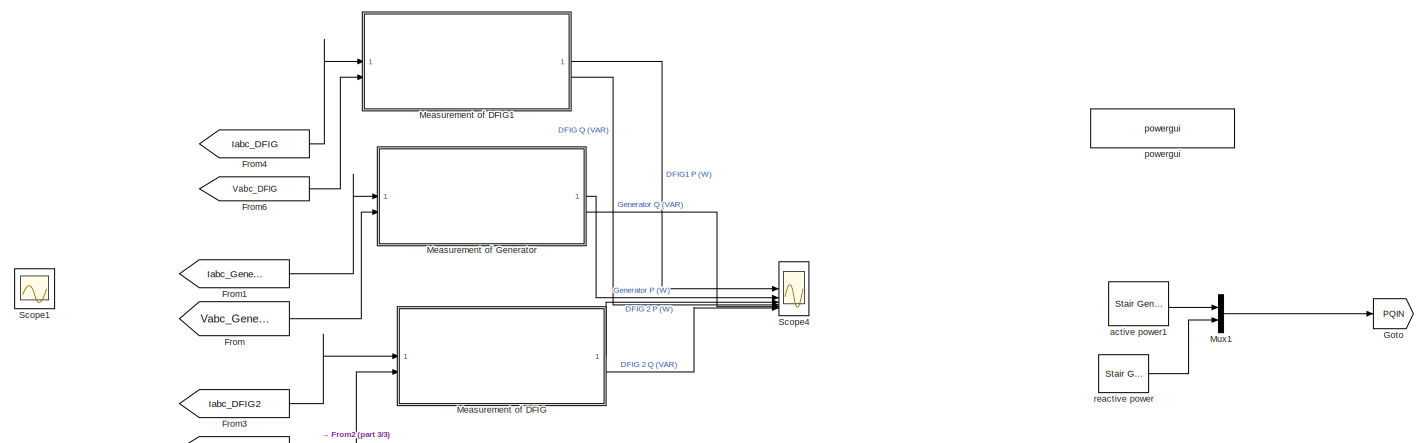
[diagram: root canvas - part 1/3, top left region]
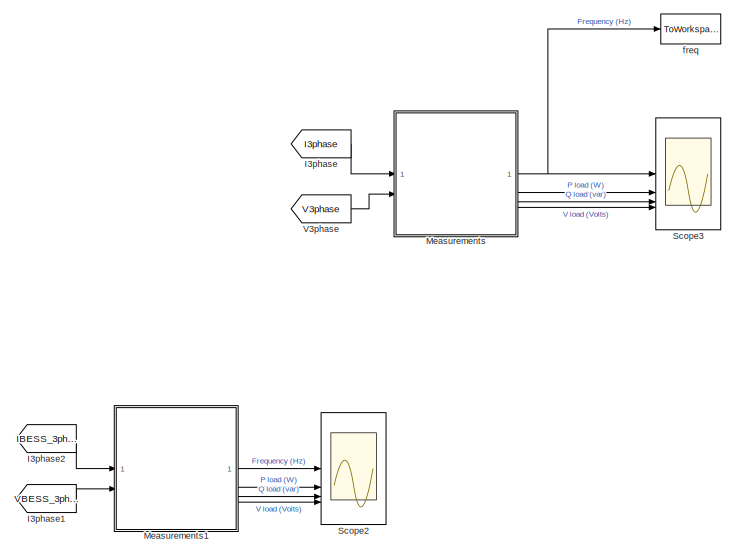
[diagram: root canvas - part 2/3, middle right region]
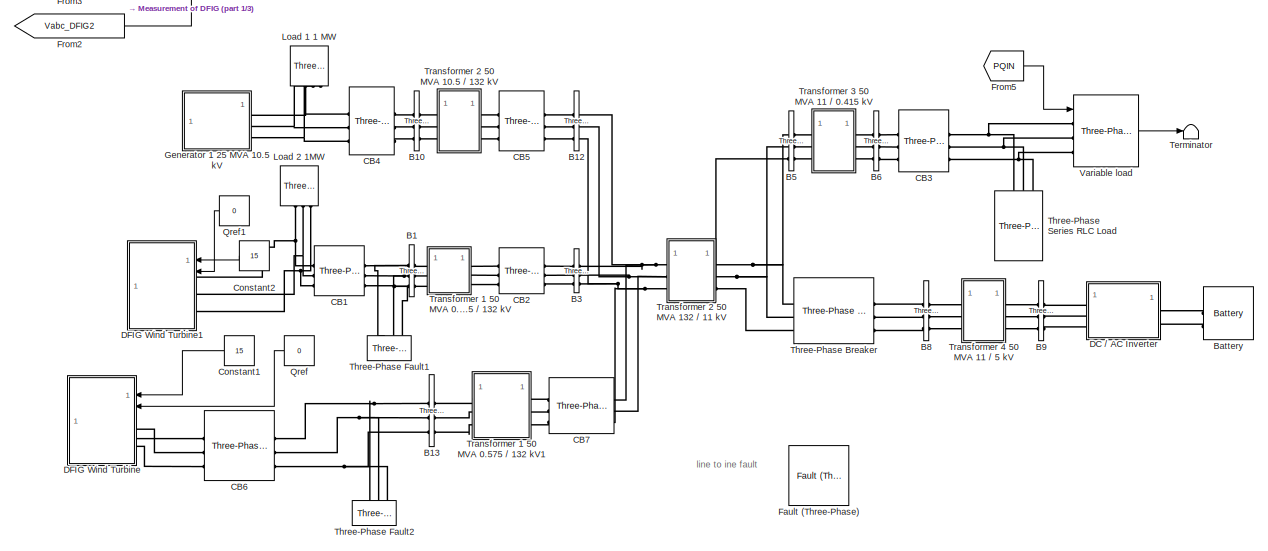
[diagram: root canvas - part 3/3, bottom center region]
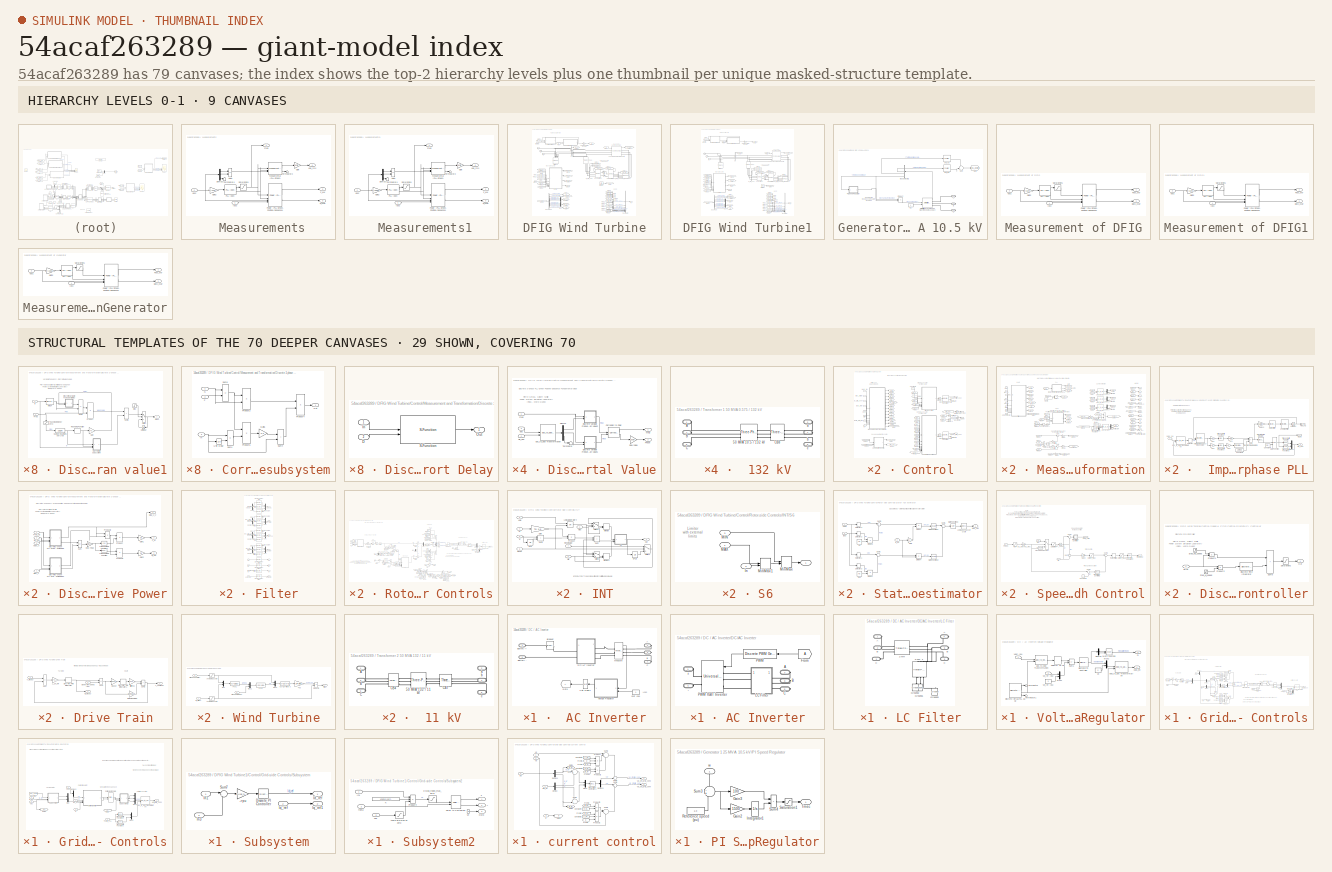
[diagram: thumbnail index - top-2 hierarchy levels (9 canvases) + 29 structural-template representatives of the remaining 70 canvases]
MODEL slx_54acaf263289
KIND model
CONFIG AbsTol = auto
CONFIG EnableMultiTasking = on
CONFIG FixedStep = auto
CONFIG MaxStep = auto
CONFIG MinStep = auto
CONFIG PreLoadFcn = assignin('base','Ts',[2e-6])
CONFIG RelTol = 1e-2
CONFIG SampleTimeConstraint = Unconstrained
CONFIG SolverName = ode45
CONFIG StartTime = 0.0
CONFIG StopTime = 1.05
BLOCK [SubSystem]  Measurements
BLOCK [Sum]  Measurements/Add1
  IconShape = rectangular
  Inputs = +-
BLOCK [Demux]  Measurements/Demux1
  Outputs = 3
BLOCK [Outport]  Measurements/Freq
BLOCK [Reference]  Measurements/Fundamental (PLL-Driven)  REF=spsFundamentalPLLDrivenLib/Fundamental
(PLL-Driven)
  SourceBlock = spsFundamentalPLLDrivenLib/Fundamental\n(PLL-Driven)
  SourceType = Fundamental (PLL-Driven)
BLOCK [Gain]  Measurements/Gain
  Gain = 1/sqrt(2)
BLOCK [Gain]  Measurements/Gain2
  Gain = 1/(415*sqrt(2)/sqrt(3))
BLOCK [Inport]  Measurements/Ipcc
BLOCK [Reference]  Measurements/PLL (3ph)  REF=spsPLL3phLib/PLL
(3ph)
  SourceBlock = spsPLL3phLib/PLL\n(3ph)
  SourceType = PLL (3ph)
BLOCK [Outport]  Measurements/P_kW
  Port = 2
BLOCK [Reference]  Measurements/Power (PLL-Driven, Positive-Sequence)  REF=spsPowerPLLDrivenPositiveSequenceLib/Power
(PLL-Driven,
Positive-Sequence)
  SourceBlock = spsPowerPLLDrivenPositiveSequenceLib/Power\n(PLL-Driven,\nPositive-Sequence)
  SourceType = Power (PLL-Driven, Positive-Sequence)
BLOCK [Outport]  Measurements/Q_kvar
  Port = 3
BLOCK [Saturate]  Measurements/Saturation1
  LowerLimit = 45
  UpperLimit = 55
BLOCK [Terminator]  Measurements/Terminator2
BLOCK [Terminator]  Measurements/Terminator4
BLOCK [Outport]  Measurements/Vab_rms
  Port = 4
BLOCK [Inport]  Measurements/Vpcc
  Port = 2
BLOCK [SubSystem]  Measurements1
BLOCK [Sum]  Measurements1/Add1
  IconShape = rectangular
  Inputs = +-
BLOCK [Demux]  Measurements1/Demux1
  Outputs = 3
BLOCK [Outport]  Measurements1/Freq
BLOCK [Reference]  Measurements1/Fundamental (PLL-Driven)  REF=spsFundamentalPLLDrivenLib/Fundamental
(PLL-Driven)
  SourceBlock = spsFundamentalPLLDrivenLib/Fundamental\n(PLL-Driven)
  SourceType = Fundamental (PLL-Driven)
BLOCK [Gain]  Measurements1/Gain
  Gain = 1/sqrt(2)
BLOCK [Gain]  Measurements1/Gain2
  Gain = 1/(5000*sqrt(2)/sqrt(3))
BLOCK [Inport]  Measurements1/Ipcc
BLOCK [Reference]  Measurements1/PLL (3ph)  REF=spsPLL3phLib/PLL
(3ph)
  SourceBlock = spsPLL3phLib/PLL\n(3ph)
  SourceType = PLL (3ph)
BLOCK [Outport]  Measurements1/P_kW
  Port = 2
BLOCK [Reference]  Measurements1/Power (PLL-Driven, Positive-Sequence)  REF=spsPowerPLLDrivenPositiveSequenceLib/Power
(PLL-Driven,
Positive-Sequence)
  SourceBlock = spsPowerPLLDrivenPositiveSequenceLib/Power\n(PLL-Driven,\nPositive-Sequence)
  SourceType = Power (PLL-Driven, Positive-Sequence)
BLOCK [Outport]  Measurements1/Q_kvar
  Port = 3
BLOCK [Saturate]  Measurements1/Saturation1
  LowerLimit = 45
  UpperLimit = 55
BLOCK [Terminator]  Measurements1/Terminator2
BLOCK [Terminator]  Measurements1/Terminator4
BLOCK [Outport]  Measurements1/Vab_rms
  Port = 4
BLOCK [Inport]  Measurements1/Vpcc
  Port = 2
BLOCK [Reference] B1   REF=spsThreePhaseVIMeasurementLib/Three-Phase
V-I Measurement
  LibrarySourceBlock = sps_lib/Sensors and Measurements/Three-Phase\nV-I Measurement
  SourceBlock = spsThreePhaseVIMeasurementLib/Three-Phase\nV-I Measurement
  SourceType = Three-Phase VI Measurement
BLOCK [Reference] B10  REF=spsThreePhaseVIMeasurementLib/Three-Phase
V-I Measurement
  LibrarySourceBlock = sps_lib/Sensors and Measurements/Three-Phase\nV-I Measurement
  SourceBlock = spsThreePhaseVIMeasurementLib/Three-Phase\nV-I Measurement
  SourceType = Three-Phase VI Measurement
BLOCK [Reference] B12  REF=spsThreePhaseVIMeasurementLib/Three-Phase
V-I Measurement
  LibrarySourceBlock = sps_lib/Sensors and Measurements/Three-Phase\nV-I Measurement
  SourceBlock = spsThreePhaseVIMeasurementLib/Three-Phase\nV-I Measurement
  SourceType = Three-Phase VI Measurement
BLOCK [Reference] B13  REF=spsThreePhaseVIMeasurementLib/Three-Phase
V-I Measurement
  LibrarySourceBlock = sps_lib/Sensors and Measurements/Three-Phase\nV-I Measurement
  SourceBlock = spsThreePhaseVIMeasurementLib/Three-Phase\nV-I Measurement
  SourceType = Three-Phase VI Measurement
BLOCK [Reference] B3   REF=spsThreePhaseVIMeasurementLib/Three-Phase
V-I Measurement
  LibrarySourceBlock = sps_lib/Sensors and Measurements/Three-Phase\nV-I Measurement
  SourceBlock = spsThreePhaseVIMeasurementLib/Three-Phase\nV-I Measurement
  SourceType = Three-Phase VI Measurement
BLOCK [Reference] B5  REF=spsThreePhaseVIMeasurementLib/Three-Phase
V-I Measurement
  LibrarySourceBlock = sps_lib/Sensors and Measurements/Three-Phase\nV-I Measurement
  SourceBlock = spsThreePhaseVIMeasurementLib/Three-Phase\nV-I Measurement
  SourceType = Three-Phase VI Measurement
BLOCK [Reference] B6  REF=spsThreePhaseVIMeasurementLib/Three-Phase
V-I Measurement
  LibrarySourceBlock = sps_lib/Sensors and Measurements/Three-Phase\nV-I Measurement
  SourceBlock = spsThreePhaseVIMeasurementLib/Three-Phase\nV-I Measurement
  SourceType = Three-Phase VI Measurement
BLOCK [Reference] B8  REF=spsThreePhaseVIMeasurementLib/Three-Phase
V-I Measurement
  LibrarySourceBlock = sps_lib/Sensors and Measurements/Three-Phase\nV-I Measurement
  SourceBlock = spsThreePhaseVIMeasurementLib/Three-Phase\nV-I Measurement
  SourceType = Three-Phase VI Measurement
BLOCK [Reference] B9  REF=spsThreePhaseVIMeasurementLib/Three-Phase
V-I Measurement
  LibrarySourceBlock = sps_lib/Sensors and Measurements/Three-Phase\nV-I Measurement
  SourceBlock = spsThreePhaseVIMeasurementLib/Three-Phase\nV-I Measurement
  SourceType = Three-Phase VI Measurement
BLOCK [Reference] Battery  REF=spsBatteryLib/Battery
  LibrarySourceBlock = electricdrivelib/Extra Sources/Battery
  SourceBlock = spsBatteryLib/Battery
  SourceType = Battery
BLOCK [Reference] CB1  REF=spsThreePhaseBreakerLib/Three-Phase Breaker
  LibrarySourceBlock = sps_lib/Power Grid Elements/Three-Phase Breaker
  SourceBlock = spsThreePhaseBreakerLib/Three-Phase Breaker
  SourceType = Three-Phase Breaker
BLOCK [Reference] CB2  REF=spsThreePhaseBreakerLib/Three-Phase Breaker
  LibrarySourceBlock = sps_lib/Power Grid Elements/Three-Phase Breaker
  SourceBlock = spsThreePhaseBreakerLib/Three-Phase Breaker
  SourceType = Three-Phase Breaker
BLOCK [Reference] CB3  REF=spsThreePhaseBreakerLib/Three-Phase Breaker
  LibrarySourceBlock = sps_lib/Power Grid Elements/Three-Phase Breaker
  NameLocation = top
  SourceBlock = spsThreePhaseBreakerLib/Three-Phase Breaker
  SourceType = Three-Phase Breaker
BLOCK [Reference] CB4  REF=spsThreePhaseBreakerLib/Three-Phase Breaker
  LibrarySourceBlock = sps_lib/Power Grid Elements/Three-Phase Breaker
  SourceBlock = spsThreePhaseBreakerLib/Three-Phase Breaker
  SourceType = Three-Phase Breaker
BLOCK [Reference] CB5  REF=spsThreePhaseBreakerLib/Three-Phase Breaker
  LibrarySourceBlock = sps_lib/Power Grid Elements/Three-Phase Breaker
  SourceBlock = spsThreePhaseBreakerLib/Three-Phase Breaker
  SourceType = Three-Phase Breaker
BLOCK [Reference] CB6  REF=spsThreePhaseBreakerLib/Three-Phase Breaker
  LibrarySourceBlock = sps_lib/Power Grid Elements/Three-Phase Breaker
  SourceBlock = spsThreePhaseBreakerLib/Three-Phase Breaker
  SourceType = Three-Phase Breaker
BLOCK [Reference] CB7  REF=spsThreePhaseBreakerLib/Three-Phase Breaker
  LibrarySourceBlock = sps_lib/Power Grid Elements/Three-Phase Breaker
  SourceBlock = spsThreePhaseBreakerLib/Three-Phase Breaker
  SourceType = Three-Phase Breaker
BLOCK [Constant] Constant1
  Value = 15
BLOCK [Constant] Constant2
  Value = 15
BLOCK [SubSystem] DC // AC Inverter
BLOCK [PMIOPort] DC // AC Inverter/A
  Port = 2
  Side = Right
BLOCK [PMIOPort] DC // AC Inverter/B
  Port = 3
  Side = Right
BLOCK [PMIOPort] DC // AC Inverter/Battery +
  Side = Left
BLOCK [PMIOPort] DC // AC Inverter/Battery -
  Port = 5
  Side = Left
BLOCK [Reference] DC // AC Inverter/Breaker  REF=spsBreakerLib/Breaker
  LibrarySourceBlock = sps_lib/Power Grid Elements/Breaker
  SourceBlock = spsBreakerLib/Breaker
  SourceType = Breaker
BLOCK [PMIOPort] DC // AC Inverter/C
  Port = 4
  Side = Right
BLOCK [SubSystem] DC // AC Inverter/DC//AC Inverter
BLOCK [PMIOPort] DC // AC Inverter/DC//AC Inverter/+
  Side = Left
BLOCK [PMIOPort] DC // AC Inverter/DC//AC Inverter/-
  Port = 4
  Side = Left
BLOCK [PMIOPort] DC // AC Inverter/DC//AC Inverter/A
  Port = 2
  Side = Right
BLOCK [PMIOPort] DC // AC Inverter/DC//AC Inverter/B
  Port = 3
  Side = Right
BLOCK [PMIOPort] DC // AC Inverter/DC//AC Inverter/C
  Port = 5
  Side = Right
BLOCK [From] DC // AC Inverter/DC//AC Inverter/From
  IconDisplay = Signal name
  TagVisibility = global
BLOCK [SubSystem] DC // AC Inverter/DC//AC Inverter/LC Filter
BLOCK [Reference] DC // AC Inverter/DC//AC Inverter/LC Filter/2 mF 1  REF=spsThreePhaseSeriesRLCBranchLib/Three-Phase
Series RLC Branch
  AttributesFormatString = \n
  LibrarySourceBlock = sps_lib/Passives/Three-Phase\nSeries RLC Branch
  NameLocation = left
  SourceBlock = spsThreePhaseSeriesRLCBranchLib/Three-Phase\nSeries RLC Branch
  SourceType = Three-Phase Series RLC Branch
BLOCK [Reference] DC // AC Inverter/DC//AC Inverter/LC Filter/2 mH   REF=spsThreePhaseSeriesRLCBranchLib/Three-Phase
Series RLC Branch
  AttributesFormatString = \n
  LibrarySourceBlock = sps_lib/Passives/Three-Phase\nSeries RLC Branch
  SourceBlock = spsThreePhaseSeriesRLCBranchLib/Three-Phase\nSeries RLC Branch
  SourceType = Three-Phase Series RLC Branch
BLOCK [PMIOPort] DC // AC Inverter/DC//AC Inverter/LC Filter/A
  Side = Left
BLOCK [PMIOPort] DC // AC Inverter/DC//AC Inverter/LC Filter/A 
  Port = 4
  Side = Right
BLOCK [PMIOPort] DC // AC Inverter/DC//AC Inverter/LC Filter/B
  Port = 2
  Side = Left
BLOCK [PMIOPort] DC // AC Inverter/DC//AC Inverter/LC Filter/B 
  Port = 5
  Side = Right
BLOCK [PMIOPort] DC // AC Inverter/DC//AC Inverter/LC Filter/C
  Port = 3
  Side = Left
BLOCK [PMIOPort] DC // AC Inverter/DC//AC Inverter/LC Filter/C 
  Port = 6
  Side = Right
BLOCK [Reference] DC // AC Inverter/DC//AC Inverter/LC Filter/Ground1  REF=spsGroundLib/Ground
  LibrarySourceBlock = sps_lib/Utilities/Ground
  NameLocation = right
  SourceBlock = spsGroundLib/Ground
  SourceType = Ground
BLOCK [Reference] DC // AC Inverter/DC//AC Inverter/LC Filter/Ground2  REF=spsGroundLib/Ground
  LibrarySourceBlock = sps_lib/Utilities/Ground
  NameLocation = right
  SourceBlock = spsGroundLib/Ground
  SourceType = Ground
BLOCK [Reference] DC // AC Inverter/DC//AC Inverter/LC Filter/Ground3  REF=spsGroundLib/Ground
  LibrarySourceBlock = sps_lib/Utilities/Ground
  NameLocation = right
  SourceBlock = spsGroundLib/Ground
  SourceType = Ground
BLOCK [Reference] DC // AC Inverter/DC//AC Inverter/PWM  REF=powerlib_extras/Discrete 
Control Blocks/Discrete
PWM Generator
  SourceBlock = powerlib_extras/Discrete \nControl Blocks/Discrete\nPWM Generator
  SourceType = Discrete PWM Generator
BLOCK [Reference] DC // AC Inverter/DC//AC Inverter/PWM IGBT Inverter  REF=spsUniversalBridgeLib/Universal Bridge
  AttributesFormatString = \n
  LibrarySourceBlock = sps_lib/Power Electronics/Universal Bridge
  NameLocation = top
  SourceBlock = spsUniversalBridgeLib/Universal Bridge
  SourceType = Universal Bridge
BLOCK [Goto] DC // AC Inverter/Goto
  IconDisplay = Signal name
  TagVisibility = global
BLOCK [Reference] DC // AC Inverter/Measure  REF=spsThreePhaseVIMeasurementLib/Three-Phase
V-I Measurement
  LibrarySourceBlock = sps_lib/Sensors and Measurements/Three-Phase\nV-I Measurement
  SourceBlock = spsThreePhaseVIMeasurementLib/Three-Phase\nV-I Measurement
  SourceType = Three-Phase VI Measurement
BLOCK [UnitDelay] DC // AC Inverter/Unit Delay1
  HasFrameUpgradeWarning = on
  NameLocation = top
  SampleTime = Ts
BLOCK [SubSystem] DC // AC Inverter/Voltage Regulator
  NameLocation = top
BLOCK [Demux] DC // AC Inverter/Voltage Regulator/Demux
  DisplayOption = none
  Outputs = 2
BLOCK [Reference] DC // AC Inverter/Voltage Regulator/Discrete PI Controller  REF=powerlib_extras/Discrete 
Control Blocks/Discrete
PI Controller
  SourceBlock = powerlib_extras/Discrete \nControl Blocks/Discrete\nPI Controller
  SourceType = Discrete PI Controller
BLOCK [Reference] DC // AC Inverter/Voltage Regulator/Discrete Virtual PLL 50 Hz  REF=powerlib_extras/Discrete 
Control Blocks/Discrete
Virtual PLL
  SourceBlock = powerlib_extras/Discrete \nControl Blocks/Discrete\nVirtual PLL
  SourceType = Discrete Virtual PLL
BLOCK [Math] DC // AC Inverter/Voltage Regulator/Math Function
  Operator = hypot
  SignedPower = on
BLOCK [Mux] DC // AC Inverter/Voltage Regulator/Mux1
  DisplayOption = bar
  Inputs = 2
BLOCK [Mux] DC // AC Inverter/Voltage Regulator/Mux2
  DisplayOption = bar
  Inputs = 2
BLOCK [Selector] DC // AC Inverter/Voltage Regulator/Selector Vd Vq
  IndexOptions = Index vector (dialog)
  Indices = [1 2]
  InputPortWidth = 3
  OutputSizes = 1
BLOCK [Sum] DC // AC Inverter/Voltage Regulator/Sum1
  IconShape = rectangular
  InputSameDT = on
  Inputs = -+
  OutDataTypeStr = Inherit: Same as first input
  SaturateOnIntegerOverflow = on
BLOCK [Terminator] DC // AC Inverter/Voltage Regulator/Terminator
BLOCK [Terminator] DC // AC Inverter/Voltage Regulator/Terminator1
BLOCK [Constant] DC // AC Inverter/Voltage Regulator/V0
  Value = 0
BLOCK [Inport] DC // AC Inverter/Voltage Regulator/Vabc (pu)
BLOCK [Outport] DC // AC Inverter/Voltage Regulator/Vabc_inv
BLOCK [Inport] DC // AC Inverter/Voltage Regulator/Vd_ref (pu)
  Port = 2
BLOCK [Constant] DC // AC Inverter/Voltage Regulator/Vq_ref (pu)
  Value = 0
BLOCK [Reference] DC // AC Inverter/Voltage Regulator/abc_to_dq0 Transformation  REF=powerlib_extras/Measurements/abc_to_dq0
Transformation
  SourceBlock = powerlib_extras/Measurements/abc_to_dq0\nTransformation
  SourceType = abc to dq0 Transformation
BLOCK [Reference] DC // AC Inverter/Voltage Regulator/dq0_to_abc Transformation  REF=powerlib_extras/Measurements/dq0_to_abc
Transformation
  SourceBlock = powerlib_extras/Measurements/dq0_to_abc\nTransformation
  SourceType = dq0 to abc Transformation
BLOCK [Outport] DC // AC Inverter/Voltage Regulator/m
  Port = 2
BLOCK [Constant] DC // AC Inverter/Vref (pu) 
  NameLocation = top
BLOCK [SubSystem] DFIG Wind Turbine
  LoadFcn = %find_system(gcs,'FollowLinks', 'on', 'LookUnderMasks', 'all');
BLOCK [PMIOPort] DFIG Wind Turbine/A
  Side = Left
  Tag = PMCPort
BLOCK [Reference] DFIG Wind Turbine/Asynchronous Machine pu Units  REF=spsAsynchronousMachinepuUnitsLib/Asynchronous Machine
pu Units
  LibrarySourceBlock = sps_lib/Electrical Machines/Asynchronous Machine\npu Units
  SourceBlock = spsAsynchronousMachinepuUnitsLib/Asynchronous Machine\npu Units
  SourceType = Asynchronous Machine
BLOCK [PMIOPort] DFIG Wind Turbine/B
  Port = 2
  Side = Left
  Tag = PMCPort
BLOCK [Reference] DFIG Wind Turbine/B1  REF=spsThreePhaseVIMeasurementLib/Three-Phase
V-I Measurement
  LibrarySourceBlock = sps_lib/Sensors and Measurements/Three-Phase\nV-I Measurement
  SourceBlock = spsThreePhaseVIMeasurementLib/Three-Phase\nV-I Measurement
  SourceType = Three-Phase VI Measurement
BLOCK [Reference] DFIG Wind Turbine/B_grid_conv  REF=spsThreePhaseVIMeasurementLib/Three-Phase
V-I Measurement
  LibrarySourceBlock = sps_lib/Sensors and Measurements/Three-Phase\nV-I Measurement
  SourceBlock = spsThreePhaseVIMeasurementLib/Three-Phase\nV-I Measurement
  SourceType = Three-Phase VI Measurement
BLOCK [Reference] DFIG Wind Turbine/B_rotor_conv  REF=spsThreePhaseVIMeasurementLib/Three-Phase
V-I Measurement
  LibrarySourceBlock = sps_lib/Sensors and Measurements/Three-Phase\nV-I Measurement
  SourceBlock = spsThreePhaseVIMeasurementLib/Three-Phase\nV-I Measurement
  SourceType = Three-Phase VI Measurement
BLOCK [BusCreator] DFIG Wind Turbine/Bus Creator
  DisplayOption = bar
  InheritFromInputs = on
  Inputs = 13
BLOCK [BusSelector] DFIG Wind Turbine/Bus Selector
  OutputSignals = Mechanical.Rotor speed (wm),Mechanical.Rotor angle thetam (rad),Stator measurements.Stator current is_a (pu),Stator measurements.Stator current is_b (pu),Stator measurements.Stator current is_c (pu),Rotor measurements.Rotor current ir_a (pu),Rotor measurements.Rotor current ir_b (pu),Rotor measurements.Rotor current ir_c (pu),Mechanical.Electromagnetic torque Te (pu)
BLOCK [PMIOPort] DFIG Wind Turbine/C
  Port = 3
  Side = Left
  Tag = PMCPort
BLOCK [Reference] DFIG Wind Turbine/C1  REF=spsSeriesRLCBranchLib/Series RLC Branch
  LibrarySourceBlock = sps_lib/Passives/Series RLC Branch
  NameLocation = left
  SourceBlock = spsSeriesRLCBranchLib/Series RLC Branch
  SourceType = Series RLC Branch
BLOCK [Reference] DFIG Wind Turbine/Choke   REF=spsThreePhaseSeriesRLCBranchLib/Three-Phase
Series RLC Branch
  AttributesFormatString = \n
  LibrarySourceBlock = sps_lib/Passives/Three-Phase\nSeries RLC Branch
  NameLocation = left
  SourceBlock = spsThreePhaseSeriesRLCBranchLib/Three-Phase\nSeries RLC Branch
  SourceType = Three-Phase Series RLC Branch
BLOCK [SubSystem] DFIG Wind Turbine/Control
BLOCK [BusCreator] DFIG Wind Turbine/Control/Bus Creator
  DisplayOption = bar
  InheritFromInputs = on
  Inputs = 2
BLOCK [Constant] DFIG Wind Turbine/Control/Constant1
  Value = 0
BLOCK [Reference] DFIG Wind Turbine/Control/Discrete 3-phase PWM Generator  REF=powerlib_extras/Discrete 
Control Blocks/Discrete 3-phase
PWM Generator
  SourceBlock = powerlib_extras/Discrete \nControl Blocks/Discrete 3-phase\nPWM Generator
  SourceType = Discrete 3-phase PWM Generator (2- or 3-level)
BLOCK [Reference] DFIG Wind Turbine/Control/Discrete 3-phase PWM Generator   REF=powerlib_extras/Discrete 
Control Blocks/Discrete 3-phase
PWM Generator
  SourceBlock = powerlib_extras/Discrete \nControl Blocks/Discrete 3-phase\nPWM Generator
  SourceType = Discrete 3-phase PWM Generator (2- or 3-level)
BLOCK [From] DFIG Wind Turbine/Control/From1
  CloseFcn = tagdialog Close
  GotoTag = Idq_gc
BLOCK [From] DFIG Wind Turbine/Control/From10
  CloseFcn = tagdialog Close
  GotoTag = r_angle_transform
BLOCK [From] DFIG Wind Turbine/Control/From11
  CloseFcn = tagdialog Close
  GotoTag = Pitch_deg
BLOCK [From] DFIG Wind Turbine/Control/From12
  CloseFcn = tagdialog Close
  GotoTag = wr
BLOCK [From] DFIG Wind Turbine/Control/From13
  CloseFcn = tagdialog Close
  GotoTag = Qmeas
BLOCK [From] DFIG Wind Turbine/Control/From14
  CloseFcn = tagdialog Close
  GotoTag = Vmeas
BLOCK [From] DFIG Wind Turbine/Control/From16
  CloseFcn = tagdialog Close
  GotoTag = Pmeas
BLOCK [From] DFIG Wind Turbine/Control/From17
  CloseFcn = tagdialog Close
  GotoTag = Qmeas
BLOCK [From] DFIG Wind Turbine/Control/From18
  CloseFcn = tagdialog Close
  GotoTag = Vdqs
BLOCK [From] DFIG Wind Turbine/Control/From2
  CloseFcn = tagdialog Close
  GotoTag = Vdc_meas_V
BLOCK [From] DFIG Wind Turbine/Control/From20
  CloseFcn = tagdialog Close
  GotoTag = Idqr
BLOCK [From] DFIG Wind Turbine/Control/From21
  CloseFcn = tagdialog Close
  GotoTag = Idqs
BLOCK [From] DFIG Wind Turbine/Control/From22
  CloseFcn = tagdialog Close
  GotoTag = w
BLOCK [From] DFIG Wind Turbine/Control/From23
  CloseFcn = tagdialog Close
  GotoTag = Pmeas
BLOCK [From] DFIG Wind Turbine/Control/From3
  CloseFcn = tagdialog Close
  GotoTag = Vdc_meas_V
BLOCK [From] DFIG Wind Turbine/Control/From4
  CloseFcn = tagdialog Close
  GotoTag = Vdqs
BLOCK [From] DFIG Wind Turbine/Control/From5
  CloseFcn = tagdialog Close
  GotoTag = w
BLOCK [From] DFIG Wind Turbine/Control/From6
  CloseFcn = tagdialog Close
  GotoTag = wr
BLOCK [From] DFIG Wind Turbine/Control/From7
  CloseFcn = tagdialog Close
  GotoTag = Tem_cmd
BLOCK [From] DFIG Wind Turbine/Control/From8
  CloseFcn = tagdialog Close
  GotoTag = Qref
BLOCK [From] DFIG Wind Turbine/Control/From9
  CloseFcn = tagdialog Close
  GotoTag = Theta_PLL
BLOCK [Goto] DFIG Wind Turbine/Control/Goto1
  GotoTag = Theta_PLL
BLOCK [Goto] DFIG Wind Turbine/Control/Goto10
  GotoTag = Idq_gc
BLOCK [Goto] DFIG Wind Turbine/Control/Goto11
  GotoTag = Idqs
BLOCK [Goto] DFIG Wind Turbine/Control/Goto12
  GotoTag = Idqr
BLOCK [Goto] DFIG Wind Turbine/Control/Goto13
  GotoTag = w
BLOCK [Goto] DFIG Wind Turbine/Control/Goto14
  GotoTag = Vmeas
BLOCK [Goto] DFIG Wind Turbine/Control/Goto15
  GotoTag = Pmeas
BLOCK [Goto] DFIG Wind Turbine/Control/Goto16
  GotoTag = Pitch_deg
BLOCK [Goto] DFIG Wind Turbine/Control/Goto17
  GotoTag = Qmeas
BLOCK [Goto] DFIG Wind Turbine/Control/Goto2
  GotoTag = Vdc_meas_V
BLOCK [Goto] DFIG Wind Turbine/Control/Goto4
  GotoTag = wr
BLOCK [Goto] DFIG Wind Turbine/Control/Goto5
  GotoTag = Tem_cmd
BLOCK [Goto] DFIG Wind Turbine/Control/Goto6
  GotoTag = Qref
BLOCK [Goto] DFIG Wind Turbine/Control/Goto7
  GotoTag = r_angle_transform
BLOCK [Goto] DFIG Wind Turbine/Control/Goto9
  GotoTag = Vdqs
BLOCK [SubSystem] DFIG Wind Turbine/Control/Grid-side Controls
BLOCK [Gain] DFIG Wind Turbine/Control/Grid-side Controls/->pu
  Gain = 1/Vdc_nom
BLOCK [Saturate] DFIG Wind Turbine/Control/Grid-side Controls/0-Mod_index_max_grid
  LowerLimit = 0
  NameLocation = top
  UpperLimit = Mod_index_max_grid
BLOCK [Saturate] DFIG Wind Turbine/Control/Grid-side Controls/Avoid division by zero
  LowerLimit = 1e-6
  UpperLimit = inf
BLOCK [Reference] DFIG Wind Turbine/Control/Grid-side Controls/Cartesian to Polar1  REF=simulink_extras/Transformations/Cartesian to
Polar
  SourceBlock = simulink_extras/Transformations/Cartesian to\nPolar
  SourceType = Cart2Polar
BLOCK [Constant] DFIG Wind Turbine/Control/Grid-side Controls/Constant1
  Value = L_RL
BLOCK [Constant] DFIG Wind Turbine/Control/Grid-side Controls/Constant2
  Value = L_RL
BLOCK [Constant] DFIG Wind Turbine/Control/Grid-side Controls/Constant3
  Value = R_RL
BLOCK [Constant] DFIG Wind Turbine/Control/Grid-side Controls/Constant4
  Value = R_RL
BLOCK [Demux] DFIG Wind Turbine/Control/Grid-side Controls/Demux
  DisplayOption = none
  Outputs = 2
BLOCK [Demux] DFIG Wind Turbine/Control/Grid-side Controls/Demux1
  DisplayOption = none
  Outputs = 2
BLOCK [Demux] DFIG Wind Turbine/Control/Grid-side Controls/Demux2
  DisplayOption = none
  Outputs = 2
BLOCK [Demux] DFIG Wind Turbine/Control/Grid-side Controls/Demux3
  DisplayOption = none
  Outputs = 2
BLOCK [Reference] DFIG Wind Turbine/Control/Grid-side Controls/Discrete PI Controller  REF=powerlib_extras/Discrete 
Control Blocks/Discrete
PI Controller
  SourceBlock = powerlib_extras/Discrete \nControl Blocks/Discrete\nPI Controller
  SourceType = Discrete PI Controller
BLOCK [Reference] DFIG Wind Turbine/Control/Grid-side Controls/Discrete PI Controller1  REF=powerlib_extras/Discrete 
Control Blocks/Discrete
PI Controller
  SourceBlock = powerlib_extras/Discrete \nControl Blocks/Discrete\nPI Controller
  SourceType = Discrete PI Controller
BLOCK [From] DFIG Wind Turbine/Control/Grid-side Controls/From10
  CloseFcn = tagdialog Close
  GotoTag = id_ref
BLOCK [From] DFIG Wind Turbine/Control/Grid-side Controls/From2
  CloseFcn = tagdialog Close
  GotoTag = w
BLOCK [From] DFIG Wind Turbine/Control/Grid-side Controls/From3
  CloseFcn = tagdialog Close
  GotoTag = iq_ref
BLOCK [From] DFIG Wind Turbine/Control/Grid-side Controls/From4
  CloseFcn = tagdialog Close
  GotoTag = iq_ref
BLOCK [From] DFIG Wind Turbine/Control/Grid-side Controls/From5
  CloseFcn = tagdialog Close
  GotoTag = w
BLOCK [From] DFIG Wind Turbine/Control/Grid-side Controls/From6
  CloseFcn = tagdialog Close
  GotoTag = id_ref
BLOCK [From] DFIG Wind Turbine/Control/Grid-side Controls/From7
  CloseFcn = tagdialog Close
  GotoTag = Vdc
BLOCK [Goto] DFIG Wind Turbine/Control/Grid-side Controls/Goto2
  GotoTag = iq_ref
BLOCK [Goto] DFIG Wind Turbine/Control/Grid-side Controls/Goto3
  GotoTag = id_ref
BLOCK [Goto] DFIG Wind Turbine/Control/Grid-side Controls/Goto4
  GotoTag = w
BLOCK [Goto] DFIG Wind Turbine/Control/Grid-side Controls/Goto5
  GotoTag = Vdc
BLOCK [Inport] DFIG Wind Turbine/Control/Grid-side Controls/Idq_gc
  Port = 2
BLOCK [Inport] DFIG Wind Turbine/Control/Grid-side Controls/Iq_ref
BLOCK [Constant] DFIG Wind Turbine/Control/Grid-side Controls/K
  Value = Vnom*2*sqrt(2/3)
BLOCK [Mux] DFIG Wind Turbine/Control/Grid-side Controls/Mux
  DisplayOption = bar
  Inputs = 2
BLOCK [Mux] DFIG Wind Turbine/Control/Grid-side Controls/Mux2
  DisplayOption = bar
  Inputs = 2
BLOCK [Mux] DFIG Wind Turbine/Control/Grid-side Controls/Mux4
  DisplayOption = bar
  Inputs = 3
BLOCK [Mux] DFIG Wind Turbine/Control/Grid-side Controls/Mux5
  DisplayOption = bar
  Inputs = 2
BLOCK [Reference] DFIG Wind Turbine/Control/Grid-side Controls/Polar to Cartesian  REF=simulink_extras/Transformations/Polar to
Cartesian
  SourceBlock = simulink_extras/Transformations/Polar to\nCartesian
  SourceType = Polar2Cart
BLOCK [Product] DFIG Wind Turbine/Control/Grid-side Controls/Product
  InputSameDT = on
  Inputs = 3
  OutDataTypeStr = Inherit: Same as first input
  SaturateOnIntegerOverflow = on
BLOCK [Product] DFIG Wind Turbine/Control/Grid-side Controls/Product1
  InputSameDT = on
  Inputs = 3
  OutDataTypeStr = Inherit: Same as first input
  SaturateOnIntegerOverflow = on
BLOCK [Product] DFIG Wind Turbine/Control/Grid-side Controls/Product2
  InputSameDT = on
  OutDataTypeStr = Inherit: Same as first input
  SaturateOnIntegerOverflow = on
BLOCK [Product] DFIG Wind Turbine/Control/Grid-side Controls/Product3
  InputSameDT = on
  OutDataTypeStr = Inherit: Same as first input
  SaturateOnIntegerOverflow = on
BLOCK [Product] DFIG Wind Turbine/Control/Grid-side Controls/Product4
  InputSameDT = on
  Inputs = **/
  OutDataTypeStr = Inherit: Same as first input
  SaturateOnIntegerOverflow = on
BLOCK [Sum] DFIG Wind Turbine/Control/Grid-side Controls/Sum1
  InputSameDT = on
  Inputs = +-
  OutDataTypeStr = Inherit: Same as first input
  SaturateOnIntegerOverflow = on
BLOCK [Sum] DFIG Wind Turbine/Control/Grid-side Controls/Sum2
  InputSameDT = on
  Inputs = -+|
  OutDataTypeStr = Inherit: Same as first input
  SaturateOnIntegerOverflow = on
BLOCK [Sum] DFIG Wind Turbine/Control/Grid-side Controls/Sum3
  InputSameDT = on
  Inputs = ||++-
  OutDataTypeStr = Inherit: Same as first input
  SaturateOnIntegerOverflow = on
BLOCK [Sum] DFIG Wind Turbine/Control/Grid-side Controls/Sum4
  InputSameDT = on
  Inputs = |+-
  OutDataTypeStr = Inherit: Same as first input
  SaturateOnIntegerOverflow = on
BLOCK [Sum] DFIG Wind Turbine/Control/Grid-side Controls/Sum5
  InputSameDT = on
  Inputs = |--+
  OutDataTypeStr = Inherit: Same as first input
  SaturateOnIntegerOverflow = on
BLOCK [Sum] DFIG Wind Turbine/Control/Grid-side Controls/Sum6
  InputSameDT = on
  Inputs = |-+
  OutDataTypeStr = Inherit: Same as first input
  SaturateOnIntegerOverflow = on
BLOCK [Sum] DFIG Wind Turbine/Control/Grid-side Controls/Sum7
  InputSameDT = on
  Inputs = |+-
  OutDataTypeStr = Inherit: Same as first input
  SaturateOnIntegerOverflow = on
BLOCK [Inport] DFIG Wind Turbine/Control/Grid-side Controls/Theta_PLL
  Port = 6
BLOCK [Trigonometry] DFIG Wind Turbine/Control/Grid-side Controls/Trigonometric Function2
BLOCK [Trigonometry] DFIG Wind Turbine/Control/Grid-side Controls/Trigonometric Function3
  Operator = cos
BLOCK [Outport] DFIG Wind Turbine/Control/Grid-side Controls/Uctrl_grid_conv
BLOCK [Constant] DFIG Wind Turbine/Control/Grid-side Controls/V0
  Value = 0
BLOCK [Inport] DFIG Wind Turbine/Control/Grid-side Controls/Vdc
  Port = 5
BLOCK [Constant] DFIG Wind Turbine/Control/Grid-side Controls/Vdc_ref (V)
  NameLocation = top
  Value = Vdc_nom
BLOCK [Inport] DFIG Wind Turbine/Control/Grid-side Controls/Vdqs
  Port = 4
BLOCK [Reference] DFIG Wind Turbine/Control/Grid-side Controls/dq0_to_abc Transformation  REF=powerlib_extras/Measurements/dq0_to_abc
Transformation
  SourceBlock = powerlib_extras/Measurements/dq0_to_abc\nTransformation
  SourceType = dq0 to abc Transformation
BLOCK [Inport] DFIG Wind Turbine/Control/Grid-side Controls/w
  Port = 3
BLOCK [Inport] DFIG Wind Turbine/Control/Iabc_grid_conv
  Port = 3
BLOCK [Inport] DFIG Wind Turbine/Control/Iabc_rotor
  Port = 4
BLOCK [Inport] DFIG Wind Turbine/Control/Iabc_stator
  Port = 2
BLOCK [SubSystem] DFIG Wind Turbine/Control/Measurement and Transformation
BLOCK [Reference] DFIG Wind Turbine/Control/Measurement and Transformation/   abc_to_dq0      REF=powerlib_extras/Measurements/abc_to_dq0
Transformation
  SourceBlock = powerlib_extras/Measurements/abc_to_dq0\nTransformation
  SourceType = abc to dq0 Transformation
BLOCK [SubSystem] DFIG Wind Turbine/Control/Measurement and Transformation/ Improved Discrete 3-phase PLL
  OpenFcn = power_openblockproxy();
BLOCK [Reference] DFIG Wind Turbine/Control/Measurement and Transformation/ Improved Discrete 3-phase PLL/2nd-Order Filter  REF=powerlib_extras/Discrete 
Control Blocks/Discrete 
2nd-Order
Filter
  SourceBlock = powerlib_extras/Discrete \nControl Blocks/Discrete \n2nd-Order\nFilter
  SourceType = Discrete 2nd-Order Filter
BLOCK [Constant] DFIG Wind Turbine/Control/Measurement and Transformation/ Improved Discrete 3-phase PLL/Constant1
  NameLocation = top
  Value = 2*pi*Finit
BLOCK [Constant] DFIG Wind Turbine/Control/Measurement and Transformation/ Improved Discrete 3-phase PLL/Constant4
  NameLocation = top
  Value = 2*pi
BLOCK [DiscreteIntegrator] DFIG Wind Turbine/Control/Measurement and Transformation/ Improved Discrete 3-phase PLL/Discrete-Time Integrator
  ICPrevOutput = DiscIntNeverNeededParam
  ICPrevScaledInput = DiscIntNeverNeededParam
  SampleTime = Ts
BLOCK [DiscreteIntegrator] DFIG Wind Turbine/Control/Measurement and Transformation/ Improved Discrete 3-phase PLL/Discrete-Time Integrator1
  ICPrevOutput = DiscIntNeverNeededParam
  ICPrevScaledInput = DiscIntNeverNeededParam
  LimitOutput = on
  LowerSaturationLimit = -2*pi*5
  SampleTime = Ts
  UpperSaturationLimit = 2*pi*5
  gainval = 1
BLOCK [Outport] DFIG Wind Turbine/Control/Measurement and Transformation/ Improved Discrete 3-phase PLL/Freq_Hz
BLOCK [Gain] DFIG Wind Turbine/Control/Measurement and Transformation/ Improved Discrete 3-phase PLL/Gain10
  Gain = 1/2/pi
  OutDataTypeStr = Inherit: Same as input
  ParamDataTypeStr = Inherit: Same as input
  SaturateOnIntegerOverflow = on
BLOCK [Gain] DFIG Wind Turbine/Control/Measurement and Transformation/ Improved Discrete 3-phase PLL/Kp1
  Gain = Kp2
  OutDataTypeStr = Inherit: Same as input
  ParamDataTypeStr = Inherit: Same as input
  SaturateOnIntegerOverflow = on
BLOCK [Gain] DFIG Wind Turbine/Control/Measurement and Transformation/ Improved Discrete 3-phase PLL/Kp2
  Gain = Ki2
  OutDataTypeStr = Inherit: Same as input
  ParamDataTypeStr = Inherit: Same as input
  SaturateOnIntegerOverflow = on
BLOCK [Gain] DFIG Wind Turbine/Control/Measurement and Transformation/ Improved Discrete 3-phase PLL/Kp3
  Gain = Ki1
  OutDataTypeStr = Inherit: Same as input
  ParamDataTypeStr = Inherit: Same as input
  SaturateOnIntegerOverflow = on
BLOCK [Gain] DFIG Wind Turbine/Control/Measurement and Transformation/ Improved Discrete 3-phase PLL/Kp4
  Gain = Kp1
  OutDataTypeStr = Inherit: Same as input
  ParamDataTypeStr = Inherit: Same as input
  SaturateOnIntegerOverflow = on
BLOCK [Math] DFIG Wind Turbine/Control/Measurement and Transformation/ Improved Discrete 3-phase PLL/Math Function
  Operator = mod
  SignedPower = on
BLOCK [Mux] DFIG Wind Turbine/Control/Measurement and Transformation/ Improved Discrete 3-phase PLL/Mux2
  DisplayOption = bar
  Inputs = 2
BLOCK [Reference] DFIG Wind Turbine/Control/Measurement and Transformation/ Improved Discrete 3-phase PLL/Rate Limiter  REF=powerlib_extras/Discrete 
Control Blocks/Discrete
Rate Limiter
  SourceBlock = powerlib_extras/Discrete \nControl Blocks/Discrete\nRate Limiter
  SourceType = Discrete Rate Limiter
BLOCK [Selector] DFIG Wind Turbine/Control/Measurement and Transformation/ Improved Discrete 3-phase PLL/Selector
  IndexOptions = Index vector (dialog)
  Indices = 2
  InputPortWidth = 3
  OutputSizes = 1
BLOCK [Outport] DFIG Wind Turbine/Control/Measurement and Transformation/ Improved Discrete 3-phase PLL/Sin_Cos
  Port = 3
BLOCK [Sum] DFIG Wind Turbine/Control/Measurement and Transformation/ Improved Discrete 3-phase PLL/Sum
  IconShape = rectangular
  Inputs = +++
BLOCK [Trigonometry] DFIG Wind Turbine/Control/Measurement and Transformation/ Improved Discrete 3-phase PLL/Trigonometric Function
BLOCK [Trigonometry] DFIG Wind Turbine/Control/Measurement and Transformation/ Improved Discrete 3-phase PLL/Trigonometric Function1
  Operator = atan
BLOCK [Trigonometry] DFIG Wind Turbine/Control/Measurement and Transformation/ Improved Discrete 3-phase PLL/Trigonometric Function2
  Operator = cos
BLOCK [Trigonometry] DFIG Wind Turbine/Control/Measurement and Transformation/ Improved Discrete 3-phase PLL/Trigonometric Function3
  Operator = atan
BLOCK [UnitDelay] DFIG Wind Turbine/Control/Measurement and Transformation/ Improved Discrete 3-phase PLL/Unit Delay
  HasFrameUpgradeWarning = on
  InitialCondition = Finit
  SampleTime = Ts
BLOCK [Inport] DFIG Wind Turbine/Control/Measurement and Transformation/ Improved Discrete 3-phase PLL/Vabc_pu
  PortDimensions = 3
BLOCK [Reference] DFIG Wind Turbine/Control/Measurement and Transformation/ Improved Discrete 3-phase PLL/Variable Frequency Mean value  REF=powerlib_extras/Discrete
Measurements/Discrete
Variable Frequency
Mean value
  SourceBlock = powerlib_extras/Discrete\nMeasurements/Discrete\nVariable Frequency\nMean value
  SourceType = Discrete Variable-Frequency Mean Value
BLOCK [Reference] DFIG Wind Turbine/Control/Measurement and Transformation/ Improved Discrete 3-phase PLL/abc_to_dq0 Transformation  REF=powerlib_extras/Measurements/abc_to_dq0
Transformation
  SourceBlock = powerlib_extras/Measurements/abc_to_dq0\nTransformation
  SourceType = abc to dq0 Transformation
BLOCK [Outport] DFIG Wind Turbine/Control/Measurement and Transformation/ Improved Discrete 3-phase PLL/wt_rad
  Port = 2
BLOCK [Gain] DFIG Wind Turbine/Control/Measurement and Transformation/# pairs of poles
  Gain = p
  NameLocation = top
  OutDataTypeStr = Inherit: Same as input
  ParamDataTypeStr = Inherit: Same as input
  SaturateOnIntegerOverflow = on
BLOCK [Gain] DFIG Wind Turbine/Control/Measurement and Transformation/C_var_filter
  Gain = C_var_filter
  OutDataTypeStr = Inherit: Same as input
  ParamDataTypeStr = Inherit: Same as input
  SaturateOnIntegerOverflow = on
BLOCK [Gain] DFIG Wind Turbine/Control/Measurement and Transformation/C_var_filter//Q
  Gain = C_var_filter/Q_filter
  NameLocation = top
  OutDataTypeStr = Inherit: Same as input
  ParamDataTypeStr = Inherit: Same as input
  SaturateOnIntegerOverflow = on
BLOCK [Constant] DFIG Wind Turbine/Control/Measurement and Transformation/Constant4
  NameLocation = top
  Value = 2*pi
BLOCK [Demux] DFIG Wind Turbine/Control/Measurement and Transformation/Demux1
  DisplayOption = none
  Outputs = [2 1]
BLOCK [Demux] DFIG Wind Turbine/Control/Measurement and Transformation/Demux2
  DisplayOption = none
  Outputs = [2 1]
BLOCK [Demux] DFIG Wind Turbine/Control/Measurement and Transformation/Demux3
  DisplayOption = none
  Outputs = [2 1]
BLOCK [Demux] DFIG Wind Turbine/Control/Measurement and Transformation/Demux4
  DisplayOption = none
  Outputs = [2 1]
BLOCK [SubSystem] DFIG Wind Turbine/Control/Measurement and Transformation/Discrete 3-phase PLL-Driven Positive-Sequence Active & Reactive Power
  OpenFcn = power_openblockproxy();
BLOCK [Gain] DFIG Wind Turbine/Control/Measurement and Transformation/Discrete 3-phase PLL-Driven Positive-Sequence Active & Reactive Power/Deg->Rad
  Gain = pi/180
  OutDataTypeStr = Inherit: Same as input
  ParamDataTypeStr = Inherit: Same as input
  SaturateOnIntegerOverflow = on
BLOCK [SubSystem] DFIG Wind Turbine/Control/Measurement and Transformation/Discrete 3-phase PLL-Driven Positive-Sequence Active & Reactive Power/Discrete 3-phase PLL-Driven Positive-Sequence Fundamental Value
  OpenFcn = power_openblockproxy();
BLOCK [Reference] DFIG Wind Turbine/Control/Measurement and Transformation/Discrete 3-phase PLL-Driven Positive-Sequence Active & Reactive Power/Discrete 3-phase PLL-Driven Positive-Sequence Fundamental Value/Cartesian to Polar  REF=simulink_extras/Transformations/Cartesian to
Polar
  SourceBlock = simulink_extras/Transformations/Cartesian to\nPolar
  SourceType = Cart2Polar
BLOCK [Demux] DFIG Wind Turbine/Control/Measurement and Transformation/Discrete 3-phase PLL-Driven Positive-Sequence Active & Reactive Power/Discrete 3-phase PLL-Driven Positive-Sequence Fundamental Value/Demux
  DisplayOption = none
  Outputs = 3
BLOCK [SubSystem] DFIG Wind Turbine/Control/Measurement and Transformation/Discrete 3-phase PLL-Driven Positive-Sequence Active & Reactive Power/Discrete 3-phase PLL-Driven Positive-Sequence Fundamental Value/Discrete Variable Frequency Mean value1
  OpenFcn = power_openblockproxy();
BLOCK [SubSystem] DFIG Wind Turbine/Control/Measurement and Transformation/Discrete 3-phase PLL-Driven Positive-Sequence Active & Reactive Power/Discrete 3-phase PLL-Driven Positive-Sequence Fundamental Value/Discrete Variable Frequency Mean value1/Correction subsystem
BLOCK [Inport] DFIG Wind Turbine/Control/Measurement and Transformation/Discrete 3-phase PLL-Driven Positive-Sequence Active & Reactive Power/Discrete 3-phase PLL-Driven Positive-Sequence Fundamental Value/Discrete Variable Frequency Mean value1/Correction subsystem/F
  Port = 2
BLOCK [Gain] DFIG Wind Turbine/Control/Measurement and Transformation/Discrete 3-phase PLL-Driven Positive-Sequence Active & Reactive Power/Discrete 3-phase PLL-Driven Positive-Sequence Fundamental Value/Discrete Variable Frequency Mean value1/Correction subsystem/Gain1
  Gain = 0.5
  OutDataTypeStr = Inherit: Same as input
  ParamDataTypeStr = Inherit: Same as input
  SaturateOnIntegerOverflow = on
BLOCK [Inport] DFIG Wind Turbine/Control/Measurement and Transformation/Discrete 3-phase PLL-Driven Positive-Sequence Active & Reactive Power/Discrete 3-phase PLL-Driven Positive-Sequence Fundamental Value/Discrete Variable Frequency Mean value1/Correction subsystem/In
  Port = 3
BLOCK [Inport] DFIG Wind Turbine/Control/Measurement and Transformation/Discrete 3-phase PLL-Driven Positive-Sequence Active & Reactive Power/Discrete 3-phase PLL-Driven Positive-Sequence Fundamental Value/Discrete Variable Frequency Mean value1/Correction subsystem/N
BLOCK [Outport] DFIG Wind Turbine/Control/Measurement and Transformation/Discrete 3-phase PLL-Driven Positive-Sequence Active & Reactive Power/Discrete 3-phase PLL-Driven Positive-Sequence Fundamental Value/Discrete Variable Frequency Mean value1/Correction subsystem/Out
BLOCK [Product] DFIG Wind Turbine/Control/Measurement and Transformation/Discrete 3-phase PLL-Driven Positive-Sequence Active & Reactive Power/Discrete 3-phase PLL-Driven Positive-Sequence Fundamental Value/Discrete Variable Frequency Mean value1/Correction subsystem/Product2
  InputSameDT = on
  Inputs = */
  OutDataTypeStr = Inherit: Same as first input
  SaturateOnIntegerOverflow = on
BLOCK [Product] DFIG Wind Turbine/Control/Measurement and Transformation/Discrete 3-phase PLL-Driven Positive-Sequence Active & Reactive Power/Discrete 3-phase PLL-Driven Positive-Sequence Fundamental Value/Discrete Variable Frequency Mean value1/Correction subsystem/Product4
  InputSameDT = on
  Inputs = **
  OutDataTypeStr = Inherit: Same as first input
  SaturateOnIntegerOverflow = on
BLOCK [Product] DFIG Wind Turbine/Control/Measurement and Transformation/Discrete 3-phase PLL-Driven Positive-Sequence Active & Reactive Power/Discrete 3-phase PLL-Driven Positive-Sequence Fundamental Value/Discrete Variable Frequency Mean value1/Correction subsystem/Product5
  InputSameDT = on
  Inputs = **
  OutDataTypeStr = Inherit: Same as first input
  SaturateOnIntegerOverflow = on
BLOCK [Sum] DFIG Wind Turbine/Control/Measurement and Transformation/Discrete 3-phase PLL-Driven Positive-Sequence Active & Reactive Power/Discrete 3-phase PLL-Driven Positive-Sequence Fundamental Value/Discrete Variable Frequency Mean value1/Correction subsystem/Sum1
  IconShape = rectangular
  InputSameDT = on
  Inputs = +-
  OutDataTypeStr = Inherit: Same as first input
  SaturateOnIntegerOverflow = on
BLOCK [Sum] DFIG Wind Turbine/Control/Measurement and Transformation/Discrete 3-phase PLL-Driven Positive-Sequence Active & Reactive Power/Discrete 3-phase PLL-Driven Positive-Sequence Fundamental Value/Discrete Variable Frequency Mean value1/Correction subsystem/Sum4
  IconShape = rectangular
  InputSameDT = on
  OutDataTypeStr = Inherit: Same as first input
  SaturateOnIntegerOverflow = on
BLOCK [Sum] DFIG Wind Turbine/Control/Measurement and Transformation/Discrete 3-phase PLL-Driven Positive-Sequence Active & Reactive Power/Discrete 3-phase PLL-Driven Positive-Sequence Fundamental Value/Discrete Variable Frequency Mean value1/Correction subsystem/Sum5
  IconShape = rectangular
  InputSameDT = on
  Inputs = +-
  OutDataTypeStr = Inherit: Same as first input
  SaturateOnIntegerOverflow = on
BLOCK [UnitDelay] DFIG Wind Turbine/Control/Measurement and Transformation/Discrete 3-phase PLL-Driven Positive-Sequence Active & Reactive Power/Discrete 3-phase PLL-Driven Positive-Sequence Fundamental Value/Discrete Variable Frequency Mean value1/Correction subsystem/Unit Delay
  HasFrameUpgradeWarning = on
  SampleTime = Ts
BLOCK [SubSystem] DFIG Wind Turbine/Control/Measurement and Transformation/Discrete 3-phase PLL-Driven Positive-Sequence Active & Reactive Power/Discrete 3-phase PLL-Driven Positive-Sequence Fundamental Value/Discrete Variable Frequency Mean value1/Discrete Variable Transport Delay
  NameLocation = top
BLOCK [Inport] DFIG Wind Turbine/Control/Measurement and Transformation/Discrete 3-phase PLL-Driven Positive-Sequence Active & Reactive Power/Discrete 3-phase PLL-Driven Positive-Sequence Fundamental Value/Discrete Variable Frequency Mean value1/Discrete Variable Transport Delay/D
  Port = 2
BLOCK [Inport] DFIG Wind Turbine/Control/Measurement and Transformation/Discrete 3-phase PLL-Driven Positive-Sequence Active & Reactive Power/Discrete 3-phase PLL-Driven Positive-Sequence Fundamental Value/Discrete Variable Frequency Mean value1/Discrete Variable Transport Delay/In
BLOCK [Outport] DFIG Wind Turbine/Control/Measurement and Transformation/Discrete 3-phase PLL-Driven Positive-Sequence Active & Reactive Power/Discrete 3-phase PLL-Driven Positive-Sequence Fundamental Value/Discrete Variable Frequency Mean value1/Discrete Variable Transport Delay/Out
BLOCK [S-Function] DFIG Wind Turbine/Control/Measurement and Transformation/Discrete 3-phase PLL-Driven Positive-Sequence Active & Reactive Power/Discrete 3-phase PLL-Driven Positive-Sequence Fundamental Value/Discrete Variable Frequency Mean value1/Discrete Variable Transport Delay/S-Function 
  EnableBusSupport = off
  FunctionName = discreteVariableTransportDelay
  Parameters = MaxDelay,Ts,InitialValue
  SFcnIsStateOwnerBlock = off
  SFunctionDeploymentMode = off
BLOCK [Inport] DFIG Wind Turbine/Control/Measurement and Transformation/Discrete 3-phase PLL-Driven Positive-Sequence Active & Reactive Power/Discrete 3-phase PLL-Driven Positive-Sequence Fundamental Value/Discrete Variable Frequency Mean value1/Freq
  PortDimensions = 1
BLOCK [Gain] DFIG Wind Turbine/Control/Measurement and Transformation/Discrete 3-phase PLL-Driven Positive-Sequence Active & Reactive Power/Discrete 3-phase PLL-Driven Positive-Sequence Fundamental Value/Discrete Variable Frequency Mean value1/Gain
  Gain = Ts
  OutDataTypeStr = Inherit: Same as input
  ParamDataTypeStr = Inherit: Same as input
  SaturateOnIntegerOverflow = on
BLOCK [Inport] DFIG Wind Turbine/Control/Measurement and Transformation/Discrete 3-phase PLL-Driven Positive-Sequence Active & Reactive Power/Discrete 3-phase PLL-Driven Positive-Sequence Fundamental Value/Discrete Variable Frequency Mean value1/In
  Port = 2
  PortDimensions = 1
BLOCK [DiscreteIntegrator] DFIG Wind Turbine/Control/Measurement and Transformation/Discrete 3-phase PLL-Driven Positive-Sequence Active & Reactive Power/Discrete 3-phase PLL-Driven Positive-Sequence Fundamental Value/Discrete Variable Frequency Mean value1/Integ4
  ICPrevOutput = DiscIntNeverNeededParam
  ICPrevScaledInput = DiscIntNeverNeededParam
  IntegratorMethod = Integration: Trapezoidal
  SampleTime = Ts
BLOCK [Outport] DFIG Wind Turbine/Control/Measurement and Transformation/Discrete 3-phase PLL-Driven Positive-Sequence Active & Reactive Power/Discrete 3-phase PLL-Driven Positive-Sequence Fundamental Value/Discrete Variable Frequency Mean value1/Mean
BLOCK [Fcn] DFIG Wind Turbine/Control/Measurement and Transformation/Discrete 3-phase PLL-Driven Positive-Sequence Active & Reactive Power/Discrete 3-phase PLL-Driven Positive-Sequence Fundamental Value/Discrete Variable Frequency Mean value1/Number of samples per cycle
  Expr = 1/u[1]/Ts
BLOCK [Product] DFIG Wind Turbine/Control/Measurement and Transformation/Discrete 3-phase PLL-Driven Positive-Sequence Active & Reactive Power/Discrete 3-phase PLL-Driven Positive-Sequence Fundamental Value/Discrete Variable Frequency Mean value1/Product
  InputSameDT = on
  OutDataTypeStr = Inherit: Same as first input
  SaturateOnIntegerOverflow = on
BLOCK [Rounding] DFIG Wind Turbine/Control/Measurement and Transformation/Discrete 3-phase PLL-Driven Positive-Sequence Active & Reactive Power/Discrete 3-phase PLL-Driven Positive-Sequence Fundamental Value/Discrete Variable Frequency Mean value1/Rounding Function
  NameLocation = top
  Operator = ceil
BLOCK [Step] DFIG Wind Turbine/Control/Measurement and Transformation/Discrete 3-phase PLL-Driven Positive-Sequence Active & Reactive Power/Discrete 3-phase PLL-Driven Positive-Sequence Fundamental Value/Discrete Variable Frequency Mean value1/Step
  SampleTime = Ts
  Time = 1/Finit
BLOCK [Sum] DFIG Wind Turbine/Control/Measurement and Transformation/Discrete 3-phase PLL-Driven Positive-Sequence Active & Reactive Power/Discrete 3-phase PLL-Driven Positive-Sequence Fundamental Value/Discrete Variable Frequency Mean value1/Sum5
  IconShape = rectangular
  InputSameDT = on
  OutDataTypeStr = Inherit: Same as first input
  SaturateOnIntegerOverflow = on
BLOCK [Sum] DFIG Wind Turbine/Control/Measurement and Transformation/Discrete 3-phase PLL-Driven Positive-Sequence Active & Reactive Power/Discrete 3-phase PLL-Driven Positive-Sequence Fundamental Value/Discrete Variable Frequency Mean value1/Sum7
  IconShape = rectangular
  InputSameDT = on
  Inputs = -+
  OutDataTypeStr = Inherit: Same as first input
  SaturateOnIntegerOverflow = on
BLOCK [Switch] DFIG Wind Turbine/Control/Measurement and Transformation/Discrete 3-phase PLL-Driven Positive-Sequence Active & Reactive Power/Discrete 3-phase PLL-Driven Positive-Sequence Fundamental Value/Discrete Variable Frequency Mean value1/Switch
  SaturateOnIntegerOverflow = off
  Threshold = 0.5
BLOCK [Saturate] DFIG Wind Turbine/Control/Measurement and Transformation/Discrete 3-phase PLL-Driven Positive-Sequence Active & Reactive Power/Discrete 3-phase PLL-Driven Positive-Sequence Fundamental Value/Discrete Variable Frequency Mean value1/To avoid division by zero
  LowerLimit = 1e-6
  NameLocation = right
  UpperLimit = 1e6
BLOCK [UnitDelay] DFIG Wind Turbine/Control/Measurement and Transformation/Discrete 3-phase PLL-Driven Positive-Sequence Active & Reactive Power/Discrete 3-phase PLL-Driven Positive-Sequence Fundamental Value/Discrete Variable Frequency Mean value1/Unit Delay
  HasFrameUpgradeWarning = on
  InitialCondition = Vinit
  SampleTime = Ts
BLOCK [SubSystem] DFIG Wind Turbine/Control/Measurement and Transformation/Discrete 3-phase PLL-Driven Positive-Sequence Active & Reactive Power/Discrete 3-phase PLL-Driven Positive-Sequence Fundamental Value/Discrete Variable Frequency Mean value2
  OpenFcn = power_openblockproxy();
BLOCK [SubSystem] DFIG Wind Turbine/Control/Measurement and Transformation/Discrete 3-phase PLL-Driven Positive-Sequence Active & Reactive Power/Discrete 3-phase PLL-Driven Positive-Sequence Fundamental Value/Discrete Variable Frequency Mean value2/Correction subsystem
BLOCK [Inport] DFIG Wind Turbine/Control/Measurement and Transformation/Discrete 3-phase PLL-Driven Positive-Sequence Active & Reactive Power/Discrete 3-phase PLL-Driven Positive-Sequence Fundamental Value/Discrete Variable Frequency Mean value2/Correction subsystem/F
  Port = 2
BLOCK [Gain] DFIG Wind Turbine/Control/Measurement and Transformation/Discrete 3-phase PLL-Driven Positive-Sequence Active & Reactive Power/Discrete 3-phase PLL-Driven Positive-Sequence Fundamental Value/Discrete Variable Frequency Mean value2/Correction subsystem/Gain1
  Gain = 0.5
  OutDataTypeStr = Inherit: Same as input
  ParamDataTypeStr = Inherit: Same as input
  SaturateOnIntegerOverflow = on
BLOCK [Inport] DFIG Wind Turbine/Control/Measurement and Transformation/Discrete 3-phase PLL-Driven Positive-Sequence Active & Reactive Power/Discrete 3-phase PLL-Driven Positive-Sequence Fundamental Value/Discrete Variable Frequency Mean value2/Correction subsystem/In
  Port = 3
BLOCK [Inport] DFIG Wind Turbine/Control/Measurement and Transformation/Discrete 3-phase PLL-Driven Positive-Sequence Active & Reactive Power/Discrete 3-phase PLL-Driven Positive-Sequence Fundamental Value/Discrete Variable Frequency Mean value2/Correction subsystem/N
BLOCK [Outport] DFIG Wind Turbine/Control/Measurement and Transformation/Discrete 3-phase PLL-Driven Positive-Sequence Active & Reactive Power/Discrete 3-phase PLL-Driven Positive-Sequence Fundamental Value/Discrete Variable Frequency Mean value2/Correction subsystem/Out
BLOCK [Product] DFIG Wind Turbine/Control/Measurement and Transformation/Discrete 3-phase PLL-Driven Positive-Sequence Active & Reactive Power/Discrete 3-phase PLL-Driven Positive-Sequence Fundamental Value/Discrete Variable Frequency Mean value2/Correction subsystem/Product2
  InputSameDT = on
  Inputs = */
  OutDataTypeStr = Inherit: Same as first input
  SaturateOnIntegerOverflow = on
BLOCK [Product] DFIG Wind Turbine/Control/Measurement and Transformation/Discrete 3-phase PLL-Driven Positive-Sequence Active & Reactive Power/Discrete 3-phase PLL-Driven Positive-Sequence Fundamental Value/Discrete Variable Frequency Mean value2/Correction subsystem/Product4
  InputSameDT = on
  Inputs = **
  OutDataTypeStr = Inherit: Same as first input
  SaturateOnIntegerOverflow = on
BLOCK [Product] DFIG Wind Turbine/Control/Measurement and Transformation/Discrete 3-phase PLL-Driven Positive-Sequence Active & Reactive Power/Discrete 3-phase PLL-Driven Positive-Sequence Fundamental Value/Discrete Variable Frequency Mean value2/Correction subsystem/Product5
  InputSameDT = on
  Inputs = **
  OutDataTypeStr = Inherit: Same as first input
  SaturateOnIntegerOverflow = on
BLOCK [Sum] DFIG Wind Turbine/Control/Measurement and Transformation/Discrete 3-phase PLL-Driven Positive-Sequence Active & Reactive Power/Discrete 3-phase PLL-Driven Positive-Sequence Fundamental Value/Discrete Variable Frequency Mean value2/Correction subsystem/Sum1
  IconShape = rectangular
  InputSameDT = on
  Inputs = +-
  OutDataTypeStr = Inherit: Same as first input
  SaturateOnIntegerOverflow = on
BLOCK [Sum] DFIG Wind Turbine/Control/Measurement and Transformation/Discrete 3-phase PLL-Driven Positive-Sequence Active & Reactive Power/Discrete 3-phase PLL-Driven Positive-Sequence Fundamental Value/Discrete Variable Frequency Mean value2/Correction subsystem/Sum4
  IconShape = rectangular
  InputSameDT = on
  OutDataTypeStr = Inherit: Same as first input
  SaturateOnIntegerOverflow = on
BLOCK [Sum] DFIG Wind Turbine/Control/Measurement and Transformation/Discrete 3-phase PLL-Driven Positive-Sequence Active & Reactive Power/Discrete 3-phase PLL-Driven Positive-Sequence Fundamental Value/Discrete Variable Frequency Mean value2/Correction subsystem/Sum5
  IconShape = rectangular
  InputSameDT = on
  Inputs = +-
  OutDataTypeStr = Inherit: Same as first input
  SaturateOnIntegerOverflow = on
BLOCK [UnitDelay] DFIG Wind Turbine/Control/Measurement and Transformation/Discrete 3-phase PLL-Driven Positive-Sequence Active & Reactive Power/Discrete 3-phase PLL-Driven Positive-Sequence Fundamental Value/Discrete Variable Frequency Mean value2/Correction subsystem/Unit Delay
  HasFrameUpgradeWarning = on
  SampleTime = Ts
BLOCK [SubSystem] DFIG Wind Turbine/Control/Measurement and Transformation/Discrete 3-phase PLL-Driven Positive-Sequence Active & Reactive Power/Discrete 3-phase PLL-Driven Positive-Sequence Fundamental Value/Discrete Variable Frequency Mean value2/Discrete Variable Transport Delay
  NameLocation = top
BLOCK [Inport] DFIG Wind Turbine/Control/Measurement and Transformation/Discrete 3-phase PLL-Driven Positive-Sequence Active & Reactive Power/Discrete 3-phase PLL-Driven Positive-Sequence Fundamental Value/Discrete Variable Frequency Mean value2/Discrete Variable Transport Delay/D
  Port = 2
BLOCK [Inport] DFIG Wind Turbine/Control/Measurement and Transformation/Discrete 3-phase PLL-Driven Positive-Sequence Active & Reactive Power/Discrete 3-phase PLL-Driven Positive-Sequence Fundamental Value/Discrete Variable Frequency Mean value2/Discrete Variable Transport Delay/In
BLOCK [Outport] DFIG Wind Turbine/Control/Measurement and Transformation/Discrete 3-phase PLL-Driven Positive-Sequence Active & Reactive Power/Discrete 3-phase PLL-Driven Positive-Sequence Fundamental Value/Discrete Variable Frequency Mean value2/Discrete Variable Transport Delay/Out
BLOCK [S-Function] DFIG Wind Turbine/Control/Measurement and Transformation/Discrete 3-phase PLL-Driven Positive-Sequence Active & Reactive Power/Discrete 3-phase PLL-Driven Positive-Sequence Fundamental Value/Discrete Variable Frequency Mean value2/Discrete Variable Transport Delay/S-Function 
  EnableBusSupport = off
  FunctionName = discreteVariableTransportDelay
  Parameters = MaxDelay,Ts,InitialValue
  SFcnIsStateOwnerBlock = off
  SFunctionDeploymentMode = off
BLOCK [Inport] DFIG Wind Turbine/Control/Measurement and Transformation/Discrete 3-phase PLL-Driven Positive-Sequence Active & Reactive Power/Discrete 3-phase PLL-Driven Positive-Sequence Fundamental Value/Discrete Variable Frequency Mean value2/Freq
  PortDimensions = 1
BLOCK [Gain] DFIG Wind Turbine/Control/Measurement and Transformation/Discrete 3-phase PLL-Driven Positive-Sequence Active & Reactive Power/Discrete 3-phase PLL-Driven Positive-Sequence Fundamental Value/Discrete Variable Frequency Mean value2/Gain
  Gain = Ts
  OutDataTypeStr = Inherit: Same as input
  ParamDataTypeStr = Inherit: Same as input
  SaturateOnIntegerOverflow = on
BLOCK [Inport] DFIG Wind Turbine/Control/Measurement and Transformation/Discrete 3-phase PLL-Driven Positive-Sequence Active & Reactive Power/Discrete 3-phase PLL-Driven Positive-Sequence Fundamental Value/Discrete Variable Frequency Mean value2/In
  Port = 2
  PortDimensions = 1
BLOCK [DiscreteIntegrator] DFIG Wind Turbine/Control/Measurement and Transformation/Discrete 3-phase PLL-Driven Positive-Sequence Active & Reactive Power/Discrete 3-phase PLL-Driven Positive-Sequence Fundamental Value/Discrete Variable Frequency Mean value2/Integ4
  ICPrevOutput = DiscIntNeverNeededParam
  ICPrevScaledInput = DiscIntNeverNeededParam
  IntegratorMethod = Integration: Trapezoidal
  SampleTime = Ts
BLOCK [Outport] DFIG Wind Turbine/Control/Measurement and Transformation/Discrete 3-phase PLL-Driven Positive-Sequence Active & Reactive Power/Discrete 3-phase PLL-Driven Positive-Sequence Fundamental Value/Discrete Variable Frequency Mean value2/Mean
BLOCK [Fcn] DFIG Wind Turbine/Control/Measurement and Transformation/Discrete 3-phase PLL-Driven Positive-Sequence Active & Reactive Power/Discrete 3-phase PLL-Driven Positive-Sequence Fundamental Value/Discrete Variable Frequency Mean value2/Number of samples per cycle
  Expr = 1/u[1]/Ts
BLOCK [Product] DFIG Wind Turbine/Control/Measurement and Transformation/Discrete 3-phase PLL-Driven Positive-Sequence Active & Reactive Power/Discrete 3-phase PLL-Driven Positive-Sequence Fundamental Value/Discrete Variable Frequency Mean value2/Product
  InputSameDT = on
  OutDataTypeStr = Inherit: Same as first input
  SaturateOnIntegerOverflow = on
BLOCK [Rounding] DFIG Wind Turbine/Control/Measurement and Transformation/Discrete 3-phase PLL-Driven Positive-Sequence Active & Reactive Power/Discrete 3-phase PLL-Driven Positive-Sequence Fundamental Value/Discrete Variable Frequency Mean value2/Rounding Function
  NameLocation = top
  Operator = ceil
BLOCK [Step] DFIG Wind Turbine/Control/Measurement and Transformation/Discrete 3-phase PLL-Driven Positive-Sequence Active & Reactive Power/Discrete 3-phase PLL-Driven Positive-Sequence Fundamental Value/Discrete Variable Frequency Mean value2/Step
  SampleTime = Ts
  Time = 1/Finit
BLOCK [Sum] DFIG Wind Turbine/Control/Measurement and Transformation/Discrete 3-phase PLL-Driven Positive-Sequence Active & Reactive Power/Discrete 3-phase PLL-Driven Positive-Sequence Fundamental Value/Discrete Variable Frequency Mean value2/Sum5
  IconShape = rectangular
  InputSameDT = on
  OutDataTypeStr = Inherit: Same as first input
  SaturateOnIntegerOverflow = on
BLOCK [Sum] DFIG Wind Turbine/Control/Measurement and Transformation/Discrete 3-phase PLL-Driven Positive-Sequence Active & Reactive Power/Discrete 3-phase PLL-Driven Positive-Sequence Fundamental Value/Discrete Variable Frequency Mean value2/Sum7
  IconShape = rectangular
  InputSameDT = on
  Inputs = -+
  OutDataTypeStr = Inherit: Same as first input
  SaturateOnIntegerOverflow = on
BLOCK [Switch] DFIG Wind Turbine/Control/Measurement and Transformation/Discrete 3-phase PLL-Driven Positive-Sequence Active & Reactive Power/Discrete 3-phase PLL-Driven Positive-Sequence Fundamental Value/Discrete Variable Frequency Mean value2/Switch
  SaturateOnIntegerOverflow = off
  Threshold = 0.5
BLOCK [Saturate] DFIG Wind Turbine/Control/Measurement and Transformation/Discrete 3-phase PLL-Driven Positive-Sequence Active & Reactive Power/Discrete 3-phase PLL-Driven Positive-Sequence Fundamental Value/Discrete Variable Frequency Mean value2/To avoid division by zero
  LowerLimit = 1e-6
  NameLocation = right
  UpperLimit = 1e6
BLOCK [UnitDelay] DFIG Wind Turbine/Control/Measurement and Transformation/Discrete 3-phase PLL-Driven Positive-Sequence Active & Reactive Power/Discrete 3-phase PLL-Driven Positive-Sequence Fundamental Value/Discrete Variable Frequency Mean value2/Unit Delay
  HasFrameUpgradeWarning = on
  InitialCondition = Vinit
  SampleTime = Ts
BLOCK [Inport] DFIG Wind Turbine/Control/Measurement and Transformation/Discrete 3-phase PLL-Driven Positive-Sequence Active & Reactive Power/Discrete 3-phase PLL-Driven Positive-Sequence Fundamental Value/Freq
BLOCK [Outport] DFIG Wind Turbine/Control/Measurement and Transformation/Discrete 3-phase PLL-Driven Positive-Sequence Active & Reactive Power/Discrete 3-phase PLL-Driven Positive-Sequence Fundamental Value/Mag
BLOCK [Outport] DFIG Wind Turbine/Control/Measurement and Transformation/Discrete 3-phase PLL-Driven Positive-Sequence Active & Reactive Power/Discrete 3-phase PLL-Driven Positive-Sequence Fundamental Value/Phase
  Port = 2
BLOCK [Gain] DFIG Wind Turbine/Control/Measurement and Transformation/Discrete 3-phase PLL-Driven Positive-Sequence Active & Reactive Power/Discrete 3-phase PLL-Driven Positive-Sequence Fundamental Value/Rad->Deg.
  Gain = 180/pi
  OutDataTypeStr = Inherit: Same as input
  ParamDataTypeStr = Inherit: Same as input
  SaturateOnIntegerOverflow = on
BLOCK [Inport] DFIG Wind Turbine/Control/Measurement and Transformation/Discrete 3-phase PLL-Driven Positive-Sequence Active & Reactive Power/Discrete 3-phase PLL-Driven Positive-Sequence Fundamental Value/Sin_Cos
  Port = 2
  PortDimensions = 2
BLOCK [Terminator] DFIG Wind Turbine/Control/Measurement and Transformation/Discrete 3-phase PLL-Driven Positive-Sequence Active & Reactive Power/Discrete 3-phase PLL-Driven Positive-Sequence Fundamental Value/Terminator
BLOCK [Inport] DFIG Wind Turbine/Control/Measurement and Transformation/Discrete 3-phase PLL-Driven Positive-Sequence Active & Reactive Power/Discrete 3-phase PLL-Driven Positive-Sequence Fundamental Value/abc
  Port = 3
  PortDimensions = 3
BLOCK [Reference] DFIG Wind Turbine/Control/Measurement and Transformation/Discrete 3-phase PLL-Driven Positive-Sequence Active & Reactive Power/Discrete 3-phase PLL-Driven Positive-Sequence Fundamental Value/abc_to_dq0 Transformation  REF=powerlib_extras/Measurements/abc_to_dq0
Transformation
  SourceBlock = powerlib_extras/Measurements/abc_to_dq0\nTransformation
  SourceType = abc to dq0 Transformation
BLOCK [SubSystem] DFIG Wind Turbine/Control/Measurement and Transformation/Discrete 3-phase PLL-Driven Positive-Sequence Active & Reactive Power/Discrete 3-phase PLL-Driven Positive-Sequence Fundamental Value2
  OpenFcn = power_openblockproxy();
BLOCK [Reference] DFIG Wind Turbine/Control/Measurement and Transformation/Discrete 3-phase PLL-Driven Positive-Sequence Active & Reactive Power/Discrete 3-phase PLL-Driven Positive-Sequence Fundamental Value2/Cartesian to Polar  REF=simulink_extras/Transformations/Cartesian to
Polar
  SourceBlock = simulink_extras/Transformations/Cartesian to\nPolar
  SourceType = Cart2Polar
BLOCK [Demux] DFIG Wind Turbine/Control/Measurement and Transformation/Discrete 3-phase PLL-Driven Positive-Sequence Active & Reactive Power/Discrete 3-phase PLL-Driven Positive-Sequence Fundamental Value2/Demux
  DisplayOption = none
  Outputs = 3
BLOCK [SubSystem] DFIG Wind Turbine/Control/Measurement and Transformation/Discrete 3-phase PLL-Driven Positive-Sequence Active & Reactive Power/Discrete 3-phase PLL-Driven Positive-Sequence Fundamental Value2/Discrete Variable Frequency Mean value1
  OpenFcn = power_openblockproxy();
BLOCK [SubSystem] DFIG Wind Turbine/Control/Measurement and Transformation/Discrete 3-phase PLL-Driven Positive-Sequence Active & Reactive Power/Discrete 3-phase PLL-Driven Positive-Sequence Fundamental Value2/Discrete Variable Frequency Mean value1/Correction subsystem
BLOCK [Inport] DFIG Wind Turbine/Control/Measurement and Transformation/Discrete 3-phase PLL-Driven Positive-Sequence Active & Reactive Power/Discrete 3-phase PLL-Driven Positive-Sequence Fundamental Value2/Discrete Variable Frequency Mean value1/Correction subsystem/F
  Port = 2
BLOCK [Gain] DFIG Wind Turbine/Control/Measurement and Transformation/Discrete 3-phase PLL-Driven Positive-Sequence Active & Reactive Power/Discrete 3-phase PLL-Driven Positive-Sequence Fundamental Value2/Discrete Variable Frequency Mean value1/Correction subsystem/Gain1
  Gain = 0.5
  OutDataTypeStr = Inherit: Same as input
  ParamDataTypeStr = Inherit: Same as input
  SaturateOnIntegerOverflow = on
BLOCK [Inport] DFIG Wind Turbine/Control/Measurement and Transformation/Discrete 3-phase PLL-Driven Positive-Sequence Active & Reactive Power/Discrete 3-phase PLL-Driven Positive-Sequence Fundamental Value2/Discrete Variable Frequency Mean value1/Correction subsystem/In
  Port = 3
BLOCK [Inport] DFIG Wind Turbine/Control/Measurement and Transformation/Discrete 3-phase PLL-Driven Positive-Sequence Active & Reactive Power/Discrete 3-phase PLL-Driven Positive-Sequence Fundamental Value2/Discrete Variable Frequency Mean value1/Correction subsystem/N
BLOCK [Outport] DFIG Wind Turbine/Control/Measurement and Transformation/Discrete 3-phase PLL-Driven Positive-Sequence Active & Reactive Power/Discrete 3-phase PLL-Driven Positive-Sequence Fundamental Value2/Discrete Variable Frequency Mean value1/Correction subsystem/Out
BLOCK [Product] DFIG Wind Turbine/Control/Measurement and Transformation/Discrete 3-phase PLL-Driven Positive-Sequence Active & Reactive Power/Discrete 3-phase PLL-Driven Positive-Sequence Fundamental Value2/Discrete Variable Frequency Mean value1/Correction subsystem/Product2
  InputSameDT = on
  Inputs = */
  OutDataTypeStr = Inherit: Same as first input
  SaturateOnIntegerOverflow = on
BLOCK [Product] DFIG Wind Turbine/Control/Measurement and Transformation/Discrete 3-phase PLL-Driven Positive-Sequence Active & Reactive Power/Discrete 3-phase PLL-Driven Positive-Sequence Fundamental Value2/Discrete Variable Frequency Mean value1/Correction subsystem/Product4
  InputSameDT = on
  Inputs = **
  OutDataTypeStr = Inherit: Same as first input
  SaturateOnIntegerOverflow = on
BLOCK [Product] DFIG Wind Turbine/Control/Measurement and Transformation/Discrete 3-phase PLL-Driven Positive-Sequence Active & Reactive Power/Discrete 3-phase PLL-Driven Positive-Sequence Fundamental Value2/Discrete Variable Frequency Mean value1/Correction subsystem/Product5
  InputSameDT = on
  Inputs = **
  OutDataTypeStr = Inherit: Same as first input
  SaturateOnIntegerOverflow = on
BLOCK [Sum] DFIG Wind Turbine/Control/Measurement and Transformation/Discrete 3-phase PLL-Driven Positive-Sequence Active & Reactive Power/Discrete 3-phase PLL-Driven Positive-Sequence Fundamental Value2/Discrete Variable Frequency Mean value1/Correction subsystem/Sum1
  IconShape = rectangular
  InputSameDT = on
  Inputs = +-
  OutDataTypeStr = Inherit: Same as first input
  SaturateOnIntegerOverflow = on
BLOCK [Sum] DFIG Wind Turbine/Control/Measurement and Transformation/Discrete 3-phase PLL-Driven Positive-Sequence Active & Reactive Power/Discrete 3-phase PLL-Driven Positive-Sequence Fundamental Value2/Discrete Variable Frequency Mean value1/Correction subsystem/Sum4
  IconShape = rectangular
  InputSameDT = on
  OutDataTypeStr = Inherit: Same as first input
  SaturateOnIntegerOverflow = on
BLOCK [Sum] DFIG Wind Turbine/Control/Measurement and Transformation/Discrete 3-phase PLL-Driven Positive-Sequence Active & Reactive Power/Discrete 3-phase PLL-Driven Positive-Sequence Fundamental Value2/Discrete Variable Frequency Mean value1/Correction subsystem/Sum5
  IconShape = rectangular
  InputSameDT = on
  Inputs = +-
  OutDataTypeStr = Inherit: Same as first input
  SaturateOnIntegerOverflow = on
BLOCK [UnitDelay] DFIG Wind Turbine/Control/Measurement and Transformation/Discrete 3-phase PLL-Driven Positive-Sequence Active & Reactive Power/Discrete 3-phase PLL-Driven Positive-Sequence Fundamental Value2/Discrete Variable Frequency Mean value1/Correction subsystem/Unit Delay
  HasFrameUpgradeWarning = on
  SampleTime = Ts
BLOCK [SubSystem] DFIG Wind Turbine/Control/Measurement and Transformation/Discrete 3-phase PLL-Driven Positive-Sequence Active & Reactive Power/Discrete 3-phase PLL-Driven Positive-Sequence Fundamental Value2/Discrete Variable Frequency Mean value1/Discrete Variable Transport Delay
  NameLocation = top
BLOCK [Inport] DFIG Wind Turbine/Control/Measurement and Transformation/Discrete 3-phase PLL-Driven Positive-Sequence Active & Reactive Power/Discrete 3-phase PLL-Driven Positive-Sequence Fundamental Value2/Discrete Variable Frequency Mean value1/Discrete Variable Transport Delay/D
  Port = 2
BLOCK [Inport] DFIG Wind Turbine/Control/Measurement and Transformation/Discrete 3-phase PLL-Driven Positive-Sequence Active & Reactive Power/Discrete 3-phase PLL-Driven Positive-Sequence Fundamental Value2/Discrete Variable Frequency Mean value1/Discrete Variable Transport Delay/In
BLOCK [Outport] DFIG Wind Turbine/Control/Measurement and Transformation/Discrete 3-phase PLL-Driven Positive-Sequence Active & Reactive Power/Discrete 3-phase PLL-Driven Positive-Sequence Fundamental Value2/Discrete Variable Frequency Mean value1/Discrete Variable Transport Delay/Out
BLOCK [S-Function] DFIG Wind Turbine/Control/Measurement and Transformation/Discrete 3-phase PLL-Driven Positive-Sequence Active & Reactive Power/Discrete 3-phase PLL-Driven Positive-Sequence Fundamental Value2/Discrete Variable Frequency Mean value1/Discrete Variable Transport Delay/S-Function 
  EnableBusSupport = off
  FunctionName = discreteVariableTransportDelay
  Parameters = MaxDelay,Ts,InitialValue
  SFcnIsStateOwnerBlock = off
  SFunctionDeploymentMode = off
BLOCK [Inport] DFIG Wind Turbine/Control/Measurement and Transformation/Discrete 3-phase PLL-Driven Positive-Sequence Active & Reactive Power/Discrete 3-phase PLL-Driven Positive-Sequence Fundamental Value2/Discrete Variable Frequency Mean value1/Freq
  PortDimensions = 1
BLOCK [Gain] DFIG Wind Turbine/Control/Measurement and Transformation/Discrete 3-phase PLL-Driven Positive-Sequence Active & Reactive Power/Discrete 3-phase PLL-Driven Positive-Sequence Fundamental Value2/Discrete Variable Frequency Mean value1/Gain
  Gain = Ts
  OutDataTypeStr = Inherit: Same as input
  ParamDataTypeStr = Inherit: Same as input
  SaturateOnIntegerOverflow = on
BLOCK [Inport] DFIG Wind Turbine/Control/Measurement and Transformation/Discrete 3-phase PLL-Driven Positive-Sequence Active & Reactive Power/Discrete 3-phase PLL-Driven Positive-Sequence Fundamental Value2/Discrete Variable Frequency Mean value1/In
  Port = 2
  PortDimensions = 1
BLOCK [DiscreteIntegrator] DFIG Wind Turbine/Control/Measurement and Transformation/Discrete 3-phase PLL-Driven Positive-Sequence Active & Reactive Power/Discrete 3-phase PLL-Driven Positive-Sequence Fundamental Value2/Discrete Variable Frequency Mean value1/Integ4
  ICPrevOutput = DiscIntNeverNeededParam
  ICPrevScaledInput = DiscIntNeverNeededParam
  IntegratorMethod = Integration: Trapezoidal
  SampleTime = Ts
BLOCK [Outport] DFIG Wind Turbine/Control/Measurement and Transformation/Discrete 3-phase PLL-Driven Positive-Sequence Active & Reactive Power/Discrete 3-phase PLL-Driven Positive-Sequence Fundamental Value2/Discrete Variable Frequency Mean value1/Mean
BLOCK [Fcn] DFIG Wind Turbine/Control/Measurement and Transformation/Discrete 3-phase PLL-Driven Positive-Sequence Active & Reactive Power/Discrete 3-phase PLL-Driven Positive-Sequence Fundamental Value2/Discrete Variable Frequency Mean value1/Number of samples per cycle
  Expr = 1/u[1]/Ts
BLOCK [Product] DFIG Wind Turbine/Control/Measurement and Transformation/Discrete 3-phase PLL-Driven Positive-Sequence Active & Reactive Power/Discrete 3-phase PLL-Driven Positive-Sequence Fundamental Value2/Discrete Variable Frequency Mean value1/Product
  InputSameDT = on
  OutDataTypeStr = Inherit: Same as first input
  SaturateOnIntegerOverflow = on
BLOCK [Rounding] DFIG Wind Turbine/Control/Measurement and Transformation/Discrete 3-phase PLL-Driven Positive-Sequence Active & Reactive Power/Discrete 3-phase PLL-Driven Positive-Sequence Fundamental Value2/Discrete Variable Frequency Mean value1/Rounding Function
  NameLocation = top
  Operator = ceil
BLOCK [Step] DFIG Wind Turbine/Control/Measurement and Transformation/Discrete 3-phase PLL-Driven Positive-Sequence Active & Reactive Power/Discrete 3-phase PLL-Driven Positive-Sequence Fundamental Value2/Discrete Variable Frequency Mean value1/Step
  SampleTime = Ts
  Time = 1/Finit
BLOCK [Sum] DFIG Wind Turbine/Control/Measurement and Transformation/Discrete 3-phase PLL-Driven Positive-Sequence Active & Reactive Power/Discrete 3-phase PLL-Driven Positive-Sequence Fundamental Value2/Discrete Variable Frequency Mean value1/Sum5
  IconShape = rectangular
  InputSameDT = on
  OutDataTypeStr = Inherit: Same as first input
  SaturateOnIntegerOverflow = on
BLOCK [Sum] DFIG Wind Turbine/Control/Measurement and Transformation/Discrete 3-phase PLL-Driven Positive-Sequence Active & Reactive Power/Discrete 3-phase PLL-Driven Positive-Sequence Fundamental Value2/Discrete Variable Frequency Mean value1/Sum7
  IconShape = rectangular
  InputSameDT = on
  Inputs = -+
  OutDataTypeStr = Inherit: Same as first input
  SaturateOnIntegerOverflow = on
BLOCK [Switch] DFIG Wind Turbine/Control/Measurement and Transformation/Discrete 3-phase PLL-Driven Positive-Sequence Active & Reactive Power/Discrete 3-phase PLL-Driven Positive-Sequence Fundamental Value2/Discrete Variable Frequency Mean value1/Switch
  SaturateOnIntegerOverflow = off
  Threshold = 0.5
BLOCK [Saturate] DFIG Wind Turbine/Control/Measurement and Transformation/Discrete 3-phase PLL-Driven Positive-Sequence Active & Reactive Power/Discrete 3-phase PLL-Driven Positive-Sequence Fundamental Value2/Discrete Variable Frequency Mean value1/To avoid division by zero
  LowerLimit = 1e-6
  NameLocation = right
  UpperLimit = 1e6
BLOCK [UnitDelay] DFIG Wind Turbine/Control/Measurement and Transformation/Discrete 3-phase PLL-Driven Positive-Sequence Active & Reactive Power/Discrete 3-phase PLL-Driven Positive-Sequence Fundamental Value2/Discrete Variable Frequency Mean value1/Unit Delay
  HasFrameUpgradeWarning = on
  InitialCondition = Vinit
  SampleTime = Ts
BLOCK [SubSystem] DFIG Wind Turbine/Control/Measurement and Transformation/Discrete 3-phase PLL-Driven Positive-Sequence Active & Reactive Power/Discrete 3-phase PLL-Driven Positive-Sequence Fundamental Value2/Discrete Variable Frequency Mean value2
  OpenFcn = power_openblockproxy();
BLOCK [SubSystem] DFIG Wind Turbine/Control/Measurement and Transformation/Discrete 3-phase PLL-Driven Positive-Sequence Active & Reactive Power/Discrete 3-phase PLL-Driven Positive-Sequence Fundamental Value2/Discrete Variable Frequency Mean value2/Correction subsystem
BLOCK [Inport] DFIG Wind Turbine/Control/Measurement and Transformation/Discrete 3-phase PLL-Driven Positive-Sequence Active & Reactive Power/Discrete 3-phase PLL-Driven Positive-Sequence Fundamental Value2/Discrete Variable Frequency Mean value2/Correction subsystem/F
  Port = 2
BLOCK [Gain] DFIG Wind Turbine/Control/Measurement and Transformation/Discrete 3-phase PLL-Driven Positive-Sequence Active & Reactive Power/Discrete 3-phase PLL-Driven Positive-Sequence Fundamental Value2/Discrete Variable Frequency Mean value2/Correction subsystem/Gain1
  Gain = 0.5
  OutDataTypeStr = Inherit: Same as input
  ParamDataTypeStr = Inherit: Same as input
  SaturateOnIntegerOverflow = on
BLOCK [Inport] DFIG Wind Turbine/Control/Measurement and Transformation/Discrete 3-phase PLL-Driven Positive-Sequence Active & Reactive Power/Discrete 3-phase PLL-Driven Positive-Sequence Fundamental Value2/Discrete Variable Frequency Mean value2/Correction subsystem/In
  Port = 3
BLOCK [Inport] DFIG Wind Turbine/Control/Measurement and Transformation/Discrete 3-phase PLL-Driven Positive-Sequence Active & Reactive Power/Discrete 3-phase PLL-Driven Positive-Sequence Fundamental Value2/Discrete Variable Frequency Mean value2/Correction subsystem/N
BLOCK [Outport] DFIG Wind Turbine/Control/Measurement and Transformation/Discrete 3-phase PLL-Driven Positive-Sequence Active & Reactive Power/Discrete 3-phase PLL-Driven Positive-Sequence Fundamental Value2/Discrete Variable Frequency Mean value2/Correction subsystem/Out
BLOCK [Product] DFIG Wind Turbine/Control/Measurement and Transformation/Discrete 3-phase PLL-Driven Positive-Sequence Active & Reactive Power/Discrete 3-phase PLL-Driven Positive-Sequence Fundamental Value2/Discrete Variable Frequency Mean value2/Correction subsystem/Product2
  InputSameDT = on
  Inputs = */
  OutDataTypeStr = Inherit: Same as first input
  SaturateOnIntegerOverflow = on
BLOCK [Product] DFIG Wind Turbine/Control/Measurement and Transformation/Discrete 3-phase PLL-Driven Positive-Sequence Active & Reactive Power/Discrete 3-phase PLL-Driven Positive-Sequence Fundamental Value2/Discrete Variable Frequency Mean value2/Correction subsystem/Product4
  InputSameDT = on
  Inputs = **
  OutDataTypeStr = Inherit: Same as first input
  SaturateOnIntegerOverflow = on
BLOCK [Product] DFIG Wind Turbine/Control/Measurement and Transformation/Discrete 3-phase PLL-Driven Positive-Sequence Active & Reactive Power/Discrete 3-phase PLL-Driven Positive-Sequence Fundamental Value2/Discrete Variable Frequency Mean value2/Correction subsystem/Product5
  InputSameDT = on
  Inputs = **
  OutDataTypeStr = Inherit: Same as first input
  SaturateOnIntegerOverflow = on
BLOCK [Sum] DFIG Wind Turbine/Control/Measurement and Transformation/Discrete 3-phase PLL-Driven Positive-Sequence Active & Reactive Power/Discrete 3-phase PLL-Driven Positive-Sequence Fundamental Value2/Discrete Variable Frequency Mean value2/Correction subsystem/Sum1
  IconShape = rectangular
  InputSameDT = on
  Inputs = +-
  OutDataTypeStr = Inherit: Same as first input
  SaturateOnIntegerOverflow = on
BLOCK [Sum] DFIG Wind Turbine/Control/Measurement and Transformation/Discrete 3-phase PLL-Driven Positive-Sequence Active & Reactive Power/Discrete 3-phase PLL-Driven Positive-Sequence Fundamental Value2/Discrete Variable Frequency Mean value2/Correction subsystem/Sum4
  IconShape = rectangular
  InputSameDT = on
  OutDataTypeStr = Inherit: Same as first input
  SaturateOnIntegerOverflow = on
BLOCK [Sum] DFIG Wind Turbine/Control/Measurement and Transformation/Discrete 3-phase PLL-Driven Positive-Sequence Active & Reactive Power/Discrete 3-phase PLL-Driven Positive-Sequence Fundamental Value2/Discrete Variable Frequency Mean value2/Correction subsystem/Sum5
  IconShape = rectangular
  InputSameDT = on
  Inputs = +-
  OutDataTypeStr = Inherit: Same as first input
  SaturateOnIntegerOverflow = on
BLOCK [UnitDelay] DFIG Wind Turbine/Control/Measurement and Transformation/Discrete 3-phase PLL-Driven Positive-Sequence Active & Reactive Power/Discrete 3-phase PLL-Driven Positive-Sequence Fundamental Value2/Discrete Variable Frequency Mean value2/Correction subsystem/Unit Delay
  HasFrameUpgradeWarning = on
  SampleTime = Ts
BLOCK [SubSystem] DFIG Wind Turbine/Control/Measurement and Transformation/Discrete 3-phase PLL-Driven Positive-Sequence Active & Reactive Power/Discrete 3-phase PLL-Driven Positive-Sequence Fundamental Value2/Discrete Variable Frequency Mean value2/Discrete Variable Transport Delay
  NameLocation = top
BLOCK [Inport] DFIG Wind Turbine/Control/Measurement and Transformation/Discrete 3-phase PLL-Driven Positive-Sequence Active & Reactive Power/Discrete 3-phase PLL-Driven Positive-Sequence Fundamental Value2/Discrete Variable Frequency Mean value2/Discrete Variable Transport Delay/D
  Port = 2
BLOCK [Inport] DFIG Wind Turbine/Control/Measurement and Transformation/Discrete 3-phase PLL-Driven Positive-Sequence Active & Reactive Power/Discrete 3-phase PLL-Driven Positive-Sequence Fundamental Value2/Discrete Variable Frequency Mean value2/Discrete Variable Transport Delay/In
BLOCK [Outport] DFIG Wind Turbine/Control/Measurement and Transformation/Discrete 3-phase PLL-Driven Positive-Sequence Active & Reactive Power/Discrete 3-phase PLL-Driven Positive-Sequence Fundamental Value2/Discrete Variable Frequency Mean value2/Discrete Variable Transport Delay/Out
BLOCK [S-Function] DFIG Wind Turbine/Control/Measurement and Transformation/Discrete 3-phase PLL-Driven Positive-Sequence Active & Reactive Power/Discrete 3-phase PLL-Driven Positive-Sequence Fundamental Value2/Discrete Variable Frequency Mean value2/Discrete Variable Transport Delay/S-Function 
  EnableBusSupport = off
  FunctionName = discreteVariableTransportDelay
  Parameters = MaxDelay,Ts,InitialValue
  SFcnIsStateOwnerBlock = off
  SFunctionDeploymentMode = off
BLOCK [Inport] DFIG Wind Turbine/Control/Measurement and Transformation/Discrete 3-phase PLL-Driven Positive-Sequence Active & Reactive Power/Discrete 3-phase PLL-Driven Positive-Sequence Fundamental Value2/Discrete Variable Frequency Mean value2/Freq
  PortDimensions = 1
BLOCK [Gain] DFIG Wind Turbine/Control/Measurement and Transformation/Discrete 3-phase PLL-Driven Positive-Sequence Active & Reactive Power/Discrete 3-phase PLL-Driven Positive-Sequence Fundamental Value2/Discrete Variable Frequency Mean value2/Gain
  Gain = Ts
  OutDataTypeStr = Inherit: Same as input
  ParamDataTypeStr = Inherit: Same as input
  SaturateOnIntegerOverflow = on
BLOCK [Inport] DFIG Wind Turbine/Control/Measurement and Transformation/Discrete 3-phase PLL-Driven Positive-Sequence Active & Reactive Power/Discrete 3-phase PLL-Driven Positive-Sequence Fundamental Value2/Discrete Variable Frequency Mean value2/In
  Port = 2
  PortDimensions = 1
BLOCK [DiscreteIntegrator] DFIG Wind Turbine/Control/Measurement and Transformation/Discrete 3-phase PLL-Driven Positive-Sequence Active & Reactive Power/Discrete 3-phase PLL-Driven Positive-Sequence Fundamental Value2/Discrete Variable Frequency Mean value2/Integ4
  ICPrevOutput = DiscIntNeverNeededParam
  ICPrevScaledInput = DiscIntNeverNeededParam
  IntegratorMethod = Integration: Trapezoidal
  SampleTime = Ts
BLOCK [Outport] DFIG Wind Turbine/Control/Measurement and Transformation/Discrete 3-phase PLL-Driven Positive-Sequence Active & Reactive Power/Discrete 3-phase PLL-Driven Positive-Sequence Fundamental Value2/Discrete Variable Frequency Mean value2/Mean
BLOCK [Fcn] DFIG Wind Turbine/Control/Measurement and Transformation/Discrete 3-phase PLL-Driven Positive-Sequence Active & Reactive Power/Discrete 3-phase PLL-Driven Positive-Sequence Fundamental Value2/Discrete Variable Frequency Mean value2/Number of samples per cycle
  Expr = 1/u[1]/Ts
BLOCK [Product] DFIG Wind Turbine/Control/Measurement and Transformation/Discrete 3-phase PLL-Driven Positive-Sequence Active & Reactive Power/Discrete 3-phase PLL-Driven Positive-Sequence Fundamental Value2/Discrete Variable Frequency Mean value2/Product
  InputSameDT = on
  OutDataTypeStr = Inherit: Same as first input
  SaturateOnIntegerOverflow = on
BLOCK [Rounding] DFIG Wind Turbine/Control/Measurement and Transformation/Discrete 3-phase PLL-Driven Positive-Sequence Active & Reactive Power/Discrete 3-phase PLL-Driven Positive-Sequence Fundamental Value2/Discrete Variable Frequency Mean value2/Rounding Function
  NameLocation = top
  Operator = ceil
BLOCK [Step] DFIG Wind Turbine/Control/Measurement and Transformation/Discrete 3-phase PLL-Driven Positive-Sequence Active & Reactive Power/Discrete 3-phase PLL-Driven Positive-Sequence Fundamental Value2/Discrete Variable Frequency Mean value2/Step
  SampleTime = Ts
  Time = 1/Finit
BLOCK [Sum] DFIG Wind Turbine/Control/Measurement and Transformation/Discrete 3-phase PLL-Driven Positive-Sequence Active & Reactive Power/Discrete 3-phase PLL-Driven Positive-Sequence Fundamental Value2/Discrete Variable Frequency Mean value2/Sum5
  IconShape = rectangular
  InputSameDT = on
  OutDataTypeStr = Inherit: Same as first input
  SaturateOnIntegerOverflow = on
BLOCK [Sum] DFIG Wind Turbine/Control/Measurement and Transformation/Discrete 3-phase PLL-Driven Positive-Sequence Active & Reactive Power/Discrete 3-phase PLL-Driven Positive-Sequence Fundamental Value2/Discrete Variable Frequency Mean value2/Sum7
  IconShape = rectangular
  InputSameDT = on
  Inputs = -+
  OutDataTypeStr = Inherit: Same as first input
  SaturateOnIntegerOverflow = on
BLOCK [Switch] DFIG Wind Turbine/Control/Measurement and Transformation/Discrete 3-phase PLL-Driven Positive-Sequence Active & Reactive Power/Discrete 3-phase PLL-Driven Positive-Sequence Fundamental Value2/Discrete Variable Frequency Mean value2/Switch
  SaturateOnIntegerOverflow = off
  Threshold = 0.5
BLOCK [Saturate] DFIG Wind Turbine/Control/Measurement and Transformation/Discrete 3-phase PLL-Driven Positive-Sequence Active & Reactive Power/Discrete 3-phase PLL-Driven Positive-Sequence Fundamental Value2/Discrete Variable Frequency Mean value2/To avoid division by zero
  LowerLimit = 1e-6
  NameLocation = right
  UpperLimit = 1e6
BLOCK [UnitDelay] DFIG Wind Turbine/Control/Measurement and Transformation/Discrete 3-phase PLL-Driven Positive-Sequence Active & Reactive Power/Discrete 3-phase PLL-Driven Positive-Sequence Fundamental Value2/Discrete Variable Frequency Mean value2/Unit Delay
  HasFrameUpgradeWarning = on
  InitialCondition = Vinit
  SampleTime = Ts
BLOCK [Inport] DFIG Wind Turbine/Control/Measurement and Transformation/Discrete 3-phase PLL-Driven Positive-Sequence Active & Reactive Power/Discrete 3-phase PLL-Driven Positive-Sequence Fundamental Value2/Freq
BLOCK [Outport] DFIG Wind Turbine/Control/Measurement and Transformation/Discrete 3-phase PLL-Driven Positive-Sequence Active & Reactive Power/Discrete 3-phase PLL-Driven Positive-Sequence Fundamental Value2/Mag
BLOCK [Outport] DFIG Wind Turbine/Control/Measurement and Transformation/Discrete 3-phase PLL-Driven Positive-Sequence Active & Reactive Power/Discrete 3-phase PLL-Driven Positive-Sequence Fundamental Value2/Phase
  Port = 2
BLOCK [Gain] DFIG Wind Turbine/Control/Measurement and Transformation/Discrete 3-phase PLL-Driven Positive-Sequence Active & Reactive Power/Discrete 3-phase PLL-Driven Positive-Sequence Fundamental Value2/Rad->Deg.
  Gain = 180/pi
  OutDataTypeStr = Inherit: Same as input
  ParamDataTypeStr = Inherit: Same as input
  SaturateOnIntegerOverflow = on
BLOCK [Inport] DFIG Wind Turbine/Control/Measurement and Transformation/Discrete 3-phase PLL-Driven Positive-Sequence Active & Reactive Power/Discrete 3-phase PLL-Driven Positive-Sequence Fundamental Value2/Sin_Cos
  Port = 2
  PortDimensions = 2
BLOCK [Terminator] DFIG Wind Turbine/Control/Measurement and Transformation/Discrete 3-phase PLL-Driven Positive-Sequence Active & Reactive Power/Discrete 3-phase PLL-Driven Positive-Sequence Fundamental Value2/Terminator
BLOCK [Inport] DFIG Wind Turbine/Control/Measurement and Transformation/Discrete 3-phase PLL-Driven Positive-Sequence Active & Reactive Power/Discrete 3-phase PLL-Driven Positive-Sequence Fundamental Value2/abc
  Port = 3
  PortDimensions = 3
BLOCK [Reference] DFIG Wind Turbine/Control/Measurement and Transformation/Discrete 3-phase PLL-Driven Positive-Sequence Active & Reactive Power/Discrete 3-phase PLL-Driven Positive-Sequence Fundamental Value2/abc_to_dq0 Transformation  REF=powerlib_extras/Measurements/abc_to_dq0
Transformation
  SourceBlock = powerlib_extras/Measurements/abc_to_dq0\nTransformation
  SourceType = abc to dq0 Transformation
BLOCK [Inport] DFIG Wind Turbine/Control/Measurement and Transformation/Discrete 3-phase PLL-Driven Positive-Sequence Active & Reactive Power/Freq_Hz
  PortDimensions = 1
BLOCK [Gain] DFIG Wind Turbine/Control/Measurement and Transformation/Discrete 3-phase PLL-Driven Positive-Sequence Active & Reactive Power/Gain1
  Gain = 3/2
  OutDataTypeStr = Inherit: Same as input
  ParamDataTypeStr = Inherit: Same as input
  SaturateOnIntegerOverflow = on
BLOCK [Gain] DFIG Wind Turbine/Control/Measurement and Transformation/Discrete 3-phase PLL-Driven Positive-Sequence Active & Reactive Power/Gain2
  Gain = 3/2
  OutDataTypeStr = Inherit: Same as input
  ParamDataTypeStr = Inherit: Same as input
  SaturateOnIntegerOverflow = on
BLOCK [Inport] DFIG Wind Turbine/Control/Measurement and Transformation/Discrete 3-phase PLL-Driven Positive-Sequence Active & Reactive Power/Iabc_A
  Port = 4
  PortDimensions = 3
BLOCK [Outport] DFIG Wind Turbine/Control/Measurement and Transformation/Discrete 3-phase PLL-Driven Positive-Sequence Active & Reactive Power/Mag_V_V
BLOCK [Outport] DFIG Wind Turbine/Control/Measurement and Transformation/Discrete 3-phase PLL-Driven Positive-Sequence Active & Reactive Power/P_W
  Port = 2
BLOCK [Product] DFIG Wind Turbine/Control/Measurement and Transformation/Discrete 3-phase PLL-Driven Positive-Sequence Active & Reactive Power/Product
  InputSameDT = on
  OutDataTypeStr = Inherit: Same as first input
  SaturateOnIntegerOverflow = on
BLOCK [Product] DFIG Wind Turbine/Control/Measurement and Transformation/Discrete 3-phase PLL-Driven Positive-Sequence Active & Reactive Power/Product1
  InputSameDT = on
  OutDataTypeStr = Inherit: Same as first input
  SaturateOnIntegerOverflow = on
BLOCK [Product] DFIG Wind Turbine/Control/Measurement and Transformation/Discrete 3-phase PLL-Driven Positive-Sequence Active & Reactive Power/Product2
  InputSameDT = on
  OutDataTypeStr = Inherit: Same as first input
  SaturateOnIntegerOverflow = on
BLOCK [Outport] DFIG Wind Turbine/Control/Measurement and Transformation/Discrete 3-phase PLL-Driven Positive-Sequence Active & Reactive Power/Q_Var
  Port = 3
BLOCK [Inport] DFIG Wind Turbine/Control/Measurement and Transformation/Discrete 3-phase PLL-Driven Positive-Sequence Active & Reactive Power/Sin_Cos
  Port = 2
  PortDimensions = 2
BLOCK [Sum] DFIG Wind Turbine/Control/Measurement and Transformation/Discrete 3-phase PLL-Driven Positive-Sequence Active & Reactive Power/Sum
  IconShape = rectangular
  InputSameDT = on
  Inputs = +-
  OutDataTypeStr = Inherit: Same as first input
  SaturateOnIntegerOverflow = on
BLOCK [Trigonometry] DFIG Wind Turbine/Control/Measurement and Transformation/Discrete 3-phase PLL-Driven Positive-Sequence Active & Reactive Power/Trigonometric Function
BLOCK [Trigonometry] DFIG Wind Turbine/Control/Measurement and Transformation/Discrete 3-phase PLL-Driven Positive-Sequence Active & Reactive Power/Trigonometric Function1
  Operator = cos
BLOCK [Inport] DFIG Wind Turbine/Control/Measurement and Transformation/Discrete 3-phase PLL-Driven Positive-Sequence Active & Reactive Power/Vabc_V
  Port = 3
  PortDimensions = 3
BLOCK [Product] DFIG Wind Turbine/Control/Measurement and Transformation/Divide
  Inputs = */
BLOCK [Product] DFIG Wind Turbine/Control/Measurement and Transformation/Divide3
  Inputs = */
BLOCK [SubSystem] DFIG Wind Turbine/Control/Measurement and Transformation/Filter
BLOCK [Demux] DFIG Wind Turbine/Control/Measurement and Transformation/Filter/Demux
  DisplayOption = none
  Outputs = 3
BLOCK [Demux] DFIG Wind Turbine/Control/Measurement and Transformation/Filter/Demux1
  DisplayOption = none
  Outputs = 3
BLOCK [Demux] DFIG Wind Turbine/Control/Measurement and Transformation/Filter/Demux2
  DisplayOption = none
  Outputs = 3
BLOCK [Demux] DFIG Wind Turbine/Control/Measurement and Transformation/Filter/Demux3
  DisplayOption = none
  Outputs = 3
BLOCK [Reference] DFIG Wind Turbine/Control/Measurement and Transformation/Filter/Discrete 2nd-Order Filter1  REF=powerlib_extras/Discrete 
Control Blocks/Discrete 
2nd-Order
Filter
  SourceBlock = powerlib_extras/Discrete \nControl Blocks/Discrete \n2nd-Order\nFilter
  SourceType = Discrete 2nd-Order Filter
BLOCK [Reference] DFIG Wind Turbine/Control/Measurement and Transformation/Filter/Discrete 2nd-Order Filter10  REF=powerlib_extras/Discrete 
Control Blocks/Discrete 
2nd-Order
Filter
  SourceBlock = powerlib_extras/Discrete \nControl Blocks/Discrete \n2nd-Order\nFilter
  SourceType = Discrete 2nd-Order Filter
BLOCK [Reference] DFIG Wind Turbine/Control/Measurement and Transformation/Filter/Discrete 2nd-Order Filter11  REF=powerlib_extras/Discrete 
Control Blocks/Discrete 
2nd-Order
Filter
  SourceBlock = powerlib_extras/Discrete \nControl Blocks/Discrete \n2nd-Order\nFilter
  SourceType = Discrete 2nd-Order Filter
BLOCK [Reference] DFIG Wind Turbine/Control/Measurement and Transformation/Filter/Discrete 2nd-Order Filter12  REF=powerlib_extras/Discrete 
Control Blocks/Discrete 
2nd-Order
Filter
  SourceBlock = powerlib_extras/Discrete \nControl Blocks/Discrete \n2nd-Order\nFilter
  SourceType = Discrete 2nd-Order Filter
BLOCK [Reference] DFIG Wind Turbine/Control/Measurement and Transformation/Filter/Discrete 2nd-Order Filter13  REF=powerlib_extras/Discrete 
Control Blocks/Discrete 
2nd-Order
Filter
  SourceBlock = powerlib_extras/Discrete \nControl Blocks/Discrete \n2nd-Order\nFilter
  SourceType = Discrete 2nd-Order Filter
BLOCK [Reference] DFIG Wind Turbine/Control/Measurement and Transformation/Filter/Discrete 2nd-Order Filter14  REF=powerlib_extras/Discrete 
Control Blocks/Discrete 
2nd-Order
Filter
  SourceBlock = powerlib_extras/Discrete \nControl Blocks/Discrete \n2nd-Order\nFilter
  SourceType = Discrete 2nd-Order Filter
BLOCK [Reference] DFIG Wind Turbine/Control/Measurement and Transformation/Filter/Discrete 2nd-Order Filter15  REF=powerlib_extras/Discrete 
Control Blocks/Discrete 
2nd-Order
Filter
  SourceBlock = powerlib_extras/Discrete \nControl Blocks/Discrete \n2nd-Order\nFilter
  SourceType = Discrete 2nd-Order Filter
BLOCK [Reference] DFIG Wind Turbine/Control/Measurement and Transformation/Filter/Discrete 2nd-Order Filter16  REF=powerlib_extras/Discrete 
Control Blocks/Discrete 
2nd-Order
Filter
  SourceBlock = powerlib_extras/Discrete \nControl Blocks/Discrete \n2nd-Order\nFilter
  SourceType = Discrete 2nd-Order Filter
BLOCK [Reference] DFIG Wind Turbine/Control/Measurement and Transformation/Filter/Discrete 2nd-Order Filter2  REF=powerlib_extras/Discrete 
Control Blocks/Discrete 
2nd-Order
Filter
  SourceBlock = powerlib_extras/Discrete \nControl Blocks/Discrete \n2nd-Order\nFilter
  SourceType = Discrete 2nd-Order Filter
BLOCK [Reference] DFIG Wind Turbine/Control/Measurement and Transformation/Filter/Discrete 2nd-Order Filter3  REF=powerlib_extras/Discrete 
Control Blocks/Discrete 
2nd-Order
Filter
  SourceBlock = powerlib_extras/Discrete \nControl Blocks/Discrete \n2nd-Order\nFilter
  SourceType = Discrete 2nd-Order Filter
BLOCK [Reference] DFIG Wind Turbine/Control/Measurement and Transformation/Filter/Discrete 2nd-Order Filter4  REF=powerlib_extras/Discrete 
Control Blocks/Discrete 
2nd-Order
Filter
  SourceBlock = powerlib_extras/Discrete \nControl Blocks/Discrete \n2nd-Order\nFilter
  SourceType = Discrete 2nd-Order Filter
BLOCK [Reference] DFIG Wind Turbine/Control/Measurement and Transformation/Filter/Discrete 2nd-Order Filter5  REF=powerlib_extras/Discrete 
Control Blocks/Discrete 
2nd-Order
Filter
  SourceBlock = powerlib_extras/Discrete \nControl Blocks/Discrete \n2nd-Order\nFilter
  SourceType = Discrete 2nd-Order Filter
BLOCK [Reference] DFIG Wind Turbine/Control/Measurement and Transformation/Filter/Discrete 2nd-Order Filter6  REF=powerlib_extras/Discrete 
Control Blocks/Discrete 
2nd-Order
Filter
  SourceBlock = powerlib_extras/Discrete \nControl Blocks/Discrete \n2nd-Order\nFilter
  SourceType = Discrete 2nd-Order Filter
BLOCK [Reference] DFIG Wind Turbine/Control/Measurement and Transformation/Filter/Discrete 2nd-Order Filter7  REF=powerlib_extras/Discrete 
Control Blocks/Discrete 
2nd-Order
Filter
  SourceBlock = powerlib_extras/Discrete \nControl Blocks/Discrete \n2nd-Order\nFilter
  SourceType = Discrete 2nd-Order Filter
BLOCK [Reference] DFIG Wind Turbine/Control/Measurement and Transformation/Filter/Discrete 2nd-Order Filter8  REF=powerlib_extras/Discrete 
Control Blocks/Discrete 
2nd-Order
Filter
  SourceBlock = powerlib_extras/Discrete \nControl Blocks/Discrete \n2nd-Order\nFilter
  SourceType = Discrete 2nd-Order Filter
BLOCK [Reference] DFIG Wind Turbine/Control/Measurement and Transformation/Filter/Discrete 2nd-Order Filter9  REF=powerlib_extras/Discrete 
Control Blocks/Discrete 
2nd-Order
Filter
  SourceBlock = powerlib_extras/Discrete \nControl Blocks/Discrete \n2nd-Order\nFilter
  SourceType = Discrete 2nd-Order Filter
BLOCK [Inport] DFIG Wind Turbine/Control/Measurement and Transformation/Filter/Iabc_grid_conv
  Port = 3
BLOCK [Outport] DFIG Wind Turbine/Control/Measurement and Transformation/Filter/Iabc_grid_conv 
  Port = 3
BLOCK [Inport] DFIG Wind Turbine/Control/Measurement and Transformation/Filter/Iabc_rotor
  Port = 4
BLOCK [Outport] DFIG Wind Turbine/Control/Measurement and Transformation/Filter/Iabc_rotor 
  Port = 4
BLOCK [Inport] DFIG Wind Turbine/Control/Measurement and Transformation/Filter/Iabc_stator
  Port = 2
BLOCK [Outport] DFIG Wind Turbine/Control/Measurement and Transformation/Filter/Iabc_stator 
  Port = 2
BLOCK [Mux] DFIG Wind Turbine/Control/Measurement and Transformation/Filter/Mux
  DisplayOption = bar
  Inputs = 3
BLOCK [Mux] DFIG Wind Turbine/Control/Measurement and Transformation/Filter/Mux1
  DisplayOption = bar
  Inputs = 3
BLOCK [Mux] DFIG Wind Turbine/Control/Measurement and Transformation/Filter/Mux2
  DisplayOption = bar
  Inputs = 3
BLOCK [Mux] DFIG Wind Turbine/Control/Measurement and Transformation/Filter/Mux3
  DisplayOption = bar
  Inputs = 3
BLOCK [Inport] DFIG Wind Turbine/Control/Measurement and Transformation/Filter/Qref
  Port = 6
BLOCK [Outport] DFIG Wind Turbine/Control/Measurement and Transformation/Filter/Qref 
  Port = 6
BLOCK [Inport] DFIG Wind Turbine/Control/Measurement and Transformation/Filter/Vabc_B1
BLOCK [Outport] DFIG Wind Turbine/Control/Measurement and Transformation/Filter/Vabc_B1 
BLOCK [Inport] DFIG Wind Turbine/Control/Measurement and Transformation/Filter/Vdc
  Port = 5
BLOCK [Outport] DFIG Wind Turbine/Control/Measurement and Transformation/Filter/Vdc 
  Port = 5
BLOCK [Inport] DFIG Wind Turbine/Control/Measurement and Transformation/Filter/angle_rotor
  Port = 8
BLOCK [Outport] DFIG Wind Turbine/Control/Measurement and Transformation/Filter/angle_rotor 
  Port = 8
BLOCK [Inport] DFIG Wind Turbine/Control/Measurement and Transformation/Filter/wr
  Port = 7
BLOCK [Outport] DFIG Wind Turbine/Control/Measurement and Transformation/Filter/wr 
  Port = 7
BLOCK [Constant] DFIG Wind Turbine/Control/Measurement and Transformation/Fnom
  Value = Fnom
BLOCK [From] DFIG Wind Turbine/Control/Measurement and Transformation/From
  CloseFcn = tagdialog Close
  GotoTag = Freq_Hz
BLOCK [From] DFIG Wind Turbine/Control/Measurement and Transformation/From1
  CloseFcn = tagdialog Close
  GotoTag = Freq_Hz
BLOCK [From] DFIG Wind Turbine/Control/Measurement and Transformation/From10
  CloseFcn = tagdialog Close
  GotoTag = Iabc_gc
BLOCK [From] DFIG Wind Turbine/Control/Measurement and Transformation/From11
  CloseFcn = tagdialog Close
  GotoTag = Iabc_s
BLOCK [From] DFIG Wind Turbine/Control/Measurement and Transformation/From12
  CloseFcn = tagdialog Close
  GotoTag = Iabc_gc
BLOCK [From] DFIG Wind Turbine/Control/Measurement and Transformation/From13
  CloseFcn = tagdialog Close
  GotoTag = Iabc_s
BLOCK [From] DFIG Wind Turbine/Control/Measurement and Transformation/From14
  CloseFcn = tagdialog Close
  GotoTag = Iabc_r
BLOCK [From] DFIG Wind Turbine/Control/Measurement and Transformation/From15
  CloseFcn = tagdialog Close
  GotoTag = angle_rotor_rad
BLOCK [From] DFIG Wind Turbine/Control/Measurement and Transformation/From16
  CloseFcn = tagdialog Close
  GotoTag = r_angle_transform
BLOCK [From] DFIG Wind Turbine/Control/Measurement and Transformation/From18
  CloseFcn = tagdialog Close
  GotoTag = Vdqs
BLOCK [From] DFIG Wind Turbine/Control/Measurement and Transformation/From19
  CloseFcn = tagdialog Close
  GotoTag = Idq_gc
BLOCK [From] DFIG Wind Turbine/Control/Measurement and Transformation/From2
  CloseFcn = tagdialog Close
  GotoTag = Vabc
BLOCK [From] DFIG Wind Turbine/Control/Measurement and Transformation/From20
  CloseFcn = tagdialog Close
  GotoTag = Idqr
BLOCK [From] DFIG Wind Turbine/Control/Measurement and Transformation/From21
  CloseFcn = tagdialog Close
  GotoTag = Idqs
BLOCK [From] DFIG Wind Turbine/Control/Measurement and Transformation/From22
  CloseFcn = tagdialog Close
  GotoTag = w
BLOCK [From] DFIG Wind Turbine/Control/Measurement and Transformation/From23
  CloseFcn = tagdialog Close
  GotoTag = Pmeas
BLOCK [From] DFIG Wind Turbine/Control/Measurement and Transformation/From24
  CloseFcn = tagdialog Close
  GotoTag = Vmeas
BLOCK [From] DFIG Wind Turbine/Control/Measurement and Transformation/From25
  CloseFcn = tagdialog Close
  GotoTag = r_angle_transform
BLOCK [From] DFIG Wind Turbine/Control/Measurement and Transformation/From26
  CloseFcn = tagdialog Close
  GotoTag = P_Watt
BLOCK [From] DFIG Wind Turbine/Control/Measurement and Transformation/From27
  CloseFcn = tagdialog Close
  GotoTag = Vdc_meas_V
BLOCK [From] DFIG Wind Turbine/Control/Measurement and Transformation/From28
  CloseFcn = tagdialog Close
  GotoTag = Qref
BLOCK [From] DFIG Wind Turbine/Control/Measurement and Transformation/From29
  CloseFcn = tagdialog Close
  GotoTag = wr
BLOCK [From] DFIG Wind Turbine/Control/Measurement and Transformation/From3
  CloseFcn = tagdialog Close
  GotoTag = Theta_rad
BLOCK [From] DFIG Wind Turbine/Control/Measurement and Transformation/From31
  CloseFcn = tagdialog Close
  GotoTag = Q_Var
BLOCK [From] DFIG Wind Turbine/Control/Measurement and Transformation/From32
  CloseFcn = tagdialog Close
  GotoTag = Qmeas
BLOCK [From] DFIG Wind Turbine/Control/Measurement and Transformation/From34
  CloseFcn = tagdialog Close
  GotoTag = V_volt
BLOCK [From] DFIG Wind Turbine/Control/Measurement and Transformation/From36
  CloseFcn = tagdialog Close
  GotoTag = Theta_rad
BLOCK [From] DFIG Wind Turbine/Control/Measurement and Transformation/From4
  CloseFcn = tagdialog Close
  GotoTag = Vabc
BLOCK [From] DFIG Wind Turbine/Control/Measurement and Transformation/From42
  CloseFcn = tagdialog Close
  GotoTag = V_volt
BLOCK [From] DFIG Wind Turbine/Control/Measurement and Transformation/From5
  CloseFcn = tagdialog Close
  GotoTag = Vabc
BLOCK [From] DFIG Wind Turbine/Control/Measurement and Transformation/From6
  CloseFcn = tagdialog Close
  GotoTag = sin_cos
BLOCK [From] DFIG Wind Turbine/Control/Measurement and Transformation/From7
  CloseFcn = tagdialog Close
  GotoTag = sin_cos
BLOCK [From] DFIG Wind Turbine/Control/Measurement and Transformation/From8
  CloseFcn = tagdialog Close
  GotoTag = sin_cos
BLOCK [From] DFIG Wind Turbine/Control/Measurement and Transformation/From9
  CloseFcn = tagdialog Close
  GotoTag = sin_cos
BLOCK [Goto] DFIG Wind Turbine/Control/Measurement and Transformation/Goto
  GotoTag = Freq_Hz
BLOCK [Goto] DFIG Wind Turbine/Control/Measurement and Transformation/Goto1
  GotoTag = Theta_rad
BLOCK [Goto] DFIG Wind Turbine/Control/Measurement and Transformation/Goto10
  GotoTag = Idq_gc
BLOCK [Goto] DFIG Wind Turbine/Control/Measurement and Transformation/Goto11
  GotoTag = Idqs
BLOCK [Goto] DFIG Wind Turbine/Control/Measurement and Transformation/Goto12
  GotoTag = Idqr
BLOCK [Goto] DFIG Wind Turbine/Control/Measurement and Transformation/Goto13
  GotoTag = w
BLOCK [Goto] DFIG Wind Turbine/Control/Measurement and Transformation/Goto14
  GotoTag = V_volt
BLOCK [Goto] DFIG Wind Turbine/Control/Measurement and Transformation/Goto15
  GotoTag = Pmeas
BLOCK [Goto] DFIG Wind Turbine/Control/Measurement and Transformation/Goto16
  GotoTag = P_Watt
BLOCK [Goto] DFIG Wind Turbine/Control/Measurement and Transformation/Goto17
  GotoTag = Vdc_meas_V
BLOCK [Goto] DFIG Wind Turbine/Control/Measurement and Transformation/Goto18
  GotoTag = wr
BLOCK [Goto] DFIG Wind Turbine/Control/Measurement and Transformation/Goto19
  GotoTag = Qref
BLOCK [Goto] DFIG Wind Turbine/Control/Measurement and Transformation/Goto2
  GotoTag = Vabc
BLOCK [Goto] DFIG Wind Turbine/Control/Measurement and Transformation/Goto21
  GotoTag = Qmeas
BLOCK [Goto] DFIG Wind Turbine/Control/Measurement and Transformation/Goto22
  GotoTag = Vmeas
BLOCK [Goto] DFIG Wind Turbine/Control/Measurement and Transformation/Goto23
  GotoTag = Q_Var
BLOCK [Goto] DFIG Wind Turbine/Control/Measurement and Transformation/Goto3
  GotoTag = Iabc_gc
BLOCK [Goto] DFIG Wind Turbine/Control/Measurement and Transformation/Goto4
  GotoTag = sin_cos
BLOCK [Goto] DFIG Wind Turbine/Control/Measurement and Transformation/Goto5
  GotoTag = Iabc_s
BLOCK [Goto] DFIG Wind Turbine/Control/Measurement and Transformation/Goto6
  GotoTag = Iabc_r
BLOCK [Goto] DFIG Wind Turbine/Control/Measurement and Transformation/Goto7
  GotoTag = angle_rotor_rad
BLOCK [Goto] DFIG Wind Turbine/Control/Measurement and Transformation/Goto8
  GotoTag = r_angle_transform
BLOCK [Goto] DFIG Wind Turbine/Control/Measurement and Transformation/Goto9
  GotoTag = Vdqs
BLOCK [Inport] DFIG Wind Turbine/Control/Measurement and Transformation/Iabc_gc
  Port = 3
BLOCK [Inport] DFIG Wind Turbine/Control/Measurement and Transformation/Iabc_r
  Port = 4
BLOCK [Inport] DFIG Wind Turbine/Control/Measurement and Transformation/Iabc_s
  Port = 2
BLOCK [Outport] DFIG Wind Turbine/Control/Measurement and Transformation/Idq_gc
  Port = 3
BLOCK [Outport] DFIG Wind Turbine/Control/Measurement and Transformation/Idqr
  Port = 4
BLOCK [Outport] DFIG Wind Turbine/Control/Measurement and Transformation/Idqs
  Port = 2
BLOCK [Math] DFIG Wind Turbine/Control/Measurement and Transformation/Math Function
  Operator = mod
  SignedPower = on
BLOCK [Math] DFIG Wind Turbine/Control/Measurement and Transformation/Math Function1
  Operator = square
  SignedPower = on
BLOCK [Mux] DFIG Wind Turbine/Control/Measurement and Transformation/Mux2
  DisplayOption = bar
  Inputs = 2
BLOCK [Outport] DFIG Wind Turbine/Control/Measurement and Transformation/Pmeas
  Port = 6
BLOCK [Outport] DFIG Wind Turbine/Control/Measurement and Transformation/Qmeas
  Port = 7
BLOCK [Inport] DFIG Wind Turbine/Control/Measurement and Transformation/Qref
  Port = 6
BLOCK [Outport] DFIG Wind Turbine/Control/Measurement and Transformation/Qref 
  Port = 11
BLOCK [Sum] DFIG Wind Turbine/Control/Measurement and Transformation/Sum
  Inputs = |-+
BLOCK [Sum] DFIG Wind Turbine/Control/Measurement and Transformation/Sum of Elements
  IconShape = rectangular
BLOCK [Sum] DFIG Wind Turbine/Control/Measurement and Transformation/Sum1
  IconShape = rectangular
  InputSameDT = on
  Inputs = +-
  OutDataTypeStr = Inherit: Same as first input
  SaturateOnIntegerOverflow = on
BLOCK [Sum] DFIG Wind Turbine/Control/Measurement and Transformation/Sum2
  Inputs = |++
BLOCK [Terminator] DFIG Wind Turbine/Control/Measurement and Transformation/Terminator1
BLOCK [Terminator] DFIG Wind Turbine/Control/Measurement and Transformation/Terminator2
BLOCK [Terminator] DFIG Wind Turbine/Control/Measurement and Transformation/Terminator3
BLOCK [Terminator] DFIG Wind Turbine/Control/Measurement and Transformation/Terminator4
BLOCK [Outport] DFIG Wind Turbine/Control/Measurement and Transformation/Theta_PLL
  Port = 12
BLOCK [Trigonometry] DFIG Wind Turbine/Control/Measurement and Transformation/Trigonometric Function4
BLOCK [Trigonometry] DFIG Wind Turbine/Control/Measurement and Transformation/Trigonometric Function5
  Operator = cos
BLOCK [Gain] DFIG Wind Turbine/Control/Measurement and Transformation/V->pu
  Gain = 1/(Vnom/sqrt(3)*sqrt(2))
  OutDataTypeStr = Inherit: Same as input
  ParamDataTypeStr = Inherit: Same as input
  SaturateOnIntegerOverflow = on
BLOCK [Inport] DFIG Wind Turbine/Control/Measurement and Transformation/Vabc
BLOCK [Inport] DFIG Wind Turbine/Control/Measurement and Transformation/Vdc_V
  Port = 5
BLOCK [Outport] DFIG Wind Turbine/Control/Measurement and Transformation/Vdc_meas_V
  Port = 5
BLOCK [Outport] DFIG Wind Turbine/Control/Measurement and Transformation/Vdqs
BLOCK [Outport] DFIG Wind Turbine/Control/Measurement and Transformation/Vmeas
  Port = 8
BLOCK [Constant] DFIG Wind Turbine/Control/Measurement and Transformation/Vnom
  Value = Vnom/sqrt(3)*sqrt(2)
BLOCK [Gain] DFIG Wind Turbine/Control/Measurement and Transformation/W->pu
  Gain = -1/Pnom
  OutDataTypeStr = Inherit: Same as input
  ParamDataTypeStr = Inherit: Same as input
  SaturateOnIntegerOverflow = on
BLOCK [Reference] DFIG Wind Turbine/Control/Measurement and Transformation/abc_to_dq0  REF=powerlib_extras/Measurements/abc_to_dq0
Transformation
  SourceBlock = powerlib_extras/Measurements/abc_to_dq0\nTransformation
  SourceType = abc to dq0 Transformation
BLOCK [Reference] DFIG Wind Turbine/Control/Measurement and Transformation/abc_to_dq0   REF=powerlib_extras/Measurements/abc_to_dq0
Transformation
  SourceBlock = powerlib_extras/Measurements/abc_to_dq0\nTransformation
  SourceType = abc to dq0 Transformation
BLOCK [Reference] DFIG Wind Turbine/Control/Measurement and Transformation/abc_to_dq0    REF=powerlib_extras/Measurements/abc_to_dq0
Transformation
  SourceBlock = powerlib_extras/Measurements/abc_to_dq0\nTransformation
  SourceType = abc to dq0 Transformation
BLOCK [Inport] DFIG Wind Turbine/Control/Measurement and Transformation/angle_rotor_rad
  Port = 7
BLOCK [Gain] DFIG Wind Turbine/Control/Measurement and Transformation/pu->A
  Gain = Pnom/sqrt(3)/Vnom*sqrt(2)
  OutDataTypeStr = Inherit: Same as input
  ParamDataTypeStr = Inherit: Same as input
  SaturateOnIntegerOverflow = on
BLOCK [Gain] DFIG Wind Turbine/Control/Measurement and Transformation/pu->V
  Gain = Vnom/sqrt(3)*sqrt(2)
  OutDataTypeStr = Inherit: Same as input
  ParamDataTypeStr = Inherit: Same as input
  SaturateOnIntegerOverflow = on
BLOCK [Outport] DFIG Wind Turbine/Control/Measurement and Transformation/r_angle_transform
  Port = 13
BLOCK [Gain] DFIG Wind Turbine/Control/Measurement and Transformation/var->pu 
  Gain = -1/Pnom
  OutDataTypeStr = Inherit: Same as input
  ParamDataTypeStr = Inherit: Same as input
  SaturateOnIntegerOverflow = on
BLOCK [Outport] DFIG Wind Turbine/Control/Measurement and Transformation/w
  Port = 9
BLOCK [Inport] DFIG Wind Turbine/Control/Measurement and Transformation/wr
  Port = 8
BLOCK [Outport] DFIG Wind Turbine/Control/Measurement and Transformation/wr 
  Port = 10
BLOCK [Outport] DFIG Wind Turbine/Control/PQ_pu
  Port = 4
BLOCK [Outport] DFIG Wind Turbine/Control/Pitch_deg
  Port = 3
BLOCK [Outport] DFIG Wind Turbine/Control/Pulses_grid_conv
BLOCK [Outport] DFIG Wind Turbine/Control/Pulses_rotor_conv
  Port = 2
BLOCK [Inport] DFIG Wind Turbine/Control/Qref
  Port = 6
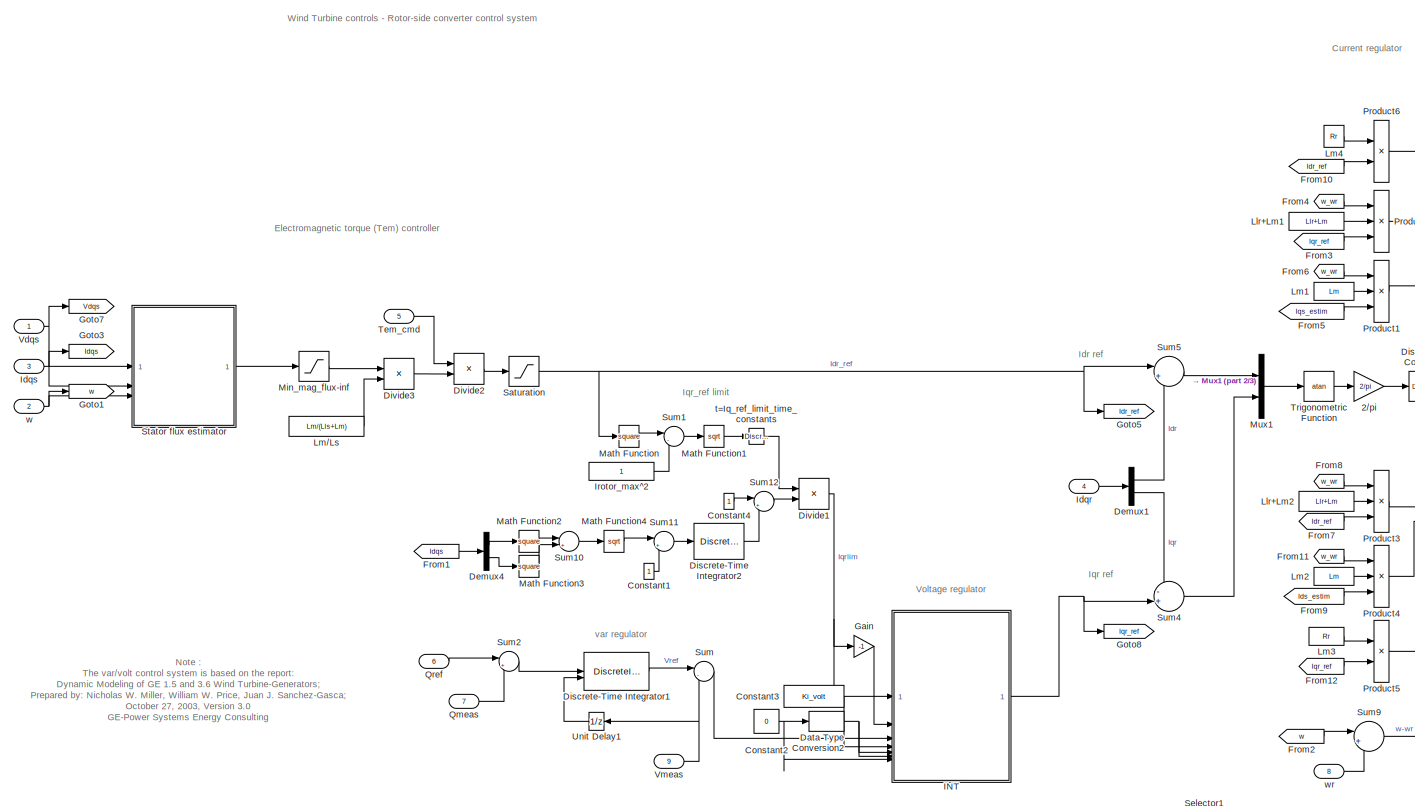
[diagram: DFIG Wind Turbine/Control/Rotor-side Controls - part 1/3, left side, full height]
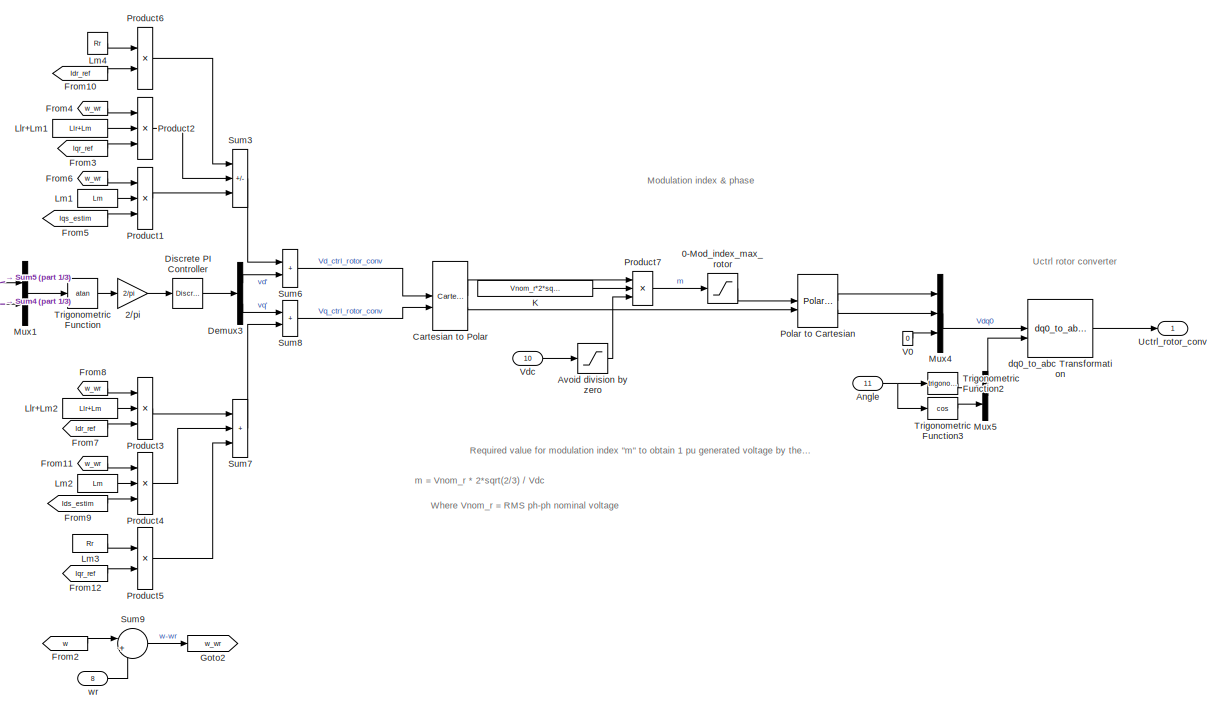
[diagram: DFIG Wind Turbine/Control/Rotor-side Controls - part 2/3, middle right region]
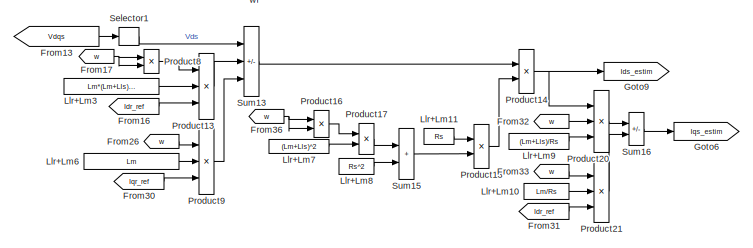
[diagram: DFIG Wind Turbine/Control/Rotor-side Controls - part 3/3, bottom center region]
BLOCK [SubSystem] DFIG Wind Turbine/Control/Rotor-side Controls
BLOCK [Saturate] DFIG Wind Turbine/Control/Rotor-side Controls/0-Mod_index_max_rotor
  LowerLimit = 0
  NameLocation = top
  UpperLimit = Mod_index_max_rotor
BLOCK [Gain] DFIG Wind Turbine/Control/Rotor-side Controls/2//pi
  Gain = 2/pi
BLOCK [Inport] DFIG Wind Turbine/Control/Rotor-side Controls/Angle
  Port = 11
BLOCK [Saturate] DFIG Wind Turbine/Control/Rotor-side Controls/Avoid division by zero
  LowerLimit = 1e-6
  UpperLimit = inf
BLOCK [Reference] DFIG Wind Turbine/Control/Rotor-side Controls/Cartesian to Polar  REF=simulink_extras/Transformations/Cartesian to
Polar
  SourceBlock = simulink_extras/Transformations/Cartesian to\nPolar
  SourceType = Cart2Polar
BLOCK [Constant] DFIG Wind Turbine/Control/Rotor-side Controls/Constant1
BLOCK [Constant] DFIG Wind Turbine/Control/Rotor-side Controls/Constant2
  Value = 0
BLOCK [Constant] DFIG Wind Turbine/Control/Rotor-side Controls/Constant3
  Value = Ki_volt
BLOCK [Constant] DFIG Wind Turbine/Control/Rotor-side Controls/Constant4
BLOCK [DataTypeConversion] DFIG Wind Turbine/Control/Rotor-side Controls/Data Type Conversion2
  OutDataTypeStr = boolean
  RndMeth = Floor
  SaturateOnIntegerOverflow = off
BLOCK [Demux] DFIG Wind Turbine/Control/Rotor-side Controls/Demux1
  DisplayOption = none
  Outputs = 2
BLOCK [Demux] DFIG Wind Turbine/Control/Rotor-side Controls/Demux3
  DisplayOption = none
  Outputs = 2
BLOCK [Demux] DFIG Wind Turbine/Control/Rotor-side Controls/Demux4
  DisplayOption = none
  Outputs = 2
BLOCK [Reference] DFIG Wind Turbine/Control/Rotor-side Controls/Discrete PI Controller  REF=powerlib_extras/Discrete 
Control Blocks/Discrete
PI Controller
  SourceBlock = powerlib_extras/Discrete \nControl Blocks/Discrete\nPI Controller
  SourceType = Discrete PI Controller
BLOCK [DiscreteIntegrator] DFIG Wind Turbine/Control/Rotor-side Controls/Discrete-Time Integrator1
  ICPrevOutput = DiscIntNeverNeededParam
  ICPrevScaledInput = DiscIntNeverNeededParam
  InitialCondition = 1
  InitialConditionSource = external
  LimitOutput = on
  LowerSaturationLimit = Min_var_reg
  SampleTime = Ts
  UpperSaturationLimit = Max_var_reg
  gainval = Ki_var
BLOCK [DiscreteIntegrator] DFIG Wind Turbine/Control/Rotor-side Controls/Discrete-Time Integrator2
  ICPrevOutput = DiscIntNeverNeededParam
  ICPrevScaledInput = DiscIntNeverNeededParam
  LimitOutput = on
  LowerSaturationLimit = 0
  SampleTime = Ts
  UpperSaturationLimit = 1
  gainval = 10
BLOCK [Product] DFIG Wind Turbine/Control/Rotor-side Controls/Divide1
  Inputs = **
BLOCK [Product] DFIG Wind Turbine/Control/Rotor-side Controls/Divide2
  Inputs = */
BLOCK [Product] DFIG Wind Turbine/Control/Rotor-side Controls/Divide3
  Inputs = **
BLOCK [From] DFIG Wind Turbine/Control/Rotor-side Controls/From1
  CloseFcn = tagdialog Close
  GotoTag = Idqs
BLOCK [From] DFIG Wind Turbine/Control/Rotor-side Controls/From10
  CloseFcn = tagdialog Close
  GotoTag = Idr_ref
BLOCK [From] DFIG Wind Turbine/Control/Rotor-side Controls/From11
  CloseFcn = tagdialog Close
  GotoTag = w_wr
BLOCK [From] DFIG Wind Turbine/Control/Rotor-side Controls/From12
  CloseFcn = tagdialog Close
  GotoTag = Iqr_ref
BLOCK [From] DFIG Wind Turbine/Control/Rotor-side Controls/From13
  CloseFcn = tagdialog Close
  GotoTag = Vdqs
BLOCK [From] DFIG Wind Turbine/Control/Rotor-side Controls/From16
  CloseFcn = tagdialog Close
  GotoTag = Idr_ref
BLOCK [From] DFIG Wind Turbine/Control/Rotor-side Controls/From17
  CloseFcn = tagdialog Close
  GotoTag = w
BLOCK [From] DFIG Wind Turbine/Control/Rotor-side Controls/From2
  CloseFcn = tagdialog Close
  GotoTag = w
BLOCK [From] DFIG Wind Turbine/Control/Rotor-side Controls/From26
  CloseFcn = tagdialog Close
  GotoTag = w
BLOCK [From] DFIG Wind Turbine/Control/Rotor-side Controls/From3
  CloseFcn = tagdialog Close
  GotoTag = Iqr_ref
BLOCK [From] DFIG Wind Turbine/Control/Rotor-side Controls/From30
  CloseFcn = tagdialog Close
  GotoTag = Iqr_ref
BLOCK [From] DFIG Wind Turbine/Control/Rotor-side Controls/From31
  CloseFcn = tagdialog Close
  GotoTag = Idr_ref
BLOCK [From] DFIG Wind Turbine/Control/Rotor-side Controls/From32
  CloseFcn = tagdialog Close
  GotoTag = w
BLOCK [From] DFIG Wind Turbine/Control/Rotor-side Controls/From33
  CloseFcn = tagdialog Close
  GotoTag = w
BLOCK [From] DFIG Wind Turbine/Control/Rotor-side Controls/From36
  CloseFcn = tagdialog Close
  GotoTag = w
BLOCK [From] DFIG Wind Turbine/Control/Rotor-side Controls/From4
  CloseFcn = tagdialog Close
  GotoTag = w_wr
BLOCK [From] DFIG Wind Turbine/Control/Rotor-side Controls/From5
  CloseFcn = tagdialog Close
  GotoTag = Iqs_estim
BLOCK [From] DFIG Wind Turbine/Control/Rotor-side Controls/From6
  CloseFcn = tagdialog Close
  GotoTag = w_wr
BLOCK [From] DFIG Wind Turbine/Control/Rotor-side Controls/From7
  CloseFcn = tagdialog Close
  GotoTag = Idr_ref
BLOCK [From] DFIG Wind Turbine/Control/Rotor-side Controls/From8
  CloseFcn = tagdialog Close
  GotoTag = w_wr
BLOCK [From] DFIG Wind Turbine/Control/Rotor-side Controls/From9
  CloseFcn = tagdialog Close
  GotoTag = Ids_estim
BLOCK [Gain] DFIG Wind Turbine/Control/Rotor-side Controls/Gain
  Gain = -1
  OutDataTypeStr = Inherit: Same as input
  ParamDataTypeStr = Inherit: Same as input
  SaturateOnIntegerOverflow = on
BLOCK [Goto] DFIG Wind Turbine/Control/Rotor-side Controls/Goto1
  GotoTag = w
BLOCK [Goto] DFIG Wind Turbine/Control/Rotor-side Controls/Goto2
  GotoTag = w_wr
BLOCK [Goto] DFIG Wind Turbine/Control/Rotor-side Controls/Goto3
  GotoTag = Idqs
BLOCK [Goto] DFIG Wind Turbine/Control/Rotor-side Controls/Goto5
  GotoTag = Idr_ref
BLOCK [Goto] DFIG Wind Turbine/Control/Rotor-side Controls/Goto6
  GotoTag = Iqs_estim
BLOCK [Goto] DFIG Wind Turbine/Control/Rotor-side Controls/Goto7
  GotoTag = Vdqs
BLOCK [Goto] DFIG Wind Turbine/Control/Rotor-side Controls/Goto8
  GotoTag = Iqr_ref
BLOCK [Goto] DFIG Wind Turbine/Control/Rotor-side Controls/Goto9
  GotoTag = Ids_estim
BLOCK [SubSystem] DFIG Wind Turbine/Control/Rotor-side Controls/INT
BLOCK [Gain] DFIG Wind Turbine/Control/Rotor-side Controls/INT/Gain
  Gain = Ts* 0.5
  OutDataTypeStr = Inherit: Same as input
  ParamDataTypeStr = Inherit: Same as input
  SaturateOnIntegerOverflow = on
BLOCK [Inport] DFIG Wind Turbine/Control/Rotor-side Controls/INT/Hold
  Port = 5
BLOCK [UnitDelay] DFIG Wind Turbine/Control/Rotor-side Controls/INT/IC = 0
  HasFrameUpgradeWarning = on
  SampleTime = Ts
BLOCK [UnitDelay] DFIG Wind Turbine/Control/Rotor-side Controls/INT/IC = i_ic
  HasFrameUpgradeWarning = on
  SampleTime = Ts
BLOCK [Inport] DFIG Wind Turbine/Control/Rotor-side Controls/INT/In
  Port = 3
BLOCK [Inport] DFIG Wind Turbine/Control/Rotor-side Controls/INT/Ki
  Port = 4
BLOCK [Logic] DFIG Wind Turbine/Control/Rotor-side Controls/INT/Logical Operator4
  Operator = OR
BLOCK [Inport] DFIG Wind Turbine/Control/Rotor-side Controls/INT/Max
BLOCK [Inport] DFIG Wind Turbine/Control/Rotor-side Controls/INT/Min
  Port = 2
BLOCK [MinMax] DFIG Wind Turbine/Control/Rotor-side Controls/INT/MinMax
  InputSameDT = on
  Inputs = 2
  SaturateOnIntegerOverflow = on
BLOCK [MinMax] DFIG Wind Turbine/Control/Rotor-side Controls/INT/MinMax1
  Function = max
  InputSameDT = on
  Inputs = 2
  SaturateOnIntegerOverflow = on
BLOCK [Outport] DFIG Wind Turbine/Control/Rotor-side Controls/INT/Out
  InitialOutput = 0
BLOCK [Product] DFIG Wind Turbine/Control/Rotor-side Controls/INT/Product
  OutDataTypeStr = Inherit: Same as first input
  SaturateOnIntegerOverflow = on
BLOCK [Inport] DFIG Wind Turbine/Control/Rotor-side Controls/INT/Reset
  Port = 6
BLOCK [Inport] DFIG Wind Turbine/Control/Rotor-side Controls/INT/Reset Value
  NameLocation = top
  Port = 7
BLOCK [SubSystem] DFIG Wind Turbine/Control/Rotor-side Controls/INT/S6
BLOCK [Outport] DFIG Wind Turbine/Control/Rotor-side Controls/INT/S6/  
  InitialOutput = 0
BLOCK [Inport] DFIG Wind Turbine/Control/Rotor-side Controls/INT/S6/In
  Port = 2
BLOCK [Inport] DFIG Wind Turbine/Control/Rotor-side Controls/INT/S6/MAX
BLOCK [Inport] DFIG Wind Turbine/Control/Rotor-side Controls/INT/S6/MIN
  Port = 3
BLOCK [MinMax] DFIG Wind Turbine/Control/Rotor-side Controls/INT/S6/MinMax
  Function = max
  InputSameDT = on
  Inputs = 2
  SaturateOnIntegerOverflow = on
BLOCK [MinMax] DFIG Wind Turbine/Control/Rotor-side Controls/INT/S6/MinMax1
  InputSameDT = on
  Inputs = 2
  SaturateOnIntegerOverflow = on
BLOCK [Sum] DFIG Wind Turbine/Control/Rotor-side Controls/INT/Sum
  IconShape = rectangular
  InputSameDT = on
  OutDataTypeStr = Inherit: Same as first input
  SaturateOnIntegerOverflow = on
BLOCK [Sum] DFIG Wind Turbine/Control/Rotor-side Controls/INT/Sum1
  IconShape = rectangular
  InputSameDT = on
  OutDataTypeStr = Inherit: Same as first input
  SaturateOnIntegerOverflow = on
BLOCK [Switch] DFIG Wind Turbine/Control/Rotor-side Controls/INT/Switch2
  Threshold = 0.5
BLOCK [Switch] DFIG Wind Turbine/Control/Rotor-side Controls/INT/Switch3
  Threshold = 0.5
BLOCK [Switch] DFIG Wind Turbine/Control/Rotor-side Controls/INT/Switch7
  Threshold = 0.5
BLOCK [Inport] DFIG Wind Turbine/Control/Rotor-side Controls/Idqr
  NameLocation = top
  Port = 4
BLOCK [Inport] DFIG Wind Turbine/Control/Rotor-side Controls/Idqs
  Port = 3
BLOCK [Constant] DFIG Wind Turbine/Control/Rotor-side Controls/Irotor_max^2
BLOCK [Constant] DFIG Wind Turbine/Control/Rotor-side Controls/K
  Value = Vnom_r*2*sqrt(2/3)
BLOCK [Constant] DFIG Wind Turbine/Control/Rotor-side Controls/Llr+Lm1
  Value = Llr+Lm
BLOCK [Constant] DFIG Wind Turbine/Control/Rotor-side Controls/Llr+Lm10
  Value = Lm/Rs
BLOCK [Constant] DFIG Wind Turbine/Control/Rotor-side Controls/Llr+Lm11
  Value = Rs
BLOCK [Constant] DFIG Wind Turbine/Control/Rotor-side Controls/Llr+Lm2
  Value = Llr+Lm
BLOCK [Constant] DFIG Wind Turbine/Control/Rotor-side Controls/Llr+Lm3
  Value = Lm*(Lm+Lls)/Rs
BLOCK [Constant] DFIG Wind Turbine/Control/Rotor-side Controls/Llr+Lm6
  Value = Lm
BLOCK [Constant] DFIG Wind Turbine/Control/Rotor-side Controls/Llr+Lm7
  Value = (Lm+Lls)^2
BLOCK [Constant] DFIG Wind Turbine/Control/Rotor-side Controls/Llr+Lm8
  Value = Rs^2
BLOCK [Constant] DFIG Wind Turbine/Control/Rotor-side Controls/Llr+Lm9
  Value = (Lm+Lls)/Rs
BLOCK [Constant] DFIG Wind Turbine/Control/Rotor-side Controls/Lm//Ls
  Value = Lm/(Lls+Lm)
BLOCK [Constant] DFIG Wind Turbine/Control/Rotor-side Controls/Lm1
  Value = Lm
BLOCK [Constant] DFIG Wind Turbine/Control/Rotor-side Controls/Lm2
  Value = Lm
BLOCK [Constant] DFIG Wind Turbine/Control/Rotor-side Controls/Lm3
  Value = Rr
BLOCK [Constant] DFIG Wind Turbine/Control/Rotor-side Controls/Lm4
  Value = Rr
  VectorParams1D = off
BLOCK [Math] DFIG Wind Turbine/Control/Rotor-side Controls/Math Function
  Operator = square
  SignedPower = on
BLOCK [Math] DFIG Wind Turbine/Control/Rotor-side Controls/Math Function1
  Operator = sqrt
  SignedPower = on
BLOCK [Math] DFIG Wind Turbine/Control/Rotor-side Controls/Math Function2
  Operator = square
  SignedPower = on
BLOCK [Math] DFIG Wind Turbine/Control/Rotor-side Controls/Math Function3
  Operator = square
  SignedPower = on
BLOCK [Math] DFIG Wind Turbine/Control/Rotor-side Controls/Math Function4
  Operator = sqrt
  SignedPower = on
BLOCK [Saturate] DFIG Wind Turbine/Control/Rotor-side Controls/Min_mag_flux-inf
  LowerLimit = Min_mag_flux
  UpperLimit = inf
BLOCK [Mux] DFIG Wind Turbine/Control/Rotor-side Controls/Mux1
  DisplayOption = bar
  Inputs = 2
BLOCK [Mux] DFIG Wind Turbine/Control/Rotor-side Controls/Mux4
  DisplayOption = bar
  Inputs = 3
BLOCK [Mux] DFIG Wind Turbine/Control/Rotor-side Controls/Mux5
  DisplayOption = bar
  Inputs = 2
BLOCK [Reference] DFIG Wind Turbine/Control/Rotor-side Controls/Polar to Cartesian  REF=simulink_extras/Transformations/Polar to
Cartesian
  SourceBlock = simulink_extras/Transformations/Polar to\nCartesian
  SourceType = Polar2Cart
BLOCK [Product] DFIG Wind Turbine/Control/Rotor-side Controls/Product1
  Inputs = 3
  OutDataTypeStr = Inherit: Same as first input
  SaturateOnIntegerOverflow = on
BLOCK [Product] DFIG Wind Turbine/Control/Rotor-side Controls/Product13
  Inputs = 3
  OutDataTypeStr = Inherit: Same as first input
  SaturateOnIntegerOverflow = on
BLOCK [Product] DFIG Wind Turbine/Control/Rotor-side Controls/Product14
  OutDataTypeStr = Inherit: Same as first input
  SaturateOnIntegerOverflow = on
BLOCK [Product] DFIG Wind Turbine/Control/Rotor-side Controls/Product16
  OutDataTypeStr = Inherit: Same as first input
  SaturateOnIntegerOverflow = on
BLOCK [Product] DFIG Wind Turbine/Control/Rotor-side Controls/Product17
  OutDataTypeStr = Inherit: Same as first input
  SaturateOnIntegerOverflow = on
BLOCK [Product] DFIG Wind Turbine/Control/Rotor-side Controls/Product18
  Inputs = */
  OutDataTypeStr = Inherit: Same as first input
  SaturateOnIntegerOverflow = on
BLOCK [Product] DFIG Wind Turbine/Control/Rotor-side Controls/Product2
  Inputs = 3
  OutDataTypeStr = Inherit: Same as first input
  SaturateOnIntegerOverflow = on
BLOCK [Product] DFIG Wind Turbine/Control/Rotor-side Controls/Product20
  Inputs = 3
  OutDataTypeStr = Inherit: Same as first input
  SaturateOnIntegerOverflow = on
BLOCK [Product] DFIG Wind Turbine/Control/Rotor-side Controls/Product21
  Inputs = 3
  OutDataTypeStr = Inherit: Same as first input
  SaturateOnIntegerOverflow = on
BLOCK [Product] DFIG Wind Turbine/Control/Rotor-side Controls/Product3
  Inputs = 3
  OutDataTypeStr = Inherit: Same as first input
  SaturateOnIntegerOverflow = on
BLOCK [Product] DFIG Wind Turbine/Control/Rotor-side Controls/Product4
  Inputs = 3
  OutDataTypeStr = Inherit: Same as first input
  SaturateOnIntegerOverflow = on
BLOCK [Product] DFIG Wind Turbine/Control/Rotor-side Controls/Product5
  OutDataTypeStr = Inherit: Same as first input
  SaturateOnIntegerOverflow = on
BLOCK [Product] DFIG Wind Turbine/Control/Rotor-side Controls/Product6
  OutDataTypeStr = Inherit: Same as first input
  SaturateOnIntegerOverflow = on
BLOCK [Product] DFIG Wind Turbine/Control/Rotor-side Controls/Product7
  InputSameDT = on
  Inputs = **/
  OutDataTypeStr = Inherit: Same as first input
  SaturateOnIntegerOverflow = on
BLOCK [Product] DFIG Wind Turbine/Control/Rotor-side Controls/Product8
  OutDataTypeStr = Inherit: Same as first input
  SaturateOnIntegerOverflow = on
BLOCK [Product] DFIG Wind Turbine/Control/Rotor-side Controls/Product9
  Inputs = 3
  OutDataTypeStr = Inherit: Same as first input
  SaturateOnIntegerOverflow = on
BLOCK [Inport] DFIG Wind Turbine/Control/Rotor-side Controls/Qmeas
  Port = 7
BLOCK [Inport] DFIG Wind Turbine/Control/Rotor-side Controls/Qref
  Port = 6
BLOCK [Saturate] DFIG Wind Turbine/Control/Rotor-side Controls/Saturation
  LowerLimit = 0
  UpperLimit = Max_Idr_ref
BLOCK [Selector] DFIG Wind Turbine/Control/Rotor-side Controls/Selector1
  IndexOptions = Index vector (dialog)
  Indices = 1
  InputPortWidth = 2
  OutputSizes = [(-2)]
BLOCK [SubSystem] DFIG Wind Turbine/Control/Rotor-side Controls/Stator flux estimator
BLOCK [Product] DFIG Wind Turbine/Control/Rotor-side Controls/Stator flux estimator/Divide1
  Inputs = */
BLOCK [Product] DFIG Wind Turbine/Control/Rotor-side Controls/Stator flux estimator/Divide2
  Inputs = **
BLOCK [Product] DFIG Wind Turbine/Control/Rotor-side Controls/Stator flux estimator/Divide4
  Inputs = */
BLOCK [Product] DFIG Wind Turbine/Control/Rotor-side Controls/Stator flux estimator/Divide6
  Inputs = **
BLOCK [Gain] DFIG Wind Turbine/Control/Rotor-side Controls/Stator flux estimator/Gain
  Gain = -1
BLOCK [Inport] DFIG Wind Turbine/Control/Rotor-side Controls/Stator flux estimator/Idqs
  Port = 2
BLOCK [Reference] DFIG Wind Turbine/Control/Rotor-side Controls/Stator flux estimator/Lowpass Tau=1//4 cycle  REF=powerlib_extras/Discrete 
Control Blocks/Discrete
1st-Order
Filter
  SourceBlock = powerlib_extras/Discrete \nControl Blocks/Discrete\n1st-Order\nFilter
  SourceType = Discrete 1st-Order Filter
BLOCK [Outport] DFIG Wind Turbine/Control/Rotor-side Controls/Stator flux estimator/Mag_Flux
BLOCK [Math] DFIG Wind Turbine/Control/Rotor-side Controls/Stator flux estimator/Math Function1
  Operator = square
  SignedPower = on
BLOCK [Math] DFIG Wind Turbine/Control/Rotor-side Controls/Stator flux estimator/Math Function2
  Operator = square
  SignedPower = on
BLOCK [Math] DFIG Wind Turbine/Control/Rotor-side Controls/Stator flux estimator/Math Function3
  Operator = sqrt
  SignedPower = on
BLOCK [Constant] DFIG Wind Turbine/Control/Rotor-side Controls/Stator flux estimator/Rs
  Value = Rs
BLOCK [Constant] DFIG Wind Turbine/Control/Rotor-side Controls/Stator flux estimator/Rs2
  Value = Rs
BLOCK [Selector] DFIG Wind Turbine/Control/Rotor-side Controls/Stator flux estimator/Selector1
  IndexOptions = Index vector (dialog)
  Indices = 2
  InputPortWidth = 2
  OutputSizes = 1
BLOCK [Selector] DFIG Wind Turbine/Control/Rotor-side Controls/Stator flux estimator/Selector2
  IndexOptions = Index vector (dialog)
  Indices = 1
  InputPortWidth = 2
  OutputSizes = 1
BLOCK [Selector] DFIG Wind Turbine/Control/Rotor-side Controls/Stator flux estimator/Selector3
  IndexOptions = Index vector (dialog)
  Indices = 2
  InputPortWidth = 2
  OutputSizes = 1
BLOCK [Selector] DFIG Wind Turbine/Control/Rotor-side Controls/Stator flux estimator/Selector4
  IndexOptions = Index vector (dialog)
  Indices = 1
  InputPortWidth = 2
  OutputSizes = 1
BLOCK [Sum] DFIG Wind Turbine/Control/Rotor-side Controls/Stator flux estimator/Sum1
  Inputs = |++
BLOCK [Sum] DFIG Wind Turbine/Control/Rotor-side Controls/Stator flux estimator/Sum2
  Inputs = |+-
BLOCK [Sum] DFIG Wind Turbine/Control/Rotor-side Controls/Stator flux estimator/Sum3
  Inputs = |+-
BLOCK [Inport] DFIG Wind Turbine/Control/Rotor-side Controls/Stator flux estimator/Vdqs
BLOCK [Inport] DFIG Wind Turbine/Control/Rotor-side Controls/Stator flux estimator/w_pu
  Port = 3
BLOCK [Sum] DFIG Wind Turbine/Control/Rotor-side Controls/Sum
  InputSameDT = on
  Inputs = |-+
  OutDataTypeStr = Inherit: Same as first input
  SaturateOnIntegerOverflow = on
BLOCK [Sum] DFIG Wind Turbine/Control/Rotor-side Controls/Sum1
  InputSameDT = on
  Inputs = |-+
  OutDataTypeStr = Inherit: Same as first input
  SaturateOnIntegerOverflow = on
BLOCK [Sum] DFIG Wind Turbine/Control/Rotor-side Controls/Sum10
  InputSameDT = on
  Inputs = |++
  OutDataTypeStr = Inherit: Same as first input
  SaturateOnIntegerOverflow = on
BLOCK [Sum] DFIG Wind Turbine/Control/Rotor-side Controls/Sum11
  InputSameDT = on
  Inputs = |+-
  OutDataTypeStr = Inherit: Same as first input
  SaturateOnIntegerOverflow = on
BLOCK [Sum] DFIG Wind Turbine/Control/Rotor-side Controls/Sum12
  InputSameDT = on
  Inputs = |+-
  OutDataTypeStr = Inherit: Same as first input
  SaturateOnIntegerOverflow = on
BLOCK [Sum] DFIG Wind Turbine/Control/Rotor-side Controls/Sum13
  IconShape = rectangular
  InputSameDT = on
  Inputs = +-+
  OutDataTypeStr = Inherit: Same as first input
  SaturateOnIntegerOverflow = on
BLOCK [Sum] DFIG Wind Turbine/Control/Rotor-side Controls/Sum15
  IconShape = rectangular
  InputSameDT = on
  OutDataTypeStr = Inherit: Same as first input
  SaturateOnIntegerOverflow = on
BLOCK [Sum] DFIG Wind Turbine/Control/Rotor-side Controls/Sum16
  IconShape = rectangular
  InputSameDT = on
  Inputs = --
  OutDataTypeStr = Inherit: Same as first input
  SaturateOnIntegerOverflow = on
BLOCK [Sum] DFIG Wind Turbine/Control/Rotor-side Controls/Sum2
  InputSameDT = on
  Inputs = |+-
  OutDataTypeStr = Inherit: Same as first input
  SaturateOnIntegerOverflow = on
BLOCK [Sum] DFIG Wind Turbine/Control/Rotor-side Controls/Sum3
  IconShape = rectangular
  InputSameDT = on
  Inputs = +--
  OutDataTypeStr = Inherit: Same as first input
  SaturateOnIntegerOverflow = on
BLOCK [Sum] DFIG Wind Turbine/Control/Rotor-side Controls/Sum4
  InputSameDT = on
  Inputs = -+|
  OutDataTypeStr = Inherit: Same as first input
  SaturateOnIntegerOverflow = on
BLOCK [Sum] DFIG Wind Turbine/Control/Rotor-side Controls/Sum5
  InputSameDT = on
  Inputs = |+-
  OutDataTypeStr = Inherit: Same as first input
  SaturateOnIntegerOverflow = on
BLOCK [Sum] DFIG Wind Turbine/Control/Rotor-side Controls/Sum6
  IconShape = rectangular
  InputSameDT = on
  OutDataTypeStr = Inherit: Same as first input
  SaturateOnIntegerOverflow = on
BLOCK [Sum] DFIG Wind Turbine/Control/Rotor-side Controls/Sum7
  IconShape = rectangular
  InputSameDT = on
  Inputs = +++
  OutDataTypeStr = Inherit: Same as first input
  SaturateOnIntegerOverflow = on
BLOCK [Sum] DFIG Wind Turbine/Control/Rotor-side Controls/Sum8
  IconShape = rectangular
  InputSameDT = on
  OutDataTypeStr = Inherit: Same as first input
  SaturateOnIntegerOverflow = on
BLOCK [Sum] DFIG Wind Turbine/Control/Rotor-side Controls/Sum9
  InputSameDT = on
  Inputs = |+-
  OutDataTypeStr = Inherit: Same as first input
  SaturateOnIntegerOverflow = on
BLOCK [Inport] DFIG Wind Turbine/Control/Rotor-side Controls/Tem_cmd
  Port = 5
BLOCK [Trigonometry] DFIG Wind Turbine/Control/Rotor-side Controls/Trigonometric Function
  Operator = atan
BLOCK [Trigonometry] DFIG Wind Turbine/Control/Rotor-side Controls/Trigonometric Function2
BLOCK [Trigonometry] DFIG Wind Turbine/Control/Rotor-side Controls/Trigonometric Function3
  Operator = cos
BLOCK [Outport] DFIG Wind Turbine/Control/Rotor-side Controls/Uctrl_rotor_conv
BLOCK [UnitDelay] DFIG Wind Turbine/Control/Rotor-side Controls/Unit Delay1
  HasFrameUpgradeWarning = on
  InitialCondition = 1
  SampleTime = Ts
BLOCK [Constant] DFIG Wind Turbine/Control/Rotor-side Controls/V0
  Value = 0
BLOCK [Inport] DFIG Wind Turbine/Control/Rotor-side Controls/Vdc
  Port = 10
BLOCK [Inport] DFIG Wind Turbine/Control/Rotor-side Controls/Vdqs
BLOCK [Inport] DFIG Wind Turbine/Control/Rotor-side Controls/Vmeas
  Port = 9
BLOCK [Reference] DFIG Wind Turbine/Control/Rotor-side Controls/dq0_to_abc Transformation  REF=powerlib_extras/Measurements/dq0_to_abc
Transformation
  SourceBlock = powerlib_extras/Measurements/dq0_to_abc\nTransformation
  SourceType = dq0 to abc Transformation
BLOCK [Reference] DFIG Wind Turbine/Control/Rotor-side Controls/t=Iq_ref_limit_time_constants  REF=powerlib_extras/Discrete 
Control Blocks/Discrete
1st-Order
Filter
  SourceBlock = powerlib_extras/Discrete \nControl Blocks/Discrete\n1st-Order\nFilter
  SourceType = Discrete 1st-Order Filter
BLOCK [Inport] DFIG Wind Turbine/Control/Rotor-side Controls/w
  Port = 2
BLOCK [Inport] DFIG Wind Turbine/Control/Rotor-side Controls/wr
  Port = 8
BLOCK [SubSystem] DFIG Wind Turbine/Control/Speed & Pitch Control
BLOCK [Saturate] DFIG Wind Turbine/Control/Speed & Pitch Control/0-inf
  LowerLimit = 0
  UpperLimit = inf
BLOCK [Saturate] DFIG Wind Turbine/Control/Speed & Pitch Control/0-pitch_max
  LowerLimit = 0
  UpperLimit = pitch_max
BLOCK [Saturate] DFIG Wind Turbine/Control/Speed & Pitch Control/0-pitch_max 
  LowerLimit = 0
  UpperLimit = pitch_max
BLOCK [Constant] DFIG Wind Turbine/Control/Speed & Pitch Control/Constant2
BLOCK [SubSystem] DFIG Wind Turbine/Control/Speed & Pitch Control/Discrete PI Controller
  DialogController = POWERSYS.PowerSysDialog
BLOCK [DiscreteIntegrator] DFIG Wind Turbine/Control/Speed & Pitch Control/Discrete PI Controller/Discrete-Time Integrator
  ICPrevOutput = DiscIntNeverNeededParam
  ICPrevScaledInput = DiscIntNeverNeededParam
  InitialCondition = Init
  LimitOutput = on
  LowerSaturationLimit = LowerLimit
  SampleTime = Ts
  UpperSaturationLimit = UpperLimit
BLOCK [Inport] DFIG Wind Turbine/Control/Speed & Pitch Control/Discrete PI Controller/Error
BLOCK [Outport] DFIG Wind Turbine/Control/Speed & Pitch Control/Discrete PI Controller/Out
  InitialOutput = 0
BLOCK [Product] DFIG Wind Turbine/Control/Speed & Pitch Control/Discrete PI Controller/Product1
  RndMeth = Zero
BLOCK [Product] DFIG Wind Turbine/Control/Speed & Pitch Control/Discrete PI Controller/Product2
  RndMeth = Zero
BLOCK [Saturate] DFIG Wind Turbine/Control/Speed & Pitch Control/Discrete PI Controller/Saturation2
  LowerLimit = LowerLimit
  NameLocation = top
  UpperLimit = UpperLimit
BLOCK [Step] DFIG Wind Turbine/Control/Speed & Pitch Control/Discrete PI Controller/Step_Ki_speed
  After = Ki
  Before = Ki
  SampleTime = Ts
  Time = 999
BLOCK [Step] DFIG Wind Turbine/Control/Speed & Pitch Control/Discrete PI Controller/Step_Kp_speed
  After = Kp
  Before = Kp
  SampleTime = Ts
  Time = 999
BLOCK [Sum] DFIG Wind Turbine/Control/Speed & Pitch Control/Discrete PI Controller/Sum6
  IconShape = rectangular
  InputSameDT = on
  OutDataTypeStr = Inherit: Same as first input
  SaturateOnIntegerOverflow = on
BLOCK [Reference] DFIG Wind Turbine/Control/Speed & Pitch Control/Discrete PI Controller1  REF=powerlib_extras/Discrete 
Control Blocks/Discrete
PI Controller
  SourceBlock = powerlib_extras/Discrete \nControl Blocks/Discrete\nPI Controller
  SourceType = Discrete PI Controller
BLOCK [Gain] DFIG Wind Turbine/Control/Speed & Pitch Control/Gain2
  Gain = Kp_pitch
  OutDataTypeStr = Inherit: Same as input
  ParamDataTypeStr = Inherit: Same as input
  SaturateOnIntegerOverflow = on
BLOCK [Outport] DFIG Wind Turbine/Control/Speed & Pitch Control/Pitch (deg)
  Port = 2
BLOCK [Inport] DFIG Wind Turbine/Control/Speed & Pitch Control/Pmeas
  Port = 2
BLOCK [RateLimiter] DFIG Wind Turbine/Control/Speed & Pitch Control/Rate Limiter   1
  FallingSlewLimit = -pitch_rate
  RisingSlewLimit = pitch_rate
BLOCK [Saturate] DFIG Wind Turbine/Control/Speed & Pitch Control/Saturation
  LowerLimit = Speed_min
  UpperLimit = Speed_max
BLOCK [Sum] DFIG Wind Turbine/Control/Speed & Pitch Control/Sum
  Inputs = -+
  SaturateOnIntegerOverflow = on
BLOCK [Sum] DFIG Wind Turbine/Control/Speed & Pitch Control/Sum1
  Inputs = |+-
BLOCK [Sum] DFIG Wind Turbine/Control/Speed & Pitch Control/Sum2
  Inputs = |+-
  SaturateOnIntegerOverflow = on
BLOCK [Sum] DFIG Wind Turbine/Control/Speed & Pitch Control/Sum3
  Inputs = |++
BLOCK [Switch] DFIG Wind Turbine/Control/Speed & Pitch Control/Switch
  InputSameDT = off
  SaturateOnIntegerOverflow = off
  Threshold = 0.75
BLOCK [Outport] DFIG Wind Turbine/Control/Speed & Pitch Control/Tem_cmd
BLOCK [Fcn] DFIG Wind Turbine/Control/Speed & Pitch Control/Tracking Curve
  Expr = -0.67*u(1)^2+1.42*u(1)+0.51
BLOCK [Gain] DFIG Wind Turbine/Control/Speed & Pitch Control/pu_elec->pu_mec
  Gain = Pnom/Pmec
BLOCK [Reference] DFIG Wind Turbine/Control/Speed & Pitch Control/t=Pitch_time_constant  REF=powerlib_extras/Discrete 
Control Blocks/Discrete
1st-Order
Filter
  SourceBlock = powerlib_extras/Discrete \nControl Blocks/Discrete\n1st-Order\nFilter
  SourceType = Discrete 1st-Order Filter
BLOCK [Reference] DFIG Wind Turbine/Control/Speed & Pitch Control/t=T_speed  REF=powerlib_extras/Discrete 
Control Blocks/Discrete
1st-Order
Filter
  SourceBlock = powerlib_extras/Discrete \nControl Blocks/Discrete\n1st-Order\nFilter
  SourceType = Discrete 1st-Order Filter
BLOCK [Inport] DFIG Wind Turbine/Control/Speed & Pitch Control/wr
BLOCK [Constant] DFIG Wind Turbine/Control/Speed & Pitch Control/wref
  Value = 1.2
BLOCK [Terminator] DFIG Wind Turbine/Control/Terminator
BLOCK [Terminator] DFIG Wind Turbine/Control/Terminator1
BLOCK [UnitDelay] DFIG Wind Turbine/Control/Unit Delay1
  HasFrameUpgradeWarning = on
  SampleTime = Ts
BLOCK [UnitDelay] DFIG Wind Turbine/Control/Unit Delay2
  HasFrameUpgradeWarning = on
  SampleTime = Ts
BLOCK [UnitDelay] DFIG Wind Turbine/Control/Unit Delay4
  HasFrameUpgradeWarning = on
  SampleTime = Ts
BLOCK [UnitDelay] DFIG Wind Turbine/Control/Unit Delay5
  HasFrameUpgradeWarning = on
  SampleTime = Ts
BLOCK [UnitDelay] DFIG Wind Turbine/Control/Unit Delay6
  HasFrameUpgradeWarning = on
  SampleTime = Ts
BLOCK [Inport] DFIG Wind Turbine/Control/Vabc_B1
BLOCK [Inport] DFIG Wind Turbine/Control/Vdc_V
  Port = 5
BLOCK [Inport] DFIG Wind Turbine/Control/angle_rotor_rad
  Port = 7
BLOCK [Inport] DFIG Wind Turbine/Control/wr
  Port = 8
BLOCK [SubSystem] DFIG Wind Turbine/Drive Train
BLOCK [Gain] DFIG Wind Turbine/Drive Train/1_2H_WT
  Gain = 1/(2*H_WT)
  OutDataTypeStr = Inherit: Same as input
  ParamDataTypeStr = Inherit: Same as input
  SaturateOnIntegerOverflow = on
BLOCK [DiscreteIntegrator] DFIG Wind Turbine/Drive Train/Discrete-Time Integrator
  ICPrevOutput = DiscIntNeverNeededParam
  ICPrevScaledInput = DiscIntNeverNeededParam
  InitialCondition = w_wt0
  SampleTime = Ts
BLOCK [DiscreteIntegrator] DFIG Wind Turbine/Drive Train/Discrete-Time Integrator1
  ICPrevOutput = DiscIntNeverNeededParam
  ICPrevScaledInput = DiscIntNeverNeededParam
  InitialCondition = torque0/Ksh
  SampleTime = Ts
BLOCK [Inport] DFIG Wind Turbine/Drive Train/Generator speed (pu)
  Port = 2
BLOCK [Gain] DFIG Wind Turbine/Drive Train/Mutual damping
  Gain = D_mutual
  OutDataTypeStr = Inherit: Same as input
  ParamDataTypeStr = Inherit: Same as input
  SaturateOnIntegerOverflow = on
BLOCK [Gain] DFIG Wind Turbine/Drive Train/Stiffness
  Gain = Ksh
  OutDataTypeStr = Inherit: Same as input
  ParamDataTypeStr = Inherit: Same as input
  SaturateOnIntegerOverflow = on
BLOCK [Sum] DFIG Wind Turbine/Drive Train/Sum
  IconShape = rectangular
  InputSameDT = on
  Inputs = +-
  OutDataTypeStr = Inherit: Same as first input
  SaturateOnIntegerOverflow = on
BLOCK [Sum] DFIG Wind Turbine/Drive Train/Sum1
  IconShape = rectangular
  InputSameDT = on
  Inputs = +-
  OutDataTypeStr = Inherit: Same as first input
  SaturateOnIntegerOverflow = on
BLOCK [Sum] DFIG Wind Turbine/Drive Train/Sum2
  IconShape = rectangular
  InputSameDT = on
  OutDataTypeStr = Inherit: Same as first input
  SaturateOnIntegerOverflow = on
BLOCK [Outport] DFIG Wind Turbine/Drive Train/T_shaft (pu)
  Port = 2
BLOCK [Inport] DFIG Wind Turbine/Drive Train/T_wt (pu)
BLOCK [Outport] DFIG Wind Turbine/Drive Train/W_wt (pu)
BLOCK [Gain] DFIG Wind Turbine/Drive Train/wbase
  Gain = wbase
  OutDataTypeStr = Inherit: Same as input
  ParamDataTypeStr = Inherit: Same as input
  SaturateOnIntegerOverflow = on
BLOCK [Reference] DFIG Wind Turbine/Filter Q=50  REF=spsThreePhaseSeriesRLCLoadLib/Three-Phase
Series RLC Load
  AttributesFormatString = \n
  LibrarySourceBlock = sps_lib/Passives/Three-Phase\nSeries RLC Load
  NameLocation = left
  SourceBlock = spsThreePhaseSeriesRLCLoadLib/Three-Phase\nSeries RLC Load
  SourceType = Three-Phase Series RLC Load
BLOCK [From] DFIG Wind Turbine/From
  CloseFcn = tagdialog Close
  GotoTag = wr
BLOCK [From] DFIG Wind Turbine/From1
  CloseFcn = tagdialog Close
  GotoTag = Vdc_V
BLOCK [From] DFIG Wind Turbine/From10
  CloseFcn = tagdialog Close
  GotoTag = Iabc_rotor
BLOCK [From] DFIG Wind Turbine/From11
  CloseFcn = tagdialog Close
  GotoTag = angle_rotor_rad
BLOCK [From] DFIG Wind Turbine/From12
  CloseFcn = tagdialog Close
  GotoTag = Pulses_grid_conv
BLOCK [From] DFIG Wind Turbine/From13
  CloseFcn = tagdialog Close
  GotoTag = wr
BLOCK [From] DFIG Wind Turbine/From14
  CloseFcn = tagdialog Close
  GotoTag = Tm
BLOCK [From] DFIG Wind Turbine/From15
  CloseFcn = tagdialog Close
  GotoTag = Vabc_B1
BLOCK [From] DFIG Wind Turbine/From16
  CloseFcn = tagdialog Close
  GotoTag = wr
BLOCK [From] DFIG Wind Turbine/From17
  CloseFcn = tagdialog Close
  GotoTag = Pulses_rotor_conv
BLOCK [From] DFIG Wind Turbine/From18
  CloseFcn = tagdialog Close
  GotoTag = Pitch_deg
BLOCK [From] DFIG Wind Turbine/From2
  CloseFcn = tagdialog Close
  GotoTag = Tm
BLOCK [From] DFIG Wind Turbine/From21
  CloseFcn = tagdialog Close
  GotoTag = Iabc_grid_conv
BLOCK [From] DFIG Wind Turbine/From22
  CloseFcn = tagdialog Close
  GotoTag = Vdc_V
BLOCK [From] DFIG Wind Turbine/From23
  CloseFcn = tagdialog Close
  GotoTag = Vabc_grid_conv
BLOCK [From] DFIG Wind Turbine/From24
  CloseFcn = tagdialog Close
  GotoTag = PQ_pu
BLOCK [From] DFIG Wind Turbine/From25
  CloseFcn = tagdialog Close
  GotoTag = Tem
BLOCK [From] DFIG Wind Turbine/From26
  CloseFcn = tagdialog Close
  GotoTag = AsyncMac_sig
BLOCK [From] DFIG Wind Turbine/From27
  CloseFcn = tagdialog Close
  GotoTag = TurbineSpeed
BLOCK [From] DFIG Wind Turbine/From3
  CloseFcn = tagdialog Close
  GotoTag = Iabc_grid_conv
BLOCK [From] DFIG Wind Turbine/From4
  CloseFcn = tagdialog Close
  GotoTag = Vabc_B1
BLOCK [From] DFIG Wind Turbine/From5
  CloseFcn = tagdialog Close
  GotoTag = Iabc_rotor
BLOCK [From] DFIG Wind Turbine/From6
  CloseFcn = tagdialog Close
  GotoTag = Vabc_rotor
BLOCK [From] DFIG Wind Turbine/From7
  CloseFcn = tagdialog Close
  GotoTag = Pitch_deg
BLOCK [From] DFIG Wind Turbine/From8
  CloseFcn = tagdialog Close
  GotoTag = Iabc_stator
BLOCK [From] DFIG Wind Turbine/From9
  CloseFcn = tagdialog Close
  GotoTag = Iabc_stator
BLOCK [Goto] DFIG Wind Turbine/Goto1
  GotoTag = Tm
BLOCK [Goto] DFIG Wind Turbine/Goto10
  GotoTag = angle_rotor_rad
BLOCK [Goto] DFIG Wind Turbine/Goto11
  GotoTag = wr
BLOCK [Goto] DFIG Wind Turbine/Goto12
  GotoTag = Vabc_rotor
BLOCK [Goto] DFIG Wind Turbine/Goto13
  GotoTag = Vabc_grid_conv
BLOCK [Goto] DFIG Wind Turbine/Goto14
  GotoTag = PQ_pu
BLOCK [Goto] DFIG Wind Turbine/Goto16
  GotoTag = AsyncMac_sig
BLOCK [Goto] DFIG Wind Turbine/Goto18
  GotoTag = Pulses_grid_conv
BLOCK [Goto] DFIG Wind Turbine/Goto2
  GotoTag = Pulses_rotor_conv
BLOCK [Goto] DFIG Wind Turbine/Goto3
  GotoTag = Pitch_deg
BLOCK [Goto] DFIG Wind Turbine/Goto4
  GotoTag = Tem
BLOCK [Goto] DFIG Wind Turbine/Goto5
  GotoTag = Iabc_rotor
BLOCK [Goto] DFIG Wind Turbine/Goto6
  GotoTag = Vdc_V
BLOCK [Goto] DFIG Wind Turbine/Goto7
  GotoTag = Vabc_B1
BLOCK [Goto] DFIG Wind Turbine/Goto8
  GotoTag = Iabc_grid_conv
BLOCK [Goto] DFIG Wind Turbine/Goto9
  GotoTag = Iabc_stator
BLOCK [Reference] DFIG Wind Turbine/Multimeter  REF=spsMultimeterLib/Multimeter
  LibrarySourceBlock = sps_lib/Sensors and Measurements/Multimeter
  SourceBlock = spsMultimeterLib/Multimeter
  SourceType = Multimeter
BLOCK [Mux] DFIG Wind Turbine/Mux
  DisplayOption = bar
  Inputs = 3
BLOCK [Mux] DFIG Wind Turbine/Mux1
  DisplayOption = bar
  Inputs = 3
BLOCK [Gain] DFIG Wind Turbine/Power base for the Generator
  Gain = -Pmec/Pnom
  OutDataTypeStr = Inherit: Same as input
  ParamDataTypeStr = Inherit: Same as input
  SaturateOnIntegerOverflow = on
BLOCK [Inport] DFIG Wind Turbine/Qref_pu
  Port = 2
BLOCK [Reference] DFIG Wind Turbine/Universal Bridge  REF=spsUniversalBridgeLib/Universal Bridge
  LibrarySourceBlock = sps_lib/Power Electronics/Universal Bridge
  SourceBlock = spsUniversalBridgeLib/Universal Bridge
  SourceType = Universal Bridge
BLOCK [Reference] DFIG Wind Turbine/Universal Bridge1  REF=spsUniversalBridgeLib/Universal Bridge
  LibrarySourceBlock = sps_lib/Power Electronics/Universal Bridge
  SourceBlock = spsUniversalBridgeLib/Universal Bridge
  SourceType = Universal Bridge
BLOCK [Reference] DFIG Wind Turbine/Vnom_r//Vnom Z=0%  REF=spsThreePhaseTransformerTwoWindingsLib/Three-Phase
Transformer
(Two Windings)
  LibrarySourceBlock = sps_lib/Power Grid Elements/Three-Phase\nTransformer\n(Two Windings)
  SourceBlock = spsThreePhaseTransformerTwoWindingsLib/Three-Phase\nTransformer\n(Two Windings)
  SourceType = Three-Phase Transformer (Two Windings)
BLOCK [Inport] DFIG Wind Turbine/Wind (m//s) 
BLOCK [SubSystem] DFIG Wind Turbine/Wind Turbine
  OpenFcn = power_openblockproxy();
BLOCK [Gain] DFIG Wind Turbine/Wind Turbine/->pu
  Gain = 1/Prated
BLOCK [Saturate] DFIG Wind Turbine/Wind Turbine/Avoid div. by zero
  LowerLimit = eps
  UpperLimit = inf
BLOCK [Saturate] DFIG Wind Turbine/Wind Turbine/Avoid div. by zero 
  LowerLimit = eps
  UpperLimit = inf
BLOCK [Fcn] DFIG Wind Turbine/Wind Turbine/Fcn1
  Expr = K1*u[2]/u[1]
BLOCK [Fcn] DFIG Wind Turbine/Wind Turbine/Fcn2
  Expr = c1*(c6*u[1] + (-c4 - c3*(2.5 + u[2]) + c2*(1/(u[1] + c7*(2.5 + u[2])) -c8/(1 + (2.5 + u[2])^3)))/exp(c5*(1/(u[1] + c7*(2.5 + u[2])) - c8/(1 + (2.5 + u[2])^3))))
BLOCK [Fcn] DFIG Wind Turbine/Wind Turbine/K2*Cp*wind^3 
  Expr = K2*u[1]^3*u[2]
BLOCK [Mux] DFIG Wind Turbine/Wind Turbine/Mux
  DisplayOption = bar
  Inputs = 2
BLOCK [Mux] DFIG Wind Turbine/Wind Turbine/Mux1
  DisplayOption = bar
  Inputs = 2
BLOCK [Mux] DFIG Wind Turbine/Wind Turbine/Mux2
  DisplayOption = bar
  Inputs = 2
BLOCK [Inport] DFIG Wind Turbine/Wind Turbine/Pitch angle (deg)
  Port = 2
BLOCK [Product] DFIG Wind Turbine/Wind Turbine/Product2
  InputSameDT = on
  Inputs = */
  OutDataTypeStr = Inherit: Same as first input
  SaturateOnIntegerOverflow = on
BLOCK [Outport] DFIG Wind Turbine/Wind Turbine/Tt (pu)
BLOCK [Inport] DFIG Wind Turbine/Wind Turbine/W_wt (pu)
BLOCK [Inport] DFIG Wind Turbine/Wind Turbine/Wind speed (m//s)
  Port = 3
BLOCK [Outport] DFIG Wind Turbine/m
BLOCK [SubSystem] DFIG Wind Turbine1
  LoadFcn = %find_system(gcs,'FollowLinks', 'on', 'LookUnderMasks', 'all');
BLOCK [PMIOPort] DFIG Wind Turbine1/A
  Side = Left
  Tag = PMCPort
BLOCK [Reference] DFIG Wind Turbine1/Asynchronous Machine pu Units  REF=spsAsynchronousMachinepuUnitsLib/Asynchronous Machine
pu Units
  LibrarySourceBlock = sps_lib/Electrical Machines/Asynchronous Machine\npu Units
  SourceBlock = spsAsynchronousMachinepuUnitsLib/Asynchronous Machine\npu Units
  SourceType = Asynchronous Machine
BLOCK [PMIOPort] DFIG Wind Turbine1/B
  Port = 2
  Side = Left
  Tag = PMCPort
BLOCK [Reference] DFIG Wind Turbine1/B1  REF=spsThreePhaseVIMeasurementLib/Three-Phase
V-I Measurement
  LibrarySourceBlock = sps_lib/Sensors and Measurements/Three-Phase\nV-I Measurement
  SourceBlock = spsThreePhaseVIMeasurementLib/Three-Phase\nV-I Measurement
  SourceType = Three-Phase VI Measurement
BLOCK [Reference] DFIG Wind Turbine1/B_grid_conv  REF=spsThreePhaseVIMeasurementLib/Three-Phase
V-I Measurement
  LibrarySourceBlock = sps_lib/Sensors and Measurements/Three-Phase\nV-I Measurement
  SourceBlock = spsThreePhaseVIMeasurementLib/Three-Phase\nV-I Measurement
  SourceType = Three-Phase VI Measurement
BLOCK [Reference] DFIG Wind Turbine1/B_rotor_conv  REF=spsThreePhaseVIMeasurementLib/Three-Phase
V-I Measurement
  LibrarySourceBlock = sps_lib/Sensors and Measurements/Three-Phase\nV-I Measurement
  SourceBlock = spsThreePhaseVIMeasurementLib/Three-Phase\nV-I Measurement
  SourceType = Three-Phase VI Measurement
BLOCK [BusCreator] DFIG Wind Turbine1/Bus Creator
  DisplayOption = bar
  InheritFromInputs = on
  Inputs = 13
BLOCK [BusSelector] DFIG Wind Turbine1/Bus Selector
  OutputSignals = Mechanical.Rotor speed (wm),Mechanical.Rotor angle thetam (rad),Stator measurements.Stator current is_a (pu),Stator measurements.Stator current is_b (pu),Stator measurements.Stator current is_c (pu),Rotor measurements.Rotor current ir_a (pu),Rotor measurements.Rotor current ir_b (pu),Rotor measurements.Rotor current ir_c (pu),Mechanical.Electromagnetic torque Te (pu)
BLOCK [PMIOPort] DFIG Wind Turbine1/C
  Port = 3
  Side = Left
  Tag = PMCPort
BLOCK [Reference] DFIG Wind Turbine1/C1  REF=spsSeriesRLCBranchLib/Series RLC Branch
  LibrarySourceBlock = sps_lib/Passives/Series RLC Branch
  NameLocation = left
  SourceBlock = spsSeriesRLCBranchLib/Series RLC Branch
  SourceType = Series RLC Branch
BLOCK [Reference] DFIG Wind Turbine1/Choke   REF=spsThreePhaseSeriesRLCBranchLib/Three-Phase
Series RLC Branch
  AttributesFormatString = \n
  LibrarySourceBlock = sps_lib/Passives/Three-Phase\nSeries RLC Branch
  NameLocation = left
  SourceBlock = spsThreePhaseSeriesRLCBranchLib/Three-Phase\nSeries RLC Branch
  SourceType = Three-Phase Series RLC Branch
BLOCK [SubSystem] DFIG Wind Turbine1/Control
BLOCK [BusCreator] DFIG Wind Turbine1/Control/Bus Creator
  DisplayOption = bar
  InheritFromInputs = on
  Inputs = 2
BLOCK [Constant] DFIG Wind Turbine1/Control/Constant1
  Value = 0
BLOCK [Reference] DFIG Wind Turbine1/Control/Discrete 3-phase PWM Generator  REF=powerlib_extras/Discrete 
Control Blocks/Discrete 3-phase
PWM Generator
  SourceBlock = powerlib_extras/Discrete \nControl Blocks/Discrete 3-phase\nPWM Generator
  SourceType = Discrete 3-phase PWM Generator (2- or 3-level)
BLOCK [Reference] DFIG Wind Turbine1/Control/Discrete 3-phase PWM Generator   REF=powerlib_extras/Discrete 
Control Blocks/Discrete 3-phase
PWM Generator
  SourceBlock = powerlib_extras/Discrete \nControl Blocks/Discrete 3-phase\nPWM Generator
  SourceType = Discrete 3-phase PWM Generator (2- or 3-level)
BLOCK [From] DFIG Wind Turbine1/Control/From1
  CloseFcn = tagdialog Close
  GotoTag = Idq_gc
BLOCK [From] DFIG Wind Turbine1/Control/From10
  CloseFcn = tagdialog Close
  GotoTag = r_angle_transform
BLOCK [From] DFIG Wind Turbine1/Control/From11
  CloseFcn = tagdialog Close
  GotoTag = Pitch_deg
BLOCK [From] DFIG Wind Turbine1/Control/From12
  CloseFcn = tagdialog Close
  GotoTag = wr
BLOCK [From] DFIG Wind Turbine1/Control/From13
  CloseFcn = tagdialog Close
  GotoTag = Qmeas
BLOCK [From] DFIG Wind Turbine1/Control/From14
  CloseFcn = tagdialog Close
  GotoTag = Vmeas
BLOCK [From] DFIG Wind Turbine1/Control/From16
  CloseFcn = tagdialog Close
  GotoTag = Pmeas
BLOCK [From] DFIG Wind Turbine1/Control/From17
  CloseFcn = tagdialog Close
  GotoTag = Qmeas
BLOCK [From] DFIG Wind Turbine1/Control/From18
  CloseFcn = tagdialog Close
  GotoTag = Vdqs
BLOCK [From] DFIG Wind Turbine1/Control/From2
  CloseFcn = tagdialog Close
  GotoTag = Vdc_meas_V
BLOCK [From] DFIG Wind Turbine1/Control/From20
  CloseFcn = tagdialog Close
  GotoTag = Idqr
BLOCK [From] DFIG Wind Turbine1/Control/From21
  CloseFcn = tagdialog Close
  GotoTag = Idqs
BLOCK [From] DFIG Wind Turbine1/Control/From22
  CloseFcn = tagdialog Close
  GotoTag = w
BLOCK [From] DFIG Wind Turbine1/Control/From23
  CloseFcn = tagdialog Close
  GotoTag = Pmeas
BLOCK [From] DFIG Wind Turbine1/Control/From3
  CloseFcn = tagdialog Close
  GotoTag = Vdc_meas_V
BLOCK [From] DFIG Wind Turbine1/Control/From4
  CloseFcn = tagdialog Close
  GotoTag = Vdqs
BLOCK [From] DFIG Wind Turbine1/Control/From5
  CloseFcn = tagdialog Close
  GotoTag = w
BLOCK [From] DFIG Wind Turbine1/Control/From6
  CloseFcn = tagdialog Close
  GotoTag = wr
BLOCK [From] DFIG Wind Turbine1/Control/From7
  CloseFcn = tagdialog Close
  GotoTag = Tem_cmd
BLOCK [From] DFIG Wind Turbine1/Control/From8
  CloseFcn = tagdialog Close
  GotoTag = Qref
BLOCK [From] DFIG Wind Turbine1/Control/From9
  CloseFcn = tagdialog Close
  GotoTag = Theta_PLL
BLOCK [Goto] DFIG Wind Turbine1/Control/Goto1
  GotoTag = Theta_PLL
BLOCK [Goto] DFIG Wind Turbine1/Control/Goto10
  GotoTag = Idq_gc
BLOCK [Goto] DFIG Wind Turbine1/Control/Goto11
  GotoTag = Idqs
BLOCK [Goto] DFIG Wind Turbine1/Control/Goto12
  GotoTag = Idqr
BLOCK [Goto] DFIG Wind Turbine1/Control/Goto13
  GotoTag = w
BLOCK [Goto] DFIG Wind Turbine1/Control/Goto14
  GotoTag = Vmeas
BLOCK [Goto] DFIG Wind Turbine1/Control/Goto15
  GotoTag = Pmeas
BLOCK [Goto] DFIG Wind Turbine1/Control/Goto16
  GotoTag = Pitch_deg
BLOCK [Goto] DFIG Wind Turbine1/Control/Goto17
  GotoTag = Qmeas
BLOCK [Goto] DFIG Wind Turbine1/Control/Goto2
  GotoTag = Vdc_meas_V
BLOCK [Goto] DFIG Wind Turbine1/Control/Goto4
  GotoTag = wr
BLOCK [Goto] DFIG Wind Turbine1/Control/Goto5
  GotoTag = Tem_cmd
BLOCK [Goto] DFIG Wind Turbine1/Control/Goto6
  GotoTag = Qref
BLOCK [Goto] DFIG Wind Turbine1/Control/Goto7
  GotoTag = r_angle_transform
BLOCK [Goto] DFIG Wind Turbine1/Control/Goto9
  GotoTag = Vdqs
BLOCK [SubSystem] DFIG Wind Turbine1/Control/Grid-side Controls
BLOCK [Reference] DFIG Wind Turbine1/Control/Grid-side Controls/Cartesian to Polar1  REF=simulink_extras/Transformations/Cartesian to
Polar
  SourceBlock = simulink_extras/Transformations/Cartesian to\nPolar
  SourceType = Cart2Polar
BLOCK [Demux] DFIG Wind Turbine1/Control/Grid-side Controls/Demux2
  DisplayOption = none
  Outputs = 2
BLOCK [From] DFIG Wind Turbine1/Control/Grid-side Controls/From
  GotoTag = Vdc
BLOCK [Goto] DFIG Wind Turbine1/Control/Grid-side Controls/Goto5
  GotoTag = Vdc
BLOCK [Inport] DFIG Wind Turbine1/Control/Grid-side Controls/Idq_gc
  Port = 2
BLOCK [Inport] DFIG Wind Turbine1/Control/Grid-side Controls/Iq_ref
BLOCK [Mux] DFIG Wind Turbine1/Control/Grid-side Controls/Mux
  DisplayOption = bar
  Inputs = 2
BLOCK [Mux] DFIG Wind Turbine1/Control/Grid-side Controls/Mux4
  DisplayOption = bar
  Inputs = 3
BLOCK [Mux] DFIG Wind Turbine1/Control/Grid-side Controls/Mux5
  DisplayOption = bar
  Inputs = 2
BLOCK [SubSystem] DFIG Wind Turbine1/Control/Grid-side Controls/Subsystem
BLOCK [Gain] DFIG Wind Turbine1/Control/Grid-side Controls/Subsystem/->pu
  Gain = 1/Vdc_nom
BLOCK [Reference] DFIG Wind Turbine1/Control/Grid-side Controls/Subsystem/Discrete PI Controller  REF=powerlib_extras/Discrete 
Control Blocks/Discrete
PI Controller
  SourceBlock = powerlib_extras/Discrete \nControl Blocks/Discrete\nPI Controller
  SourceType = Discrete PI Controller
BLOCK [Outport] DFIG Wind Turbine1/Control/Grid-side Controls/Subsystem/Id_ref
BLOCK [Inport] DFIG Wind Turbine1/Control/Grid-side Controls/Subsystem/In1
BLOCK [Inport] DFIG Wind Turbine1/Control/Grid-side Controls/Subsystem/In3
  Port = 3
BLOCK [Inport] DFIG Wind Turbine1/Control/Grid-side Controls/Subsystem/Iq_ref
  Port = 2
BLOCK [Outport] DFIG Wind Turbine1/Control/Grid-side Controls/Subsystem/Iq_ref1
  Port = 2
BLOCK [Sum] DFIG Wind Turbine1/Control/Grid-side Controls/Subsystem/Sum7
  InputSameDT = on
  Inputs = |+-
  OutDataTypeStr = Inherit: Same as first input
  SaturateOnIntegerOverflow = on
BLOCK [SubSystem] DFIG Wind Turbine1/Control/Grid-side Controls/Subsystem2
BLOCK [Saturate] DFIG Wind Turbine1/Control/Grid-side Controls/Subsystem2/0-Mod_index_max_grid
  LowerLimit = 0
  NameLocation = top
  UpperLimit = Mod_index_max_grid
BLOCK [Saturate] DFIG Wind Turbine1/Control/Grid-side Controls/Subsystem2/Avoid division by zero
  LowerLimit = 1e-6
  UpperLimit = inf
BLOCK [Inport] DFIG Wind Turbine1/Control/Grid-side Controls/Subsystem2/In1
BLOCK [Constant] DFIG Wind Turbine1/Control/Grid-side Controls/Subsystem2/K
  Value = Vnom*2*sqrt(2/3)
BLOCK [Outport] DFIG Wind Turbine1/Control/Grid-side Controls/Subsystem2/Out3
  Port = 3
BLOCK [Reference] DFIG Wind Turbine1/Control/Grid-side Controls/Subsystem2/Polar to Cartesian  REF=simulink_extras/Transformations/Polar to
Cartesian
  SourceBlock = simulink_extras/Transformations/Polar to\nCartesian
  SourceType = Polar2Cart
BLOCK [Product] DFIG Wind Turbine1/Control/Grid-side Controls/Subsystem2/Product4
  InputSameDT = on
  Inputs = **/
  OutDataTypeStr = Inherit: Same as first input
  SaturateOnIntegerOverflow = on
BLOCK [Constant] DFIG Wind Turbine1/Control/Grid-side Controls/Subsystem2/V0
  Value = 0
BLOCK [Inport] DFIG Wind Turbine1/Control/Grid-side Controls/Subsystem2/theta 
  Port = 2
BLOCK [Inport] DFIG Wind Turbine1/Control/Grid-side Controls/Subsystem2/vdc
  Port = 3
BLOCK [Outport] DFIG Wind Turbine1/Control/Grid-side Controls/Subsystem2/x
BLOCK [Outport] DFIG Wind Turbine1/Control/Grid-side Controls/Subsystem2/y
  Port = 2
BLOCK [Inport] DFIG Wind Turbine1/Control/Grid-side Controls/Theta_PLL
  Port = 6
BLOCK [Trigonometry] DFIG Wind Turbine1/Control/Grid-side Controls/Trigonometric Function2
BLOCK [Trigonometry] DFIG Wind Turbine1/Control/Grid-side Controls/Trigonometric Function3
  Operator = cos
BLOCK [Outport] DFIG Wind Turbine1/Control/Grid-side Controls/Uctrl_grid_conv
BLOCK [Inport] DFIG Wind Turbine1/Control/Grid-side Controls/Vdc
  Port = 5
BLOCK [Constant] DFIG Wind Turbine1/Control/Grid-side Controls/Vdc_ref (V)
  NameLocation = top
  Value = Vdc_nom
BLOCK [Inport] DFIG Wind Turbine1/Control/Grid-side Controls/Vdqs
  Port = 4
BLOCK [SubSystem] DFIG Wind Turbine1/Control/Grid-side Controls/current control
BLOCK [Constant] DFIG Wind Turbine1/Control/Grid-side Controls/current control/Constant1
  Value = L_RL
BLOCK [Constant] DFIG Wind Turbine1/Control/Grid-side Controls/current control/Constant2
  Value = L_RL
BLOCK [Constant] DFIG Wind Turbine1/Control/Grid-side Controls/current control/Constant3
  Value = R_RL
BLOCK [Constant] DFIG Wind Turbine1/Control/Grid-side Controls/current control/Constant4
  Value = R_RL
BLOCK [Demux] DFIG Wind Turbine1/Control/Grid-side Controls/current control/Demux
  DisplayOption = none
  Outputs = 2
BLOCK [Demux] DFIG Wind Turbine1/Control/Grid-side Controls/current control/Demux1
  DisplayOption = none
  Outputs = 2
BLOCK [Demux] DFIG Wind Turbine1/Control/Grid-side Controls/current control/Demux3
  DisplayOption = none
  Outputs = 2
BLOCK [Reference] DFIG Wind Turbine1/Control/Grid-side Controls/current control/Discrete PI Controller1  REF=powerlib_extras/Discrete 
Control Blocks/Discrete
PI Controller
  SourceBlock = powerlib_extras/Discrete \nControl Blocks/Discrete\nPI Controller
  SourceType = Discrete PI Controller
BLOCK [From] DFIG Wind Turbine1/Control/Grid-side Controls/current control/From10
  CloseFcn = tagdialog Close
  GotoTag = id_ref
BLOCK [From] DFIG Wind Turbine1/Control/Grid-side Controls/current control/From2
  CloseFcn = tagdialog Close
  GotoTag = w
BLOCK [From] DFIG Wind Turbine1/Control/Grid-side Controls/current control/From3
  CloseFcn = tagdialog Close
  GotoTag = iq_ref
BLOCK [From] DFIG Wind Turbine1/Control/Grid-side Controls/current control/From4
  CloseFcn = tagdialog Close
  GotoTag = iq_ref
BLOCK [From] DFIG Wind Turbine1/Control/Grid-side Controls/current control/From5
  CloseFcn = tagdialog Close
  GotoTag = w
BLOCK [From] DFIG Wind Turbine1/Control/Grid-side Controls/current control/From6
  CloseFcn = tagdialog Close
  GotoTag = id_ref
BLOCK [Goto] DFIG Wind Turbine1/Control/Grid-side Controls/current control/Goto2
  GotoTag = iq_ref
BLOCK [Goto] DFIG Wind Turbine1/Control/Grid-side Controls/current control/Goto3
  GotoTag = id_ref
BLOCK [Goto] DFIG Wind Turbine1/Control/Grid-side Controls/current control/Goto4
  GotoTag = w
BLOCK [Inport] DFIG Wind Turbine1/Control/Grid-side Controls/current control/Idq
  Port = 3
BLOCK [Inport] DFIG Wind Turbine1/Control/Grid-side Controls/current control/Idq_gc
  Port = 4
BLOCK [Mux] DFIG Wind Turbine1/Control/Grid-side Controls/current control/Mux2
  DisplayOption = bar
  Inputs = 2
BLOCK [Product] DFIG Wind Turbine1/Control/Grid-side Controls/current control/Product
  InputSameDT = on
  Inputs = 3
  OutDataTypeStr = Inherit: Same as first input
  SaturateOnIntegerOverflow = on
BLOCK [Product] DFIG Wind Turbine1/Control/Grid-side Controls/current control/Product1
  InputSameDT = on
  Inputs = 3
  OutDataTypeStr = Inherit: Same as first input
  SaturateOnIntegerOverflow = on
BLOCK [Product] DFIG Wind Turbine1/Control/Grid-side Controls/current control/Product2
  InputSameDT = on
  OutDataTypeStr = Inherit: Same as first input
  SaturateOnIntegerOverflow = on
BLOCK [Product] DFIG Wind Turbine1/Control/Grid-side Controls/current control/Product3
  InputSameDT = on
  OutDataTypeStr = Inherit: Same as first input
  SaturateOnIntegerOverflow = on
BLOCK [Sum] DFIG Wind Turbine1/Control/Grid-side Controls/current control/Sum1
  InputSameDT = on
  Inputs = +-
  OutDataTypeStr = Inherit: Same as first input
  SaturateOnIntegerOverflow = on
BLOCK [Sum] DFIG Wind Turbine1/Control/Grid-side Controls/current control/Sum2
  InputSameDT = on
  Inputs = -+|
  OutDataTypeStr = Inherit: Same as first input
  SaturateOnIntegerOverflow = on
BLOCK [Sum] DFIG Wind Turbine1/Control/Grid-side Controls/current control/Sum3
  InputSameDT = on
  Inputs = ||++-
  OutDataTypeStr = Inherit: Same as first input
  SaturateOnIntegerOverflow = on
BLOCK [Sum] DFIG Wind Turbine1/Control/Grid-side Controls/current control/Sum4
  InputSameDT = on
  Inputs = |+-
  OutDataTypeStr = Inherit: Same as first input
  SaturateOnIntegerOverflow = on
BLOCK [Sum] DFIG Wind Turbine1/Control/Grid-side Controls/current control/Sum5
  InputSameDT = on
  Inputs = |--+
  OutDataTypeStr = Inherit: Same as first input
  SaturateOnIntegerOverflow = on
BLOCK [Sum] DFIG Wind Turbine1/Control/Grid-side Controls/current control/Sum6
  InputSameDT = on
  Inputs = |-+
  OutDataTypeStr = Inherit: Same as first input
  SaturateOnIntegerOverflow = on
BLOCK [Inport] DFIG Wind Turbine1/Control/Grid-side Controls/current control/Vd
BLOCK [Outport] DFIG Wind Turbine1/Control/Grid-side Controls/current control/Vd_ctrl_grid_conv
BLOCK [Inport] DFIG Wind Turbine1/Control/Grid-side Controls/current control/Vq
  Port = 2
BLOCK [Outport] DFIG Wind Turbine1/Control/Grid-side Controls/current control/Vq_ctrl_grid_conv
  Port = 2
BLOCK [Inport] DFIG Wind Turbine1/Control/Grid-side Controls/current control/w
  Port = 5
BLOCK [Reference] DFIG Wind Turbine1/Control/Grid-side Controls/dq0_to_abc Transformation  REF=powerlib_extras/Measurements/dq0_to_abc
Transformation
  SourceBlock = powerlib_extras/Measurements/dq0_to_abc\nTransformation
  SourceType = dq0 to abc Transformation
BLOCK [Inport] DFIG Wind Turbine1/Control/Grid-side Controls/w
  Port = 3
BLOCK [Inport] DFIG Wind Turbine1/Control/Iabc_grid_conv
  Port = 3
BLOCK [Inport] DFIG Wind Turbine1/Control/Iabc_rotor
  Port = 4
BLOCK [Inport] DFIG Wind Turbine1/Control/Iabc_stator
  Port = 2
BLOCK [SubSystem] DFIG Wind Turbine1/Control/Measurement and Transformation
BLOCK [Reference] DFIG Wind Turbine1/Control/Measurement and Transformation/   abc_to_dq0      REF=powerlib_extras/Measurements/abc_to_dq0
Transformation
  SourceBlock = powerlib_extras/Measurements/abc_to_dq0\nTransformation
  SourceType = abc to dq0 Transformation
BLOCK [SubSystem] DFIG Wind Turbine1/Control/Measurement and Transformation/ Improved Discrete 3-phase PLL
  OpenFcn = power_openblockproxy();
BLOCK [Reference] DFIG Wind Turbine1/Control/Measurement and Transformation/ Improved Discrete 3-phase PLL/2nd-Order Filter  REF=powerlib_extras/Discrete 
Control Blocks/Discrete 
2nd-Order
Filter
  SourceBlock = powerlib_extras/Discrete \nControl Blocks/Discrete \n2nd-Order\nFilter
  SourceType = Discrete 2nd-Order Filter
BLOCK [Constant] DFIG Wind Turbine1/Control/Measurement and Transformation/ Improved Discrete 3-phase PLL/Constant1
  NameLocation = top
  Value = 2*pi*Finit
BLOCK [Constant] DFIG Wind Turbine1/Control/Measurement and Transformation/ Improved Discrete 3-phase PLL/Constant4
  NameLocation = top
  Value = 2*pi
BLOCK [DiscreteIntegrator] DFIG Wind Turbine1/Control/Measurement and Transformation/ Improved Discrete 3-phase PLL/Discrete-Time Integrator
  ICPrevOutput = DiscIntNeverNeededParam
  ICPrevScaledInput = DiscIntNeverNeededParam
  SampleTime = Ts
BLOCK [DiscreteIntegrator] DFIG Wind Turbine1/Control/Measurement and Transformation/ Improved Discrete 3-phase PLL/Discrete-Time Integrator1
  ICPrevOutput = DiscIntNeverNeededParam
  ICPrevScaledInput = DiscIntNeverNeededParam
  LimitOutput = on
  LowerSaturationLimit = -2*pi*5
  SampleTime = Ts
  UpperSaturationLimit = 2*pi*5
  gainval = 1
BLOCK [Outport] DFIG Wind Turbine1/Control/Measurement and Transformation/ Improved Discrete 3-phase PLL/Freq_Hz
BLOCK [Gain] DFIG Wind Turbine1/Control/Measurement and Transformation/ Improved Discrete 3-phase PLL/Gain10
  Gain = 1/2/pi
  OutDataTypeStr = Inherit: Same as input
  ParamDataTypeStr = Inherit: Same as input
  SaturateOnIntegerOverflow = on
BLOCK [Gain] DFIG Wind Turbine1/Control/Measurement and Transformation/ Improved Discrete 3-phase PLL/Kp1
  Gain = Kp2
  OutDataTypeStr = Inherit: Same as input
  ParamDataTypeStr = Inherit: Same as input
  SaturateOnIntegerOverflow = on
BLOCK [Gain] DFIG Wind Turbine1/Control/Measurement and Transformation/ Improved Discrete 3-phase PLL/Kp2
  Gain = Ki2
  OutDataTypeStr = Inherit: Same as input
  ParamDataTypeStr = Inherit: Same as input
  SaturateOnIntegerOverflow = on
BLOCK [Gain] DFIG Wind Turbine1/Control/Measurement and Transformation/ Improved Discrete 3-phase PLL/Kp3
  Gain = Ki1
  OutDataTypeStr = Inherit: Same as input
  ParamDataTypeStr = Inherit: Same as input
  SaturateOnIntegerOverflow = on
BLOCK [Gain] DFIG Wind Turbine1/Control/Measurement and Transformation/ Improved Discrete 3-phase PLL/Kp4
  Gain = Kp1
  OutDataTypeStr = Inherit: Same as input
  ParamDataTypeStr = Inherit: Same as input
  SaturateOnIntegerOverflow = on
BLOCK [Math] DFIG Wind Turbine1/Control/Measurement and Transformation/ Improved Discrete 3-phase PLL/Math Function
  Operator = mod
  SignedPower = on
BLOCK [Mux] DFIG Wind Turbine1/Control/Measurement and Transformation/ Improved Discrete 3-phase PLL/Mux2
  DisplayOption = bar
  Inputs = 2
BLOCK [Reference] DFIG Wind Turbine1/Control/Measurement and Transformation/ Improved Discrete 3-phase PLL/Rate Limiter  REF=powerlib_extras/Discrete 
Control Blocks/Discrete
Rate Limiter
  SourceBlock = powerlib_extras/Discrete \nControl Blocks/Discrete\nRate Limiter
  SourceType = Discrete Rate Limiter
BLOCK [Selector] DFIG Wind Turbine1/Control/Measurement and Transformation/ Improved Discrete 3-phase PLL/Selector
  IndexOptions = Index vector (dialog)
  Indices = 2
  InputPortWidth = 3
  OutputSizes = 1
BLOCK [Outport] DFIG Wind Turbine1/Control/Measurement and Transformation/ Improved Discrete 3-phase PLL/Sin_Cos
  Port = 3
BLOCK [Sum] DFIG Wind Turbine1/Control/Measurement and Transformation/ Improved Discrete 3-phase PLL/Sum
  IconShape = rectangular
  Inputs = +++
BLOCK [Trigonometry] DFIG Wind Turbine1/Control/Measurement and Transformation/ Improved Discrete 3-phase PLL/Trigonometric Function
BLOCK [Trigonometry] DFIG Wind Turbine1/Control/Measurement and Transformation/ Improved Discrete 3-phase PLL/Trigonometric Function1
  Operator = atan
BLOCK [Trigonometry] DFIG Wind Turbine1/Control/Measurement and Transformation/ Improved Discrete 3-phase PLL/Trigonometric Function2
  Operator = cos
BLOCK [Trigonometry] DFIG Wind Turbine1/Control/Measurement and Transformation/ Improved Discrete 3-phase PLL/Trigonometric Function3
  Operator = atan
BLOCK [UnitDelay] DFIG Wind Turbine1/Control/Measurement and Transformation/ Improved Discrete 3-phase PLL/Unit Delay
  HasFrameUpgradeWarning = on
  InitialCondition = Finit
  SampleTime = Ts
BLOCK [Inport] DFIG Wind Turbine1/Control/Measurement and Transformation/ Improved Discrete 3-phase PLL/Vabc_pu
  PortDimensions = 3
BLOCK [Reference] DFIG Wind Turbine1/Control/Measurement and Transformation/ Improved Discrete 3-phase PLL/Variable Frequency Mean value  REF=powerlib_extras/Discrete
Measurements/Discrete
Variable Frequency
Mean value
  SourceBlock = powerlib_extras/Discrete\nMeasurements/Discrete\nVariable Frequency\nMean value
  SourceType = Discrete Variable-Frequency Mean Value
BLOCK [Reference] DFIG Wind Turbine1/Control/Measurement and Transformation/ Improved Discrete 3-phase PLL/abc_to_dq0 Transformation  REF=powerlib_extras/Measurements/abc_to_dq0
Transformation
  SourceBlock = powerlib_extras/Measurements/abc_to_dq0\nTransformation
  SourceType = abc to dq0 Transformation
BLOCK [Outport] DFIG Wind Turbine1/Control/Measurement and Transformation/ Improved Discrete 3-phase PLL/wt_rad
  Port = 2
BLOCK [Gain] DFIG Wind Turbine1/Control/Measurement and Transformation/# pairs of poles
  Gain = p
  NameLocation = top
  OutDataTypeStr = Inherit: Same as input
  ParamDataTypeStr = Inherit: Same as input
  SaturateOnIntegerOverflow = on
BLOCK [Gain] DFIG Wind Turbine1/Control/Measurement and Transformation/C_var_filter
  Gain = C_var_filter
  OutDataTypeStr = Inherit: Same as input
  ParamDataTypeStr = Inherit: Same as input
  SaturateOnIntegerOverflow = on
BLOCK [Gain] DFIG Wind Turbine1/Control/Measurement and Transformation/C_var_filter//Q
  Gain = C_var_filter/Q_filter
  NameLocation = top
  OutDataTypeStr = Inherit: Same as input
  ParamDataTypeStr = Inherit: Same as input
  SaturateOnIntegerOverflow = on
BLOCK [Constant] DFIG Wind Turbine1/Control/Measurement and Transformation/Constant4
  NameLocation = top
  Value = 2*pi
BLOCK [Demux] DFIG Wind Turbine1/Control/Measurement and Transformation/Demux1
  DisplayOption = none
  Outputs = [2 1]
BLOCK [Demux] DFIG Wind Turbine1/Control/Measurement and Transformation/Demux2
  DisplayOption = none
  Outputs = [2 1]
BLOCK [Demux] DFIG Wind Turbine1/Control/Measurement and Transformation/Demux3
  DisplayOption = none
  Outputs = [2 1]
BLOCK [Demux] DFIG Wind Turbine1/Control/Measurement and Transformation/Demux4
  DisplayOption = none
  Outputs = [2 1]
BLOCK [SubSystem] DFIG Wind Turbine1/Control/Measurement and Transformation/Discrete 3-phase PLL-Driven Positive-Sequence Active & Reactive Power
  OpenFcn = power_openblockproxy();
BLOCK [Gain] DFIG Wind Turbine1/Control/Measurement and Transformation/Discrete 3-phase PLL-Driven Positive-Sequence Active & Reactive Power/Deg->Rad
  Gain = pi/180
  OutDataTypeStr = Inherit: Same as input
  ParamDataTypeStr = Inherit: Same as input
  SaturateOnIntegerOverflow = on
BLOCK [SubSystem] DFIG Wind Turbine1/Control/Measurement and Transformation/Discrete 3-phase PLL-Driven Positive-Sequence Active & Reactive Power/Discrete 3-phase PLL-Driven Positive-Sequence Fundamental Value
  OpenFcn = power_openblockproxy();
BLOCK [Reference] DFIG Wind Turbine1/Control/Measurement and Transformation/Discrete 3-phase PLL-Driven Positive-Sequence Active & Reactive Power/Discrete 3-phase PLL-Driven Positive-Sequence Fundamental Value/Cartesian to Polar  REF=simulink_extras/Transformations/Cartesian to
Polar
  SourceBlock = simulink_extras/Transformations/Cartesian to\nPolar
  SourceType = Cart2Polar
BLOCK [Demux] DFIG Wind Turbine1/Control/Measurement and Transformation/Discrete 3-phase PLL-Driven Positive-Sequence Active & Reactive Power/Discrete 3-phase PLL-Driven Positive-Sequence Fundamental Value/Demux
  DisplayOption = none
  Outputs = 3
BLOCK [SubSystem] DFIG Wind Turbine1/Control/Measurement and Transformation/Discrete 3-phase PLL-Driven Positive-Sequence Active & Reactive Power/Discrete 3-phase PLL-Driven Positive-Sequence Fundamental Value/Discrete Variable Frequency Mean value1
  OpenFcn = power_openblockproxy();
BLOCK [SubSystem] DFIG Wind Turbine1/Control/Measurement and Transformation/Discrete 3-phase PLL-Driven Positive-Sequence Active & Reactive Power/Discrete 3-phase PLL-Driven Positive-Sequence Fundamental Value/Discrete Variable Frequency Mean value1/Correction subsystem
BLOCK [Inport] DFIG Wind Turbine1/Control/Measurement and Transformation/Discrete 3-phase PLL-Driven Positive-Sequence Active & Reactive Power/Discrete 3-phase PLL-Driven Positive-Sequence Fundamental Value/Discrete Variable Frequency Mean value1/Correction subsystem/F
  Port = 2
BLOCK [Gain] DFIG Wind Turbine1/Control/Measurement and Transformation/Discrete 3-phase PLL-Driven Positive-Sequence Active & Reactive Power/Discrete 3-phase PLL-Driven Positive-Sequence Fundamental Value/Discrete Variable Frequency Mean value1/Correction subsystem/Gain1
  Gain = 0.5
  OutDataTypeStr = Inherit: Same as input
  ParamDataTypeStr = Inherit: Same as input
  SaturateOnIntegerOverflow = on
BLOCK [Inport] DFIG Wind Turbine1/Control/Measurement and Transformation/Discrete 3-phase PLL-Driven Positive-Sequence Active & Reactive Power/Discrete 3-phase PLL-Driven Positive-Sequence Fundamental Value/Discrete Variable Frequency Mean value1/Correction subsystem/In
  Port = 3
BLOCK [Inport] DFIG Wind Turbine1/Control/Measurement and Transformation/Discrete 3-phase PLL-Driven Positive-Sequence Active & Reactive Power/Discrete 3-phase PLL-Driven Positive-Sequence Fundamental Value/Discrete Variable Frequency Mean value1/Correction subsystem/N
BLOCK [Outport] DFIG Wind Turbine1/Control/Measurement and Transformation/Discrete 3-phase PLL-Driven Positive-Sequence Active & Reactive Power/Discrete 3-phase PLL-Driven Positive-Sequence Fundamental Value/Discrete Variable Frequency Mean value1/Correction subsystem/Out
BLOCK [Product] DFIG Wind Turbine1/Control/Measurement and Transformation/Discrete 3-phase PLL-Driven Positive-Sequence Active & Reactive Power/Discrete 3-phase PLL-Driven Positive-Sequence Fundamental Value/Discrete Variable Frequency Mean value1/Correction subsystem/Product2
  InputSameDT = on
  Inputs = */
  OutDataTypeStr = Inherit: Same as first input
  SaturateOnIntegerOverflow = on
BLOCK [Product] DFIG Wind Turbine1/Control/Measurement and Transformation/Discrete 3-phase PLL-Driven Positive-Sequence Active & Reactive Power/Discrete 3-phase PLL-Driven Positive-Sequence Fundamental Value/Discrete Variable Frequency Mean value1/Correction subsystem/Product4
  InputSameDT = on
  Inputs = **
  OutDataTypeStr = Inherit: Same as first input
  SaturateOnIntegerOverflow = on
BLOCK [Product] DFIG Wind Turbine1/Control/Measurement and Transformation/Discrete 3-phase PLL-Driven Positive-Sequence Active & Reactive Power/Discrete 3-phase PLL-Driven Positive-Sequence Fundamental Value/Discrete Variable Frequency Mean value1/Correction subsystem/Product5
  InputSameDT = on
  Inputs = **
  OutDataTypeStr = Inherit: Same as first input
  SaturateOnIntegerOverflow = on
BLOCK [Sum] DFIG Wind Turbine1/Control/Measurement and Transformation/Discrete 3-phase PLL-Driven Positive-Sequence Active & Reactive Power/Discrete 3-phase PLL-Driven Positive-Sequence Fundamental Value/Discrete Variable Frequency Mean value1/Correction subsystem/Sum1
  IconShape = rectangular
  InputSameDT = on
  Inputs = +-
  OutDataTypeStr = Inherit: Same as first input
  SaturateOnIntegerOverflow = on
BLOCK [Sum] DFIG Wind Turbine1/Control/Measurement and Transformation/Discrete 3-phase PLL-Driven Positive-Sequence Active & Reactive Power/Discrete 3-phase PLL-Driven Positive-Sequence Fundamental Value/Discrete Variable Frequency Mean value1/Correction subsystem/Sum4
  IconShape = rectangular
  InputSameDT = on
  OutDataTypeStr = Inherit: Same as first input
  SaturateOnIntegerOverflow = on
BLOCK [Sum] DFIG Wind Turbine1/Control/Measurement and Transformation/Discrete 3-phase PLL-Driven Positive-Sequence Active & Reactive Power/Discrete 3-phase PLL-Driven Positive-Sequence Fundamental Value/Discrete Variable Frequency Mean value1/Correction subsystem/Sum5
  IconShape = rectangular
  InputSameDT = on
  Inputs = +-
  OutDataTypeStr = Inherit: Same as first input
  SaturateOnIntegerOverflow = on
BLOCK [UnitDelay] DFIG Wind Turbine1/Control/Measurement and Transformation/Discrete 3-phase PLL-Driven Positive-Sequence Active & Reactive Power/Discrete 3-phase PLL-Driven Positive-Sequence Fundamental Value/Discrete Variable Frequency Mean value1/Correction subsystem/Unit Delay
  HasFrameUpgradeWarning = on
  SampleTime = Ts
BLOCK [SubSystem] DFIG Wind Turbine1/Control/Measurement and Transformation/Discrete 3-phase PLL-Driven Positive-Sequence Active & Reactive Power/Discrete 3-phase PLL-Driven Positive-Sequence Fundamental Value/Discrete Variable Frequency Mean value1/Discrete Variable Transport Delay
  NameLocation = top
BLOCK [Inport] DFIG Wind Turbine1/Control/Measurement and Transformation/Discrete 3-phase PLL-Driven Positive-Sequence Active & Reactive Power/Discrete 3-phase PLL-Driven Positive-Sequence Fundamental Value/Discrete Variable Frequency Mean value1/Discrete Variable Transport Delay/D
  Port = 2
BLOCK [Inport] DFIG Wind Turbine1/Control/Measurement and Transformation/Discrete 3-phase PLL-Driven Positive-Sequence Active & Reactive Power/Discrete 3-phase PLL-Driven Positive-Sequence Fundamental Value/Discrete Variable Frequency Mean value1/Discrete Variable Transport Delay/In
BLOCK [Outport] DFIG Wind Turbine1/Control/Measurement and Transformation/Discrete 3-phase PLL-Driven Positive-Sequence Active & Reactive Power/Discrete 3-phase PLL-Driven Positive-Sequence Fundamental Value/Discrete Variable Frequency Mean value1/Discrete Variable Transport Delay/Out
BLOCK [S-Function] DFIG Wind Turbine1/Control/Measurement and Transformation/Discrete 3-phase PLL-Driven Positive-Sequence Active & Reactive Power/Discrete 3-phase PLL-Driven Positive-Sequence Fundamental Value/Discrete Variable Frequency Mean value1/Discrete Variable Transport Delay/S-Function 
  EnableBusSupport = off
  FunctionName = discreteVariableTransportDelay
  Parameters = MaxDelay,Ts,InitialValue
  SFcnIsStateOwnerBlock = off
  SFunctionDeploymentMode = off
BLOCK [Inport] DFIG Wind Turbine1/Control/Measurement and Transformation/Discrete 3-phase PLL-Driven Positive-Sequence Active & Reactive Power/Discrete 3-phase PLL-Driven Positive-Sequence Fundamental Value/Discrete Variable Frequency Mean value1/Freq
  PortDimensions = 1
BLOCK [Gain] DFIG Wind Turbine1/Control/Measurement and Transformation/Discrete 3-phase PLL-Driven Positive-Sequence Active & Reactive Power/Discrete 3-phase PLL-Driven Positive-Sequence Fundamental Value/Discrete Variable Frequency Mean value1/Gain
  Gain = Ts
  OutDataTypeStr = Inherit: Same as input
  ParamDataTypeStr = Inherit: Same as input
  SaturateOnIntegerOverflow = on
BLOCK [Inport] DFIG Wind Turbine1/Control/Measurement and Transformation/Discrete 3-phase PLL-Driven Positive-Sequence Active & Reactive Power/Discrete 3-phase PLL-Driven Positive-Sequence Fundamental Value/Discrete Variable Frequency Mean value1/In
  Port = 2
  PortDimensions = 1
BLOCK [DiscreteIntegrator] DFIG Wind Turbine1/Control/Measurement and Transformation/Discrete 3-phase PLL-Driven Positive-Sequence Active & Reactive Power/Discrete 3-phase PLL-Driven Positive-Sequence Fundamental Value/Discrete Variable Frequency Mean value1/Integ4
  ICPrevOutput = DiscIntNeverNeededParam
  ICPrevScaledInput = DiscIntNeverNeededParam
  IntegratorMethod = Integration: Trapezoidal
  SampleTime = Ts
BLOCK [Outport] DFIG Wind Turbine1/Control/Measurement and Transformation/Discrete 3-phase PLL-Driven Positive-Sequence Active & Reactive Power/Discrete 3-phase PLL-Driven Positive-Sequence Fundamental Value/Discrete Variable Frequency Mean value1/Mean
BLOCK [Fcn] DFIG Wind Turbine1/Control/Measurement and Transformation/Discrete 3-phase PLL-Driven Positive-Sequence Active & Reactive Power/Discrete 3-phase PLL-Driven Positive-Sequence Fundamental Value/Discrete Variable Frequency Mean value1/Number of samples per cycle
  Expr = 1/u[1]/Ts
BLOCK [Product] DFIG Wind Turbine1/Control/Measurement and Transformation/Discrete 3-phase PLL-Driven Positive-Sequence Active & Reactive Power/Discrete 3-phase PLL-Driven Positive-Sequence Fundamental Value/Discrete Variable Frequency Mean value1/Product
  InputSameDT = on
  OutDataTypeStr = Inherit: Same as first input
  SaturateOnIntegerOverflow = on
BLOCK [Rounding] DFIG Wind Turbine1/Control/Measurement and Transformation/Discrete 3-phase PLL-Driven Positive-Sequence Active & Reactive Power/Discrete 3-phase PLL-Driven Positive-Sequence Fundamental Value/Discrete Variable Frequency Mean value1/Rounding Function
  NameLocation = top
  Operator = ceil
BLOCK [Step] DFIG Wind Turbine1/Control/Measurement and Transformation/Discrete 3-phase PLL-Driven Positive-Sequence Active & Reactive Power/Discrete 3-phase PLL-Driven Positive-Sequence Fundamental Value/Discrete Variable Frequency Mean value1/Step
  SampleTime = Ts
  Time = 1/Finit
BLOCK [Sum] DFIG Wind Turbine1/Control/Measurement and Transformation/Discrete 3-phase PLL-Driven Positive-Sequence Active & Reactive Power/Discrete 3-phase PLL-Driven Positive-Sequence Fundamental Value/Discrete Variable Frequency Mean value1/Sum5
  IconShape = rectangular
  InputSameDT = on
  OutDataTypeStr = Inherit: Same as first input
  SaturateOnIntegerOverflow = on
BLOCK [Sum] DFIG Wind Turbine1/Control/Measurement and Transformation/Discrete 3-phase PLL-Driven Positive-Sequence Active & Reactive Power/Discrete 3-phase PLL-Driven Positive-Sequence Fundamental Value/Discrete Variable Frequency Mean value1/Sum7
  IconShape = rectangular
  InputSameDT = on
  Inputs = -+
  OutDataTypeStr = Inherit: Same as first input
  SaturateOnIntegerOverflow = on
BLOCK [Switch] DFIG Wind Turbine1/Control/Measurement and Transformation/Discrete 3-phase PLL-Driven Positive-Sequence Active & Reactive Power/Discrete 3-phase PLL-Driven Positive-Sequence Fundamental Value/Discrete Variable Frequency Mean value1/Switch
  SaturateOnIntegerOverflow = off
  Threshold = 0.5
BLOCK [Saturate] DFIG Wind Turbine1/Control/Measurement and Transformation/Discrete 3-phase PLL-Driven Positive-Sequence Active & Reactive Power/Discrete 3-phase PLL-Driven Positive-Sequence Fundamental Value/Discrete Variable Frequency Mean value1/To avoid division by zero
  LowerLimit = 1e-6
  NameLocation = right
  UpperLimit = 1e6
BLOCK [UnitDelay] DFIG Wind Turbine1/Control/Measurement and Transformation/Discrete 3-phase PLL-Driven Positive-Sequence Active & Reactive Power/Discrete 3-phase PLL-Driven Positive-Sequence Fundamental Value/Discrete Variable Frequency Mean value1/Unit Delay
  HasFrameUpgradeWarning = on
  InitialCondition = Vinit
  SampleTime = Ts
BLOCK [SubSystem] DFIG Wind Turbine1/Control/Measurement and Transformation/Discrete 3-phase PLL-Driven Positive-Sequence Active & Reactive Power/Discrete 3-phase PLL-Driven Positive-Sequence Fundamental Value/Discrete Variable Frequency Mean value2
  OpenFcn = power_openblockproxy();
BLOCK [SubSystem] DFIG Wind Turbine1/Control/Measurement and Transformation/Discrete 3-phase PLL-Driven Positive-Sequence Active & Reactive Power/Discrete 3-phase PLL-Driven Positive-Sequence Fundamental Value/Discrete Variable Frequency Mean value2/Correction subsystem
BLOCK [Inport] DFIG Wind Turbine1/Control/Measurement and Transformation/Discrete 3-phase PLL-Driven Positive-Sequence Active & Reactive Power/Discrete 3-phase PLL-Driven Positive-Sequence Fundamental Value/Discrete Variable Frequency Mean value2/Correction subsystem/F
  Port = 2
BLOCK [Gain] DFIG Wind Turbine1/Control/Measurement and Transformation/Discrete 3-phase PLL-Driven Positive-Sequence Active & Reactive Power/Discrete 3-phase PLL-Driven Positive-Sequence Fundamental Value/Discrete Variable Frequency Mean value2/Correction subsystem/Gain1
  Gain = 0.5
  OutDataTypeStr = Inherit: Same as input
  ParamDataTypeStr = Inherit: Same as input
  SaturateOnIntegerOverflow = on
BLOCK [Inport] DFIG Wind Turbine1/Control/Measurement and Transformation/Discrete 3-phase PLL-Driven Positive-Sequence Active & Reactive Power/Discrete 3-phase PLL-Driven Positive-Sequence Fundamental Value/Discrete Variable Frequency Mean value2/Correction subsystem/In
  Port = 3
BLOCK [Inport] DFIG Wind Turbine1/Control/Measurement and Transformation/Discrete 3-phase PLL-Driven Positive-Sequence Active & Reactive Power/Discrete 3-phase PLL-Driven Positive-Sequence Fundamental Value/Discrete Variable Frequency Mean value2/Correction subsystem/N
BLOCK [Outport] DFIG Wind Turbine1/Control/Measurement and Transformation/Discrete 3-phase PLL-Driven Positive-Sequence Active & Reactive Power/Discrete 3-phase PLL-Driven Positive-Sequence Fundamental Value/Discrete Variable Frequency Mean value2/Correction subsystem/Out
BLOCK [Product] DFIG Wind Turbine1/Control/Measurement and Transformation/Discrete 3-phase PLL-Driven Positive-Sequence Active & Reactive Power/Discrete 3-phase PLL-Driven Positive-Sequence Fundamental Value/Discrete Variable Frequency Mean value2/Correction subsystem/Product2
  InputSameDT = on
  Inputs = */
  OutDataTypeStr = Inherit: Same as first input
  SaturateOnIntegerOverflow = on
BLOCK [Product] DFIG Wind Turbine1/Control/Measurement and Transformation/Discrete 3-phase PLL-Driven Positive-Sequence Active & Reactive Power/Discrete 3-phase PLL-Driven Positive-Sequence Fundamental Value/Discrete Variable Frequency Mean value2/Correction subsystem/Product4
  InputSameDT = on
  Inputs = **
  OutDataTypeStr = Inherit: Same as first input
  SaturateOnIntegerOverflow = on
BLOCK [Product] DFIG Wind Turbine1/Control/Measurement and Transformation/Discrete 3-phase PLL-Driven Positive-Sequence Active & Reactive Power/Discrete 3-phase PLL-Driven Positive-Sequence Fundamental Value/Discrete Variable Frequency Mean value2/Correction subsystem/Product5
  InputSameDT = on
  Inputs = **
  OutDataTypeStr = Inherit: Same as first input
  SaturateOnIntegerOverflow = on
BLOCK [Sum] DFIG Wind Turbine1/Control/Measurement and Transformation/Discrete 3-phase PLL-Driven Positive-Sequence Active & Reactive Power/Discrete 3-phase PLL-Driven Positive-Sequence Fundamental Value/Discrete Variable Frequency Mean value2/Correction subsystem/Sum1
  IconShape = rectangular
  InputSameDT = on
  Inputs = +-
  OutDataTypeStr = Inherit: Same as first input
  SaturateOnIntegerOverflow = on
BLOCK [Sum] DFIG Wind Turbine1/Control/Measurement and Transformation/Discrete 3-phase PLL-Driven Positive-Sequence Active & Reactive Power/Discrete 3-phase PLL-Driven Positive-Sequence Fundamental Value/Discrete Variable Frequency Mean value2/Correction subsystem/Sum4
  IconShape = rectangular
  InputSameDT = on
  OutDataTypeStr = Inherit: Same as first input
  SaturateOnIntegerOverflow = on
BLOCK [Sum] DFIG Wind Turbine1/Control/Measurement and Transformation/Discrete 3-phase PLL-Driven Positive-Sequence Active & Reactive Power/Discrete 3-phase PLL-Driven Positive-Sequence Fundamental Value/Discrete Variable Frequency Mean value2/Correction subsystem/Sum5
  IconShape = rectangular
  InputSameDT = on
  Inputs = +-
  OutDataTypeStr = Inherit: Same as first input
  SaturateOnIntegerOverflow = on
BLOCK [UnitDelay] DFIG Wind Turbine1/Control/Measurement and Transformation/Discrete 3-phase PLL-Driven Positive-Sequence Active & Reactive Power/Discrete 3-phase PLL-Driven Positive-Sequence Fundamental Value/Discrete Variable Frequency Mean value2/Correction subsystem/Unit Delay
  HasFrameUpgradeWarning = on
  SampleTime = Ts
BLOCK [SubSystem] DFIG Wind Turbine1/Control/Measurement and Transformation/Discrete 3-phase PLL-Driven Positive-Sequence Active & Reactive Power/Discrete 3-phase PLL-Driven Positive-Sequence Fundamental Value/Discrete Variable Frequency Mean value2/Discrete Variable Transport Delay
  NameLocation = top
BLOCK [Inport] DFIG Wind Turbine1/Control/Measurement and Transformation/Discrete 3-phase PLL-Driven Positive-Sequence Active & Reactive Power/Discrete 3-phase PLL-Driven Positive-Sequence Fundamental Value/Discrete Variable Frequency Mean value2/Discrete Variable Transport Delay/D
  Port = 2
BLOCK [Inport] DFIG Wind Turbine1/Control/Measurement and Transformation/Discrete 3-phase PLL-Driven Positive-Sequence Active & Reactive Power/Discrete 3-phase PLL-Driven Positive-Sequence Fundamental Value/Discrete Variable Frequency Mean value2/Discrete Variable Transport Delay/In
BLOCK [Outport] DFIG Wind Turbine1/Control/Measurement and Transformation/Discrete 3-phase PLL-Driven Positive-Sequence Active & Reactive Power/Discrete 3-phase PLL-Driven Positive-Sequence Fundamental Value/Discrete Variable Frequency Mean value2/Discrete Variable Transport Delay/Out
BLOCK [S-Function] DFIG Wind Turbine1/Control/Measurement and Transformation/Discrete 3-phase PLL-Driven Positive-Sequence Active & Reactive Power/Discrete 3-phase PLL-Driven Positive-Sequence Fundamental Value/Discrete Variable Frequency Mean value2/Discrete Variable Transport Delay/S-Function 
  EnableBusSupport = off
  FunctionName = discreteVariableTransportDelay
  Parameters = MaxDelay,Ts,InitialValue
  SFcnIsStateOwnerBlock = off
  SFunctionDeploymentMode = off
BLOCK [Inport] DFIG Wind Turbine1/Control/Measurement and Transformation/Discrete 3-phase PLL-Driven Positive-Sequence Active & Reactive Power/Discrete 3-phase PLL-Driven Positive-Sequence Fundamental Value/Discrete Variable Frequency Mean value2/Freq
  PortDimensions = 1
BLOCK [Gain] DFIG Wind Turbine1/Control/Measurement and Transformation/Discrete 3-phase PLL-Driven Positive-Sequence Active & Reactive Power/Discrete 3-phase PLL-Driven Positive-Sequence Fundamental Value/Discrete Variable Frequency Mean value2/Gain
  Gain = Ts
  OutDataTypeStr = Inherit: Same as input
  ParamDataTypeStr = Inherit: Same as input
  SaturateOnIntegerOverflow = on
BLOCK [Inport] DFIG Wind Turbine1/Control/Measurement and Transformation/Discrete 3-phase PLL-Driven Positive-Sequence Active & Reactive Power/Discrete 3-phase PLL-Driven Positive-Sequence Fundamental Value/Discrete Variable Frequency Mean value2/In
  Port = 2
  PortDimensions = 1
BLOCK [DiscreteIntegrator] DFIG Wind Turbine1/Control/Measurement and Transformation/Discrete 3-phase PLL-Driven Positive-Sequence Active & Reactive Power/Discrete 3-phase PLL-Driven Positive-Sequence Fundamental Value/Discrete Variable Frequency Mean value2/Integ4
  ICPrevOutput = DiscIntNeverNeededParam
  ICPrevScaledInput = DiscIntNeverNeededParam
  IntegratorMethod = Integration: Trapezoidal
  SampleTime = Ts
BLOCK [Outport] DFIG Wind Turbine1/Control/Measurement and Transformation/Discrete 3-phase PLL-Driven Positive-Sequence Active & Reactive Power/Discrete 3-phase PLL-Driven Positive-Sequence Fundamental Value/Discrete Variable Frequency Mean value2/Mean
BLOCK [Fcn] DFIG Wind Turbine1/Control/Measurement and Transformation/Discrete 3-phase PLL-Driven Positive-Sequence Active & Reactive Power/Discrete 3-phase PLL-Driven Positive-Sequence Fundamental Value/Discrete Variable Frequency Mean value2/Number of samples per cycle
  Expr = 1/u[1]/Ts
BLOCK [Product] DFIG Wind Turbine1/Control/Measurement and Transformation/Discrete 3-phase PLL-Driven Positive-Sequence Active & Reactive Power/Discrete 3-phase PLL-Driven Positive-Sequence Fundamental Value/Discrete Variable Frequency Mean value2/Product
  InputSameDT = on
  OutDataTypeStr = Inherit: Same as first input
  SaturateOnIntegerOverflow = on
BLOCK [Rounding] DFIG Wind Turbine1/Control/Measurement and Transformation/Discrete 3-phase PLL-Driven Positive-Sequence Active & Reactive Power/Discrete 3-phase PLL-Driven Positive-Sequence Fundamental Value/Discrete Variable Frequency Mean value2/Rounding Function
  NameLocation = top
  Operator = ceil
BLOCK [Step] DFIG Wind Turbine1/Control/Measurement and Transformation/Discrete 3-phase PLL-Driven Positive-Sequence Active & Reactive Power/Discrete 3-phase PLL-Driven Positive-Sequence Fundamental Value/Discrete Variable Frequency Mean value2/Step
  SampleTime = Ts
  Time = 1/Finit
BLOCK [Sum] DFIG Wind Turbine1/Control/Measurement and Transformation/Discrete 3-phase PLL-Driven Positive-Sequence Active & Reactive Power/Discrete 3-phase PLL-Driven Positive-Sequence Fundamental Value/Discrete Variable Frequency Mean value2/Sum5
  IconShape = rectangular
  InputSameDT = on
  OutDataTypeStr = Inherit: Same as first input
  SaturateOnIntegerOverflow = on
BLOCK [Sum] DFIG Wind Turbine1/Control/Measurement and Transformation/Discrete 3-phase PLL-Driven Positive-Sequence Active & Reactive Power/Discrete 3-phase PLL-Driven Positive-Sequence Fundamental Value/Discrete Variable Frequency Mean value2/Sum7
  IconShape = rectangular
  InputSameDT = on
  Inputs = -+
  OutDataTypeStr = Inherit: Same as first input
  SaturateOnIntegerOverflow = on
BLOCK [Switch] DFIG Wind Turbine1/Control/Measurement and Transformation/Discrete 3-phase PLL-Driven Positive-Sequence Active & Reactive Power/Discrete 3-phase PLL-Driven Positive-Sequence Fundamental Value/Discrete Variable Frequency Mean value2/Switch
  SaturateOnIntegerOverflow = off
  Threshold = 0.5
BLOCK [Saturate] DFIG Wind Turbine1/Control/Measurement and Transformation/Discrete 3-phase PLL-Driven Positive-Sequence Active & Reactive Power/Discrete 3-phase PLL-Driven Positive-Sequence Fundamental Value/Discrete Variable Frequency Mean value2/To avoid division by zero
  LowerLimit = 1e-6
  NameLocation = right
  UpperLimit = 1e6
BLOCK [UnitDelay] DFIG Wind Turbine1/Control/Measurement and Transformation/Discrete 3-phase PLL-Driven Positive-Sequence Active & Reactive Power/Discrete 3-phase PLL-Driven Positive-Sequence Fundamental Value/Discrete Variable Frequency Mean value2/Unit Delay
  HasFrameUpgradeWarning = on
  InitialCondition = Vinit
  SampleTime = Ts
BLOCK [Inport] DFIG Wind Turbine1/Control/Measurement and Transformation/Discrete 3-phase PLL-Driven Positive-Sequence Active & Reactive Power/Discrete 3-phase PLL-Driven Positive-Sequence Fundamental Value/Freq
BLOCK [Outport] DFIG Wind Turbine1/Control/Measurement and Transformation/Discrete 3-phase PLL-Driven Positive-Sequence Active & Reactive Power/Discrete 3-phase PLL-Driven Positive-Sequence Fundamental Value/Mag
BLOCK [Outport] DFIG Wind Turbine1/Control/Measurement and Transformation/Discrete 3-phase PLL-Driven Positive-Sequence Active & Reactive Power/Discrete 3-phase PLL-Driven Positive-Sequence Fundamental Value/Phase
  Port = 2
BLOCK [Gain] DFIG Wind Turbine1/Control/Measurement and Transformation/Discrete 3-phase PLL-Driven Positive-Sequence Active & Reactive Power/Discrete 3-phase PLL-Driven Positive-Sequence Fundamental Value/Rad->Deg.
  Gain = 180/pi
  OutDataTypeStr = Inherit: Same as input
  ParamDataTypeStr = Inherit: Same as input
  SaturateOnIntegerOverflow = on
BLOCK [Inport] DFIG Wind Turbine1/Control/Measurement and Transformation/Discrete 3-phase PLL-Driven Positive-Sequence Active & Reactive Power/Discrete 3-phase PLL-Driven Positive-Sequence Fundamental Value/Sin_Cos
  Port = 2
  PortDimensions = 2
BLOCK [Terminator] DFIG Wind Turbine1/Control/Measurement and Transformation/Discrete 3-phase PLL-Driven Positive-Sequence Active & Reactive Power/Discrete 3-phase PLL-Driven Positive-Sequence Fundamental Value/Terminator
BLOCK [Inport] DFIG Wind Turbine1/Control/Measurement and Transformation/Discrete 3-phase PLL-Driven Positive-Sequence Active & Reactive Power/Discrete 3-phase PLL-Driven Positive-Sequence Fundamental Value/abc
  Port = 3
  PortDimensions = 3
BLOCK [Reference] DFIG Wind Turbine1/Control/Measurement and Transformation/Discrete 3-phase PLL-Driven Positive-Sequence Active & Reactive Power/Discrete 3-phase PLL-Driven Positive-Sequence Fundamental Value/abc_to_dq0 Transformation  REF=powerlib_extras/Measurements/abc_to_dq0
Transformation
  SourceBlock = powerlib_extras/Measurements/abc_to_dq0\nTransformation
  SourceType = abc to dq0 Transformation
BLOCK [SubSystem] DFIG Wind Turbine1/Control/Measurement and Transformation/Discrete 3-phase PLL-Driven Positive-Sequence Active & Reactive Power/Discrete 3-phase PLL-Driven Positive-Sequence Fundamental Value2
  OpenFcn = power_openblockproxy();
BLOCK [Reference] DFIG Wind Turbine1/Control/Measurement and Transformation/Discrete 3-phase PLL-Driven Positive-Sequence Active & Reactive Power/Discrete 3-phase PLL-Driven Positive-Sequence Fundamental Value2/Cartesian to Polar  REF=simulink_extras/Transformations/Cartesian to
Polar
  SourceBlock = simulink_extras/Transformations/Cartesian to\nPolar
  SourceType = Cart2Polar
BLOCK [Demux] DFIG Wind Turbine1/Control/Measurement and Transformation/Discrete 3-phase PLL-Driven Positive-Sequence Active & Reactive Power/Discrete 3-phase PLL-Driven Positive-Sequence Fundamental Value2/Demux
  DisplayOption = none
  Outputs = 3
BLOCK [SubSystem] DFIG Wind Turbine1/Control/Measurement and Transformation/Discrete 3-phase PLL-Driven Positive-Sequence Active & Reactive Power/Discrete 3-phase PLL-Driven Positive-Sequence Fundamental Value2/Discrete Variable Frequency Mean value1
  OpenFcn = power_openblockproxy();
BLOCK [SubSystem] DFIG Wind Turbine1/Control/Measurement and Transformation/Discrete 3-phase PLL-Driven Positive-Sequence Active & Reactive Power/Discrete 3-phase PLL-Driven Positive-Sequence Fundamental Value2/Discrete Variable Frequency Mean value1/Correction subsystem
BLOCK [Inport] DFIG Wind Turbine1/Control/Measurement and Transformation/Discrete 3-phase PLL-Driven Positive-Sequence Active & Reactive Power/Discrete 3-phase PLL-Driven Positive-Sequence Fundamental Value2/Discrete Variable Frequency Mean value1/Correction subsystem/F
  Port = 2
BLOCK [Gain] DFIG Wind Turbine1/Control/Measurement and Transformation/Discrete 3-phase PLL-Driven Positive-Sequence Active & Reactive Power/Discrete 3-phase PLL-Driven Positive-Sequence Fundamental Value2/Discrete Variable Frequency Mean value1/Correction subsystem/Gain1
  Gain = 0.5
  OutDataTypeStr = Inherit: Same as input
  ParamDataTypeStr = Inherit: Same as input
  SaturateOnIntegerOverflow = on
BLOCK [Inport] DFIG Wind Turbine1/Control/Measurement and Transformation/Discrete 3-phase PLL-Driven Positive-Sequence Active & Reactive Power/Discrete 3-phase PLL-Driven Positive-Sequence Fundamental Value2/Discrete Variable Frequency Mean value1/Correction subsystem/In
  Port = 3
BLOCK [Inport] DFIG Wind Turbine1/Control/Measurement and Transformation/Discrete 3-phase PLL-Driven Positive-Sequence Active & Reactive Power/Discrete 3-phase PLL-Driven Positive-Sequence Fundamental Value2/Discrete Variable Frequency Mean value1/Correction subsystem/N
BLOCK [Outport] DFIG Wind Turbine1/Control/Measurement and Transformation/Discrete 3-phase PLL-Driven Positive-Sequence Active & Reactive Power/Discrete 3-phase PLL-Driven Positive-Sequence Fundamental Value2/Discrete Variable Frequency Mean value1/Correction subsystem/Out
BLOCK [Product] DFIG Wind Turbine1/Control/Measurement and Transformation/Discrete 3-phase PLL-Driven Positive-Sequence Active & Reactive Power/Discrete 3-phase PLL-Driven Positive-Sequence Fundamental Value2/Discrete Variable Frequency Mean value1/Correction subsystem/Product2
  InputSameDT = on
  Inputs = */
  OutDataTypeStr = Inherit: Same as first input
  SaturateOnIntegerOverflow = on
BLOCK [Product] DFIG Wind Turbine1/Control/Measurement and Transformation/Discrete 3-phase PLL-Driven Positive-Sequence Active & Reactive Power/Discrete 3-phase PLL-Driven Positive-Sequence Fundamental Value2/Discrete Variable Frequency Mean value1/Correction subsystem/Product4
  InputSameDT = on
  Inputs = **
  OutDataTypeStr = Inherit: Same as first input
  SaturateOnIntegerOverflow = on
BLOCK [Product] DFIG Wind Turbine1/Control/Measurement and Transformation/Discrete 3-phase PLL-Driven Positive-Sequence Active & Reactive Power/Discrete 3-phase PLL-Driven Positive-Sequence Fundamental Value2/Discrete Variable Frequency Mean value1/Correction subsystem/Product5
  InputSameDT = on
  Inputs = **
  OutDataTypeStr = Inherit: Same as first input
  SaturateOnIntegerOverflow = on
BLOCK [Sum] DFIG Wind Turbine1/Control/Measurement and Transformation/Discrete 3-phase PLL-Driven Positive-Sequence Active & Reactive Power/Discrete 3-phase PLL-Driven Positive-Sequence Fundamental Value2/Discrete Variable Frequency Mean value1/Correction subsystem/Sum1
  IconShape = rectangular
  InputSameDT = on
  Inputs = +-
  OutDataTypeStr = Inherit: Same as first input
  SaturateOnIntegerOverflow = on
BLOCK [Sum] DFIG Wind Turbine1/Control/Measurement and Transformation/Discrete 3-phase PLL-Driven Positive-Sequence Active & Reactive Power/Discrete 3-phase PLL-Driven Positive-Sequence Fundamental Value2/Discrete Variable Frequency Mean value1/Correction subsystem/Sum4
  IconShape = rectangular
  InputSameDT = on
  OutDataTypeStr = Inherit: Same as first input
  SaturateOnIntegerOverflow = on
BLOCK [Sum] DFIG Wind Turbine1/Control/Measurement and Transformation/Discrete 3-phase PLL-Driven Positive-Sequence Active & Reactive Power/Discrete 3-phase PLL-Driven Positive-Sequence Fundamental Value2/Discrete Variable Frequency Mean value1/Correction subsystem/Sum5
  IconShape = rectangular
  InputSameDT = on
  Inputs = +-
  OutDataTypeStr = Inherit: Same as first input
  SaturateOnIntegerOverflow = on
BLOCK [UnitDelay] DFIG Wind Turbine1/Control/Measurement and Transformation/Discrete 3-phase PLL-Driven Positive-Sequence Active & Reactive Power/Discrete 3-phase PLL-Driven Positive-Sequence Fundamental Value2/Discrete Variable Frequency Mean value1/Correction subsystem/Unit Delay
  HasFrameUpgradeWarning = on
  SampleTime = Ts
BLOCK [SubSystem] DFIG Wind Turbine1/Control/Measurement and Transformation/Discrete 3-phase PLL-Driven Positive-Sequence Active & Reactive Power/Discrete 3-phase PLL-Driven Positive-Sequence Fundamental Value2/Discrete Variable Frequency Mean value1/Discrete Variable Transport Delay
  NameLocation = top
BLOCK [Inport] DFIG Wind Turbine1/Control/Measurement and Transformation/Discrete 3-phase PLL-Driven Positive-Sequence Active & Reactive Power/Discrete 3-phase PLL-Driven Positive-Sequence Fundamental Value2/Discrete Variable Frequency Mean value1/Discrete Variable Transport Delay/D
  Port = 2
BLOCK [Inport] DFIG Wind Turbine1/Control/Measurement and Transformation/Discrete 3-phase PLL-Driven Positive-Sequence Active & Reactive Power/Discrete 3-phase PLL-Driven Positive-Sequence Fundamental Value2/Discrete Variable Frequency Mean value1/Discrete Variable Transport Delay/In
BLOCK [Outport] DFIG Wind Turbine1/Control/Measurement and Transformation/Discrete 3-phase PLL-Driven Positive-Sequence Active & Reactive Power/Discrete 3-phase PLL-Driven Positive-Sequence Fundamental Value2/Discrete Variable Frequency Mean value1/Discrete Variable Transport Delay/Out
BLOCK [S-Function] DFIG Wind Turbine1/Control/Measurement and Transformation/Discrete 3-phase PLL-Driven Positive-Sequence Active & Reactive Power/Discrete 3-phase PLL-Driven Positive-Sequence Fundamental Value2/Discrete Variable Frequency Mean value1/Discrete Variable Transport Delay/S-Function 
  EnableBusSupport = off
  FunctionName = discreteVariableTransportDelay
  Parameters = MaxDelay,Ts,InitialValue
  SFcnIsStateOwnerBlock = off
  SFunctionDeploymentMode = off
BLOCK [Inport] DFIG Wind Turbine1/Control/Measurement and Transformation/Discrete 3-phase PLL-Driven Positive-Sequence Active & Reactive Power/Discrete 3-phase PLL-Driven Positive-Sequence Fundamental Value2/Discrete Variable Frequency Mean value1/Freq
  PortDimensions = 1
BLOCK [Gain] DFIG Wind Turbine1/Control/Measurement and Transformation/Discrete 3-phase PLL-Driven Positive-Sequence Active & Reactive Power/Discrete 3-phase PLL-Driven Positive-Sequence Fundamental Value2/Discrete Variable Frequency Mean value1/Gain
  Gain = Ts
  OutDataTypeStr = Inherit: Same as input
  ParamDataTypeStr = Inherit: Same as input
  SaturateOnIntegerOverflow = on
BLOCK [Inport] DFIG Wind Turbine1/Control/Measurement and Transformation/Discrete 3-phase PLL-Driven Positive-Sequence Active & Reactive Power/Discrete 3-phase PLL-Driven Positive-Sequence Fundamental Value2/Discrete Variable Frequency Mean value1/In
  Port = 2
  PortDimensions = 1
BLOCK [DiscreteIntegrator] DFIG Wind Turbine1/Control/Measurement and Transformation/Discrete 3-phase PLL-Driven Positive-Sequence Active & Reactive Power/Discrete 3-phase PLL-Driven Positive-Sequence Fundamental Value2/Discrete Variable Frequency Mean value1/Integ4
  ICPrevOutput = DiscIntNeverNeededParam
  ICPrevScaledInput = DiscIntNeverNeededParam
  IntegratorMethod = Integration: Trapezoidal
  SampleTime = Ts
BLOCK [Outport] DFIG Wind Turbine1/Control/Measurement and Transformation/Discrete 3-phase PLL-Driven Positive-Sequence Active & Reactive Power/Discrete 3-phase PLL-Driven Positive-Sequence Fundamental Value2/Discrete Variable Frequency Mean value1/Mean
BLOCK [Fcn] DFIG Wind Turbine1/Control/Measurement and Transformation/Discrete 3-phase PLL-Driven Positive-Sequence Active & Reactive Power/Discrete 3-phase PLL-Driven Positive-Sequence Fundamental Value2/Discrete Variable Frequency Mean value1/Number of samples per cycle
  Expr = 1/u[1]/Ts
BLOCK [Product] DFIG Wind Turbine1/Control/Measurement and Transformation/Discrete 3-phase PLL-Driven Positive-Sequence Active & Reactive Power/Discrete 3-phase PLL-Driven Positive-Sequence Fundamental Value2/Discrete Variable Frequency Mean value1/Product
  InputSameDT = on
  OutDataTypeStr = Inherit: Same as first input
  SaturateOnIntegerOverflow = on
BLOCK [Rounding] DFIG Wind Turbine1/Control/Measurement and Transformation/Discrete 3-phase PLL-Driven Positive-Sequence Active & Reactive Power/Discrete 3-phase PLL-Driven Positive-Sequence Fundamental Value2/Discrete Variable Frequency Mean value1/Rounding Function
  NameLocation = top
  Operator = ceil
BLOCK [Step] DFIG Wind Turbine1/Control/Measurement and Transformation/Discrete 3-phase PLL-Driven Positive-Sequence Active & Reactive Power/Discrete 3-phase PLL-Driven Positive-Sequence Fundamental Value2/Discrete Variable Frequency Mean value1/Step
  SampleTime = Ts
  Time = 1/Finit
BLOCK [Sum] DFIG Wind Turbine1/Control/Measurement and Transformation/Discrete 3-phase PLL-Driven Positive-Sequence Active & Reactive Power/Discrete 3-phase PLL-Driven Positive-Sequence Fundamental Value2/Discrete Variable Frequency Mean value1/Sum5
  IconShape = rectangular
  InputSameDT = on
  OutDataTypeStr = Inherit: Same as first input
  SaturateOnIntegerOverflow = on
BLOCK [Sum] DFIG Wind Turbine1/Control/Measurement and Transformation/Discrete 3-phase PLL-Driven Positive-Sequence Active & Reactive Power/Discrete 3-phase PLL-Driven Positive-Sequence Fundamental Value2/Discrete Variable Frequency Mean value1/Sum7
  IconShape = rectangular
  InputSameDT = on
  Inputs = -+
  OutDataTypeStr = Inherit: Same as first input
  SaturateOnIntegerOverflow = on
BLOCK [Switch] DFIG Wind Turbine1/Control/Measurement and Transformation/Discrete 3-phase PLL-Driven Positive-Sequence Active & Reactive Power/Discrete 3-phase PLL-Driven Positive-Sequence Fundamental Value2/Discrete Variable Frequency Mean value1/Switch
  SaturateOnIntegerOverflow = off
  Threshold = 0.5
BLOCK [Saturate] DFIG Wind Turbine1/Control/Measurement and Transformation/Discrete 3-phase PLL-Driven Positive-Sequence Active & Reactive Power/Discrete 3-phase PLL-Driven Positive-Sequence Fundamental Value2/Discrete Variable Frequency Mean value1/To avoid division by zero
  LowerLimit = 1e-6
  NameLocation = right
  UpperLimit = 1e6
BLOCK [UnitDelay] DFIG Wind Turbine1/Control/Measurement and Transformation/Discrete 3-phase PLL-Driven Positive-Sequence Active & Reactive Power/Discrete 3-phase PLL-Driven Positive-Sequence Fundamental Value2/Discrete Variable Frequency Mean value1/Unit Delay
  HasFrameUpgradeWarning = on
  InitialCondition = Vinit
  SampleTime = Ts
BLOCK [SubSystem] DFIG Wind Turbine1/Control/Measurement and Transformation/Discrete 3-phase PLL-Driven Positive-Sequence Active & Reactive Power/Discrete 3-phase PLL-Driven Positive-Sequence Fundamental Value2/Discrete Variable Frequency Mean value2
  OpenFcn = power_openblockproxy();
BLOCK [SubSystem] DFIG Wind Turbine1/Control/Measurement and Transformation/Discrete 3-phase PLL-Driven Positive-Sequence Active & Reactive Power/Discrete 3-phase PLL-Driven Positive-Sequence Fundamental Value2/Discrete Variable Frequency Mean value2/Correction subsystem
BLOCK [Inport] DFIG Wind Turbine1/Control/Measurement and Transformation/Discrete 3-phase PLL-Driven Positive-Sequence Active & Reactive Power/Discrete 3-phase PLL-Driven Positive-Sequence Fundamental Value2/Discrete Variable Frequency Mean value2/Correction subsystem/F
  Port = 2
BLOCK [Gain] DFIG Wind Turbine1/Control/Measurement and Transformation/Discrete 3-phase PLL-Driven Positive-Sequence Active & Reactive Power/Discrete 3-phase PLL-Driven Positive-Sequence Fundamental Value2/Discrete Variable Frequency Mean value2/Correction subsystem/Gain1
  Gain = 0.5
  OutDataTypeStr = Inherit: Same as input
  ParamDataTypeStr = Inherit: Same as input
  SaturateOnIntegerOverflow = on
BLOCK [Inport] DFIG Wind Turbine1/Control/Measurement and Transformation/Discrete 3-phase PLL-Driven Positive-Sequence Active & Reactive Power/Discrete 3-phase PLL-Driven Positive-Sequence Fundamental Value2/Discrete Variable Frequency Mean value2/Correction subsystem/In
  Port = 3
BLOCK [Inport] DFIG Wind Turbine1/Control/Measurement and Transformation/Discrete 3-phase PLL-Driven Positive-Sequence Active & Reactive Power/Discrete 3-phase PLL-Driven Positive-Sequence Fundamental Value2/Discrete Variable Frequency Mean value2/Correction subsystem/N
BLOCK [Outport] DFIG Wind Turbine1/Control/Measurement and Transformation/Discrete 3-phase PLL-Driven Positive-Sequence Active & Reactive Power/Discrete 3-phase PLL-Driven Positive-Sequence Fundamental Value2/Discrete Variable Frequency Mean value2/Correction subsystem/Out
BLOCK [Product] DFIG Wind Turbine1/Control/Measurement and Transformation/Discrete 3-phase PLL-Driven Positive-Sequence Active & Reactive Power/Discrete 3-phase PLL-Driven Positive-Sequence Fundamental Value2/Discrete Variable Frequency Mean value2/Correction subsystem/Product2
  InputSameDT = on
  Inputs = */
  OutDataTypeStr = Inherit: Same as first input
  SaturateOnIntegerOverflow = on
BLOCK [Product] DFIG Wind Turbine1/Control/Measurement and Transformation/Discrete 3-phase PLL-Driven Positive-Sequence Active & Reactive Power/Discrete 3-phase PLL-Driven Positive-Sequence Fundamental Value2/Discrete Variable Frequency Mean value2/Correction subsystem/Product4
  InputSameDT = on
  Inputs = **
  OutDataTypeStr = Inherit: Same as first input
  SaturateOnIntegerOverflow = on
BLOCK [Product] DFIG Wind Turbine1/Control/Measurement and Transformation/Discrete 3-phase PLL-Driven Positive-Sequence Active & Reactive Power/Discrete 3-phase PLL-Driven Positive-Sequence Fundamental Value2/Discrete Variable Frequency Mean value2/Correction subsystem/Product5
  InputSameDT = on
  Inputs = **
  OutDataTypeStr = Inherit: Same as first input
  SaturateOnIntegerOverflow = on
BLOCK [Sum] DFIG Wind Turbine1/Control/Measurement and Transformation/Discrete 3-phase PLL-Driven Positive-Sequence Active & Reactive Power/Discrete 3-phase PLL-Driven Positive-Sequence Fundamental Value2/Discrete Variable Frequency Mean value2/Correction subsystem/Sum1
  IconShape = rectangular
  InputSameDT = on
  Inputs = +-
  OutDataTypeStr = Inherit: Same as first input
  SaturateOnIntegerOverflow = on
BLOCK [Sum] DFIG Wind Turbine1/Control/Measurement and Transformation/Discrete 3-phase PLL-Driven Positive-Sequence Active & Reactive Power/Discrete 3-phase PLL-Driven Positive-Sequence Fundamental Value2/Discrete Variable Frequency Mean value2/Correction subsystem/Sum4
  IconShape = rectangular
  InputSameDT = on
  OutDataTypeStr = Inherit: Same as first input
  SaturateOnIntegerOverflow = on
BLOCK [Sum] DFIG Wind Turbine1/Control/Measurement and Transformation/Discrete 3-phase PLL-Driven Positive-Sequence Active & Reactive Power/Discrete 3-phase PLL-Driven Positive-Sequence Fundamental Value2/Discrete Variable Frequency Mean value2/Correction subsystem/Sum5
  IconShape = rectangular
  InputSameDT = on
  Inputs = +-
  OutDataTypeStr = Inherit: Same as first input
  SaturateOnIntegerOverflow = on
BLOCK [UnitDelay] DFIG Wind Turbine1/Control/Measurement and Transformation/Discrete 3-phase PLL-Driven Positive-Sequence Active & Reactive Power/Discrete 3-phase PLL-Driven Positive-Sequence Fundamental Value2/Discrete Variable Frequency Mean value2/Correction subsystem/Unit Delay
  HasFrameUpgradeWarning = on
  SampleTime = Ts
BLOCK [SubSystem] DFIG Wind Turbine1/Control/Measurement and Transformation/Discrete 3-phase PLL-Driven Positive-Sequence Active & Reactive Power/Discrete 3-phase PLL-Driven Positive-Sequence Fundamental Value2/Discrete Variable Frequency Mean value2/Discrete Variable Transport Delay
  NameLocation = top
BLOCK [Inport] DFIG Wind Turbine1/Control/Measurement and Transformation/Discrete 3-phase PLL-Driven Positive-Sequence Active & Reactive Power/Discrete 3-phase PLL-Driven Positive-Sequence Fundamental Value2/Discrete Variable Frequency Mean value2/Discrete Variable Transport Delay/D
  Port = 2
BLOCK [Inport] DFIG Wind Turbine1/Control/Measurement and Transformation/Discrete 3-phase PLL-Driven Positive-Sequence Active & Reactive Power/Discrete 3-phase PLL-Driven Positive-Sequence Fundamental Value2/Discrete Variable Frequency Mean value2/Discrete Variable Transport Delay/In
BLOCK [Outport] DFIG Wind Turbine1/Control/Measurement and Transformation/Discrete 3-phase PLL-Driven Positive-Sequence Active & Reactive Power/Discrete 3-phase PLL-Driven Positive-Sequence Fundamental Value2/Discrete Variable Frequency Mean value2/Discrete Variable Transport Delay/Out
BLOCK [S-Function] DFIG Wind Turbine1/Control/Measurement and Transformation/Discrete 3-phase PLL-Driven Positive-Sequence Active & Reactive Power/Discrete 3-phase PLL-Driven Positive-Sequence Fundamental Value2/Discrete Variable Frequency Mean value2/Discrete Variable Transport Delay/S-Function 
  EnableBusSupport = off
  FunctionName = discreteVariableTransportDelay
  Parameters = MaxDelay,Ts,InitialValue
  SFcnIsStateOwnerBlock = off
  SFunctionDeploymentMode = off
BLOCK [Inport] DFIG Wind Turbine1/Control/Measurement and Transformation/Discrete 3-phase PLL-Driven Positive-Sequence Active & Reactive Power/Discrete 3-phase PLL-Driven Positive-Sequence Fundamental Value2/Discrete Variable Frequency Mean value2/Freq
  PortDimensions = 1
BLOCK [Gain] DFIG Wind Turbine1/Control/Measurement and Transformation/Discrete 3-phase PLL-Driven Positive-Sequence Active & Reactive Power/Discrete 3-phase PLL-Driven Positive-Sequence Fundamental Value2/Discrete Variable Frequency Mean value2/Gain
  Gain = Ts
  OutDataTypeStr = Inherit: Same as input
  ParamDataTypeStr = Inherit: Same as input
  SaturateOnIntegerOverflow = on
BLOCK [Inport] DFIG Wind Turbine1/Control/Measurement and Transformation/Discrete 3-phase PLL-Driven Positive-Sequence Active & Reactive Power/Discrete 3-phase PLL-Driven Positive-Sequence Fundamental Value2/Discrete Variable Frequency Mean value2/In
  Port = 2
  PortDimensions = 1
BLOCK [DiscreteIntegrator] DFIG Wind Turbine1/Control/Measurement and Transformation/Discrete 3-phase PLL-Driven Positive-Sequence Active & Reactive Power/Discrete 3-phase PLL-Driven Positive-Sequence Fundamental Value2/Discrete Variable Frequency Mean value2/Integ4
  ICPrevOutput = DiscIntNeverNeededParam
  ICPrevScaledInput = DiscIntNeverNeededParam
  IntegratorMethod = Integration: Trapezoidal
  SampleTime = Ts
BLOCK [Outport] DFIG Wind Turbine1/Control/Measurement and Transformation/Discrete 3-phase PLL-Driven Positive-Sequence Active & Reactive Power/Discrete 3-phase PLL-Driven Positive-Sequence Fundamental Value2/Discrete Variable Frequency Mean value2/Mean
BLOCK [Fcn] DFIG Wind Turbine1/Control/Measurement and Transformation/Discrete 3-phase PLL-Driven Positive-Sequence Active & Reactive Power/Discrete 3-phase PLL-Driven Positive-Sequence Fundamental Value2/Discrete Variable Frequency Mean value2/Number of samples per cycle
  Expr = 1/u[1]/Ts
BLOCK [Product] DFIG Wind Turbine1/Control/Measurement and Transformation/Discrete 3-phase PLL-Driven Positive-Sequence Active & Reactive Power/Discrete 3-phase PLL-Driven Positive-Sequence Fundamental Value2/Discrete Variable Frequency Mean value2/Product
  InputSameDT = on
  OutDataTypeStr = Inherit: Same as first input
  SaturateOnIntegerOverflow = on
BLOCK [Rounding] DFIG Wind Turbine1/Control/Measurement and Transformation/Discrete 3-phase PLL-Driven Positive-Sequence Active & Reactive Power/Discrete 3-phase PLL-Driven Positive-Sequence Fundamental Value2/Discrete Variable Frequency Mean value2/Rounding Function
  NameLocation = top
  Operator = ceil
BLOCK [Step] DFIG Wind Turbine1/Control/Measurement and Transformation/Discrete 3-phase PLL-Driven Positive-Sequence Active & Reactive Power/Discrete 3-phase PLL-Driven Positive-Sequence Fundamental Value2/Discrete Variable Frequency Mean value2/Step
  SampleTime = Ts
  Time = 1/Finit
BLOCK [Sum] DFIG Wind Turbine1/Control/Measurement and Transformation/Discrete 3-phase PLL-Driven Positive-Sequence Active & Reactive Power/Discrete 3-phase PLL-Driven Positive-Sequence Fundamental Value2/Discrete Variable Frequency Mean value2/Sum5
  IconShape = rectangular
  InputSameDT = on
  OutDataTypeStr = Inherit: Same as first input
  SaturateOnIntegerOverflow = on
BLOCK [Sum] DFIG Wind Turbine1/Control/Measurement and Transformation/Discrete 3-phase PLL-Driven Positive-Sequence Active & Reactive Power/Discrete 3-phase PLL-Driven Positive-Sequence Fundamental Value2/Discrete Variable Frequency Mean value2/Sum7
  IconShape = rectangular
  InputSameDT = on
  Inputs = -+
  OutDataTypeStr = Inherit: Same as first input
  SaturateOnIntegerOverflow = on
BLOCK [Switch] DFIG Wind Turbine1/Control/Measurement and Transformation/Discrete 3-phase PLL-Driven Positive-Sequence Active & Reactive Power/Discrete 3-phase PLL-Driven Positive-Sequence Fundamental Value2/Discrete Variable Frequency Mean value2/Switch
  SaturateOnIntegerOverflow = off
  Threshold = 0.5
BLOCK [Saturate] DFIG Wind Turbine1/Control/Measurement and Transformation/Discrete 3-phase PLL-Driven Positive-Sequence Active & Reactive Power/Discrete 3-phase PLL-Driven Positive-Sequence Fundamental Value2/Discrete Variable Frequency Mean value2/To avoid division by zero
  LowerLimit = 1e-6
  NameLocation = right
  UpperLimit = 1e6
BLOCK [UnitDelay] DFIG Wind Turbine1/Control/Measurement and Transformation/Discrete 3-phase PLL-Driven Positive-Sequence Active & Reactive Power/Discrete 3-phase PLL-Driven Positive-Sequence Fundamental Value2/Discrete Variable Frequency Mean value2/Unit Delay
  HasFrameUpgradeWarning = on
  InitialCondition = Vinit
  SampleTime = Ts
BLOCK [Inport] DFIG Wind Turbine1/Control/Measurement and Transformation/Discrete 3-phase PLL-Driven Positive-Sequence Active & Reactive Power/Discrete 3-phase PLL-Driven Positive-Sequence Fundamental Value2/Freq
BLOCK [Outport] DFIG Wind Turbine1/Control/Measurement and Transformation/Discrete 3-phase PLL-Driven Positive-Sequence Active & Reactive Power/Discrete 3-phase PLL-Driven Positive-Sequence Fundamental Value2/Mag
BLOCK [Outport] DFIG Wind Turbine1/Control/Measurement and Transformation/Discrete 3-phase PLL-Driven Positive-Sequence Active & Reactive Power/Discrete 3-phase PLL-Driven Positive-Sequence Fundamental Value2/Phase
  Port = 2
BLOCK [Gain] DFIG Wind Turbine1/Control/Measurement and Transformation/Discrete 3-phase PLL-Driven Positive-Sequence Active & Reactive Power/Discrete 3-phase PLL-Driven Positive-Sequence Fundamental Value2/Rad->Deg.
  Gain = 180/pi
  OutDataTypeStr = Inherit: Same as input
  ParamDataTypeStr = Inherit: Same as input
  SaturateOnIntegerOverflow = on
BLOCK [Inport] DFIG Wind Turbine1/Control/Measurement and Transformation/Discrete 3-phase PLL-Driven Positive-Sequence Active & Reactive Power/Discrete 3-phase PLL-Driven Positive-Sequence Fundamental Value2/Sin_Cos
  Port = 2
  PortDimensions = 2
BLOCK [Terminator] DFIG Wind Turbine1/Control/Measurement and Transformation/Discrete 3-phase PLL-Driven Positive-Sequence Active & Reactive Power/Discrete 3-phase PLL-Driven Positive-Sequence Fundamental Value2/Terminator
BLOCK [Inport] DFIG Wind Turbine1/Control/Measurement and Transformation/Discrete 3-phase PLL-Driven Positive-Sequence Active & Reactive Power/Discrete 3-phase PLL-Driven Positive-Sequence Fundamental Value2/abc
  Port = 3
  PortDimensions = 3
BLOCK [Reference] DFIG Wind Turbine1/Control/Measurement and Transformation/Discrete 3-phase PLL-Driven Positive-Sequence Active & Reactive Power/Discrete 3-phase PLL-Driven Positive-Sequence Fundamental Value2/abc_to_dq0 Transformation  REF=powerlib_extras/Measurements/abc_to_dq0
Transformation
  SourceBlock = powerlib_extras/Measurements/abc_to_dq0\nTransformation
  SourceType = abc to dq0 Transformation
BLOCK [Inport] DFIG Wind Turbine1/Control/Measurement and Transformation/Discrete 3-phase PLL-Driven Positive-Sequence Active & Reactive Power/Freq_Hz
  PortDimensions = 1
BLOCK [Gain] DFIG Wind Turbine1/Control/Measurement and Transformation/Discrete 3-phase PLL-Driven Positive-Sequence Active & Reactive Power/Gain1
  Gain = 3/2
  OutDataTypeStr = Inherit: Same as input
  ParamDataTypeStr = Inherit: Same as input
  SaturateOnIntegerOverflow = on
BLOCK [Gain] DFIG Wind Turbine1/Control/Measurement and Transformation/Discrete 3-phase PLL-Driven Positive-Sequence Active & Reactive Power/Gain2
  Gain = 3/2
  OutDataTypeStr = Inherit: Same as input
  ParamDataTypeStr = Inherit: Same as input
  SaturateOnIntegerOverflow = on
BLOCK [Inport] DFIG Wind Turbine1/Control/Measurement and Transformation/Discrete 3-phase PLL-Driven Positive-Sequence Active & Reactive Power/Iabc_A
  Port = 4
  PortDimensions = 3
BLOCK [Outport] DFIG Wind Turbine1/Control/Measurement and Transformation/Discrete 3-phase PLL-Driven Positive-Sequence Active & Reactive Power/Mag_V_V
BLOCK [Outport] DFIG Wind Turbine1/Control/Measurement and Transformation/Discrete 3-phase PLL-Driven Positive-Sequence Active & Reactive Power/P_W
  Port = 2
BLOCK [Product] DFIG Wind Turbine1/Control/Measurement and Transformation/Discrete 3-phase PLL-Driven Positive-Sequence Active & Reactive Power/Product
  InputSameDT = on
  OutDataTypeStr = Inherit: Same as first input
  SaturateOnIntegerOverflow = on
BLOCK [Product] DFIG Wind Turbine1/Control/Measurement and Transformation/Discrete 3-phase PLL-Driven Positive-Sequence Active & Reactive Power/Product1
  InputSameDT = on
  OutDataTypeStr = Inherit: Same as first input
  SaturateOnIntegerOverflow = on
BLOCK [Product] DFIG Wind Turbine1/Control/Measurement and Transformation/Discrete 3-phase PLL-Driven Positive-Sequence Active & Reactive Power/Product2
  InputSameDT = on
  OutDataTypeStr = Inherit: Same as first input
  SaturateOnIntegerOverflow = on
BLOCK [Outport] DFIG Wind Turbine1/Control/Measurement and Transformation/Discrete 3-phase PLL-Driven Positive-Sequence Active & Reactive Power/Q_Var
  Port = 3
BLOCK [Inport] DFIG Wind Turbine1/Control/Measurement and Transformation/Discrete 3-phase PLL-Driven Positive-Sequence Active & Reactive Power/Sin_Cos
  Port = 2
  PortDimensions = 2
BLOCK [Sum] DFIG Wind Turbine1/Control/Measurement and Transformation/Discrete 3-phase PLL-Driven Positive-Sequence Active & Reactive Power/Sum
  IconShape = rectangular
  InputSameDT = on
  Inputs = +-
  OutDataTypeStr = Inherit: Same as first input
  SaturateOnIntegerOverflow = on
BLOCK [Trigonometry] DFIG Wind Turbine1/Control/Measurement and Transformation/Discrete 3-phase PLL-Driven Positive-Sequence Active & Reactive Power/Trigonometric Function
BLOCK [Trigonometry] DFIG Wind Turbine1/Control/Measurement and Transformation/Discrete 3-phase PLL-Driven Positive-Sequence Active & Reactive Power/Trigonometric Function1
  Operator = cos
BLOCK [Inport] DFIG Wind Turbine1/Control/Measurement and Transformation/Discrete 3-phase PLL-Driven Positive-Sequence Active & Reactive Power/Vabc_V
  Port = 3
  PortDimensions = 3
BLOCK [Product] DFIG Wind Turbine1/Control/Measurement and Transformation/Divide
  Inputs = */
BLOCK [Product] DFIG Wind Turbine1/Control/Measurement and Transformation/Divide3
  Inputs = */
BLOCK [SubSystem] DFIG Wind Turbine1/Control/Measurement and Transformation/Filter
BLOCK [Demux] DFIG Wind Turbine1/Control/Measurement and Transformation/Filter/Demux
  DisplayOption = none
  Outputs = 3
BLOCK [Demux] DFIG Wind Turbine1/Control/Measurement and Transformation/Filter/Demux1
  DisplayOption = none
  Outputs = 3
BLOCK [Demux] DFIG Wind Turbine1/Control/Measurement and Transformation/Filter/Demux2
  DisplayOption = none
  Outputs = 3
BLOCK [Demux] DFIG Wind Turbine1/Control/Measurement and Transformation/Filter/Demux3
  DisplayOption = none
  Outputs = 3
BLOCK [Reference] DFIG Wind Turbine1/Control/Measurement and Transformation/Filter/Discrete 2nd-Order Filter1  REF=powerlib_extras/Discrete 
Control Blocks/Discrete 
2nd-Order
Filter
  SourceBlock = powerlib_extras/Discrete \nControl Blocks/Discrete \n2nd-Order\nFilter
  SourceType = Discrete 2nd-Order Filter
BLOCK [Reference] DFIG Wind Turbine1/Control/Measurement and Transformation/Filter/Discrete 2nd-Order Filter10  REF=powerlib_extras/Discrete 
Control Blocks/Discrete 
2nd-Order
Filter
  SourceBlock = powerlib_extras/Discrete \nControl Blocks/Discrete \n2nd-Order\nFilter
  SourceType = Discrete 2nd-Order Filter
BLOCK [Reference] DFIG Wind Turbine1/Control/Measurement and Transformation/Filter/Discrete 2nd-Order Filter11  REF=powerlib_extras/Discrete 
Control Blocks/Discrete 
2nd-Order
Filter
  SourceBlock = powerlib_extras/Discrete \nControl Blocks/Discrete \n2nd-Order\nFilter
  SourceType = Discrete 2nd-Order Filter
BLOCK [Reference] DFIG Wind Turbine1/Control/Measurement and Transformation/Filter/Discrete 2nd-Order Filter12  REF=powerlib_extras/Discrete 
Control Blocks/Discrete 
2nd-Order
Filter
  SourceBlock = powerlib_extras/Discrete \nControl Blocks/Discrete \n2nd-Order\nFilter
  SourceType = Discrete 2nd-Order Filter
BLOCK [Reference] DFIG Wind Turbine1/Control/Measurement and Transformation/Filter/Discrete 2nd-Order Filter13  REF=powerlib_extras/Discrete 
Control Blocks/Discrete 
2nd-Order
Filter
  SourceBlock = powerlib_extras/Discrete \nControl Blocks/Discrete \n2nd-Order\nFilter
  SourceType = Discrete 2nd-Order Filter
BLOCK [Reference] DFIG Wind Turbine1/Control/Measurement and Transformation/Filter/Discrete 2nd-Order Filter14  REF=powerlib_extras/Discrete 
Control Blocks/Discrete 
2nd-Order
Filter
  SourceBlock = powerlib_extras/Discrete \nControl Blocks/Discrete \n2nd-Order\nFilter
  SourceType = Discrete 2nd-Order Filter
BLOCK [Reference] DFIG Wind Turbine1/Control/Measurement and Transformation/Filter/Discrete 2nd-Order Filter15  REF=powerlib_extras/Discrete 
Control Blocks/Discrete 
2nd-Order
Filter
  SourceBlock = powerlib_extras/Discrete \nControl Blocks/Discrete \n2nd-Order\nFilter
  SourceType = Discrete 2nd-Order Filter
BLOCK [Reference] DFIG Wind Turbine1/Control/Measurement and Transformation/Filter/Discrete 2nd-Order Filter16  REF=powerlib_extras/Discrete 
Control Blocks/Discrete 
2nd-Order
Filter
  SourceBlock = powerlib_extras/Discrete \nControl Blocks/Discrete \n2nd-Order\nFilter
  SourceType = Discrete 2nd-Order Filter
BLOCK [Reference] DFIG Wind Turbine1/Control/Measurement and Transformation/Filter/Discrete 2nd-Order Filter2  REF=powerlib_extras/Discrete 
Control Blocks/Discrete 
2nd-Order
Filter
  SourceBlock = powerlib_extras/Discrete \nControl Blocks/Discrete \n2nd-Order\nFilter
  SourceType = Discrete 2nd-Order Filter
BLOCK [Reference] DFIG Wind Turbine1/Control/Measurement and Transformation/Filter/Discrete 2nd-Order Filter3  REF=powerlib_extras/Discrete 
Control Blocks/Discrete 
2nd-Order
Filter
  SourceBlock = powerlib_extras/Discrete \nControl Blocks/Discrete \n2nd-Order\nFilter
  SourceType = Discrete 2nd-Order Filter
BLOCK [Reference] DFIG Wind Turbine1/Control/Measurement and Transformation/Filter/Discrete 2nd-Order Filter4  REF=powerlib_extras/Discrete 
Control Blocks/Discrete 
2nd-Order
Filter
  SourceBlock = powerlib_extras/Discrete \nControl Blocks/Discrete \n2nd-Order\nFilter
  SourceType = Discrete 2nd-Order Filter
BLOCK [Reference] DFIG Wind Turbine1/Control/Measurement and Transformation/Filter/Discrete 2nd-Order Filter5  REF=powerlib_extras/Discrete 
Control Blocks/Discrete 
2nd-Order
Filter
  SourceBlock = powerlib_extras/Discrete \nControl Blocks/Discrete \n2nd-Order\nFilter
  SourceType = Discrete 2nd-Order Filter
BLOCK [Reference] DFIG Wind Turbine1/Control/Measurement and Transformation/Filter/Discrete 2nd-Order Filter6  REF=powerlib_extras/Discrete 
Control Blocks/Discrete 
2nd-Order
Filter
  SourceBlock = powerlib_extras/Discrete \nControl Blocks/Discrete \n2nd-Order\nFilter
  SourceType = Discrete 2nd-Order Filter
BLOCK [Reference] DFIG Wind Turbine1/Control/Measurement and Transformation/Filter/Discrete 2nd-Order Filter7  REF=powerlib_extras/Discrete 
Control Blocks/Discrete 
2nd-Order
Filter
  SourceBlock = powerlib_extras/Discrete \nControl Blocks/Discrete \n2nd-Order\nFilter
  SourceType = Discrete 2nd-Order Filter
BLOCK [Reference] DFIG Wind Turbine1/Control/Measurement and Transformation/Filter/Discrete 2nd-Order Filter8  REF=powerlib_extras/Discrete 
Control Blocks/Discrete 
2nd-Order
Filter
  SourceBlock = powerlib_extras/Discrete \nControl Blocks/Discrete \n2nd-Order\nFilter
  SourceType = Discrete 2nd-Order Filter
BLOCK [Reference] DFIG Wind Turbine1/Control/Measurement and Transformation/Filter/Discrete 2nd-Order Filter9  REF=powerlib_extras/Discrete 
Control Blocks/Discrete 
2nd-Order
Filter
  SourceBlock = powerlib_extras/Discrete \nControl Blocks/Discrete \n2nd-Order\nFilter
  SourceType = Discrete 2nd-Order Filter
BLOCK [Inport] DFIG Wind Turbine1/Control/Measurement and Transformation/Filter/Iabc_grid_conv
  Port = 3
BLOCK [Outport] DFIG Wind Turbine1/Control/Measurement and Transformation/Filter/Iabc_grid_conv 
  Port = 3
BLOCK [Inport] DFIG Wind Turbine1/Control/Measurement and Transformation/Filter/Iabc_rotor
  Port = 4
BLOCK [Outport] DFIG Wind Turbine1/Control/Measurement and Transformation/Filter/Iabc_rotor 
  Port = 4
BLOCK [Inport] DFIG Wind Turbine1/Control/Measurement and Transformation/Filter/Iabc_stator
  Port = 2
BLOCK [Outport] DFIG Wind Turbine1/Control/Measurement and Transformation/Filter/Iabc_stator 
  Port = 2
BLOCK [Mux] DFIG Wind Turbine1/Control/Measurement and Transformation/Filter/Mux
  DisplayOption = bar
  Inputs = 3
BLOCK [Mux] DFIG Wind Turbine1/Control/Measurement and Transformation/Filter/Mux1
  DisplayOption = bar
  Inputs = 3
BLOCK [Mux] DFIG Wind Turbine1/Control/Measurement and Transformation/Filter/Mux2
  DisplayOption = bar
  Inputs = 3
BLOCK [Mux] DFIG Wind Turbine1/Control/Measurement and Transformation/Filter/Mux3
  DisplayOption = bar
  Inputs = 3
BLOCK [Inport] DFIG Wind Turbine1/Control/Measurement and Transformation/Filter/Qref
  Port = 6
BLOCK [Outport] DFIG Wind Turbine1/Control/Measurement and Transformation/Filter/Qref 
  Port = 6
BLOCK [Inport] DFIG Wind Turbine1/Control/Measurement and Transformation/Filter/Vabc_B1
BLOCK [Outport] DFIG Wind Turbine1/Control/Measurement and Transformation/Filter/Vabc_B1 
BLOCK [Inport] DFIG Wind Turbine1/Control/Measurement and Transformation/Filter/Vdc
  Port = 5
BLOCK [Outport] DFIG Wind Turbine1/Control/Measurement and Transformation/Filter/Vdc 
  Port = 5
BLOCK [Inport] DFIG Wind Turbine1/Control/Measurement and Transformation/Filter/angle_rotor
  Port = 8
BLOCK [Outport] DFIG Wind Turbine1/Control/Measurement and Transformation/Filter/angle_rotor 
  Port = 8
BLOCK [Inport] DFIG Wind Turbine1/Control/Measurement and Transformation/Filter/wr
  Port = 7
BLOCK [Outport] DFIG Wind Turbine1/Control/Measurement and Transformation/Filter/wr 
  Port = 7
BLOCK [Constant] DFIG Wind Turbine1/Control/Measurement and Transformation/Fnom
  Value = Fnom
BLOCK [From] DFIG Wind Turbine1/Control/Measurement and Transformation/From
  CloseFcn = tagdialog Close
  GotoTag = Freq_Hz
BLOCK [From] DFIG Wind Turbine1/Control/Measurement and Transformation/From1
  CloseFcn = tagdialog Close
  GotoTag = Freq_Hz
BLOCK [From] DFIG Wind Turbine1/Control/Measurement and Transformation/From10
  CloseFcn = tagdialog Close
  GotoTag = Iabc_gc
BLOCK [From] DFIG Wind Turbine1/Control/Measurement and Transformation/From11
  CloseFcn = tagdialog Close
  GotoTag = Iabc_s
BLOCK [From] DFIG Wind Turbine1/Control/Measurement and Transformation/From12
  CloseFcn = tagdialog Close
  GotoTag = Iabc_gc
BLOCK [From] DFIG Wind Turbine1/Control/Measurement and Transformation/From13
  CloseFcn = tagdialog Close
  GotoTag = Iabc_s
BLOCK [From] DFIG Wind Turbine1/Control/Measurement and Transformation/From14
  CloseFcn = tagdialog Close
  GotoTag = Iabc_r
BLOCK [From] DFIG Wind Turbine1/Control/Measurement and Transformation/From15
  CloseFcn = tagdialog Close
  GotoTag = angle_rotor_rad
BLOCK [From] DFIG Wind Turbine1/Control/Measurement and Transformation/From16
  CloseFcn = tagdialog Close
  GotoTag = r_angle_transform
BLOCK [From] DFIG Wind Turbine1/Control/Measurement and Transformation/From18
  CloseFcn = tagdialog Close
  GotoTag = Vdqs
BLOCK [From] DFIG Wind Turbine1/Control/Measurement and Transformation/From19
  CloseFcn = tagdialog Close
  GotoTag = Idq_gc
BLOCK [From] DFIG Wind Turbine1/Control/Measurement and Transformation/From2
  CloseFcn = tagdialog Close
  GotoTag = Vabc
BLOCK [From] DFIG Wind Turbine1/Control/Measurement and Transformation/From20
  CloseFcn = tagdialog Close
  GotoTag = Idqr
BLOCK [From] DFIG Wind Turbine1/Control/Measurement and Transformation/From21
  CloseFcn = tagdialog Close
  GotoTag = Idqs
BLOCK [From] DFIG Wind Turbine1/Control/Measurement and Transformation/From22
  CloseFcn = tagdialog Close
  GotoTag = w
BLOCK [From] DFIG Wind Turbine1/Control/Measurement and Transformation/From23
  CloseFcn = tagdialog Close
  GotoTag = Pmeas
BLOCK [From] DFIG Wind Turbine1/Control/Measurement and Transformation/From24
  CloseFcn = tagdialog Close
  GotoTag = Vmeas
BLOCK [From] DFIG Wind Turbine1/Control/Measurement and Transformation/From25
  CloseFcn = tagdialog Close
  GotoTag = r_angle_transform
BLOCK [From] DFIG Wind Turbine1/Control/Measurement and Transformation/From26
  CloseFcn = tagdialog Close
  GotoTag = P_Watt
BLOCK [From] DFIG Wind Turbine1/Control/Measurement and Transformation/From27
  CloseFcn = tagdialog Close
  GotoTag = Vdc_meas_V
BLOCK [From] DFIG Wind Turbine1/Control/Measurement and Transformation/From28
  CloseFcn = tagdialog Close
  GotoTag = Qref
BLOCK [From] DFIG Wind Turbine1/Control/Measurement and Transformation/From29
  CloseFcn = tagdialog Close
  GotoTag = wr
BLOCK [From] DFIG Wind Turbine1/Control/Measurement and Transformation/From3
  CloseFcn = tagdialog Close
  GotoTag = Theta_rad
BLOCK [From] DFIG Wind Turbine1/Control/Measurement and Transformation/From31
  CloseFcn = tagdialog Close
  GotoTag = Q_Var
BLOCK [From] DFIG Wind Turbine1/Control/Measurement and Transformation/From32
  CloseFcn = tagdialog Close
  GotoTag = Qmeas
BLOCK [From] DFIG Wind Turbine1/Control/Measurement and Transformation/From34
  CloseFcn = tagdialog Close
  GotoTag = V_volt
BLOCK [From] DFIG Wind Turbine1/Control/Measurement and Transformation/From36
  CloseFcn = tagdialog Close
  GotoTag = Theta_rad
BLOCK [From] DFIG Wind Turbine1/Control/Measurement and Transformation/From4
  CloseFcn = tagdialog Close
  GotoTag = Vabc
BLOCK [From] DFIG Wind Turbine1/Control/Measurement and Transformation/From42
  CloseFcn = tagdialog Close
  GotoTag = V_volt
BLOCK [From] DFIG Wind Turbine1/Control/Measurement and Transformation/From5
  CloseFcn = tagdialog Close
  GotoTag = Vabc
BLOCK [From] DFIG Wind Turbine1/Control/Measurement and Transformation/From6
  CloseFcn = tagdialog Close
  GotoTag = sin_cos
BLOCK [From] DFIG Wind Turbine1/Control/Measurement and Transformation/From7
  CloseFcn = tagdialog Close
  GotoTag = sin_cos
BLOCK [From] DFIG Wind Turbine1/Control/Measurement and Transformation/From8
  CloseFcn = tagdialog Close
  GotoTag = sin_cos
BLOCK [From] DFIG Wind Turbine1/Control/Measurement and Transformation/From9
  CloseFcn = tagdialog Close
  GotoTag = sin_cos
BLOCK [Goto] DFIG Wind Turbine1/Control/Measurement and Transformation/Goto
  GotoTag = Freq_Hz
BLOCK [Goto] DFIG Wind Turbine1/Control/Measurement and Transformation/Goto1
  GotoTag = Theta_rad
BLOCK [Goto] DFIG Wind Turbine1/Control/Measurement and Transformation/Goto10
  GotoTag = Idq_gc
BLOCK [Goto] DFIG Wind Turbine1/Control/Measurement and Transformation/Goto11
  GotoTag = Idqs
BLOCK [Goto] DFIG Wind Turbine1/Control/Measurement and Transformation/Goto12
  GotoTag = Idqr
BLOCK [Goto] DFIG Wind Turbine1/Control/Measurement and Transformation/Goto13
  GotoTag = w
BLOCK [Goto] DFIG Wind Turbine1/Control/Measurement and Transformation/Goto14
  GotoTag = V_volt
BLOCK [Goto] DFIG Wind Turbine1/Control/Measurement and Transformation/Goto15
  GotoTag = Pmeas
BLOCK [Goto] DFIG Wind Turbine1/Control/Measurement and Transformation/Goto16
  GotoTag = P_Watt
BLOCK [Goto] DFIG Wind Turbine1/Control/Measurement and Transformation/Goto17
  GotoTag = Vdc_meas_V
BLOCK [Goto] DFIG Wind Turbine1/Control/Measurement and Transformation/Goto18
  GotoTag = wr
BLOCK [Goto] DFIG Wind Turbine1/Control/Measurement and Transformation/Goto19
  GotoTag = Qref
BLOCK [Goto] DFIG Wind Turbine1/Control/Measurement and Transformation/Goto2
  GotoTag = Vabc
BLOCK [Goto] DFIG Wind Turbine1/Control/Measurement and Transformation/Goto21
  GotoTag = Qmeas
BLOCK [Goto] DFIG Wind Turbine1/Control/Measurement and Transformation/Goto22
  GotoTag = Vmeas
BLOCK [Goto] DFIG Wind Turbine1/Control/Measurement and Transformation/Goto23
  GotoTag = Q_Var
BLOCK [Goto] DFIG Wind Turbine1/Control/Measurement and Transformation/Goto3
  GotoTag = Iabc_gc
BLOCK [Goto] DFIG Wind Turbine1/Control/Measurement and Transformation/Goto4
  GotoTag = sin_cos
BLOCK [Goto] DFIG Wind Turbine1/Control/Measurement and Transformation/Goto5
  GotoTag = Iabc_s
BLOCK [Goto] DFIG Wind Turbine1/Control/Measurement and Transformation/Goto6
  GotoTag = Iabc_r
BLOCK [Goto] DFIG Wind Turbine1/Control/Measurement and Transformation/Goto7
  GotoTag = angle_rotor_rad
BLOCK [Goto] DFIG Wind Turbine1/Control/Measurement and Transformation/Goto8
  GotoTag = r_angle_transform
BLOCK [Goto] DFIG Wind Turbine1/Control/Measurement and Transformation/Goto9
  GotoTag = Vdqs
BLOCK [Inport] DFIG Wind Turbine1/Control/Measurement and Transformation/Iabc_gc
  Port = 3
BLOCK [Inport] DFIG Wind Turbine1/Control/Measurement and Transformation/Iabc_r
  Port = 4
BLOCK [Inport] DFIG Wind Turbine1/Control/Measurement and Transformation/Iabc_s
  Port = 2
BLOCK [Outport] DFIG Wind Turbine1/Control/Measurement and Transformation/Idq_gc
  Port = 3
BLOCK [Outport] DFIG Wind Turbine1/Control/Measurement and Transformation/Idqr
  Port = 4
BLOCK [Outport] DFIG Wind Turbine1/Control/Measurement and Transformation/Idqs
  Port = 2
BLOCK [Math] DFIG Wind Turbine1/Control/Measurement and Transformation/Math Function
  Operator = mod
  SignedPower = on
BLOCK [Math] DFIG Wind Turbine1/Control/Measurement and Transformation/Math Function1
  Operator = square
  SignedPower = on
BLOCK [Mux] DFIG Wind Turbine1/Control/Measurement and Transformation/Mux2
  DisplayOption = bar
  Inputs = 2
BLOCK [Outport] DFIG Wind Turbine1/Control/Measurement and Transformation/Pmeas
  Port = 6
BLOCK [Outport] DFIG Wind Turbine1/Control/Measurement and Transformation/Qmeas
  Port = 7
BLOCK [Inport] DFIG Wind Turbine1/Control/Measurement and Transformation/Qref
  Port = 6
BLOCK [Outport] DFIG Wind Turbine1/Control/Measurement and Transformation/Qref 
  Port = 11
BLOCK [Sum] DFIG Wind Turbine1/Control/Measurement and Transformation/Sum
  Inputs = |-+
BLOCK [Sum] DFIG Wind Turbine1/Control/Measurement and Transformation/Sum of Elements
  IconShape = rectangular
BLOCK [Sum] DFIG Wind Turbine1/Control/Measurement and Transformation/Sum1
  IconShape = rectangular
  InputSameDT = on
  Inputs = +-
  OutDataTypeStr = Inherit: Same as first input
  SaturateOnIntegerOverflow = on
BLOCK [Sum] DFIG Wind Turbine1/Control/Measurement and Transformation/Sum2
  Inputs = |++
BLOCK [Terminator] DFIG Wind Turbine1/Control/Measurement and Transformation/Terminator1
BLOCK [Terminator] DFIG Wind Turbine1/Control/Measurement and Transformation/Terminator2
BLOCK [Terminator] DFIG Wind Turbine1/Control/Measurement and Transformation/Terminator3
BLOCK [Terminator] DFIG Wind Turbine1/Control/Measurement and Transformation/Terminator4
BLOCK [Outport] DFIG Wind Turbine1/Control/Measurement and Transformation/Theta_PLL
  Port = 12
BLOCK [Trigonometry] DFIG Wind Turbine1/Control/Measurement and Transformation/Trigonometric Function4
BLOCK [Trigonometry] DFIG Wind Turbine1/Control/Measurement and Transformation/Trigonometric Function5
  Operator = cos
BLOCK [Gain] DFIG Wind Turbine1/Control/Measurement and Transformation/V->pu
  Gain = 1/(Vnom/sqrt(3)*sqrt(2))
  OutDataTypeStr = Inherit: Same as input
  ParamDataTypeStr = Inherit: Same as input
  SaturateOnIntegerOverflow = on
BLOCK [Inport] DFIG Wind Turbine1/Control/Measurement and Transformation/Vabc
BLOCK [Inport] DFIG Wind Turbine1/Control/Measurement and Transformation/Vdc_V
  Port = 5
BLOCK [Outport] DFIG Wind Turbine1/Control/Measurement and Transformation/Vdc_meas_V
  Port = 5
BLOCK [Outport] DFIG Wind Turbine1/Control/Measurement and Transformation/Vdqs
BLOCK [Outport] DFIG Wind Turbine1/Control/Measurement and Transformation/Vmeas
  Port = 8
BLOCK [Constant] DFIG Wind Turbine1/Control/Measurement and Transformation/Vnom
  Value = Vnom/sqrt(3)*sqrt(2)
BLOCK [Gain] DFIG Wind Turbine1/Control/Measurement and Transformation/W->pu
  Gain = -1/Pnom
  OutDataTypeStr = Inherit: Same as input
  ParamDataTypeStr = Inherit: Same as input
  SaturateOnIntegerOverflow = on
BLOCK [Reference] DFIG Wind Turbine1/Control/Measurement and Transformation/abc_to_dq0  REF=powerlib_extras/Measurements/abc_to_dq0
Transformation
  SourceBlock = powerlib_extras/Measurements/abc_to_dq0\nTransformation
  SourceType = abc to dq0 Transformation
BLOCK [Reference] DFIG Wind Turbine1/Control/Measurement and Transformation/abc_to_dq0   REF=powerlib_extras/Measurements/abc_to_dq0
Transformation
  SourceBlock = powerlib_extras/Measurements/abc_to_dq0\nTransformation
  SourceType = abc to dq0 Transformation
BLOCK [Reference] DFIG Wind Turbine1/Control/Measurement and Transformation/abc_to_dq0    REF=powerlib_extras/Measurements/abc_to_dq0
Transformation
  SourceBlock = powerlib_extras/Measurements/abc_to_dq0\nTransformation
  SourceType = abc to dq0 Transformation
BLOCK [Inport] DFIG Wind Turbine1/Control/Measurement and Transformation/angle_rotor_rad
  Port = 7
BLOCK [Gain] DFIG Wind Turbine1/Control/Measurement and Transformation/pu->A
  Gain = Pnom/sqrt(3)/Vnom*sqrt(2)
  OutDataTypeStr = Inherit: Same as input
  ParamDataTypeStr = Inherit: Same as input
  SaturateOnIntegerOverflow = on
BLOCK [Gain] DFIG Wind Turbine1/Control/Measurement and Transformation/pu->V
  Gain = Vnom/sqrt(3)*sqrt(2)
  OutDataTypeStr = Inherit: Same as input
  ParamDataTypeStr = Inherit: Same as input
  SaturateOnIntegerOverflow = on
BLOCK [Outport] DFIG Wind Turbine1/Control/Measurement and Transformation/r_angle_transform
  Port = 13
BLOCK [Gain] DFIG Wind Turbine1/Control/Measurement and Transformation/var->pu 
  Gain = -1/Pnom
  OutDataTypeStr = Inherit: Same as input
  ParamDataTypeStr = Inherit: Same as input
  SaturateOnIntegerOverflow = on
BLOCK [Outport] DFIG Wind Turbine1/Control/Measurement and Transformation/w
  Port = 9
BLOCK [Inport] DFIG Wind Turbine1/Control/Measurement and Transformation/wr
  Port = 8
BLOCK [Outport] DFIG Wind Turbine1/Control/Measurement and Transformation/wr 
  Port = 10
BLOCK [Outport] DFIG Wind Turbine1/Control/PQ_pu
  Port = 4
BLOCK [Outport] DFIG Wind Turbine1/Control/Pitch_deg
  Port = 3
BLOCK [Outport] DFIG Wind Turbine1/Control/Pulses_grid_conv
BLOCK [Outport] DFIG Wind Turbine1/Control/Pulses_rotor_conv
  Port = 2
BLOCK [Inport] DFIG Wind Turbine1/Control/Qref
  Port = 6
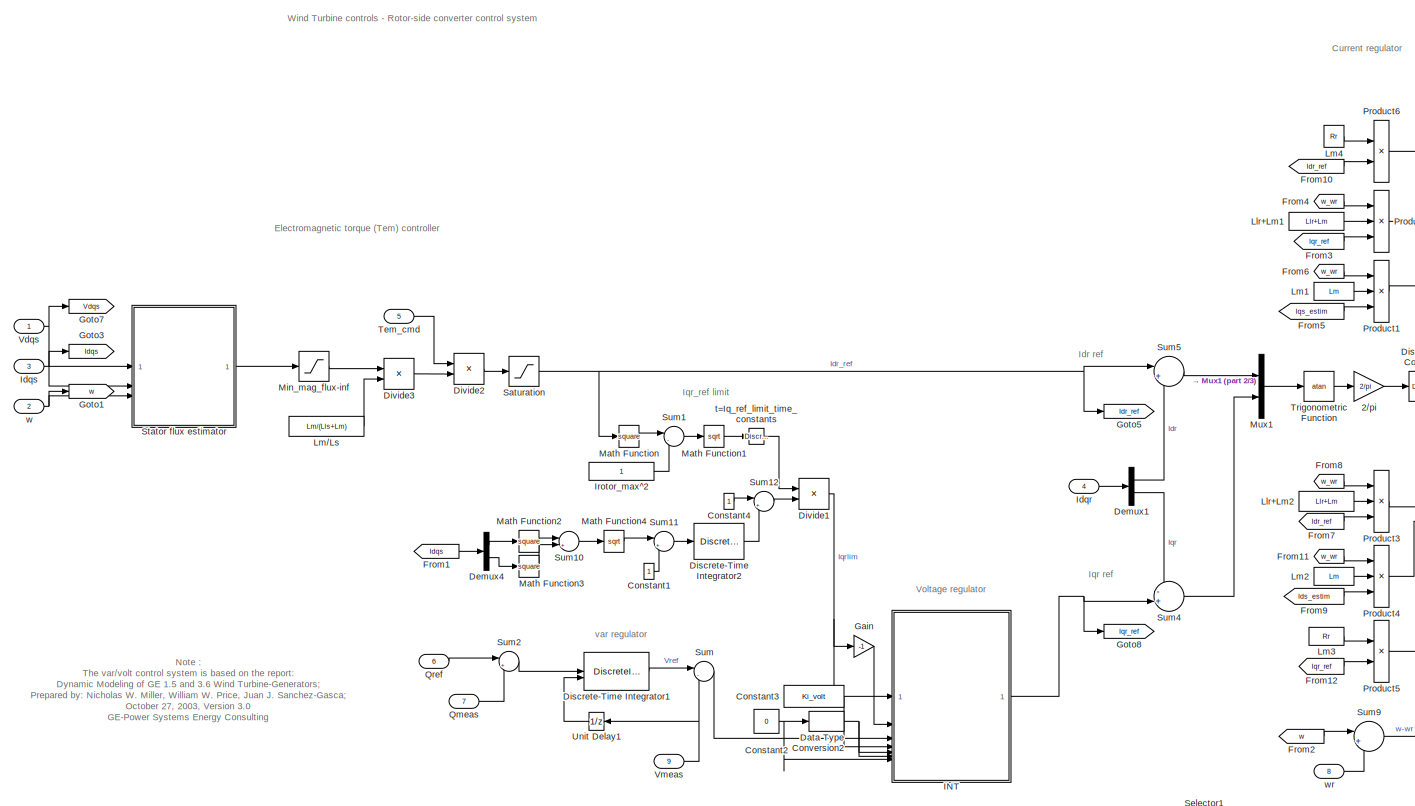
[diagram: DFIG Wind Turbine1/Control/Rotor-side Controls - part 1/3, left side, full height]
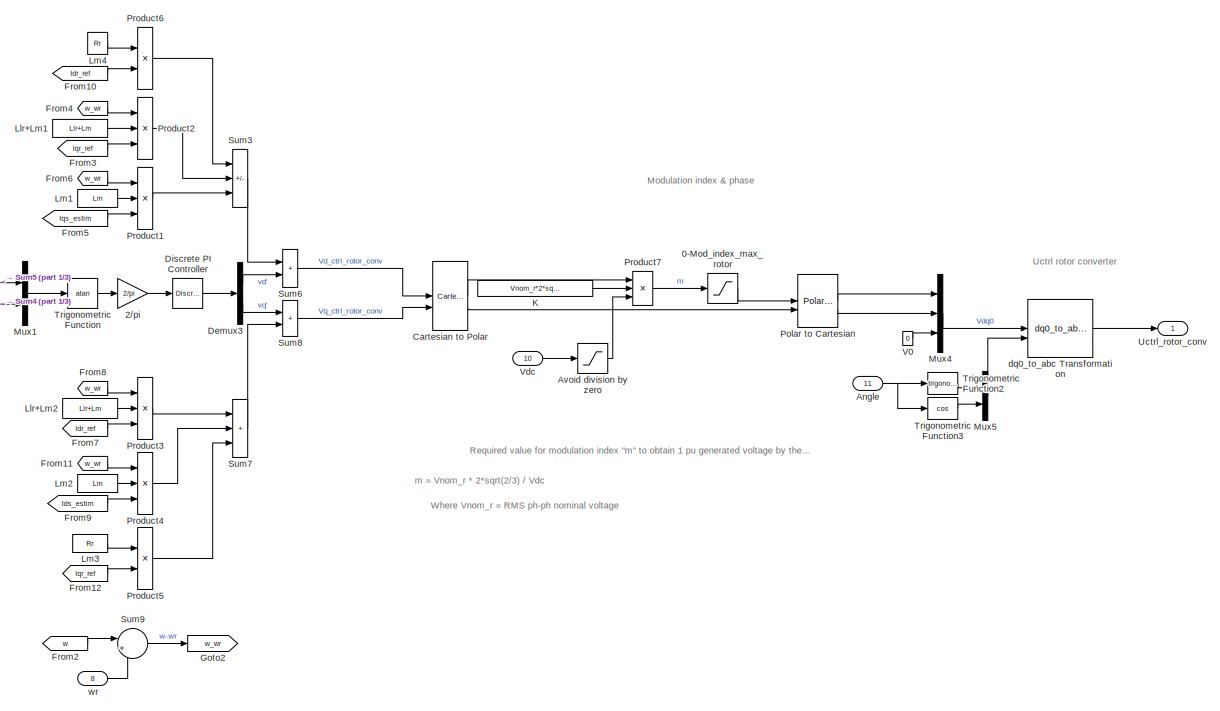
[diagram: DFIG Wind Turbine1/Control/Rotor-side Controls - part 2/3, middle right region]
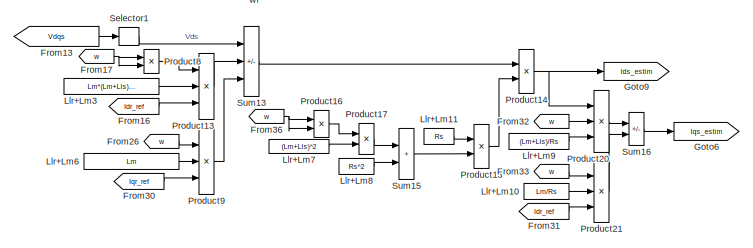
[diagram: DFIG Wind Turbine1/Control/Rotor-side Controls - part 3/3, bottom center region]
BLOCK [SubSystem] DFIG Wind Turbine1/Control/Rotor-side Controls
BLOCK [Saturate] DFIG Wind Turbine1/Control/Rotor-side Controls/0-Mod_index_max_rotor
  LowerLimit = 0
  NameLocation = top
  UpperLimit = Mod_index_max_rotor
BLOCK [Gain] DFIG Wind Turbine1/Control/Rotor-side Controls/2//pi
  Gain = 2/pi
BLOCK [Inport] DFIG Wind Turbine1/Control/Rotor-side Controls/Angle
  Port = 11
BLOCK [Saturate] DFIG Wind Turbine1/Control/Rotor-side Controls/Avoid division by zero
  LowerLimit = 1e-6
  UpperLimit = inf
BLOCK [Reference] DFIG Wind Turbine1/Control/Rotor-side Controls/Cartesian to Polar  REF=simulink_extras/Transformations/Cartesian to
Polar
  SourceBlock = simulink_extras/Transformations/Cartesian to\nPolar
  SourceType = Cart2Polar
BLOCK [Constant] DFIG Wind Turbine1/Control/Rotor-side Controls/Constant1
BLOCK [Constant] DFIG Wind Turbine1/Control/Rotor-side Controls/Constant2
  Value = 0
BLOCK [Constant] DFIG Wind Turbine1/Control/Rotor-side Controls/Constant3
  Value = Ki_volt
BLOCK [Constant] DFIG Wind Turbine1/Control/Rotor-side Controls/Constant4
BLOCK [DataTypeConversion] DFIG Wind Turbine1/Control/Rotor-side Controls/Data Type Conversion2
  OutDataTypeStr = boolean
  RndMeth = Floor
  SaturateOnIntegerOverflow = off
BLOCK [Demux] DFIG Wind Turbine1/Control/Rotor-side Controls/Demux1
  DisplayOption = none
  Outputs = 2
BLOCK [Demux] DFIG Wind Turbine1/Control/Rotor-side Controls/Demux3
  DisplayOption = none
  Outputs = 2
BLOCK [Demux] DFIG Wind Turbine1/Control/Rotor-side Controls/Demux4
  DisplayOption = none
  Outputs = 2
BLOCK [Reference] DFIG Wind Turbine1/Control/Rotor-side Controls/Discrete PI Controller  REF=powerlib_extras/Discrete 
Control Blocks/Discrete
PI Controller
  SourceBlock = powerlib_extras/Discrete \nControl Blocks/Discrete\nPI Controller
  SourceType = Discrete PI Controller
BLOCK [DiscreteIntegrator] DFIG Wind Turbine1/Control/Rotor-side Controls/Discrete-Time Integrator1
  ICPrevOutput = DiscIntNeverNeededParam
  ICPrevScaledInput = DiscIntNeverNeededParam
  InitialCondition = 1
  InitialConditionSource = external
  LimitOutput = on
  LowerSaturationLimit = Min_var_reg
  SampleTime = Ts
  UpperSaturationLimit = Max_var_reg
  gainval = Ki_var
BLOCK [DiscreteIntegrator] DFIG Wind Turbine1/Control/Rotor-side Controls/Discrete-Time Integrator2
  ICPrevOutput = DiscIntNeverNeededParam
  ICPrevScaledInput = DiscIntNeverNeededParam
  LimitOutput = on
  LowerSaturationLimit = 0
  SampleTime = Ts
  UpperSaturationLimit = 1
  gainval = 10
BLOCK [Product] DFIG Wind Turbine1/Control/Rotor-side Controls/Divide1
  Inputs = **
BLOCK [Product] DFIG Wind Turbine1/Control/Rotor-side Controls/Divide2
  Inputs = */
BLOCK [Product] DFIG Wind Turbine1/Control/Rotor-side Controls/Divide3
  Inputs = **
BLOCK [From] DFIG Wind Turbine1/Control/Rotor-side Controls/From1
  CloseFcn = tagdialog Close
  GotoTag = Idqs
BLOCK [From] DFIG Wind Turbine1/Control/Rotor-side Controls/From10
  CloseFcn = tagdialog Close
  GotoTag = Idr_ref
BLOCK [From] DFIG Wind Turbine1/Control/Rotor-side Controls/From11
  CloseFcn = tagdialog Close
  GotoTag = w_wr
BLOCK [From] DFIG Wind Turbine1/Control/Rotor-side Controls/From12
  CloseFcn = tagdialog Close
  GotoTag = Iqr_ref
BLOCK [From] DFIG Wind Turbine1/Control/Rotor-side Controls/From13
  CloseFcn = tagdialog Close
  GotoTag = Vdqs
BLOCK [From] DFIG Wind Turbine1/Control/Rotor-side Controls/From16
  CloseFcn = tagdialog Close
  GotoTag = Idr_ref
BLOCK [From] DFIG Wind Turbine1/Control/Rotor-side Controls/From17
  CloseFcn = tagdialog Close
  GotoTag = w
BLOCK [From] DFIG Wind Turbine1/Control/Rotor-side Controls/From2
  CloseFcn = tagdialog Close
  GotoTag = w
BLOCK [From] DFIG Wind Turbine1/Control/Rotor-side Controls/From26
  CloseFcn = tagdialog Close
  GotoTag = w
BLOCK [From] DFIG Wind Turbine1/Control/Rotor-side Controls/From3
  CloseFcn = tagdialog Close
  GotoTag = Iqr_ref
BLOCK [From] DFIG Wind Turbine1/Control/Rotor-side Controls/From30
  CloseFcn = tagdialog Close
  GotoTag = Iqr_ref
BLOCK [From] DFIG Wind Turbine1/Control/Rotor-side Controls/From31
  CloseFcn = tagdialog Close
  GotoTag = Idr_ref
BLOCK [From] DFIG Wind Turbine1/Control/Rotor-side Controls/From32
  CloseFcn = tagdialog Close
  GotoTag = w
BLOCK [From] DFIG Wind Turbine1/Control/Rotor-side Controls/From33
  CloseFcn = tagdialog Close
  GotoTag = w
BLOCK [From] DFIG Wind Turbine1/Control/Rotor-side Controls/From36
  CloseFcn = tagdialog Close
  GotoTag = w
BLOCK [From] DFIG Wind Turbine1/Control/Rotor-side Controls/From4
  CloseFcn = tagdialog Close
  GotoTag = w_wr
BLOCK [From] DFIG Wind Turbine1/Control/Rotor-side Controls/From5
  CloseFcn = tagdialog Close
  GotoTag = Iqs_estim
BLOCK [From] DFIG Wind Turbine1/Control/Rotor-side Controls/From6
  CloseFcn = tagdialog Close
  GotoTag = w_wr
BLOCK [From] DFIG Wind Turbine1/Control/Rotor-side Controls/From7
  CloseFcn = tagdialog Close
  GotoTag = Idr_ref
BLOCK [From] DFIG Wind Turbine1/Control/Rotor-side Controls/From8
  CloseFcn = tagdialog Close
  GotoTag = w_wr
BLOCK [From] DFIG Wind Turbine1/Control/Rotor-side Controls/From9
  CloseFcn = tagdialog Close
  GotoTag = Ids_estim
BLOCK [Gain] DFIG Wind Turbine1/Control/Rotor-side Controls/Gain
  Gain = -1
  OutDataTypeStr = Inherit: Same as input
  ParamDataTypeStr = Inherit: Same as input
  SaturateOnIntegerOverflow = on
BLOCK [Goto] DFIG Wind Turbine1/Control/Rotor-side Controls/Goto1
  GotoTag = w
BLOCK [Goto] DFIG Wind Turbine1/Control/Rotor-side Controls/Goto2
  GotoTag = w_wr
BLOCK [Goto] DFIG Wind Turbine1/Control/Rotor-side Controls/Goto3
  GotoTag = Idqs
BLOCK [Goto] DFIG Wind Turbine1/Control/Rotor-side Controls/Goto5
  GotoTag = Idr_ref
BLOCK [Goto] DFIG Wind Turbine1/Control/Rotor-side Controls/Goto6
  GotoTag = Iqs_estim
BLOCK [Goto] DFIG Wind Turbine1/Control/Rotor-side Controls/Goto7
  GotoTag = Vdqs
BLOCK [Goto] DFIG Wind Turbine1/Control/Rotor-side Controls/Goto8
  GotoTag = Iqr_ref
BLOCK [Goto] DFIG Wind Turbine1/Control/Rotor-side Controls/Goto9
  GotoTag = Ids_estim
BLOCK [SubSystem] DFIG Wind Turbine1/Control/Rotor-side Controls/INT
BLOCK [Gain] DFIG Wind Turbine1/Control/Rotor-side Controls/INT/Gain
  Gain = Ts* 0.5
  OutDataTypeStr = Inherit: Same as input
  ParamDataTypeStr = Inherit: Same as input
  SaturateOnIntegerOverflow = on
BLOCK [Inport] DFIG Wind Turbine1/Control/Rotor-side Controls/INT/Hold
  Port = 5
BLOCK [UnitDelay] DFIG Wind Turbine1/Control/Rotor-side Controls/INT/IC = 0
  HasFrameUpgradeWarning = on
  SampleTime = Ts
BLOCK [UnitDelay] DFIG Wind Turbine1/Control/Rotor-side Controls/INT/IC = i_ic
  HasFrameUpgradeWarning = on
  SampleTime = Ts
BLOCK [Inport] DFIG Wind Turbine1/Control/Rotor-side Controls/INT/In
  Port = 3
BLOCK [Inport] DFIG Wind Turbine1/Control/Rotor-side Controls/INT/Ki
  Port = 4
BLOCK [Logic] DFIG Wind Turbine1/Control/Rotor-side Controls/INT/Logical Operator4
  Operator = OR
BLOCK [Inport] DFIG Wind Turbine1/Control/Rotor-side Controls/INT/Max
BLOCK [Inport] DFIG Wind Turbine1/Control/Rotor-side Controls/INT/Min
  Port = 2
BLOCK [MinMax] DFIG Wind Turbine1/Control/Rotor-side Controls/INT/MinMax
  InputSameDT = on
  Inputs = 2
  SaturateOnIntegerOverflow = on
BLOCK [MinMax] DFIG Wind Turbine1/Control/Rotor-side Controls/INT/MinMax1
  Function = max
  InputSameDT = on
  Inputs = 2
  SaturateOnIntegerOverflow = on
BLOCK [Outport] DFIG Wind Turbine1/Control/Rotor-side Controls/INT/Out
  InitialOutput = 0
BLOCK [Product] DFIG Wind Turbine1/Control/Rotor-side Controls/INT/Product
  OutDataTypeStr = Inherit: Same as first input
  SaturateOnIntegerOverflow = on
BLOCK [Inport] DFIG Wind Turbine1/Control/Rotor-side Controls/INT/Reset
  Port = 6
BLOCK [Inport] DFIG Wind Turbine1/Control/Rotor-side Controls/INT/Reset Value
  NameLocation = top
  Port = 7
BLOCK [SubSystem] DFIG Wind Turbine1/Control/Rotor-side Controls/INT/S6
BLOCK [Outport] DFIG Wind Turbine1/Control/Rotor-side Controls/INT/S6/  
  InitialOutput = 0
BLOCK [Inport] DFIG Wind Turbine1/Control/Rotor-side Controls/INT/S6/In
  Port = 2
BLOCK [Inport] DFIG Wind Turbine1/Control/Rotor-side Controls/INT/S6/MAX
BLOCK [Inport] DFIG Wind Turbine1/Control/Rotor-side Controls/INT/S6/MIN
  Port = 3
BLOCK [MinMax] DFIG Wind Turbine1/Control/Rotor-side Controls/INT/S6/MinMax
  Function = max
  InputSameDT = on
  Inputs = 2
  SaturateOnIntegerOverflow = on
BLOCK [MinMax] DFIG Wind Turbine1/Control/Rotor-side Controls/INT/S6/MinMax1
  InputSameDT = on
  Inputs = 2
  SaturateOnIntegerOverflow = on
BLOCK [Sum] DFIG Wind Turbine1/Control/Rotor-side Controls/INT/Sum
  IconShape = rectangular
  InputSameDT = on
  OutDataTypeStr = Inherit: Same as first input
  SaturateOnIntegerOverflow = on
BLOCK [Sum] DFIG Wind Turbine1/Control/Rotor-side Controls/INT/Sum1
  IconShape = rectangular
  InputSameDT = on
  OutDataTypeStr = Inherit: Same as first input
  SaturateOnIntegerOverflow = on
BLOCK [Switch] DFIG Wind Turbine1/Control/Rotor-side Controls/INT/Switch2
  Threshold = 0.5
BLOCK [Switch] DFIG Wind Turbine1/Control/Rotor-side Controls/INT/Switch3
  Threshold = 0.5
BLOCK [Switch] DFIG Wind Turbine1/Control/Rotor-side Controls/INT/Switch7
  Threshold = 0.5
BLOCK [Inport] DFIG Wind Turbine1/Control/Rotor-side Controls/Idqr
  NameLocation = top
  Port = 4
BLOCK [Inport] DFIG Wind Turbine1/Control/Rotor-side Controls/Idqs
  Port = 3
BLOCK [Constant] DFIG Wind Turbine1/Control/Rotor-side Controls/Irotor_max^2
BLOCK [Constant] DFIG Wind Turbine1/Control/Rotor-side Controls/K
  Value = Vnom_r*2*sqrt(2/3)
BLOCK [Constant] DFIG Wind Turbine1/Control/Rotor-side Controls/Llr+Lm1
  Value = Llr+Lm
BLOCK [Constant] DFIG Wind Turbine1/Control/Rotor-side Controls/Llr+Lm10
  Value = Lm/Rs
BLOCK [Constant] DFIG Wind Turbine1/Control/Rotor-side Controls/Llr+Lm11
  Value = Rs
BLOCK [Constant] DFIG Wind Turbine1/Control/Rotor-side Controls/Llr+Lm2
  Value = Llr+Lm
BLOCK [Constant] DFIG Wind Turbine1/Control/Rotor-side Controls/Llr+Lm3
  Value = Lm*(Lm+Lls)/Rs
BLOCK [Constant] DFIG Wind Turbine1/Control/Rotor-side Controls/Llr+Lm6
  Value = Lm
BLOCK [Constant] DFIG Wind Turbine1/Control/Rotor-side Controls/Llr+Lm7
  Value = (Lm+Lls)^2
BLOCK [Constant] DFIG Wind Turbine1/Control/Rotor-side Controls/Llr+Lm8
  Value = Rs^2
BLOCK [Constant] DFIG Wind Turbine1/Control/Rotor-side Controls/Llr+Lm9
  Value = (Lm+Lls)/Rs
BLOCK [Constant] DFIG Wind Turbine1/Control/Rotor-side Controls/Lm//Ls
  Value = Lm/(Lls+Lm)
BLOCK [Constant] DFIG Wind Turbine1/Control/Rotor-side Controls/Lm1
  Value = Lm
BLOCK [Constant] DFIG Wind Turbine1/Control/Rotor-side Controls/Lm2
  Value = Lm
BLOCK [Constant] DFIG Wind Turbine1/Control/Rotor-side Controls/Lm3
  Value = Rr
BLOCK [Constant] DFIG Wind Turbine1/Control/Rotor-side Controls/Lm4
  Value = Rr
  VectorParams1D = off
BLOCK [Math] DFIG Wind Turbine1/Control/Rotor-side Controls/Math Function
  Operator = square
  SignedPower = on
BLOCK [Math] DFIG Wind Turbine1/Control/Rotor-side Controls/Math Function1
  Operator = sqrt
  SignedPower = on
BLOCK [Math] DFIG Wind Turbine1/Control/Rotor-side Controls/Math Function2
  Operator = square
  SignedPower = on
BLOCK [Math] DFIG Wind Turbine1/Control/Rotor-side Controls/Math Function3
  Operator = square
  SignedPower = on
BLOCK [Math] DFIG Wind Turbine1/Control/Rotor-side Controls/Math Function4
  Operator = sqrt
  SignedPower = on
BLOCK [Saturate] DFIG Wind Turbine1/Control/Rotor-side Controls/Min_mag_flux-inf
  LowerLimit = Min_mag_flux
  UpperLimit = inf
BLOCK [Mux] DFIG Wind Turbine1/Control/Rotor-side Controls/Mux1
  DisplayOption = bar
  Inputs = 2
BLOCK [Mux] DFIG Wind Turbine1/Control/Rotor-side Controls/Mux4
  DisplayOption = bar
  Inputs = 3
BLOCK [Mux] DFIG Wind Turbine1/Control/Rotor-side Controls/Mux5
  DisplayOption = bar
  Inputs = 2
BLOCK [Reference] DFIG Wind Turbine1/Control/Rotor-side Controls/Polar to Cartesian  REF=simulink_extras/Transformations/Polar to
Cartesian
  SourceBlock = simulink_extras/Transformations/Polar to\nCartesian
  SourceType = Polar2Cart
BLOCK [Product] DFIG Wind Turbine1/Control/Rotor-side Controls/Product1
  Inputs = 3
  OutDataTypeStr = Inherit: Same as first input
  SaturateOnIntegerOverflow = on
BLOCK [Product] DFIG Wind Turbine1/Control/Rotor-side Controls/Product13
  Inputs = 3
  OutDataTypeStr = Inherit: Same as first input
  SaturateOnIntegerOverflow = on
BLOCK [Product] DFIG Wind Turbine1/Control/Rotor-side Controls/Product14
  OutDataTypeStr = Inherit: Same as first input
  SaturateOnIntegerOverflow = on
BLOCK [Product] DFIG Wind Turbine1/Control/Rotor-side Controls/Product16
  OutDataTypeStr = Inherit: Same as first input
  SaturateOnIntegerOverflow = on
BLOCK [Product] DFIG Wind Turbine1/Control/Rotor-side Controls/Product17
  OutDataTypeStr = Inherit: Same as first input
  SaturateOnIntegerOverflow = on
BLOCK [Product] DFIG Wind Turbine1/Control/Rotor-side Controls/Product18
  Inputs = */
  OutDataTypeStr = Inherit: Same as first input
  SaturateOnIntegerOverflow = on
BLOCK [Product] DFIG Wind Turbine1/Control/Rotor-side Controls/Product2
  Inputs = 3
  OutDataTypeStr = Inherit: Same as first input
  SaturateOnIntegerOverflow = on
BLOCK [Product] DFIG Wind Turbine1/Control/Rotor-side Controls/Product20
  Inputs = 3
  OutDataTypeStr = Inherit: Same as first input
  SaturateOnIntegerOverflow = on
BLOCK [Product] DFIG Wind Turbine1/Control/Rotor-side Controls/Product21
  Inputs = 3
  OutDataTypeStr = Inherit: Same as first input
  SaturateOnIntegerOverflow = on
BLOCK [Product] DFIG Wind Turbine1/Control/Rotor-side Controls/Product3
  Inputs = 3
  OutDataTypeStr = Inherit: Same as first input
  SaturateOnIntegerOverflow = on
BLOCK [Product] DFIG Wind Turbine1/Control/Rotor-side Controls/Product4
  Inputs = 3
  OutDataTypeStr = Inherit: Same as first input
  SaturateOnIntegerOverflow = on
BLOCK [Product] DFIG Wind Turbine1/Control/Rotor-side Controls/Product5
  OutDataTypeStr = Inherit: Same as first input
  SaturateOnIntegerOverflow = on
BLOCK [Product] DFIG Wind Turbine1/Control/Rotor-side Controls/Product6
  OutDataTypeStr = Inherit: Same as first input
  SaturateOnIntegerOverflow = on
BLOCK [Product] DFIG Wind Turbine1/Control/Rotor-side Controls/Product7
  InputSameDT = on
  Inputs = **/
  OutDataTypeStr = Inherit: Same as first input
  SaturateOnIntegerOverflow = on
BLOCK [Product] DFIG Wind Turbine1/Control/Rotor-side Controls/Product8
  OutDataTypeStr = Inherit: Same as first input
  SaturateOnIntegerOverflow = on
BLOCK [Product] DFIG Wind Turbine1/Control/Rotor-side Controls/Product9
  Inputs = 3
  OutDataTypeStr = Inherit: Same as first input
  SaturateOnIntegerOverflow = on
BLOCK [Inport] DFIG Wind Turbine1/Control/Rotor-side Controls/Qmeas
  Port = 7
BLOCK [Inport] DFIG Wind Turbine1/Control/Rotor-side Controls/Qref
  Port = 6
BLOCK [Saturate] DFIG Wind Turbine1/Control/Rotor-side Controls/Saturation
  LowerLimit = 0
  UpperLimit = Max_Idr_ref
BLOCK [Selector] DFIG Wind Turbine1/Control/Rotor-side Controls/Selector1
  IndexOptions = Index vector (dialog)
  Indices = 1
  InputPortWidth = 2
  OutputSizes = [(-2)]
BLOCK [SubSystem] DFIG Wind Turbine1/Control/Rotor-side Controls/Stator flux estimator
BLOCK [Product] DFIG Wind Turbine1/Control/Rotor-side Controls/Stator flux estimator/Divide1
  Inputs = */
BLOCK [Product] DFIG Wind Turbine1/Control/Rotor-side Controls/Stator flux estimator/Divide2
  Inputs = **
BLOCK [Product] DFIG Wind Turbine1/Control/Rotor-side Controls/Stator flux estimator/Divide4
  Inputs = */
BLOCK [Product] DFIG Wind Turbine1/Control/Rotor-side Controls/Stator flux estimator/Divide6
  Inputs = **
BLOCK [Gain] DFIG Wind Turbine1/Control/Rotor-side Controls/Stator flux estimator/Gain
  Gain = -1
BLOCK [Inport] DFIG Wind Turbine1/Control/Rotor-side Controls/Stator flux estimator/Idqs
  Port = 2
BLOCK [Reference] DFIG Wind Turbine1/Control/Rotor-side Controls/Stator flux estimator/Lowpass Tau=1//4 cycle  REF=powerlib_extras/Discrete 
Control Blocks/Discrete
1st-Order
Filter
  SourceBlock = powerlib_extras/Discrete \nControl Blocks/Discrete\n1st-Order\nFilter
  SourceType = Discrete 1st-Order Filter
BLOCK [Outport] DFIG Wind Turbine1/Control/Rotor-side Controls/Stator flux estimator/Mag_Flux
BLOCK [Math] DFIG Wind Turbine1/Control/Rotor-side Controls/Stator flux estimator/Math Function1
  Operator = square
  SignedPower = on
BLOCK [Math] DFIG Wind Turbine1/Control/Rotor-side Controls/Stator flux estimator/Math Function2
  Operator = square
  SignedPower = on
BLOCK [Math] DFIG Wind Turbine1/Control/Rotor-side Controls/Stator flux estimator/Math Function3
  Operator = sqrt
  SignedPower = on
BLOCK [Constant] DFIG Wind Turbine1/Control/Rotor-side Controls/Stator flux estimator/Rs
  Value = Rs
BLOCK [Constant] DFIG Wind Turbine1/Control/Rotor-side Controls/Stator flux estimator/Rs2
  Value = Rs
BLOCK [Selector] DFIG Wind Turbine1/Control/Rotor-side Controls/Stator flux estimator/Selector1
  IndexOptions = Index vector (dialog)
  Indices = 2
  InputPortWidth = 2
  OutputSizes = 1
BLOCK [Selector] DFIG Wind Turbine1/Control/Rotor-side Controls/Stator flux estimator/Selector2
  IndexOptions = Index vector (dialog)
  Indices = 1
  InputPortWidth = 2
  OutputSizes = 1
BLOCK [Selector] DFIG Wind Turbine1/Control/Rotor-side Controls/Stator flux estimator/Selector3
  IndexOptions = Index vector (dialog)
  Indices = 2
  InputPortWidth = 2
  OutputSizes = 1
BLOCK [Selector] DFIG Wind Turbine1/Control/Rotor-side Controls/Stator flux estimator/Selector4
  IndexOptions = Index vector (dialog)
  Indices = 1
  InputPortWidth = 2
  OutputSizes = 1
BLOCK [Sum] DFIG Wind Turbine1/Control/Rotor-side Controls/Stator flux estimator/Sum1
  Inputs = |++
BLOCK [Sum] DFIG Wind Turbine1/Control/Rotor-side Controls/Stator flux estimator/Sum2
  Inputs = |+-
BLOCK [Sum] DFIG Wind Turbine1/Control/Rotor-side Controls/Stator flux estimator/Sum3
  Inputs = |+-
BLOCK [Inport] DFIG Wind Turbine1/Control/Rotor-side Controls/Stator flux estimator/Vdqs
BLOCK [Inport] DFIG Wind Turbine1/Control/Rotor-side Controls/Stator flux estimator/w_pu
  Port = 3
BLOCK [Sum] DFIG Wind Turbine1/Control/Rotor-side Controls/Sum
  InputSameDT = on
  Inputs = |-+
  OutDataTypeStr = Inherit: Same as first input
  SaturateOnIntegerOverflow = on
BLOCK [Sum] DFIG Wind Turbine1/Control/Rotor-side Controls/Sum1
  InputSameDT = on
  Inputs = |-+
  OutDataTypeStr = Inherit: Same as first input
  SaturateOnIntegerOverflow = on
BLOCK [Sum] DFIG Wind Turbine1/Control/Rotor-side Controls/Sum10
  InputSameDT = on
  Inputs = |++
  OutDataTypeStr = Inherit: Same as first input
  SaturateOnIntegerOverflow = on
BLOCK [Sum] DFIG Wind Turbine1/Control/Rotor-side Controls/Sum11
  InputSameDT = on
  Inputs = |+-
  OutDataTypeStr = Inherit: Same as first input
  SaturateOnIntegerOverflow = on
BLOCK [Sum] DFIG Wind Turbine1/Control/Rotor-side Controls/Sum12
  InputSameDT = on
  Inputs = |+-
  OutDataTypeStr = Inherit: Same as first input
  SaturateOnIntegerOverflow = on
BLOCK [Sum] DFIG Wind Turbine1/Control/Rotor-side Controls/Sum13
  IconShape = rectangular
  InputSameDT = on
  Inputs = +-+
  OutDataTypeStr = Inherit: Same as first input
  SaturateOnIntegerOverflow = on
BLOCK [Sum] DFIG Wind Turbine1/Control/Rotor-side Controls/Sum15
  IconShape = rectangular
  InputSameDT = on
  OutDataTypeStr = Inherit: Same as first input
  SaturateOnIntegerOverflow = on
BLOCK [Sum] DFIG Wind Turbine1/Control/Rotor-side Controls/Sum16
  IconShape = rectangular
  InputSameDT = on
  Inputs = --
  OutDataTypeStr = Inherit: Same as first input
  SaturateOnIntegerOverflow = on
BLOCK [Sum] DFIG Wind Turbine1/Control/Rotor-side Controls/Sum2
  InputSameDT = on
  Inputs = |+-
  OutDataTypeStr = Inherit: Same as first input
  SaturateOnIntegerOverflow = on
BLOCK [Sum] DFIG Wind Turbine1/Control/Rotor-side Controls/Sum3
  IconShape = rectangular
  InputSameDT = on
  Inputs = +--
  OutDataTypeStr = Inherit: Same as first input
  SaturateOnIntegerOverflow = on
BLOCK [Sum] DFIG Wind Turbine1/Control/Rotor-side Controls/Sum4
  InputSameDT = on
  Inputs = -+|
  OutDataTypeStr = Inherit: Same as first input
  SaturateOnIntegerOverflow = on
BLOCK [Sum] DFIG Wind Turbine1/Control/Rotor-side Controls/Sum5
  InputSameDT = on
  Inputs = |+-
  OutDataTypeStr = Inherit: Same as first input
  SaturateOnIntegerOverflow = on
BLOCK [Sum] DFIG Wind Turbine1/Control/Rotor-side Controls/Sum6
  IconShape = rectangular
  InputSameDT = on
  OutDataTypeStr = Inherit: Same as first input
  SaturateOnIntegerOverflow = on
BLOCK [Sum] DFIG Wind Turbine1/Control/Rotor-side Controls/Sum7
  IconShape = rectangular
  InputSameDT = on
  Inputs = +++
  OutDataTypeStr = Inherit: Same as first input
  SaturateOnIntegerOverflow = on
BLOCK [Sum] DFIG Wind Turbine1/Control/Rotor-side Controls/Sum8
  IconShape = rectangular
  InputSameDT = on
  OutDataTypeStr = Inherit: Same as first input
  SaturateOnIntegerOverflow = on
BLOCK [Sum] DFIG Wind Turbine1/Control/Rotor-side Controls/Sum9
  InputSameDT = on
  Inputs = |+-
  OutDataTypeStr = Inherit: Same as first input
  SaturateOnIntegerOverflow = on
BLOCK [Inport] DFIG Wind Turbine1/Control/Rotor-side Controls/Tem_cmd
  Port = 5
BLOCK [Trigonometry] DFIG Wind Turbine1/Control/Rotor-side Controls/Trigonometric Function
  Operator = atan
BLOCK [Trigonometry] DFIG Wind Turbine1/Control/Rotor-side Controls/Trigonometric Function2
BLOCK [Trigonometry] DFIG Wind Turbine1/Control/Rotor-side Controls/Trigonometric Function3
  Operator = cos
BLOCK [Outport] DFIG Wind Turbine1/Control/Rotor-side Controls/Uctrl_rotor_conv
BLOCK [UnitDelay] DFIG Wind Turbine1/Control/Rotor-side Controls/Unit Delay1
  HasFrameUpgradeWarning = on
  InitialCondition = 1
  SampleTime = Ts
BLOCK [Constant] DFIG Wind Turbine1/Control/Rotor-side Controls/V0
  Value = 0
BLOCK [Inport] DFIG Wind Turbine1/Control/Rotor-side Controls/Vdc
  Port = 10
BLOCK [Inport] DFIG Wind Turbine1/Control/Rotor-side Controls/Vdqs
BLOCK [Inport] DFIG Wind Turbine1/Control/Rotor-side Controls/Vmeas
  Port = 9
BLOCK [Reference] DFIG Wind Turbine1/Control/Rotor-side Controls/dq0_to_abc Transformation  REF=powerlib_extras/Measurements/dq0_to_abc
Transformation
  SourceBlock = powerlib_extras/Measurements/dq0_to_abc\nTransformation
  SourceType = dq0 to abc Transformation
BLOCK [Reference] DFIG Wind Turbine1/Control/Rotor-side Controls/t=Iq_ref_limit_time_constants  REF=powerlib_extras/Discrete 
Control Blocks/Discrete
1st-Order
Filter
  SourceBlock = powerlib_extras/Discrete \nControl Blocks/Discrete\n1st-Order\nFilter
  SourceType = Discrete 1st-Order Filter
BLOCK [Inport] DFIG Wind Turbine1/Control/Rotor-side Controls/w
  Port = 2
BLOCK [Inport] DFIG Wind Turbine1/Control/Rotor-side Controls/wr
  Port = 8
BLOCK [SubSystem] DFIG Wind Turbine1/Control/Speed & Pitch Control
BLOCK [Saturate] DFIG Wind Turbine1/Control/Speed & Pitch Control/0-inf
  LowerLimit = 0
  UpperLimit = inf
BLOCK [Saturate] DFIG Wind Turbine1/Control/Speed & Pitch Control/0-pitch_max
  LowerLimit = 0
  UpperLimit = pitch_max
BLOCK [Saturate] DFIG Wind Turbine1/Control/Speed & Pitch Control/0-pitch_max 
  LowerLimit = 0
  UpperLimit = pitch_max
BLOCK [Constant] DFIG Wind Turbine1/Control/Speed & Pitch Control/Constant2
BLOCK [SubSystem] DFIG Wind Turbine1/Control/Speed & Pitch Control/Discrete PI Controller
  DialogController = POWERSYS.PowerSysDialog
BLOCK [DiscreteIntegrator] DFIG Wind Turbine1/Control/Speed & Pitch Control/Discrete PI Controller/Discrete-Time Integrator
  ICPrevOutput = DiscIntNeverNeededParam
  ICPrevScaledInput = DiscIntNeverNeededParam
  InitialCondition = Init
  LimitOutput = on
  LowerSaturationLimit = LowerLimit
  SampleTime = Ts
  UpperSaturationLimit = UpperLimit
BLOCK [Inport] DFIG Wind Turbine1/Control/Speed & Pitch Control/Discrete PI Controller/Error
BLOCK [Outport] DFIG Wind Turbine1/Control/Speed & Pitch Control/Discrete PI Controller/Out
  InitialOutput = 0
BLOCK [Product] DFIG Wind Turbine1/Control/Speed & Pitch Control/Discrete PI Controller/Product1
  RndMeth = Zero
BLOCK [Product] DFIG Wind Turbine1/Control/Speed & Pitch Control/Discrete PI Controller/Product2
  RndMeth = Zero
BLOCK [Saturate] DFIG Wind Turbine1/Control/Speed & Pitch Control/Discrete PI Controller/Saturation2
  LowerLimit = LowerLimit
  NameLocation = top
  UpperLimit = UpperLimit
BLOCK [Step] DFIG Wind Turbine1/Control/Speed & Pitch Control/Discrete PI Controller/Step_Ki_speed
  After = Ki
  Before = Ki
  SampleTime = Ts
  Time = 999
BLOCK [Step] DFIG Wind Turbine1/Control/Speed & Pitch Control/Discrete PI Controller/Step_Kp_speed
  After = Kp
  Before = Kp
  SampleTime = Ts
  Time = 999
BLOCK [Sum] DFIG Wind Turbine1/Control/Speed & Pitch Control/Discrete PI Controller/Sum6
  IconShape = rectangular
  InputSameDT = on
  OutDataTypeStr = Inherit: Same as first input
  SaturateOnIntegerOverflow = on
BLOCK [Reference] DFIG Wind Turbine1/Control/Speed & Pitch Control/Discrete PI Controller1  REF=powerlib_extras/Discrete 
Control Blocks/Discrete
PI Controller
  SourceBlock = powerlib_extras/Discrete \nControl Blocks/Discrete\nPI Controller
  SourceType = Discrete PI Controller
BLOCK [Gain] DFIG Wind Turbine1/Control/Speed & Pitch Control/Gain2
  Gain = Kp_pitch
  OutDataTypeStr = Inherit: Same as input
  ParamDataTypeStr = Inherit: Same as input
  SaturateOnIntegerOverflow = on
BLOCK [Outport] DFIG Wind Turbine1/Control/Speed & Pitch Control/Pitch (deg)
  Port = 2
BLOCK [Inport] DFIG Wind Turbine1/Control/Speed & Pitch Control/Pmeas
  Port = 2
BLOCK [RateLimiter] DFIG Wind Turbine1/Control/Speed & Pitch Control/Rate Limiter   1
  FallingSlewLimit = -pitch_rate
  RisingSlewLimit = pitch_rate
BLOCK [Saturate] DFIG Wind Turbine1/Control/Speed & Pitch Control/Saturation
  LowerLimit = Speed_min
  UpperLimit = Speed_max
BLOCK [Sum] DFIG Wind Turbine1/Control/Speed & Pitch Control/Sum
  Inputs = -+
  SaturateOnIntegerOverflow = on
BLOCK [Sum] DFIG Wind Turbine1/Control/Speed & Pitch Control/Sum1
  Inputs = |+-
BLOCK [Sum] DFIG Wind Turbine1/Control/Speed & Pitch Control/Sum2
  Inputs = |+-
  SaturateOnIntegerOverflow = on
BLOCK [Sum] DFIG Wind Turbine1/Control/Speed & Pitch Control/Sum3
  Inputs = |++
BLOCK [Switch] DFIG Wind Turbine1/Control/Speed & Pitch Control/Switch
  InputSameDT = off
  SaturateOnIntegerOverflow = off
  Threshold = 0.75
BLOCK [Outport] DFIG Wind Turbine1/Control/Speed & Pitch Control/Tem_cmd
BLOCK [Fcn] DFIG Wind Turbine1/Control/Speed & Pitch Control/Tracking Curve
  Expr = -0.67*u(1)^2+1.42*u(1)+0.51
BLOCK [Gain] DFIG Wind Turbine1/Control/Speed & Pitch Control/pu_elec->pu_mec
  Gain = Pnom/Pmec
BLOCK [Reference] DFIG Wind Turbine1/Control/Speed & Pitch Control/t=Pitch_time_constant  REF=powerlib_extras/Discrete 
Control Blocks/Discrete
1st-Order
Filter
  SourceBlock = powerlib_extras/Discrete \nControl Blocks/Discrete\n1st-Order\nFilter
  SourceType = Discrete 1st-Order Filter
BLOCK [Reference] DFIG Wind Turbine1/Control/Speed & Pitch Control/t=T_speed  REF=powerlib_extras/Discrete 
Control Blocks/Discrete
1st-Order
Filter
  SourceBlock = powerlib_extras/Discrete \nControl Blocks/Discrete\n1st-Order\nFilter
  SourceType = Discrete 1st-Order Filter
BLOCK [Inport] DFIG Wind Turbine1/Control/Speed & Pitch Control/wr
BLOCK [Constant] DFIG Wind Turbine1/Control/Speed & Pitch Control/wref
  Value = 1.2
BLOCK [Terminator] DFIG Wind Turbine1/Control/Terminator
BLOCK [Terminator] DFIG Wind Turbine1/Control/Terminator1
BLOCK [UnitDelay] DFIG Wind Turbine1/Control/Unit Delay1
  HasFrameUpgradeWarning = on
  SampleTime = Ts
BLOCK [UnitDelay] DFIG Wind Turbine1/Control/Unit Delay2
  HasFrameUpgradeWarning = on
  SampleTime = Ts
BLOCK [UnitDelay] DFIG Wind Turbine1/Control/Unit Delay4
  HasFrameUpgradeWarning = on
  SampleTime = Ts
BLOCK [UnitDelay] DFIG Wind Turbine1/Control/Unit Delay5
  HasFrameUpgradeWarning = on
  SampleTime = Ts
BLOCK [UnitDelay] DFIG Wind Turbine1/Control/Unit Delay6
  HasFrameUpgradeWarning = on
  SampleTime = Ts
BLOCK [Inport] DFIG Wind Turbine1/Control/Vabc_B1
BLOCK [Inport] DFIG Wind Turbine1/Control/Vdc_V
  Port = 5
BLOCK [Inport] DFIG Wind Turbine1/Control/angle_rotor_rad
  Port = 7
BLOCK [Inport] DFIG Wind Turbine1/Control/wr
  Port = 8
BLOCK [SubSystem] DFIG Wind Turbine1/Drive Train
BLOCK [Gain] DFIG Wind Turbine1/Drive Train/1_2H_WT
  Gain = 1/(2*H_WT)
  OutDataTypeStr = Inherit: Same as input
  ParamDataTypeStr = Inherit: Same as input
  SaturateOnIntegerOverflow = on
BLOCK [DiscreteIntegrator] DFIG Wind Turbine1/Drive Train/Discrete-Time Integrator
  ICPrevOutput = DiscIntNeverNeededParam
  ICPrevScaledInput = DiscIntNeverNeededParam
  InitialCondition = w_wt0
  SampleTime = Ts
BLOCK [DiscreteIntegrator] DFIG Wind Turbine1/Drive Train/Discrete-Time Integrator1
  ICPrevOutput = DiscIntNeverNeededParam
  ICPrevScaledInput = DiscIntNeverNeededParam
  InitialCondition = torque0/Ksh
  SampleTime = Ts
BLOCK [Inport] DFIG Wind Turbine1/Drive Train/Generator speed (pu)
  Port = 2
BLOCK [Gain] DFIG Wind Turbine1/Drive Train/Mutual damping
  Gain = D_mutual
  OutDataTypeStr = Inherit: Same as input
  ParamDataTypeStr = Inherit: Same as input
  SaturateOnIntegerOverflow = on
BLOCK [Gain] DFIG Wind Turbine1/Drive Train/Stiffness
  Gain = Ksh
  OutDataTypeStr = Inherit: Same as input
  ParamDataTypeStr = Inherit: Same as input
  SaturateOnIntegerOverflow = on
BLOCK [Sum] DFIG Wind Turbine1/Drive Train/Sum
  IconShape = rectangular
  InputSameDT = on
  Inputs = +-
  OutDataTypeStr = Inherit: Same as first input
  SaturateOnIntegerOverflow = on
BLOCK [Sum] DFIG Wind Turbine1/Drive Train/Sum1
  IconShape = rectangular
  InputSameDT = on
  Inputs = +-
  OutDataTypeStr = Inherit: Same as first input
  SaturateOnIntegerOverflow = on
BLOCK [Sum] DFIG Wind Turbine1/Drive Train/Sum2
  IconShape = rectangular
  InputSameDT = on
  OutDataTypeStr = Inherit: Same as first input
  SaturateOnIntegerOverflow = on
BLOCK [Outport] DFIG Wind Turbine1/Drive Train/T_shaft (pu)
  Port = 2
BLOCK [Inport] DFIG Wind Turbine1/Drive Train/T_wt (pu)
BLOCK [Outport] DFIG Wind Turbine1/Drive Train/W_wt (pu)
BLOCK [Gain] DFIG Wind Turbine1/Drive Train/wbase
  Gain = wbase
  OutDataTypeStr = Inherit: Same as input
  ParamDataTypeStr = Inherit: Same as input
  SaturateOnIntegerOverflow = on
BLOCK [Reference] DFIG Wind Turbine1/Filter Q=50  REF=spsThreePhaseSeriesRLCLoadLib/Three-Phase
Series RLC Load
  AttributesFormatString = \n
  LibrarySourceBlock = sps_lib/Passives/Three-Phase\nSeries RLC Load
  NameLocation = left
  SourceBlock = spsThreePhaseSeriesRLCLoadLib/Three-Phase\nSeries RLC Load
  SourceType = Three-Phase Series RLC Load
BLOCK [From] DFIG Wind Turbine1/From
  CloseFcn = tagdialog Close
  GotoTag = wr
BLOCK [From] DFIG Wind Turbine1/From1
  CloseFcn = tagdialog Close
  GotoTag = Vdc_V
BLOCK [From] DFIG Wind Turbine1/From10
  CloseFcn = tagdialog Close
  GotoTag = Iabc_rotor
BLOCK [From] DFIG Wind Turbine1/From11
  CloseFcn = tagdialog Close
  GotoTag = angle_rotor_rad
BLOCK [From] DFIG Wind Turbine1/From12
  CloseFcn = tagdialog Close
  GotoTag = Pulses_grid_conv
BLOCK [From] DFIG Wind Turbine1/From13
  CloseFcn = tagdialog Close
  GotoTag = wr
BLOCK [From] DFIG Wind Turbine1/From14
  CloseFcn = tagdialog Close
  GotoTag = Tm
BLOCK [From] DFIG Wind Turbine1/From15
  CloseFcn = tagdialog Close
  GotoTag = Vabc_B1
BLOCK [From] DFIG Wind Turbine1/From16
  CloseFcn = tagdialog Close
  GotoTag = wr
BLOCK [From] DFIG Wind Turbine1/From17
  CloseFcn = tagdialog Close
  GotoTag = Pulses_rotor_conv
BLOCK [From] DFIG Wind Turbine1/From18
  CloseFcn = tagdialog Close
  GotoTag = Pitch_deg
BLOCK [From] DFIG Wind Turbine1/From2
  CloseFcn = tagdialog Close
  GotoTag = Tm
BLOCK [From] DFIG Wind Turbine1/From21
  CloseFcn = tagdialog Close
  GotoTag = Iabc_grid_conv
BLOCK [From] DFIG Wind Turbine1/From22
  CloseFcn = tagdialog Close
  GotoTag = Vdc_V
BLOCK [From] DFIG Wind Turbine1/From23
  CloseFcn = tagdialog Close
  GotoTag = Vabc_grid_conv
BLOCK [From] DFIG Wind Turbine1/From24
  CloseFcn = tagdialog Close
  GotoTag = PQ_pu
BLOCK [From] DFIG Wind Turbine1/From25
  CloseFcn = tagdialog Close
  GotoTag = Tem
BLOCK [From] DFIG Wind Turbine1/From26
  CloseFcn = tagdialog Close
  GotoTag = AsyncMac_sig
BLOCK [From] DFIG Wind Turbine1/From27
  CloseFcn = tagdialog Close
  GotoTag = TurbineSpeed
BLOCK [From] DFIG Wind Turbine1/From3
  CloseFcn = tagdialog Close
  GotoTag = Iabc_grid_conv
BLOCK [From] DFIG Wind Turbine1/From4
  CloseFcn = tagdialog Close
  GotoTag = Vabc_B1
BLOCK [From] DFIG Wind Turbine1/From5
  CloseFcn = tagdialog Close
  GotoTag = Iabc_rotor
BLOCK [From] DFIG Wind Turbine1/From6
  CloseFcn = tagdialog Close
  GotoTag = Vabc_rotor
BLOCK [From] DFIG Wind Turbine1/From7
  CloseFcn = tagdialog Close
  GotoTag = Pitch_deg
BLOCK [From] DFIG Wind Turbine1/From8
  CloseFcn = tagdialog Close
  GotoTag = Iabc_stator
BLOCK [From] DFIG Wind Turbine1/From9
  CloseFcn = tagdialog Close
  GotoTag = Iabc_stator
BLOCK [Goto] DFIG Wind Turbine1/Goto1
  GotoTag = Tm
BLOCK [Goto] DFIG Wind Turbine1/Goto10
  GotoTag = angle_rotor_rad
BLOCK [Goto] DFIG Wind Turbine1/Goto11
  GotoTag = wr
BLOCK [Goto] DFIG Wind Turbine1/Goto12
  GotoTag = Vabc_rotor
BLOCK [Goto] DFIG Wind Turbine1/Goto13
  GotoTag = Vabc_grid_conv
BLOCK [Goto] DFIG Wind Turbine1/Goto14
  GotoTag = PQ_pu
BLOCK [Goto] DFIG Wind Turbine1/Goto16
  GotoTag = AsyncMac_sig
BLOCK [Goto] DFIG Wind Turbine1/Goto18
  GotoTag = Pulses_grid_conv
BLOCK [Goto] DFIG Wind Turbine1/Goto2
  GotoTag = Pulses_rotor_conv
BLOCK [Goto] DFIG Wind Turbine1/Goto3
  GotoTag = Pitch_deg
BLOCK [Goto] DFIG Wind Turbine1/Goto4
  GotoTag = Tem
BLOCK [Goto] DFIG Wind Turbine1/Goto5
  GotoTag = Iabc_rotor
BLOCK [Goto] DFIG Wind Turbine1/Goto6
  GotoTag = Vdc_V
BLOCK [Goto] DFIG Wind Turbine1/Goto7
  GotoTag = Vabc_B1
BLOCK [Goto] DFIG Wind Turbine1/Goto8
  GotoTag = Iabc_grid_conv
BLOCK [Goto] DFIG Wind Turbine1/Goto9
  GotoTag = Iabc_stator
BLOCK [Reference] DFIG Wind Turbine1/Multimeter  REF=spsMultimeterLib/Multimeter
  LibrarySourceBlock = sps_lib/Sensors and Measurements/Multimeter
  SourceBlock = spsMultimeterLib/Multimeter
  SourceType = Multimeter
BLOCK [Mux] DFIG Wind Turbine1/Mux
  DisplayOption = bar
  Inputs = 3
BLOCK [Mux] DFIG Wind Turbine1/Mux1
  DisplayOption = bar
  Inputs = 3
BLOCK [Gain] DFIG Wind Turbine1/Power base for the Generator
  Gain = -Pmec/Pnom
  OutDataTypeStr = Inherit: Same as input
  ParamDataTypeStr = Inherit: Same as input
  SaturateOnIntegerOverflow = on
BLOCK [Inport] DFIG Wind Turbine1/Qref_pu
  Port = 2
BLOCK [Reference] DFIG Wind Turbine1/Universal Bridge  REF=spsUniversalBridgeLib/Universal Bridge
  LibrarySourceBlock = sps_lib/Power Electronics/Universal Bridge
  SourceBlock = spsUniversalBridgeLib/Universal Bridge
  SourceType = Universal Bridge
BLOCK [Reference] DFIG Wind Turbine1/Universal Bridge1  REF=spsUniversalBridgeLib/Universal Bridge
  LibrarySourceBlock = sps_lib/Power Electronics/Universal Bridge
  SourceBlock = spsUniversalBridgeLib/Universal Bridge
  SourceType = Universal Bridge
BLOCK [Reference] DFIG Wind Turbine1/Vnom_r//Vnom Z=0%  REF=spsThreePhaseTransformerTwoWindingsLib/Three-Phase
Transformer
(Two Windings)
  LibrarySourceBlock = sps_lib/Power Grid Elements/Three-Phase\nTransformer\n(Two Windings)
  SourceBlock = spsThreePhaseTransformerTwoWindingsLib/Three-Phase\nTransformer\n(Two Windings)
  SourceType = Three-Phase Transformer (Two Windings)
BLOCK [Inport] DFIG Wind Turbine1/Wind (m//s) 
BLOCK [SubSystem] DFIG Wind Turbine1/Wind Turbine
  OpenFcn = power_openblockproxy();
BLOCK [Gain] DFIG Wind Turbine1/Wind Turbine/->pu
  Gain = 1/Prated
BLOCK [Saturate] DFIG Wind Turbine1/Wind Turbine/Avoid div. by zero
  LowerLimit = eps
  UpperLimit = inf
BLOCK [Saturate] DFIG Wind Turbine1/Wind Turbine/Avoid div. by zero 
  LowerLimit = eps
  UpperLimit = inf
BLOCK [Fcn] DFIG Wind Turbine1/Wind Turbine/Fcn1
  Expr = K1*u[2]/u[1]
BLOCK [Fcn] DFIG Wind Turbine1/Wind Turbine/Fcn2
  Expr = c1*(c6*u[1] + (-c4 - c3*(2.5 + u[2]) + c2*(1/(u[1] + c7*(2.5 + u[2])) -c8/(1 + (2.5 + u[2])^3)))/exp(c5*(1/(u[1] + c7*(2.5 + u[2])) - c8/(1 + (2.5 + u[2])^3))))
BLOCK [Fcn] DFIG Wind Turbine1/Wind Turbine/K2*Cp*wind^3 
  Expr = K2*u[1]^3*u[2]
BLOCK [Mux] DFIG Wind Turbine1/Wind Turbine/Mux
  DisplayOption = bar
  Inputs = 2
BLOCK [Mux] DFIG Wind Turbine1/Wind Turbine/Mux1
  DisplayOption = bar
  Inputs = 2
BLOCK [Mux] DFIG Wind Turbine1/Wind Turbine/Mux2
  DisplayOption = bar
  Inputs = 2
BLOCK [Inport] DFIG Wind Turbine1/Wind Turbine/Pitch angle (deg)
  Port = 2
BLOCK [Product] DFIG Wind Turbine1/Wind Turbine/Product2
  InputSameDT = on
  Inputs = */
  OutDataTypeStr = Inherit: Same as first input
  SaturateOnIntegerOverflow = on
BLOCK [Outport] DFIG Wind Turbine1/Wind Turbine/Tt (pu)
BLOCK [Inport] DFIG Wind Turbine1/Wind Turbine/W_wt (pu)
BLOCK [Inport] DFIG Wind Turbine1/Wind Turbine/Wind speed (m//s)
  Port = 3
BLOCK [Outport] DFIG Wind Turbine1/m
BLOCK [Reference] Fault (Three-Phase)  REF=ee_lib/Utilities/Fault (Three-Phase)
  NameLocation = right
  SourceBlock = ee_lib/Utilities/Fault (Three-Phase)
  SourceType = Fault (Three-Phase)
BLOCK [From] From
  GotoTag = Vabc_Generator
  TagVisibility = global
BLOCK [From] From1
  GotoTag = Iabc_Generator
  TagVisibility = global
BLOCK [From] From2
  GotoTag = Vabc_DFIG2
  TagVisibility = global
BLOCK [From] From3
  GotoTag = Iabc_DFIG2
  TagVisibility = global
BLOCK [From] From4
  GotoTag = Iabc_DFIG
  TagVisibility = global
BLOCK [From] From5
  GotoTag = PQIN
BLOCK [From] From6
  GotoTag = Vabc_DFIG
  TagVisibility = global
BLOCK [SubSystem] Generator 1 25 MVA 10.5 kV
BLOCK [PMIOPort] Generator 1 25 MVA 10.5 kV/A
  Side = Right
BLOCK [PMIOPort] Generator 1 25 MVA 10.5 kV/B
  Port = 2
  Side = Right
BLOCK [BusSelector] Generator 1 25 MVA 10.5 kV/Bus Selector1
  NameLocation = top
  OutputSignals = Internal voltage Ea (pu),Terminal voltage Va (pu),Rotor speed wm (pu)
BLOCK [PMIOPort] Generator 1 25 MVA 10.5 kV/C
  Port = 3
  Side = Right
BLOCK [Constant] Generator 1 25 MVA 10.5 kV/E2
BLOCK [Goto] Generator 1 25 MVA 10.5 kV/Goto
  GotoTag = g1_angle
  IconDisplay = Signal name
  TagVisibility = global
BLOCK [SubSystem] Generator 1 25 MVA 10.5 kV/PI Speed Regulator
BLOCK [Gain] Generator 1 25 MVA 10.5 kV/PI Speed Regulator/Gain2
  Gain = 1500
  NameLocation = top
  OutDataTypeStr = Inherit: Same as input
  ParamDataTypeStr = Inherit: Same as input
  SaturateOnIntegerOverflow = on
BLOCK [Gain] Generator 1 25 MVA 10.5 kV/PI Speed Regulator/Gain3
  Gain = 100
  NameLocation = top
  OutDataTypeStr = Inherit: Same as input
  ParamDataTypeStr = Inherit: Same as input
  SaturateOnIntegerOverflow = on
BLOCK [Integrator] Generator 1 25 MVA 10.5 kV/PI Speed Regulator/Integrator1
  InitialCondition = 0.8024
  LimitOutput = on
  LowerSaturationLimit = 0
  NameLocation = top
  UpperSaturationLimit = 1
  ZeroCross = off
BLOCK [Constant] Generator 1 25 MVA 10.5 kV/PI Speed Regulator/Reference speed (pu)
  Value = 1.0
BLOCK [Saturate] Generator 1 25 MVA 10.5 kV/PI Speed Regulator/Saturation1
  LowerLimit = 0
  NameLocation = top
  UpperLimit = 1
  ZeroCross = off
BLOCK [Sum] Generator 1 25 MVA 10.5 kV/PI Speed Regulator/Sum3
  InputSameDT = on
  Inputs = -+
  NameLocation = top
  OutDataTypeStr = Inherit: Same as first input
  SaturateOnIntegerOverflow = on
BLOCK [Sum] Generator 1 25 MVA 10.5 kV/PI Speed Regulator/Sum4
  IconShape = rectangular
  InputSameDT = on
  NameLocation = top
  OutDataTypeStr = Inherit: Same as first input
  SaturateOnIntegerOverflow = on
BLOCK [Outport] Generator 1 25 MVA 10.5 kV/PI Speed Regulator/Tmec
BLOCK [Inport] Generator 1 25 MVA 10.5 kV/PI Speed Regulator/w
  NameLocation = right
BLOCK [Product] Generator 1 25 MVA 10.5 kV/Product
  InputSameDT = on
  OutDataTypeStr = Inherit: Same as first input
  SaturateOnIntegerOverflow = on
BLOCK [Reference] Generator 1 25 MVA 10.5 kV/Simplified Synchronous Machine 25 MVA  10.5 kV  REF=spsSimplifiedSynchronousMachinepuUnitsLib/Simplified Synchronous
Machine pu Units
  AttributesFormatString = \n
  LibrarySourceBlock = sps_lib/Electrical Machines/Simplified Synchronous\nMachine pu Units
  SourceBlock = spsSimplifiedSynchronousMachinepuUnitsLib/Simplified Synchronous\nMachine pu Units
  SourceType = Simplified Synchronous Machine
BLOCK [Sum] Generator 1 25 MVA 10.5 kV/Sum
  InputSameDT = on
  Inputs = -+
  NameLocation = top
  OutDataTypeStr = Inherit: Same as first input
  SaturateOnIntegerOverflow = on
BLOCK [Reference] Generator 1 25 MVA 10.5 kV/phi_Ea  REF=powerlib_extras/Measurements/Fourier
  SourceBlock = powerlib_extras/Measurements/Fourier
  SourceType = Fourier analyser
BLOCK [Reference] Generator 1 25 MVA 10.5 kV/phi_Va  REF=powerlib_extras/Measurements/Fourier
  SourceBlock = powerlib_extras/Measurements/Fourier
  SourceType = Fourier analyser
BLOCK [Goto] Goto
  GotoTag = PQIN
BLOCK [From] I3phase
  GotoTag = I3phase
  IconDisplay = Signal name
  TagVisibility = global
BLOCK [From] I3phase1
  GotoTag = VBESS_3phase
  IconDisplay = Signal name
  TagVisibility = global
BLOCK [From] I3phase2
  GotoTag = IBESS_3phase
  IconDisplay = Signal name
  TagVisibility = global
BLOCK [Reference] Load 1 1 MW  REF=spsThreePhaseSeriesRLCLoadLib/Three-Phase
Series RLC Load
  AttributesFormatString = \n
  LibrarySourceBlock = sps_lib/Passives/Three-Phase\nSeries RLC Load
  NameLocation = right
  SourceBlock = spsThreePhaseSeriesRLCLoadLib/Three-Phase\nSeries RLC Load
  SourceType = Three-Phase Series RLC Load
BLOCK [Reference] Load 2 1MW  REF=spsThreePhaseSeriesRLCLoadLib/Three-Phase
Series RLC Load
  AttributesFormatString = \n
  LibrarySourceBlock = sps_lib/Passives/Three-Phase\nSeries RLC Load
  NameLocation = left
  SourceBlock = spsThreePhaseSeriesRLCLoadLib/Three-Phase\nSeries RLC Load
  SourceType = Three-Phase Series RLC Load
BLOCK [SubSystem] Measurement of DFIG
BLOCK [Gain] Measurement of DFIG/Gain2
  Gain = 1/(575*sqrt(2)/sqrt(3))
BLOCK [Inport] Measurement of DFIG/Ipcc
BLOCK [Reference] Measurement of DFIG/PLL (3ph)  REF=spsPLL3phLib/PLL
(3ph)
  SourceBlock = spsPLL3phLib/PLL\n(3ph)
  SourceType = PLL (3ph)
BLOCK [Reference] Measurement of DFIG/Power (PLL-Driven, Positive-Sequence)  REF=spsPowerPLLDrivenPositiveSequenceLib/Power
(PLL-Driven,
Positive-Sequence)
  SourceBlock = spsPowerPLLDrivenPositiveSequenceLib/Power\n(PLL-Driven,\nPositive-Sequence)
  SourceType = Power (PLL-Driven, Positive-Sequence)
BLOCK [Outport] Measurement of DFIG/Ppcc_kW
BLOCK [Outport] Measurement of DFIG/Qpcc_kvar
  Port = 2
BLOCK [Saturate] Measurement of DFIG/Saturation1
  LowerLimit = 45
  UpperLimit = 55
BLOCK [Inport] Measurement of DFIG/Vpcc
  Port = 2
BLOCK [SubSystem] Measurement of DFIG1
BLOCK [Gain] Measurement of DFIG1/Gain2
  Gain = 1/(575*sqrt(2)/sqrt(3))
BLOCK [Inport] Measurement of DFIG1/Ipcc
BLOCK [Reference] Measurement of DFIG1/PLL (3ph)  REF=spsPLL3phLib/PLL
(3ph)
  SourceBlock = spsPLL3phLib/PLL\n(3ph)
  SourceType = PLL (3ph)
BLOCK [Reference] Measurement of DFIG1/Power (PLL-Driven, Positive-Sequence)  REF=spsPowerPLLDrivenPositiveSequenceLib/Power
(PLL-Driven,
Positive-Sequence)
  SourceBlock = spsPowerPLLDrivenPositiveSequenceLib/Power\n(PLL-Driven,\nPositive-Sequence)
  SourceType = Power (PLL-Driven, Positive-Sequence)
BLOCK [Outport] Measurement of DFIG1/Ppcc_kW
BLOCK [Outport] Measurement of DFIG1/Qpcc_kvar
  Port = 2
BLOCK [Saturate] Measurement of DFIG1/Saturation1
  LowerLimit = 45
  UpperLimit = 55
BLOCK [Inport] Measurement of DFIG1/Vpcc
  Port = 2
BLOCK [SubSystem] Measurement of Generator
BLOCK [Gain] Measurement of Generator/Gain2
  Gain = 1/(10500*sqrt(2)/sqrt(3))
BLOCK [Inport] Measurement of Generator/Ipcc
BLOCK [Reference] Measurement of Generator/PLL (3ph)  REF=spsPLL3phLib/PLL
(3ph)
  SourceBlock = spsPLL3phLib/PLL\n(3ph)
  SourceType = PLL (3ph)
BLOCK [Reference] Measurement of Generator/Power (PLL-Driven, Positive-Sequence)  REF=spsPowerPLLDrivenPositiveSequenceLib/Power
(PLL-Driven,
Positive-Sequence)
  SourceBlock = spsPowerPLLDrivenPositiveSequenceLib/Power\n(PLL-Driven,\nPositive-Sequence)
  SourceType = Power (PLL-Driven, Positive-Sequence)
BLOCK [Outport] Measurement of Generator/Ppcc_kW
BLOCK [Outport] Measurement of Generator/Qpcc_kvar
  Port = 2
BLOCK [Saturate] Measurement of Generator/Saturation1
  LowerLimit = 45
  UpperLimit = 55
BLOCK [Inport] Measurement of Generator/Vpcc
  Port = 2
BLOCK [Mux] Mux1
  DisplayOption = bar
  Inputs = 2
BLOCK [Constant] Qref
  Value = 0
BLOCK [Constant] Qref1
  Value = 0
BLOCK [Scope] Scope1
  Floating = off
  IOType = viewer
  NumInputPorts = 1
  ScopeSpecificationString = C++SS(StrPVP('Location','[188, 365, 512, 604]'),StrPVP('Open','off'),MxPVP('AxesTitles',54,'struct(''axes1'',''%<SignalLabel>'')'),StrPVP('ShowDataMarkers','off'),StrPVP('ShowLegends','off'),StrPVP('MaxDataPoints','7500'),StrPVP('LimitDataPoints','on'),StrPVP('DataFormat','Array'),StrPVP('Decimation','1'),StrPVP('BlockParamSampleInput','off'))
BLOCK [Scope] Scope2
  Floating = off
  NumInputPorts = 4
  ScopeSpecificationString = Simulink.scopes.TimeScopeBlockCfg('CurrentConfiguration', extmgr.ConfigurationSet(extmgr.Configuration('Core','General UI',true),extmgr.Configuration('Core','Source UI',true),extmgr.Configuration('Sources','WiredSimulink',true,'DataLoggingVariableName','ScopeData1'),extmgr.Configuration('Visuals','Time Domain',true,'SerializedDisplays',{struct('MinYLimReal','49.36117','MaxYLimReal','50.60073','YLa...<+3591ch>
BLOCK [Scope] Scope3
  Floating = off
  NumInputPorts = 4
  ScopeSpecificationString = Simulink.scopes.TimeScopeBlockCfg('CurrentConfiguration', extmgr.ConfigurationSet(extmgr.Configuration('Core','General UI',true),extmgr.Configuration('Core','Source UI',true),extmgr.Configuration('Sources','WiredSimulink',true,'DataLoggingVariableName','ScopeData1'),extmgr.Configuration('Visuals','Time Domain',true,'SerializedDisplays',{struct('MinYLimReal','49.42134','MaxYLimReal','50.7207','YLab...<+3508ch>
BLOCK [Scope] Scope4
  Floating = off
  NumInputPorts = 6
  ScopeSpecificationString = Simulink.scopes.TimeScopeBlockCfg('CurrentConfiguration', extmgr.ConfigurationSet(extmgr.Configuration('Core','General UI',true),extmgr.Configuration('Core','Source UI',true),extmgr.Configuration('Sources','WiredSimulink',true,'DataLoggingVariableName','ScopeData3'),extmgr.Configuration('Visuals','Time Domain',true,'SerializedDisplays',{struct('MinYLimReal','-3175277.40275','MaxYLimReal','28577511...<+5039ch>
BLOCK [Terminator] Terminator
BLOCK [Reference] Three-Phase Breaker  REF=spsThreePhaseBreakerLib/Three-Phase Breaker
  LibrarySourceBlock = sps_lib/Power Grid Elements/Three-Phase Breaker
  SourceBlock = spsThreePhaseBreakerLib/Three-Phase Breaker
  SourceType = Three-Phase Breaker
BLOCK [Reference] Three-Phase Fault1  REF=spsThreePhaseFaultLib/Three-Phase Fault
  LibrarySourceBlock = sps_lib/Power Grid Elements/Three-Phase Fault
  NameLocation = left
  SourceBlock = spsThreePhaseFaultLib/Three-Phase Fault
  SourceType = Three-Phase Fault
BLOCK [Reference] Three-Phase Fault2  REF=spsThreePhaseFaultLib/Three-Phase Fault
  LibrarySourceBlock = sps_lib/Power Grid Elements/Three-Phase Fault
  NameLocation = left
  SourceBlock = spsThreePhaseFaultLib/Three-Phase Fault
  SourceType = Three-Phase Fault
BLOCK [Reference] Three-Phase Series RLC Load  REF=spsThreePhaseSeriesRLCLoadLib/Three-Phase
Series RLC Load
  AttributesFormatString = \n
  LibrarySourceBlock = sps_lib/Passives/Three-Phase\nSeries RLC Load
  SourceBlock = spsThreePhaseSeriesRLCLoadLib/Three-Phase\nSeries RLC Load
  SourceType = Three-Phase Series RLC Load
BLOCK [SubSystem] Transformer 1 50 MVA 0.575 // 132 kV
BLOCK [Reference] Transformer 1 50 MVA 0.575 // 132 kV/50 MVA 10.5 // 132 kV  REF=spsThreePhaseTransformerTwoWindingsLib/Three-Phase
Transformer
(Two Windings)
  AttributesFormatString = \n
  LibrarySourceBlock = sps_lib/Power Grid Elements/Three-Phase\nTransformer\n(Two Windings)
  SourceBlock = spsThreePhaseTransformerTwoWindingsLib/Three-Phase\nTransformer\n(Two Windings)
  SourceType = Three-Phase Transformer (Two Windings)
BLOCK [PMIOPort] Transformer 1 50 MVA 0.575 // 132 kV/A
  Side = Left
BLOCK [PMIOPort] Transformer 1 50 MVA 0.575 // 132 kV/B
  Port = 3
  Side = Left
BLOCK [PMIOPort] Transformer 1 50 MVA 0.575 // 132 kV/C
  Port = 5
  Side = Left
BLOCK [Reference] Transformer 1 50 MVA 0.575 // 132 kV/CB8  REF=spsThreePhaseBreakerLib/Three-Phase Breaker
  LibrarySourceBlock = sps_lib/Power Grid Elements/Three-Phase Breaker
  SourceBlock = spsThreePhaseBreakerLib/Three-Phase Breaker
  SourceType = Three-Phase Breaker
BLOCK [PMIOPort] Transformer 1 50 MVA 0.575 // 132 kV/a
  Port = 2
  Side = Right
BLOCK [PMIOPort] Transformer 1 50 MVA 0.575 // 132 kV/b
  Port = 4
  Side = Right
BLOCK [PMIOPort] Transformer 1 50 MVA 0.575 // 132 kV/c
  Port = 6
  Side = Right
BLOCK [SubSystem] Transformer 1 50 MVA 0.575 // 132 kV1
BLOCK [Reference] Transformer 1 50 MVA 0.575 // 132 kV1/50 MVA 10.5 // 132 kV  REF=spsThreePhaseTransformerTwoWindingsLib/Three-Phase
Transformer
(Two Windings)
  AttributesFormatString = \n
  LibrarySourceBlock = sps_lib/Power Grid Elements/Three-Phase\nTransformer\n(Two Windings)
  SourceBlock = spsThreePhaseTransformerTwoWindingsLib/Three-Phase\nTransformer\n(Two Windings)
  SourceType = Three-Phase Transformer (Two Windings)
BLOCK [PMIOPort] Transformer 1 50 MVA 0.575 // 132 kV1/A
  Side = Left
BLOCK [PMIOPort] Transformer 1 50 MVA 0.575 // 132 kV1/B
  Port = 3
  Side = Left
BLOCK [PMIOPort] Transformer 1 50 MVA 0.575 // 132 kV1/C
  Port = 5
  Side = Left
BLOCK [Reference] Transformer 1 50 MVA 0.575 // 132 kV1/CB8  REF=spsThreePhaseBreakerLib/Three-Phase Breaker
  LibrarySourceBlock = sps_lib/Power Grid Elements/Three-Phase Breaker
  SourceBlock = spsThreePhaseBreakerLib/Three-Phase Breaker
  SourceType = Three-Phase Breaker
BLOCK [PMIOPort] Transformer 1 50 MVA 0.575 // 132 kV1/a
  Port = 2
  Side = Right
BLOCK [PMIOPort] Transformer 1 50 MVA 0.575 // 132 kV1/b
  Port = 4
  Side = Right
BLOCK [PMIOPort] Transformer 1 50 MVA 0.575 // 132 kV1/c
  Port = 6
  Side = Right
BLOCK [SubSystem] Transformer 2 50 MVA 10.5 // 132 kV
BLOCK [Reference] Transformer 2 50 MVA 10.5 // 132 kV/50 MVA 10.5 // 132 kV  REF=spsThreePhaseTransformerTwoWindingsLib/Three-Phase
Transformer
(Two Windings)
  AttributesFormatString = \n
  LibrarySourceBlock = sps_lib/Power Grid Elements/Three-Phase\nTransformer\n(Two Windings)
  SourceBlock = spsThreePhaseTransformerTwoWindingsLib/Three-Phase\nTransformer\n(Two Windings)
  SourceType = Three-Phase Transformer (Two Windings)
BLOCK [PMIOPort] Transformer 2 50 MVA 10.5 // 132 kV/A
  Side = Left
BLOCK [PMIOPort] Transformer 2 50 MVA 10.5 // 132 kV/B
  Port = 3
  Side = Left
BLOCK [PMIOPort] Transformer 2 50 MVA 10.5 // 132 kV/C
  Port = 5
  Side = Left
BLOCK [Reference] Transformer 2 50 MVA 10.5 // 132 kV/CB8  REF=spsThreePhaseBreakerLib/Three-Phase Breaker
  LibrarySourceBlock = sps_lib/Power Grid Elements/Three-Phase Breaker
  SourceBlock = spsThreePhaseBreakerLib/Three-Phase Breaker
  SourceType = Three-Phase Breaker
BLOCK [PMIOPort] Transformer 2 50 MVA 10.5 // 132 kV/a
  Port = 2
  Side = Right
BLOCK [PMIOPort] Transformer 2 50 MVA 10.5 // 132 kV/b
  Port = 4
  Side = Right
BLOCK [PMIOPort] Transformer 2 50 MVA 10.5 // 132 kV/c
  Port = 6
  Side = Right
BLOCK [SubSystem] Transformer 2 50 MVA 132 // 11 kV
BLOCK [Reference] Transformer 2 50 MVA 132 // 11 kV/50 MVA 132 // 11 kV  REF=spsThreePhaseTransformerTwoWindingsLib/Three-Phase
Transformer
(Two Windings)
  AttributesFormatString = \n
  LibrarySourceBlock = sps_lib/Power Grid Elements/Three-Phase\nTransformer\n(Two Windings)
  SourceBlock = spsThreePhaseTransformerTwoWindingsLib/Three-Phase\nTransformer\n(Two Windings)
  SourceType = Three-Phase Transformer (Two Windings)
BLOCK [PMIOPort] Transformer 2 50 MVA 132 // 11 kV/A
  Side = Left
BLOCK [PMIOPort] Transformer 2 50 MVA 132 // 11 kV/B
  Port = 3
  Side = Left
BLOCK [PMIOPort] Transformer 2 50 MVA 132 // 11 kV/C
  Port = 5
  Side = Left
BLOCK [Reference] Transformer 2 50 MVA 132 // 11 kV/CB4  REF=spsThreePhaseBreakerLib/Three-Phase Breaker
  AttributesFormatString = \n
  LibrarySourceBlock = sps_lib/Power Grid Elements/Three-Phase Breaker
  SourceBlock = spsThreePhaseBreakerLib/Three-Phase Breaker
  SourceType = Three-Phase Breaker
BLOCK [Reference] Transformer 2 50 MVA 132 // 11 kV/CB7  REF=spsThreePhaseBreakerLib/Three-Phase Breaker
  AttributesFormatString = \n
  LibrarySourceBlock = sps_lib/Power Grid Elements/Three-Phase Breaker
  SourceBlock = spsThreePhaseBreakerLib/Three-Phase Breaker
  SourceType = Three-Phase Breaker
BLOCK [PMIOPort] Transformer 2 50 MVA 132 // 11 kV/a
  Port = 2
  Side = Right
BLOCK [PMIOPort] Transformer 2 50 MVA 132 // 11 kV/b
  Port = 4
  Side = Right
BLOCK [PMIOPort] Transformer 2 50 MVA 132 // 11 kV/c
  Port = 6
  Side = Right
BLOCK [SubSystem] Transformer 3 50 MVA 11 // 0.415 kV
BLOCK [Reference] Transformer 3 50 MVA 11 // 0.415 kV/50 MVA 11 // 0.415 kV  REF=spsThreePhaseTransformerTwoWindingsLib/Three-Phase
Transformer
(Two Windings)
  AttributesFormatString = \n
  LibrarySourceBlock = sps_lib/Power Grid Elements/Three-Phase\nTransformer\n(Two Windings)
  SourceBlock = spsThreePhaseTransformerTwoWindingsLib/Three-Phase\nTransformer\n(Two Windings)
  SourceType = Three-Phase Transformer (Two Windings)
BLOCK [PMIOPort] Transformer 3 50 MVA 11 // 0.415 kV/A
  Side = Right
BLOCK [PMIOPort] Transformer 3 50 MVA 11 // 0.415 kV/B
  Port = 3
  Side = Right
BLOCK [PMIOPort] Transformer 3 50 MVA 11 // 0.415 kV/C
  Port = 5
  Side = Right
BLOCK [Reference] Transformer 3 50 MVA 11 // 0.415 kV/CB4  REF=spsThreePhaseBreakerLib/Three-Phase Breaker
  LibrarySourceBlock = sps_lib/Power Grid Elements/Three-Phase Breaker
  SourceBlock = spsThreePhaseBreakerLib/Three-Phase Breaker
  SourceType = Three-Phase Breaker
BLOCK [PMIOPort] Transformer 3 50 MVA 11 // 0.415 kV/a
  Port = 2
  Side = Left
BLOCK [PMIOPort] Transformer 3 50 MVA 11 // 0.415 kV/b
  Port = 4
  Side = Left
BLOCK [PMIOPort] Transformer 3 50 MVA 11 // 0.415 kV/c
  Port = 6
  Side = Left
BLOCK [SubSystem] Transformer 4 50 MVA 11 // 5 kV
BLOCK [Reference] Transformer 4 50 MVA 11 // 5 kV/50 MVA 11 // 5 kV  REF=spsThreePhaseTransformerTwoWindingsLib/Three-Phase
Transformer
(Two Windings)
  AttributesFormatString = \n
  LibrarySourceBlock = sps_lib/Power Grid Elements/Three-Phase\nTransformer\n(Two Windings)
  SourceBlock = spsThreePhaseTransformerTwoWindingsLib/Three-Phase\nTransformer\n(Two Windings)
  SourceType = Three-Phase Transformer (Two Windings)
BLOCK [PMIOPort] Transformer 4 50 MVA 11 // 5 kV/A
  Port = 2
  Side = Left
BLOCK [PMIOPort] Transformer 4 50 MVA 11 // 5 kV/B
  Port = 4
  Side = Left
BLOCK [PMIOPort] Transformer 4 50 MVA 11 // 5 kV/C
  Port = 6
  Side = Left
BLOCK [Reference] Transformer 4 50 MVA 11 // 5 kV/CB4  REF=spsThreePhaseBreakerLib/Three-Phase Breaker
  LibrarySourceBlock = sps_lib/Power Grid Elements/Three-Phase Breaker
  SourceBlock = spsThreePhaseBreakerLib/Three-Phase Breaker
  SourceType = Three-Phase Breaker
BLOCK [Reference] Transformer 4 50 MVA 11 // 5 kV/CB6  REF=spsThreePhaseBreakerLib/Three-Phase Breaker
  LibrarySourceBlock = sps_lib/Power Grid Elements/Three-Phase Breaker
  SourceBlock = spsThreePhaseBreakerLib/Three-Phase Breaker
  SourceType = Three-Phase Breaker
BLOCK [PMIOPort] Transformer 4 50 MVA 11 // 5 kV/a
  Side = Right
BLOCK [PMIOPort] Transformer 4 50 MVA 11 // 5 kV/b
  Port = 3
  Side = Right
BLOCK [PMIOPort] Transformer 4 50 MVA 11 // 5 kV/c
  Port = 5
  Side = Right
BLOCK [From] V3phase
  GotoTag = V3phase
  IconDisplay = Signal name
  TagVisibility = global
BLOCK [Reference] Variable load  REF=spsThreePhaseDynamicLoadLib/Three-Phase
Dynamic Load
  NameLocation = top
  SourceBlock = spsThreePhaseDynamicLoadLib/Three-Phase\nDynamic Load
  SourceType = Three-Phase Dynamic Load
BLOCK [Reference] active power1  REF=spsStairGeneratorLib/Stair
Generator
  LibrarySourceBlock = sps_lib/Sources/Signal Generator Sources/Stair\nGenerator
  SourceBlock = spsStairGeneratorLib/Stair\nGenerator
  SourceType = Stair Generator
BLOCK [ToWorkspace] freq
  MaxDataPoints = inf
  SampleTime = -1
  SaveFormat = Structure With Time
  VariableName = freq
BLOCK [Reference] powergui  REF=sps_lib/powergui
  Priority = 1
  SourceBlock = sps_lib/powergui
  SourceType = PSB option menu block
BLOCK [Reference] reactive power  REF=spsStairGeneratorLib/Stair
Generator
  LibrarySourceBlock = sps_lib/Sources/Signal Generator Sources/Stair\nGenerator
  SourceBlock = spsStairGeneratorLib/Stair\nGenerator
  SourceType = Stair Generator
ANNOTATION (root): line to ine fault
ANNOTATION DC // AC Inverter: Load
ANNOTATION DFIG Wind Turbine: Outputs
ANNOTATION DFIG Wind Turbine: AC-DC-AC Converter Average Model
ANNOTATION DFIG Wind Turbine: Turbine and Drive Train
ANNOTATION DFIG Wind Turbine: Wind Turbine Control
ANNOTATION DFIG Wind Turbine: Wound-Rotor Induction Generator
ANNOTATION DFIG Wind Turbine/Control: Filtering and Measurements
ANNOTATION DFIG Wind Turbine/Control: Grid-Side Converter Control System
ANNOTATION DFIG Wind Turbine/Control: Rotor-Side Converter Control System
ANNOTATION DFIG Wind Turbine/Control: Speed regulator & Pitch Control
ANNOTATION DFIG Wind Turbine/Control: Wind Turbine controls - GE DFIG 1.5MW
ANNOTATION DFIG Wind Turbine/Control/Grid-side Controls: Current regulator
ANNOTATION DFIG Wind Turbine/Control/Grid-side Controls: Modulation index & phase
ANNOTATION DFIG Wind Turbine/Control/Grid-side Controls: Required value for modulation index "m" to obtain 1 pu generated voltage by the converter:
ANNOTATION DFIG Wind Turbine/Control/Grid-side Controls: Uctrl grid converter
ANNOTATION DFIG Wind Turbine/Control/Grid-side Controls: Vdc regulator
ANNOTATION DFIG Wind Turbine/Control/Grid-side Controls: Where Vnom = RMS ph-ph nominal voltage
ANNOTATION DFIG Wind Turbine/Control/Grid-side Controls: Wind Turbine controls - Grid-side converter control system
ANNOTATION DFIG Wind Turbine/Control/Grid-side Controls: m = Vnom * 2*sqrt(2/3) / Vdc
ANNOTATION DFIG Wind Turbine/Control/Measurement and Transformation: Calculation of P Q measured including filter contribution
ANNOTATION DFIG Wind Turbine/Control/Measurement and Transformation: DQ Transformation
ANNOTATION DFIG Wind Turbine/Control/Measurement and Transformation: Inputs
ANNOTATION DFIG Wind Turbine/Control/Measurement and Transformation: Outputs
ANNOTATION DFIG Wind Turbine/Control/Measurement and Transformation: P,Q & V
ANNOTATION DFIG Wind Turbine/Control/Measurement and Transformation: PLL
ANNOTATION DFIG Wind Turbine/Control/Measurement and Transformation: Wind Turbine controls - Filtering, Measurements and transformation
ANNOTATION DFIG Wind Turbine/Control/Measurement and Transformation/ Improved Discrete 3-phase PLL: New Discrete 3-phase PLL
ANNOTATION DFIG Wind Turbine/Control/Measurement and Transformation/ Improved Discrete 3-phase PLL: Pierre Giroux, Gilbert Sybille, R. Gagnon Power System Laboratory, IREQ Hydro-Quebec
ANNOTATION DFIG Wind Turbine/Control/Measurement and Transformation/Discrete 3-phase PLL-Driven Positive-Sequence Active & Reactive Power: Discrete 3-phase PLL-driven Positive-Sequence Active & Reactive Power
ANNOTATION DFIG Wind Turbine/Control/Measurement and Transformation/Discrete 3-phase PLL-Driven Positive-Sequence Active & Reactive Power: Pierre Giroux, Gilbert Sybille Power System Simulation Laboratory IREQ, Hydro-Quebc
ANNOTATION DFIG Wind Turbine/Control/Measurement and Transformation/Discrete 3-phase PLL-Driven Positive-Sequence Active & Reactive Power/Discrete 3-phase PLL-Driven Positive-Sequence Fundamental Value: Discrete 3-phase PLL-Driven Positive-Sequence Fundamental Value
ANNOTATION DFIG Wind Turbine/Control/Measurement and Transformation/Discrete 3-phase PLL-Driven Positive-Sequence Active & Reactive Power/Discrete 3-phase PLL-Driven Positive-Sequence Fundamental Value: Pierre Giroux, Gilbert Sybille Power System Simulation Laboratory IREQ, Hydro-Quebc
ANNOTATION DFIG Wind Turbine/Control/Measurement and Transformation/Discrete 3-phase PLL-Driven Positive-Sequence Active & Reactive Power/Discrete 3-phase PLL-Driven Positive-Sequence Fundamental Value/Discrete Variable Frequency Mean value1: Pierre Giroux, Gilbert Sybille, Richard Gagnon Power System Simulation Laboratory IREQ, Hydro-Quebc
ANNOTATION DFIG Wind Turbine/Control/Measurement and Transformation/Discrete 3-phase PLL-Driven Positive-Sequence Active & Reactive Power/Discrete 3-phase PLL-Driven Positive-Sequence Fundamental Value/Discrete Variable Frequency Mean value1: Variable frequency - Discrete Mean Value
ANNOTATION DFIG Wind Turbine/Control/Measurement and Transformation/Discrete 3-phase PLL-Driven Positive-Sequence Active & Reactive Power/Discrete 3-phase PLL-Driven Positive-Sequence Fundamental Value/Discrete Variable Frequency Mean value2: Pierre Giroux, Gilbert Sybille, Richard Gagnon Power System Simulation Laboratory IREQ, Hydro-Quebc
ANNOTATION DFIG Wind Turbine/Control/Measurement and Transformation/Discrete 3-phase PLL-Driven Positive-Sequence Active & Reactive Power/Discrete 3-phase PLL-Driven Positive-Sequence Fundamental Value/Discrete Variable Frequency Mean value2: Variable frequency - Discrete Mean Value
ANNOTATION DFIG Wind Turbine/Control/Measurement and Transformation/Discrete 3-phase PLL-Driven Positive-Sequence Active & Reactive Power/Discrete 3-phase PLL-Driven Positive-Sequence Fundamental Value2: Discrete 3-phase PLL-Driven Positive-Sequence Fundamental Value
ANNOTATION DFIG Wind Turbine/Control/Measurement and Transformation/Discrete 3-phase PLL-Driven Positive-Sequence Active & Reactive Power/Discrete 3-phase PLL-Driven Positive-Sequence Fundamental Value2: Pierre Giroux, Gilbert Sybille Power System Simulation Laboratory IREQ, Hydro-Quebc
ANNOTATION DFIG Wind Turbine/Control/Measurement and Transformation/Discrete 3-phase PLL-Driven Positive-Sequence Active & Reactive Power/Discrete 3-phase PLL-Driven Positive-Sequence Fundamental Value2/Discrete Variable Frequency Mean value1: Pierre Giroux, Gilbert Sybille, Richard Gagnon Power System Simulation Laboratory IREQ, Hydro-Quebc
ANNOTATION DFIG Wind Turbine/Control/Measurement and Transformation/Discrete 3-phase PLL-Driven Positive-Sequence Active & Reactive Power/Discrete 3-phase PLL-Driven Positive-Sequence Fundamental Value2/Discrete Variable Frequency Mean value1: Variable frequency - Discrete Mean Value
ANNOTATION DFIG Wind Turbine/Control/Measurement and Transformation/Discrete 3-phase PLL-Driven Positive-Sequence Active & Reactive Power/Discrete 3-phase PLL-Driven Positive-Sequence Fundamental Value2/Discrete Variable Frequency Mean value2: Pierre Giroux, Gilbert Sybille, Richard Gagnon Power System Simulation Laboratory IREQ, Hydro-Quebc
ANNOTATION DFIG Wind Turbine/Control/Measurement and Transformation/Discrete 3-phase PLL-Driven Positive-Sequence Active & Reactive Power/Discrete 3-phase PLL-Driven Positive-Sequence Fundamental Value2/Discrete Variable Frequency Mean value2: Variable frequency - Discrete Mean Value
ANNOTATION DFIG Wind Turbine/Control/Rotor-side Controls: Current regulator
ANNOTATION DFIG Wind Turbine/Control/Rotor-side Controls: Electromagnetic torque (Tem) controller
ANNOTATION DFIG Wind Turbine/Control/Rotor-side Controls: Idr ref
ANNOTATION DFIG Wind Turbine/Control/Rotor-side Controls: Iqr ref
ANNOTATION DFIG Wind Turbine/Control/Rotor-side Controls: Iqr_ref limit
ANNOTATION DFIG Wind Turbine/Control/Rotor-side Controls: Modulation index & phase
ANNOTATION DFIG Wind Turbine/Control/Rotor-side Controls: Note : The var/volt control system is based on the report: Dynamic Modeling of GE 1.5 and 3.6 Wind Turbine-Generators; Prepared by: Nicholas W. Miller, William W. Price, Juan J. Sanchez-Gasca; October 27, 2003, Version 3.0 GE-Power Systems Energy Consulting <copyright redacted>
ANNOTATION DFIG Wind Turbine/Control/Rotor-side Controls: Required value for modulation index "m" to obtain 1 pu generated voltage by the converter:
ANNOTATION DFIG Wind Turbine/Control/Rotor-side Controls: Uctrl rotor converter
ANNOTATION DFIG Wind Turbine/Control/Rotor-side Controls: Voltage regulator
ANNOTATION DFIG Wind Turbine/Control/Rotor-side Controls: Where Vnom_r = RMS ph-ph nominal voltage
ANNOTATION DFIG Wind Turbine/Control/Rotor-side Controls: Wind Turbine controls - Rotor-side converter control system
ANNOTATION DFIG Wind Turbine/Control/Rotor-side Controls: m = Vnom_r * 2*sqrt(2/3) / Vdc
ANNOTATION DFIG Wind Turbine/Control/Rotor-side Controls: var regulator
ANNOTATION DFIG Wind Turbine/Control/Rotor-side Controls/INT: INTEGRATOR (Trapezoidal) with External limits & Reset & Hold
ANNOTATION DFIG Wind Turbine/Control/Rotor-side Controls/INT/S6: Limiter with external limits
ANNOTATION DFIG Wind Turbine/Control/Rotor-side Controls/Stator flux estimator: Quasi steady-state magnitude of flux at generator stator
ANNOTATION DFIG Wind Turbine/Control/Speed & Pitch Control: Note : This control system is based on the report: Dynamic Modeling of GE 1.5 and 3.6 Wind Turbine-Generators; Prepared by: Nicholas W. Miller, William W. Price, Juan J. Sanchez-Gasca; October 27, 2003, Version 3.0 GE-Power Systems Energy Consulting <copyright redacted>
ANNOTATION DFIG Wind Turbine/Control/Speed & Pitch Control: Pitch Compensation
ANNOTATION DFIG Wind Turbine/Control/Speed & Pitch Control: Pitch Control
ANNOTATION DFIG Wind Turbine/Control/Speed & Pitch Control: Speed Regulator (Torque control)
ANNOTATION DFIG Wind Turbine/Control/Speed & Pitch Control/Discrete PI Controller: Discrete PID Controller
ANNOTATION DFIG Wind Turbine/Control/Speed & Pitch Control/Discrete PI Controller: Pierre Giroux, Gilbert Sybille Power System Simulation Laboratory IREQ, Hydro-Quebc
ANNOTATION DFIG Wind Turbine/Drive Train: Shaft
ANNOTATION DFIG Wind Turbine/Drive Train: Turbine
ANNOTATION DFIG Wind Turbine/Drive Train: Wind turbine drive train based on a 2-masse model
ANNOTATION DFIG Wind Turbine1: Outputs
ANNOTATION DFIG Wind Turbine1: AC-DC-AC Converter Average Model
ANNOTATION DFIG Wind Turbine1: Turbine and Drive Train
ANNOTATION DFIG Wind Turbine1: Wind Turbine Control
ANNOTATION DFIG Wind Turbine1: Wound-Rotor Induction Generator
ANNOTATION DFIG Wind Turbine1/Control: Filtering and Measurements
ANNOTATION DFIG Wind Turbine1/Control: Grid-Side Converter Control System
ANNOTATION DFIG Wind Turbine1/Control: Rotor-Side Converter Control System
ANNOTATION DFIG Wind Turbine1/Control: Speed regulator & Pitch Control
ANNOTATION DFIG Wind Turbine1/Control: Wind Turbine controls - GE DFIG 1.5MW
ANNOTATION DFIG Wind Turbine1/Control/Grid-side Controls: Current regulator
ANNOTATION DFIG Wind Turbine1/Control/Grid-side Controls: Modulation index & phase
ANNOTATION DFIG Wind Turbine1/Control/Grid-side Controls: Required value for modulation index "m" to obtain 1 pu generated voltage by the converter:
ANNOTATION DFIG Wind Turbine1/Control/Grid-side Controls: Uctrl grid converter
ANNOTATION DFIG Wind Turbine1/Control/Grid-side Controls: Vdc regulator
ANNOTATION DFIG Wind Turbine1/Control/Grid-side Controls: Where Vnom = RMS ph-ph nominal voltage
ANNOTATION DFIG Wind Turbine1/Control/Grid-side Controls: Wind Turbine controls - Grid-side converter control system
ANNOTATION DFIG Wind Turbine1/Control/Grid-side Controls: m = Vnom * 2*sqrt(2/3) / Vdc
ANNOTATION DFIG Wind Turbine1/Control/Measurement and Transformation: Calculation of P Q measured including filter contribution
ANNOTATION DFIG Wind Turbine1/Control/Measurement and Transformation: DQ Transformation
ANNOTATION DFIG Wind Turbine1/Control/Measurement and Transformation: Inputs
ANNOTATION DFIG Wind Turbine1/Control/Measurement and Transformation: Outputs
ANNOTATION DFIG Wind Turbine1/Control/Measurement and Transformation: P,Q & V
ANNOTATION DFIG Wind Turbine1/Control/Measurement and Transformation: PLL
ANNOTATION DFIG Wind Turbine1/Control/Measurement and Transformation: Wind Turbine controls - Filtering, Measurements and transformation
ANNOTATION DFIG Wind Turbine1/Control/Measurement and Transformation/ Improved Discrete 3-phase PLL: New Discrete 3-phase PLL
ANNOTATION DFIG Wind Turbine1/Control/Measurement and Transformation/ Improved Discrete 3-phase PLL: Pierre Giroux, Gilbert Sybille, R. Gagnon Power System Laboratory, IREQ Hydro-Quebec
ANNOTATION DFIG Wind Turbine1/Control/Measurement and Transformation/Discrete 3-phase PLL-Driven Positive-Sequence Active & Reactive Power: Discrete 3-phase PLL-driven Positive-Sequence Active & Reactive Power
ANNOTATION DFIG Wind Turbine1/Control/Measurement and Transformation/Discrete 3-phase PLL-Driven Positive-Sequence Active & Reactive Power: Pierre Giroux, Gilbert Sybille Power System Simulation Laboratory IREQ, Hydro-Quebc
ANNOTATION DFIG Wind Turbine1/Control/Measurement and Transformation/Discrete 3-phase PLL-Driven Positive-Sequence Active & Reactive Power/Discrete 3-phase PLL-Driven Positive-Sequence Fundamental Value: Discrete 3-phase PLL-Driven Positive-Sequence Fundamental Value
ANNOTATION DFIG Wind Turbine1/Control/Measurement and Transformation/Discrete 3-phase PLL-Driven Positive-Sequence Active & Reactive Power/Discrete 3-phase PLL-Driven Positive-Sequence Fundamental Value: Pierre Giroux, Gilbert Sybille Power System Simulation Laboratory IREQ, Hydro-Quebc
ANNOTATION DFIG Wind Turbine1/Control/Measurement and Transformation/Discrete 3-phase PLL-Driven Positive-Sequence Active & Reactive Power/Discrete 3-phase PLL-Driven Positive-Sequence Fundamental Value/Discrete Variable Frequency Mean value1: Pierre Giroux, Gilbert Sybille, Richard Gagnon Power System Simulation Laboratory IREQ, Hydro-Quebc
ANNOTATION DFIG Wind Turbine1/Control/Measurement and Transformation/Discrete 3-phase PLL-Driven Positive-Sequence Active & Reactive Power/Discrete 3-phase PLL-Driven Positive-Sequence Fundamental Value/Discrete Variable Frequency Mean value1: Variable frequency - Discrete Mean Value
ANNOTATION DFIG Wind Turbine1/Control/Measurement and Transformation/Discrete 3-phase PLL-Driven Positive-Sequence Active & Reactive Power/Discrete 3-phase PLL-Driven Positive-Sequence Fundamental Value/Discrete Variable Frequency Mean value2: Pierre Giroux, Gilbert Sybille, Richard Gagnon Power System Simulation Laboratory IREQ, Hydro-Quebc
ANNOTATION DFIG Wind Turbine1/Control/Measurement and Transformation/Discrete 3-phase PLL-Driven Positive-Sequence Active & Reactive Power/Discrete 3-phase PLL-Driven Positive-Sequence Fundamental Value/Discrete Variable Frequency Mean value2: Variable frequency - Discrete Mean Value
ANNOTATION DFIG Wind Turbine1/Control/Measurement and Transformation/Discrete 3-phase PLL-Driven Positive-Sequence Active & Reactive Power/Discrete 3-phase PLL-Driven Positive-Sequence Fundamental Value2: Discrete 3-phase PLL-Driven Positive-Sequence Fundamental Value
ANNOTATION DFIG Wind Turbine1/Control/Measurement and Transformation/Discrete 3-phase PLL-Driven Positive-Sequence Active & Reactive Power/Discrete 3-phase PLL-Driven Positive-Sequence Fundamental Value2: Pierre Giroux, Gilbert Sybille Power System Simulation Laboratory IREQ, Hydro-Quebc
ANNOTATION DFIG Wind Turbine1/Control/Measurement and Transformation/Discrete 3-phase PLL-Driven Positive-Sequence Active & Reactive Power/Discrete 3-phase PLL-Driven Positive-Sequence Fundamental Value2/Discrete Variable Frequency Mean value1: Pierre Giroux, Gilbert Sybille, Richard Gagnon Power System Simulation Laboratory IREQ, Hydro-Quebc
ANNOTATION DFIG Wind Turbine1/Control/Measurement and Transformation/Discrete 3-phase PLL-Driven Positive-Sequence Active & Reactive Power/Discrete 3-phase PLL-Driven Positive-Sequence Fundamental Value2/Discrete Variable Frequency Mean value1: Variable frequency - Discrete Mean Value
ANNOTATION DFIG Wind Turbine1/Control/Measurement and Transformation/Discrete 3-phase PLL-Driven Positive-Sequence Active & Reactive Power/Discrete 3-phase PLL-Driven Positive-Sequence Fundamental Value2/Discrete Variable Frequency Mean value2: Pierre Giroux, Gilbert Sybille, Richard Gagnon Power System Simulation Laboratory IREQ, Hydro-Quebc
ANNOTATION DFIG Wind Turbine1/Control/Measurement and Transformation/Discrete 3-phase PLL-Driven Positive-Sequence Active & Reactive Power/Discrete 3-phase PLL-Driven Positive-Sequence Fundamental Value2/Discrete Variable Frequency Mean value2: Variable frequency - Discrete Mean Value
ANNOTATION DFIG Wind Turbine1/Control/Rotor-side Controls: Current regulator
ANNOTATION DFIG Wind Turbine1/Control/Rotor-side Controls: Electromagnetic torque (Tem) controller
ANNOTATION DFIG Wind Turbine1/Control/Rotor-side Controls: Idr ref
ANNOTATION DFIG Wind Turbine1/Control/Rotor-side Controls: Iqr ref
ANNOTATION DFIG Wind Turbine1/Control/Rotor-side Controls: Iqr_ref limit
ANNOTATION DFIG Wind Turbine1/Control/Rotor-side Controls: Modulation index & phase
ANNOTATION DFIG Wind Turbine1/Control/Rotor-side Controls: Note : The var/volt control system is based on the report: Dynamic Modeling of GE 1.5 and 3.6 Wind Turbine-Generators; Prepared by: Nicholas W. Miller, William W. Price, Juan J. Sanchez-Gasca; October 27, 2003, Version 3.0 GE-Power Systems Energy Consulting <copyright redacted>
ANNOTATION DFIG Wind Turbine1/Control/Rotor-side Controls: Required value for modulation index "m" to obtain 1 pu generated voltage by the converter:
ANNOTATION DFIG Wind Turbine1/Control/Rotor-side Controls: Uctrl rotor converter
ANNOTATION DFIG Wind Turbine1/Control/Rotor-side Controls: Voltage regulator
ANNOTATION DFIG Wind Turbine1/Control/Rotor-side Controls: Where Vnom_r = RMS ph-ph nominal voltage
ANNOTATION DFIG Wind Turbine1/Control/Rotor-side Controls: Wind Turbine controls - Rotor-side converter control system
ANNOTATION DFIG Wind Turbine1/Control/Rotor-side Controls: m = Vnom_r * 2*sqrt(2/3) / Vdc
ANNOTATION DFIG Wind Turbine1/Control/Rotor-side Controls: var regulator
ANNOTATION DFIG Wind Turbine1/Control/Rotor-side Controls/INT: INTEGRATOR (Trapezoidal) with External limits & Reset & Hold
ANNOTATION DFIG Wind Turbine1/Control/Rotor-side Controls/INT/S6: Limiter with external limits
ANNOTATION DFIG Wind Turbine1/Control/Rotor-side Controls/Stator flux estimator: Quasi steady-state magnitude of flux at generator stator
ANNOTATION DFIG Wind Turbine1/Control/Speed & Pitch Control: Note : This control system is based on the report: Dynamic Modeling of GE 1.5 and 3.6 Wind Turbine-Generators; Prepared by: Nicholas W. Miller, William W. Price, Juan J. Sanchez-Gasca; October 27, 2003, Version 3.0 GE-Power Systems Energy Consulting <copyright redacted>
ANNOTATION DFIG Wind Turbine1/Control/Speed & Pitch Control: Pitch Compensation
ANNOTATION DFIG Wind Turbine1/Control/Speed & Pitch Control: Pitch Control
ANNOTATION DFIG Wind Turbine1/Control/Speed & Pitch Control: Speed Regulator (Torque control)
ANNOTATION DFIG Wind Turbine1/Control/Speed & Pitch Control/Discrete PI Controller: Discrete PID Controller
ANNOTATION DFIG Wind Turbine1/Control/Speed & Pitch Control/Discrete PI Controller: Pierre Giroux, Gilbert Sybille Power System Simulation Laboratory IREQ, Hydro-Quebc
ANNOTATION DFIG Wind Turbine1/Drive Train: Shaft
ANNOTATION DFIG Wind Turbine1/Drive Train: Turbine
ANNOTATION DFIG Wind Turbine1/Drive Train: Wind turbine drive train based on a 2-masse model
ANNOTATION Generator 1 25 MVA 10.5 kV: Double click to put speed regulator in service
LINE  Measurements/Add1:1 ->  Measurements/Fundamental (PLL-Driven):3
LINE  Measurements/Demux1:1 ->  Measurements/Add1:1
LINE  Measurements/Demux1:2 ->  Measurements/Add1:2
LINE  Measurements/Demux1:3 ->  Measurements/Terminator4:1
LINE  Measurements/Fundamental (PLL-Driven):1 ->  Measurements/Gain:1
LINE  Measurements/Fundamental (PLL-Driven):2 ->  Measurements/Terminator2:1
LINE  Measurements/Gain2:1 ->  Measurements/PLL (3ph):1
LINE  Measurements/Gain:1 ->  Measurements/Vab_rms:1
LINE  Measurements/Ipcc:1 ->  Measurements/Power (PLL-Driven, Positive-Sequence):4
LINE  Measurements/PLL (3ph):1 ->  Measurements/Saturation1:1
NET  Measurements/PLL (3ph):2 ->  Measurements/Fundamental (PLL-Driven):2,  Measurements/Power (PLL-Driven, Positive-Sequence):2
LINE  Measurements/Power (PLL-Driven, Positive-Sequence):1 ->  Measurements/P_kW:1
LINE  Measurements/Power (PLL-Driven, Positive-Sequence):2 ->  Measurements/Q_kvar:1
NET  Measurements/Saturation1:1 ->  Measurements/Freq:1,  Measurements/Fundamental (PLL-Driven):1,  Measurements/Power (PLL-Driven, Positive-Sequence):1
NET  Measurements/Vpcc:1 ->  Measurements/Demux1:1,  Measurements/Gain2:1,  Measurements/Power (PLL-Driven, Positive-Sequence):3
LINE  Measurements1/Add1:1 ->  Measurements1/Fundamental (PLL-Driven):3
LINE  Measurements1/Demux1:1 ->  Measurements1/Add1:1
LINE  Measurements1/Demux1:2 ->  Measurements1/Add1:2
LINE  Measurements1/Demux1:3 ->  Measurements1/Terminator4:1
LINE  Measurements1/Fundamental (PLL-Driven):1 ->  Measurements1/Gain:1
LINE  Measurements1/Fundamental (PLL-Driven):2 ->  Measurements1/Terminator2:1
LINE  Measurements1/Gain2:1 ->  Measurements1/PLL (3ph):1
LINE  Measurements1/Gain:1 ->  Measurements1/Vab_rms:1
LINE  Measurements1/Ipcc:1 ->  Measurements1/Power (PLL-Driven, Positive-Sequence):4
LINE  Measurements1/PLL (3ph):1 ->  Measurements1/Saturation1:1
NET  Measurements1/PLL (3ph):2 ->  Measurements1/Fundamental (PLL-Driven):2,  Measurements1/Power (PLL-Driven, Positive-Sequence):2
LINE  Measurements1/Power (PLL-Driven, Positive-Sequence):1 ->  Measurements1/P_kW:1
LINE  Measurements1/Power (PLL-Driven, Positive-Sequence):2 ->  Measurements1/Q_kvar:1
NET  Measurements1/Saturation1:1 ->  Measurements1/Freq:1,  Measurements1/Fundamental (PLL-Driven):1,  Measurements1/Power (PLL-Driven, Positive-Sequence):1
NET  Measurements1/Vpcc:1 ->  Measurements1/Demux1:1,  Measurements1/Gain2:1,  Measurements1/Power (PLL-Driven, Positive-Sequence):3
LINE  Measurements1:1 -> Scope2:1
LINE  Measurements1:2 -> Scope2:2
LINE  Measurements1:3 -> Scope2:3
LINE  Measurements1:4 -> Scope2:4
NET  Measurements:1 -> Scope3:1, freq:1
LINE  Measurements:2 -> Scope3:2
LINE  Measurements:3 -> Scope3:3
LINE  Measurements:4 -> Scope3:4
LINE Constant1:1 -> DFIG Wind Turbine:1
LINE Constant2:1 -> DFIG Wind Turbine1:1
LINE DC // AC Inverter/DC//AC Inverter/From:1 -> DC // AC Inverter/DC//AC Inverter/PWM:1
LINE DC // AC Inverter/DC//AC Inverter/PWM:1 -> DC // AC Inverter/DC//AC Inverter/PWM IGBT Inverter:1
LINE DC // AC Inverter/Measure:1 -> DC // AC Inverter/Voltage Regulator:1
LINE DC // AC Inverter/Unit Delay1:1 -> DC // AC Inverter/Goto:1
LINE DC // AC Inverter/Voltage Regulator/Demux:1 -> DC // AC Inverter/Voltage Regulator/Math Function:1
LINE DC // AC Inverter/Voltage Regulator/Demux:2 -> DC // AC Inverter/Voltage Regulator/Math Function:2
NET DC // AC Inverter/Voltage Regulator/Discrete PI Controller:1 -> DC // AC Inverter/Voltage Regulator/Demux:1, DC // AC Inverter/Voltage Regulator/Mux2:1
LINE DC // AC Inverter/Voltage Regulator/Discrete Virtual PLL 50 Hz:1 -> DC // AC Inverter/Voltage Regulator/Terminator:1
NET DC // AC Inverter/Voltage Regulator/Discrete Virtual PLL 50 Hz:2 -> DC // AC Inverter/Voltage Regulator/abc_to_dq0 Transformation:2, DC // AC Inverter/Voltage Regulator/dq0_to_abc Transformation:2
LINE DC // AC Inverter/Voltage Regulator/Discrete Virtual PLL 50 Hz:3 -> DC // AC Inverter/Voltage Regulator/Terminator1:1
LINE DC // AC Inverter/Voltage Regulator/Math Function:1 -> DC // AC Inverter/Voltage Regulator/m:1
LINE DC // AC Inverter/Voltage Regulator/Mux1:1 -> DC // AC Inverter/Voltage Regulator/Sum1:2
LINE DC // AC Inverter/Voltage Regulator/Mux2:1 -> DC // AC Inverter/Voltage Regulator/dq0_to_abc Transformation:1
LINE DC // AC Inverter/Voltage Regulator/Selector Vd Vq:1 -> DC // AC Inverter/Voltage Regulator/Sum1:1
LINE DC // AC Inverter/Voltage Regulator/Sum1:1 -> DC // AC Inverter/Voltage Regulator/Discrete PI Controller:1
LINE DC // AC Inverter/Voltage Regulator/V0:1 -> DC // AC Inverter/Voltage Regulator/Mux2:2
LINE DC // AC Inverter/Voltage Regulator/Vabc (pu):1 -> DC // AC Inverter/Voltage Regulator/abc_to_dq0 Transformation:1
LINE DC // AC Inverter/Voltage Regulator/Vd_ref (pu):1 -> DC // AC Inverter/Voltage Regulator/Mux1:1
LINE DC // AC Inverter/Voltage Regulator/Vq_ref (pu):1 -> DC // AC Inverter/Voltage Regulator/Mux1:2
LINE DC // AC Inverter/Voltage Regulator/abc_to_dq0 Transformation:1 -> DC // AC Inverter/Voltage Regulator/Selector Vd Vq:1
LINE DC // AC Inverter/Voltage Regulator/dq0_to_abc Transformation:1 -> DC // AC Inverter/Voltage Regulator/Vabc_inv:1
LINE DC // AC Inverter/Voltage Regulator:1 -> DC // AC Inverter/Unit Delay1:1
LINE DC // AC Inverter/Vref (pu) :1 -> DC // AC Inverter/Voltage Regulator:2
LINE From1:1 -> Measurement of Generator:1
LINE From2:1 -> Measurement of DFIG:2
LINE From3:1 -> Measurement of DFIG:1
LINE From4:1 -> Measurement of DFIG1:1
LINE From5:1 -> Variable load:1
LINE From6:1 -> Measurement of DFIG1:2
LINE From:1 -> Measurement of Generator:2
LINE Generator 1 25 MVA 10.5 kV/Bus Selector1:1 -> Generator 1 25 MVA 10.5 kV/phi_Ea:1
LINE Generator 1 25 MVA 10.5 kV/Bus Selector1:2 -> Generator 1 25 MVA 10.5 kV/phi_Va:1
NET Generator 1 25 MVA 10.5 kV/Bus Selector1:3 -> Generator 1 25 MVA 10.5 kV/PI Speed Regulator:1, Generator 1 25 MVA 10.5 kV/Product:2
LINE Generator 1 25 MVA 10.5 kV/E2:1 -> Generator 1 25 MVA 10.5 kV/Simplified Synchronous Machine 25 MVA  10.5 kV:2
LINE Generator 1 25 MVA 10.5 kV/PI Speed Regulator/Gain2:1 -> Generator 1 25 MVA 10.5 kV/PI Speed Regulator/Integrator1:1
LINE Generator 1 25 MVA 10.5 kV/PI Speed Regulator/Gain3:1 -> Generator 1 25 MVA 10.5 kV/PI Speed Regulator/Sum4:1
LINE Generator 1 25 MVA 10.5 kV/PI Speed Regulator/Integrator1:1 -> Generator 1 25 MVA 10.5 kV/PI Speed Regulator/Sum4:2
LINE Generator 1 25 MVA 10.5 kV/PI Speed Regulator/Reference speed (pu):1 -> Generator 1 25 MVA 10.5 kV/PI Speed Regulator/Sum3:2
LINE Generator 1 25 MVA 10.5 kV/PI Speed Regulator/Saturation1:1 -> Generator 1 25 MVA 10.5 kV/PI Speed Regulator/Tmec:1
NET Generator 1 25 MVA 10.5 kV/PI Speed Regulator/Sum3:1 -> Generator 1 25 MVA 10.5 kV/PI Speed Regulator/Gain2:1, Generator 1 25 MVA 10.5 kV/PI Speed Regulator/Gain3:1
LINE Generator 1 25 MVA 10.5 kV/PI Speed Regulator/Sum4:1 -> Generator 1 25 MVA 10.5 kV/PI Speed Regulator/Saturation1:1
LINE Generator 1 25 MVA 10.5 kV/PI Speed Regulator/w:1 -> Generator 1 25 MVA 10.5 kV/PI Speed Regulator/Sum3:1
LINE Generator 1 25 MVA 10.5 kV/PI Speed Regulator:1 -> Generator 1 25 MVA 10.5 kV/Product:1
LINE Generator 1 25 MVA 10.5 kV/Product:1 -> Generator 1 25 MVA 10.5 kV/Simplified Synchronous Machine 25 MVA  10.5 kV:1
LINE Generator 1 25 MVA 10.5 kV/Simplified Synchronous Machine 25 MVA  10.5 kV:1 -> Generator 1 25 MVA 10.5 kV/Bus Selector1:1
LINE Generator 1 25 MVA 10.5 kV/Sum:1 -> Generator 1 25 MVA 10.5 kV/Goto:1
LINE Generator 1 25 MVA 10.5 kV/phi_Ea:2 -> Generator 1 25 MVA 10.5 kV/Sum:2
LINE Generator 1 25 MVA 10.5 kV/phi_Va:2 -> Generator 1 25 MVA 10.5 kV/Sum:1
LINE I3phase1:1 ->  Measurements1:2
LINE I3phase2:1 ->  Measurements1:1
LINE I3phase:1 ->  Measurements:1
LINE Measurement of DFIG/Gain2:1 -> Measurement of DFIG/PLL (3ph):1
LINE Measurement of DFIG/Ipcc:1 -> Measurement of DFIG/Power (PLL-Driven, Positive-Sequence):4
LINE Measurement of DFIG/PLL (3ph):1 -> Measurement of DFIG/Saturation1:1
LINE Measurement of DFIG/PLL (3ph):2 -> Measurement of DFIG/Power (PLL-Driven, Positive-Sequence):2
LINE Measurement of DFIG/Power (PLL-Driven, Positive-Sequence):1 -> Measurement of DFIG/Ppcc_kW:1
LINE Measurement of DFIG/Power (PLL-Driven, Positive-Sequence):2 -> Measurement of DFIG/Qpcc_kvar:1
LINE Measurement of DFIG/Saturation1:1 -> Measurement of DFIG/Power (PLL-Driven, Positive-Sequence):1
NET Measurement of DFIG/Vpcc:1 -> Measurement of DFIG/Gain2:1, Measurement of DFIG/Power (PLL-Driven, Positive-Sequence):3
LINE Measurement of DFIG1/Gain2:1 -> Measurement of DFIG1/PLL (3ph):1
LINE Measurement of DFIG1/Ipcc:1 -> Measurement of DFIG1/Power (PLL-Driven, Positive-Sequence):4
LINE Measurement of DFIG1/PLL (3ph):1 -> Measurement of DFIG1/Saturation1:1
LINE Measurement of DFIG1/PLL (3ph):2 -> Measurement of DFIG1/Power (PLL-Driven, Positive-Sequence):2
LINE Measurement of DFIG1/Power (PLL-Driven, Positive-Sequence):1 -> Measurement of DFIG1/Ppcc_kW:1
LINE Measurement of DFIG1/Power (PLL-Driven, Positive-Sequence):2 -> Measurement of DFIG1/Qpcc_kvar:1
LINE Measurement of DFIG1/Saturation1:1 -> Measurement of DFIG1/Power (PLL-Driven, Positive-Sequence):1
NET Measurement of DFIG1/Vpcc:1 -> Measurement of DFIG1/Gain2:1, Measurement of DFIG1/Power (PLL-Driven, Positive-Sequence):3
LINE Measurement of DFIG1:1 -> Scope4:1
LINE Measurement of DFIG1:2 -> Scope4:4
LINE Measurement of DFIG:1 -> Scope4:3
LINE Measurement of DFIG:2 -> Scope4:6
LINE Measurement of Generator/Gain2:1 -> Measurement of Generator/PLL (3ph):1
LINE Measurement of Generator/Ipcc:1 -> Measurement of Generator/Power (PLL-Driven, Positive-Sequence):4
LINE Measurement of Generator/PLL (3ph):1 -> Measurement of Generator/Saturation1:1
LINE Measurement of Generator/PLL (3ph):2 -> Measurement of Generator/Power (PLL-Driven, Positive-Sequence):2
LINE Measurement of Generator/Power (PLL-Driven, Positive-Sequence):1 -> Measurement of Generator/Ppcc_kW:1
LINE Measurement of Generator/Power (PLL-Driven, Positive-Sequence):2 -> Measurement of Generator/Qpcc_kvar:1
LINE Measurement of Generator/Saturation1:1 -> Measurement of Generator/Power (PLL-Driven, Positive-Sequence):1
NET Measurement of Generator/Vpcc:1 -> Measurement of Generator/Gain2:1, Measurement of Generator/Power (PLL-Driven, Positive-Sequence):3
LINE Measurement of Generator:1 -> Scope4:2
LINE Measurement of Generator:2 -> Scope4:5
LINE Mux1:1 -> Goto:1
LINE Qref1:1 -> DFIG Wind Turbine1:2
LINE Qref:1 -> DFIG Wind Turbine:2
LINE V3phase:1 ->  Measurements:2
LINE Variable load:1 -> Terminator:1
LINE active power1:1 -> Mux1:1
LINE reactive power:1 -> Mux1:2
PNET net1: B1 :LConn1 -- CB1:RConn1 -- Three-Phase Fault1:LConn1
PNET net2: B1 :LConn2 -- CB1:RConn2 -- Three-Phase Fault1:LConn2
PNET net3: B1 :LConn3 -- CB1:RConn3 -- Three-Phase Fault1:LConn3
PLINE B1 :RConn1 -- Transformer 1 50 MVA 0.575 // 132 kV:LConn1
PLINE B1 :RConn2 -- Transformer 1 50 MVA 0.575 // 132 kV:LConn2
PLINE B1 :RConn3 -- Transformer 1 50 MVA 0.575 // 132 kV:LConn3
PLINE B10:LConn1 -- CB4:RConn1
PLINE B10:LConn2 -- CB4:RConn2
PLINE B10:LConn3 -- CB4:RConn3
PLINE B10:RConn1 -- Transformer 2 50 MVA 10.5 // 132 kV:LConn1
PLINE B10:RConn2 -- Transformer 2 50 MVA 10.5 // 132 kV:LConn2
PLINE B10:RConn3 -- Transformer 2 50 MVA 10.5 // 132 kV:LConn3
PLINE B12:LConn1 -- CB5:RConn1
PLINE B12:LConn2 -- CB5:RConn2
PLINE B12:LConn3 -- CB5:RConn3
PNET net4: B12:RConn1 -- B3 :RConn1 -- CB7:RConn1 -- Transformer 2 50 MVA 132 // 11 kV:LConn1
PNET net5: B12:RConn2 -- B3 :RConn2 -- CB7:RConn2 -- Transformer 2 50 MVA 132 // 11 kV:LConn2
PNET net6: B12:RConn3 -- B3 :RConn3 -- CB7:RConn3 -- Transformer 2 50 MVA 132 // 11 kV:LConn3
PNET net7: B13:LConn1 -- CB6:RConn1 -- Three-Phase Fault2:LConn1
PNET net8: B13:LConn2 -- CB6:RConn2 -- Three-Phase Fault2:LConn2
PNET net9: B13:LConn3 -- CB6:RConn3 -- Three-Phase Fault2:LConn3
PLINE B13:RConn1 -- Transformer 1 50 MVA 0.575 // 132 kV1:LConn1
PLINE B13:RConn2 -- Transformer 1 50 MVA 0.575 // 132 kV1:LConn2
PLINE B13:RConn3 -- Transformer 1 50 MVA 0.575 // 132 kV1:LConn3
PLINE B3 :LConn1 -- CB2:RConn1
PLINE B3 :LConn2 -- CB2:RConn2
PLINE B3 :LConn3 -- CB2:RConn3
PNET net10: B5:LConn1 -- Three-Phase Breaker:LConn1 -- Transformer 2 50 MVA 132 // 11 kV:RConn1
PNET net11: B5:LConn2 -- Three-Phase Breaker:LConn2 -- Transformer 2 50 MVA 132 // 11 kV:RConn2
PNET net12: B5:LConn3 -- Three-Phase Breaker:LConn3 -- Transformer 2 50 MVA 132 // 11 kV:RConn3
PLINE B5:RConn1 -- Transformer 3 50 MVA 11 // 0.415 kV:RConn1
PLINE B5:RConn2 -- Transformer 3 50 MVA 11 // 0.415 kV:RConn2
PLINE B5:RConn3 -- Transformer 3 50 MVA 11 // 0.415 kV:RConn3
PLINE B6:LConn1 -- Transformer 3 50 MVA 11 // 0.415 kV:LConn1
PLINE B6:LConn2 -- Transformer 3 50 MVA 11 // 0.415 kV:LConn2
PLINE B6:LConn3 -- Transformer 3 50 MVA 11 // 0.415 kV:LConn3
PLINE B6:RConn1 -- CB3:LConn1
PLINE B6:RConn2 -- CB3:LConn2
PLINE B6:RConn3 -- CB3:LConn3
PLINE B8:LConn1 -- Three-Phase Breaker:RConn1
PLINE B8:LConn2 -- Three-Phase Breaker:RConn2
PLINE B8:LConn3 -- Three-Phase Breaker:RConn3
PLINE B8:RConn1 -- Transformer 4 50 MVA 11 // 5 kV:RConn1
PLINE B8:RConn2 -- Transformer 4 50 MVA 11 // 5 kV:RConn2
PLINE B8:RConn3 -- Transformer 4 50 MVA 11 // 5 kV:RConn3
PLINE B9:LConn1 -- Transformer 4 50 MVA 11 // 5 kV:LConn1
PLINE B9:LConn2 -- Transformer 4 50 MVA 11 // 5 kV:LConn2
PLINE B9:LConn3 -- Transformer 4 50 MVA 11 // 5 kV:LConn3
PLINE B9:RConn1 -- DC // AC Inverter:RConn1
PLINE B9:RConn2 -- DC // AC Inverter:RConn2
PLINE B9:RConn3 -- DC // AC Inverter:RConn3
PLINE Battery:LConn1 -- DC // AC Inverter:LConn1
PLINE Battery:LConn2 -- DC // AC Inverter:LConn2
PNET net13: CB1:LConn1 -- DFIG Wind Turbine1:LConn1 -- Load 2 1MW:LConn1
PNET net14: CB1:LConn2 -- DFIG Wind Turbine1:LConn2 -- Load 2 1MW:LConn2
PNET net15: CB1:LConn3 -- DFIG Wind Turbine1:LConn3 -- Load 2 1MW:LConn3
PLINE CB2:LConn1 -- Transformer 1 50 MVA 0.575 // 132 kV:RConn1
PLINE CB2:LConn2 -- Transformer 1 50 MVA 0.575 // 132 kV:RConn2
PLINE CB2:LConn3 -- Transformer 1 50 MVA 0.575 // 132 kV:RConn3
PNET net16: CB3:RConn1 -- Three-Phase Series RLC Load:LConn1 -- Variable load:LConn1
PNET net17: CB3:RConn2 -- Three-Phase Series RLC Load:LConn2 -- Variable load:LConn2
PNET net18: CB3:RConn3 -- Three-Phase Series RLC Load:LConn3 -- Variable load:LConn3
PNET net19: CB4:LConn1 -- Generator 1 25 MVA 10.5 kV:RConn1 -- Load 1 1 MW:LConn1
PNET net20: CB4:LConn2 -- Generator 1 25 MVA 10.5 kV:RConn2 -- Load 1 1 MW:LConn2
PNET net21: CB4:LConn3 -- Generator 1 25 MVA 10.5 kV:RConn3 -- Load 1 1 MW:LConn3
PLINE CB5:LConn1 -- Transformer 2 50 MVA 10.5 // 132 kV:RConn1
PLINE CB5:LConn2 -- Transformer 2 50 MVA 10.5 // 132 kV:RConn2
PLINE CB5:LConn3 -- Transformer 2 50 MVA 10.5 // 132 kV:RConn3
PLINE CB6:LConn1 -- DFIG Wind Turbine:LConn1
PLINE CB6:LConn2 -- DFIG Wind Turbine:LConn2
PLINE CB6:LConn3 -- DFIG Wind Turbine:LConn3
PLINE CB7:LConn1 -- Transformer 1 50 MVA 0.575 // 132 kV1:RConn1
PLINE CB7:LConn2 -- Transformer 1 50 MVA 0.575 // 132 kV1:RConn2
PLINE CB7:LConn3 -- Transformer 1 50 MVA 0.575 // 132 kV1:RConn3
PLINE DC // AC Inverter/A:RConn1 -- DC // AC Inverter/Measure:RConn1
PLINE DC // AC Inverter/B:RConn1 -- DC // AC Inverter/Measure:RConn2
PLINE DC // AC Inverter/Battery +:RConn1 -- DC // AC Inverter/Breaker:RConn1
PLINE DC // AC Inverter/Battery -:RConn1 -- DC // AC Inverter/DC//AC Inverter:LConn2
PLINE DC // AC Inverter/Breaker:LConn1 -- DC // AC Inverter/DC//AC Inverter:LConn1
PLINE DC // AC Inverter/C:RConn1 -- DC // AC Inverter/Measure:RConn3
PLINE DC // AC Inverter/DC//AC Inverter/+:RConn1 -- DC // AC Inverter/DC//AC Inverter/PWM IGBT Inverter:RConn1
PLINE DC // AC Inverter/DC//AC Inverter/-:RConn1 -- DC // AC Inverter/DC//AC Inverter/PWM IGBT Inverter:RConn2
PLINE DC // AC Inverter/DC//AC Inverter/A:RConn1 -- DC // AC Inverter/DC//AC Inverter/LC Filter:RConn1
PLINE DC // AC Inverter/DC//AC Inverter/B:RConn1 -- DC // AC Inverter/DC//AC Inverter/LC Filter:RConn2
PLINE DC // AC Inverter/DC//AC Inverter/C:RConn1 -- DC // AC Inverter/DC//AC Inverter/LC Filter:RConn3
PNET net22: DC // AC Inverter/DC//AC Inverter/LC Filter/2 mF 1:LConn1 -- DC // AC Inverter/DC//AC Inverter/LC Filter/2 mH :RConn1 -- DC // AC Inverter/DC//AC Inverter/LC Filter/A :RConn1
PNET net23: DC // AC Inverter/DC//AC Inverter/LC Filter/2 mF 1:LConn2 -- DC // AC Inverter/DC//AC Inverter/LC Filter/2 mH :RConn2 -- DC // AC Inverter/DC//AC Inverter/LC Filter/B :RConn1
PNET net24: DC // AC Inverter/DC//AC Inverter/LC Filter/2 mF 1:LConn3 -- DC // AC Inverter/DC//AC Inverter/LC Filter/2 mH :RConn3 -- DC // AC Inverter/DC//AC Inverter/LC Filter/C :RConn1
PLINE DC // AC Inverter/DC//AC Inverter/LC Filter/2 mF 1:RConn1 -- DC // AC Inverter/DC//AC Inverter/LC Filter/Ground2:LConn1
PLINE DC // AC Inverter/DC//AC Inverter/LC Filter/2 mF 1:RConn2 -- DC // AC Inverter/DC//AC Inverter/LC Filter/Ground1:LConn1
PLINE DC // AC Inverter/DC//AC Inverter/LC Filter/2 mF 1:RConn3 -- DC // AC Inverter/DC//AC Inverter/LC Filter/Ground3:LConn1
PLINE DC // AC Inverter/DC//AC Inverter/LC Filter/2 mH :LConn1 -- DC // AC Inverter/DC//AC Inverter/LC Filter/A:RConn1
PLINE DC // AC Inverter/DC//AC Inverter/LC Filter/2 mH :LConn2 -- DC // AC Inverter/DC//AC Inverter/LC Filter/B:RConn1
PLINE DC // AC Inverter/DC//AC Inverter/LC Filter/2 mH :LConn3 -- DC // AC Inverter/DC//AC Inverter/LC Filter/C:RConn1
PLINE DC // AC Inverter/DC//AC Inverter/LC Filter:LConn1 -- DC // AC Inverter/DC//AC Inverter/PWM IGBT Inverter:LConn1
PLINE DC // AC Inverter/DC//AC Inverter/LC Filter:LConn2 -- DC // AC Inverter/DC//AC Inverter/PWM IGBT Inverter:LConn2
PLINE DC // AC Inverter/DC//AC Inverter/LC Filter:LConn3 -- DC // AC Inverter/DC//AC Inverter/PWM IGBT Inverter:LConn3
PLINE DC // AC Inverter/DC//AC Inverter:RConn1 -- DC // AC Inverter/Measure:LConn1
PLINE DC // AC Inverter/DC//AC Inverter:RConn2 -- DC // AC Inverter/Measure:LConn2
PLINE DC // AC Inverter/DC//AC Inverter:RConn3 -- DC // AC Inverter/Measure:LConn3
PLINE Generator 1 25 MVA 10.5 kV/A:RConn1 -- Generator 1 25 MVA 10.5 kV/Simplified Synchronous Machine 25 MVA  10.5 kV:RConn1
PLINE Generator 1 25 MVA 10.5 kV/B:RConn1 -- Generator 1 25 MVA 10.5 kV/Simplified Synchronous Machine 25 MVA  10.5 kV:RConn2
PLINE Generator 1 25 MVA 10.5 kV/C:RConn1 -- Generator 1 25 MVA 10.5 kV/Simplified Synchronous Machine 25 MVA  10.5 kV:RConn3
PLINE Transformer 1 50 MVA 0.575 // 132 kV/50 MVA 10.5 // 132 kV:LConn1 -- Transformer 1 50 MVA 0.575 // 132 kV/A:RConn1
PLINE Transformer 1 50 MVA 0.575 // 132 kV/50 MVA 10.5 // 132 kV:LConn2 -- Transformer 1 50 MVA 0.575 // 132 kV/B:RConn1
PLINE Transformer 1 50 MVA 0.575 // 132 kV/50 MVA 10.5 // 132 kV:LConn3 -- Transformer 1 50 MVA 0.575 // 132 kV/C:RConn1
PLINE Transformer 1 50 MVA 0.575 // 132 kV/50 MVA 10.5 // 132 kV:RConn1 -- Transformer 1 50 MVA 0.575 // 132 kV/CB8:LConn1
PLINE Transformer 1 50 MVA 0.575 // 132 kV/50 MVA 10.5 // 132 kV:RConn2 -- Transformer 1 50 MVA 0.575 // 132 kV/CB8:LConn2
PLINE Transformer 1 50 MVA 0.575 // 132 kV/50 MVA 10.5 // 132 kV:RConn3 -- Transformer 1 50 MVA 0.575 // 132 kV/CB8:LConn3
PLINE Transformer 1 50 MVA 0.575 // 132 kV/CB8:RConn1 -- Transformer 1 50 MVA 0.575 // 132 kV/a:RConn1
PLINE Transformer 1 50 MVA 0.575 // 132 kV/CB8:RConn2 -- Transformer 1 50 MVA 0.575 // 132 kV/b:RConn1
PLINE Transformer 1 50 MVA 0.575 // 132 kV/CB8:RConn3 -- Transformer 1 50 MVA 0.575 // 132 kV/c:RConn1
PLINE Transformer 1 50 MVA 0.575 // 132 kV1/50 MVA 10.5 // 132 kV:LConn1 -- Transformer 1 50 MVA 0.575 // 132 kV1/A:RConn1
PLINE Transformer 1 50 MVA 0.575 // 132 kV1/50 MVA 10.5 // 132 kV:LConn2 -- Transformer 1 50 MVA 0.575 // 132 kV1/B:RConn1
PLINE Transformer 1 50 MVA 0.575 // 132 kV1/50 MVA 10.5 // 132 kV:LConn3 -- Transformer 1 50 MVA 0.575 // 132 kV1/C:RConn1
PLINE Transformer 1 50 MVA 0.575 // 132 kV1/50 MVA 10.5 // 132 kV:RConn1 -- Transformer 1 50 MVA 0.575 // 132 kV1/CB8:LConn1
PLINE Transformer 1 50 MVA 0.575 // 132 kV1/50 MVA 10.5 // 132 kV:RConn2 -- Transformer 1 50 MVA 0.575 // 132 kV1/CB8:LConn2
PLINE Transformer 1 50 MVA 0.575 // 132 kV1/50 MVA 10.5 // 132 kV:RConn3 -- Transformer 1 50 MVA 0.575 // 132 kV1/CB8:LConn3
PLINE Transformer 1 50 MVA 0.575 // 132 kV1/CB8:RConn1 -- Transformer 1 50 MVA 0.575 // 132 kV1/a:RConn1
PLINE Transformer 1 50 MVA 0.575 // 132 kV1/CB8:RConn2 -- Transformer 1 50 MVA 0.575 // 132 kV1/b:RConn1
PLINE Transformer 1 50 MVA 0.575 // 132 kV1/CB8:RConn3 -- Transformer 1 50 MVA 0.575 // 132 kV1/c:RConn1
PLINE Transformer 2 50 MVA 10.5 // 132 kV/50 MVA 10.5 // 132 kV:LConn1 -- Transformer 2 50 MVA 10.5 // 132 kV/A:RConn1
PLINE Transformer 2 50 MVA 10.5 // 132 kV/50 MVA 10.5 // 132 kV:LConn2 -- Transformer 2 50 MVA 10.5 // 132 kV/B:RConn1
PLINE Transformer 2 50 MVA 10.5 // 132 kV/50 MVA 10.5 // 132 kV:LConn3 -- Transformer 2 50 MVA 10.5 // 132 kV/C:RConn1
PLINE Transformer 2 50 MVA 10.5 // 132 kV/50 MVA 10.5 // 132 kV:RConn1 -- Transformer 2 50 MVA 10.5 // 132 kV/CB8:LConn1
PLINE Transformer 2 50 MVA 10.5 // 132 kV/50 MVA 10.5 // 132 kV:RConn2 -- Transformer 2 50 MVA 10.5 // 132 kV/CB8:LConn2
PLINE Transformer 2 50 MVA 10.5 // 132 kV/50 MVA 10.5 // 132 kV:RConn3 -- Transformer 2 50 MVA 10.5 // 132 kV/CB8:LConn3
PLINE Transformer 2 50 MVA 10.5 // 132 kV/CB8:RConn1 -- Transformer 2 50 MVA 10.5 // 132 kV/a:RConn1
PLINE Transformer 2 50 MVA 10.5 // 132 kV/CB8:RConn2 -- Transformer 2 50 MVA 10.5 // 132 kV/b:RConn1
PLINE Transformer 2 50 MVA 10.5 // 132 kV/CB8:RConn3 -- Transformer 2 50 MVA 10.5 // 132 kV/c:RConn1
PLINE Transformer 2 50 MVA 132 // 11 kV/50 MVA 132 // 11 kV:LConn1 -- Transformer 2 50 MVA 132 // 11 kV/CB4:RConn1
PLINE Transformer 2 50 MVA 132 // 11 kV/50 MVA 132 // 11 kV:LConn2 -- Transformer 2 50 MVA 132 // 11 kV/CB4:RConn2
PLINE Transformer 2 50 MVA 132 // 11 kV/50 MVA 132 // 11 kV:LConn3 -- Transformer 2 50 MVA 132 // 11 kV/CB4:RConn3
PLINE Transformer 2 50 MVA 132 // 11 kV/50 MVA 132 // 11 kV:RConn1 -- Transformer 2 50 MVA 132 // 11 kV/CB7:LConn1
PLINE Transformer 2 50 MVA 132 // 11 kV/50 MVA 132 // 11 kV:RConn2 -- Transformer 2 50 MVA 132 // 11 kV/CB7:LConn2
PLINE Transformer 2 50 MVA 132 // 11 kV/50 MVA 132 // 11 kV:RConn3 -- Transformer 2 50 MVA 132 // 11 kV/CB7:LConn3
PLINE Transformer 2 50 MVA 132 // 11 kV/A:RConn1 -- Transformer 2 50 MVA 132 // 11 kV/CB4:LConn1
PLINE Transformer 2 50 MVA 132 // 11 kV/B:RConn1 -- Transformer 2 50 MVA 132 // 11 kV/CB4:LConn2
PLINE Transformer 2 50 MVA 132 // 11 kV/C:RConn1 -- Transformer 2 50 MVA 132 // 11 kV/CB4:LConn3
PLINE Transformer 2 50 MVA 132 // 11 kV/CB7:RConn1 -- Transformer 2 50 MVA 132 // 11 kV/a:RConn1
PLINE Transformer 2 50 MVA 132 // 11 kV/CB7:RConn2 -- Transformer 2 50 MVA 132 // 11 kV/b:RConn1
PLINE Transformer 2 50 MVA 132 // 11 kV/CB7:RConn3 -- Transformer 2 50 MVA 132 // 11 kV/c:RConn1
PLINE Transformer 3 50 MVA 11 // 0.415 kV/50 MVA 11 // 0.415 kV:LConn1 -- Transformer 3 50 MVA 11 // 0.415 kV/CB4:RConn1
PLINE Transformer 3 50 MVA 11 // 0.415 kV/50 MVA 11 // 0.415 kV:LConn2 -- Transformer 3 50 MVA 11 // 0.415 kV/CB4:RConn2
PLINE Transformer 3 50 MVA 11 // 0.415 kV/50 MVA 11 // 0.415 kV:LConn3 -- Transformer 3 50 MVA 11 // 0.415 kV/CB4:RConn3
PLINE Transformer 3 50 MVA 11 // 0.415 kV/50 MVA 11 // 0.415 kV:RConn1 -- Transformer 3 50 MVA 11 // 0.415 kV/a:RConn1
PLINE Transformer 3 50 MVA 11 // 0.415 kV/50 MVA 11 // 0.415 kV:RConn2 -- Transformer 3 50 MVA 11 // 0.415 kV/b:RConn1
PLINE Transformer 3 50 MVA 11 // 0.415 kV/50 MVA 11 // 0.415 kV:RConn3 -- Transformer 3 50 MVA 11 // 0.415 kV/c:RConn1
PLINE Transformer 3 50 MVA 11 // 0.415 kV/A:RConn1 -- Transformer 3 50 MVA 11 // 0.415 kV/CB4:LConn1
PLINE Transformer 3 50 MVA 11 // 0.415 kV/B:RConn1 -- Transformer 3 50 MVA 11 // 0.415 kV/CB4:LConn2
PLINE Transformer 3 50 MVA 11 // 0.415 kV/C:RConn1 -- Transformer 3 50 MVA 11 // 0.415 kV/CB4:LConn3
PLINE Transformer 4 50 MVA 11 // 5 kV/50 MVA 11 // 5 kV:LConn1 -- Transformer 4 50 MVA 11 // 5 kV/CB4:RConn1
PLINE Transformer 4 50 MVA 11 // 5 kV/50 MVA 11 // 5 kV:LConn2 -- Transformer 4 50 MVA 11 // 5 kV/CB4:RConn2
PLINE Transformer 4 50 MVA 11 // 5 kV/50 MVA 11 // 5 kV:LConn3 -- Transformer 4 50 MVA 11 // 5 kV/CB4:RConn3
PLINE Transformer 4 50 MVA 11 // 5 kV/50 MVA 11 // 5 kV:RConn1 -- Transformer 4 50 MVA 11 // 5 kV/CB6:LConn1
PLINE Transformer 4 50 MVA 11 // 5 kV/50 MVA 11 // 5 kV:RConn2 -- Transformer 4 50 MVA 11 // 5 kV/CB6:LConn2
PLINE Transformer 4 50 MVA 11 // 5 kV/50 MVA 11 // 5 kV:RConn3 -- Transformer 4 50 MVA 11 // 5 kV/CB6:LConn3
PLINE Transformer 4 50 MVA 11 // 5 kV/A:RConn1 -- Transformer 4 50 MVA 11 // 5 kV/CB4:LConn1
PLINE Transformer 4 50 MVA 11 // 5 kV/B:RConn1 -- Transformer 4 50 MVA 11 // 5 kV/CB4:LConn2
PLINE Transformer 4 50 MVA 11 // 5 kV/C:RConn1 -- Transformer 4 50 MVA 11 // 5 kV/CB4:LConn3
PLINE Transformer 4 50 MVA 11 // 5 kV/CB6:RConn1 -- Transformer 4 50 MVA 11 // 5 kV/a:RConn1
PLINE Transformer 4 50 MVA 11 // 5 kV/CB6:RConn2 -- Transformer 4 50 MVA 11 // 5 kV/b:RConn1
PLINE Transformer 4 50 MVA 11 // 5 kV/CB6:RConn3 -- Transformer 4 50 MVA 11 // 5 kV/c:RConn1
note: NET lines group one-source signal fan-out (src -> all destinations, sorted); 1:1 wires keep LINE; PNET lines group multi-terminal physical nets as a canonical sorted terminal list (undirected conserving connections); 2-terminal nets keep the pairwise PLINE form
